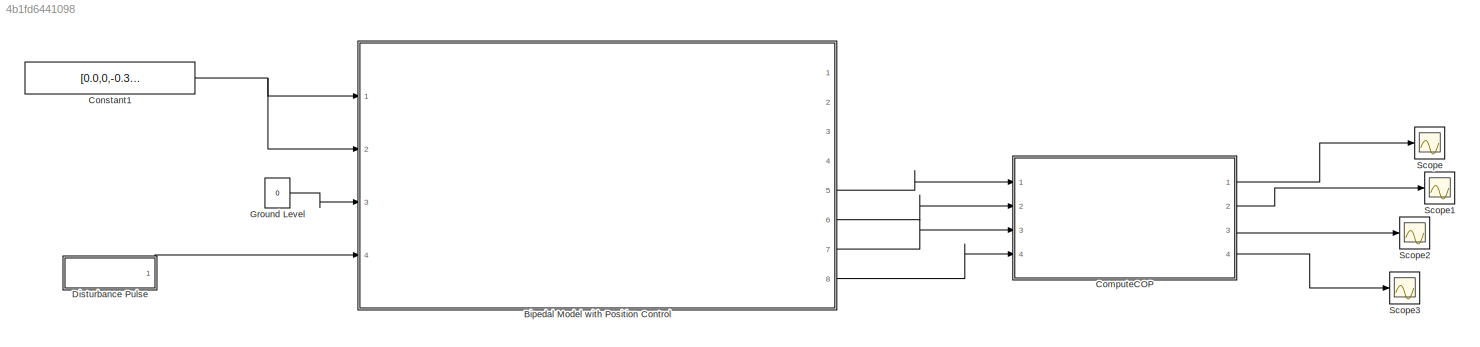
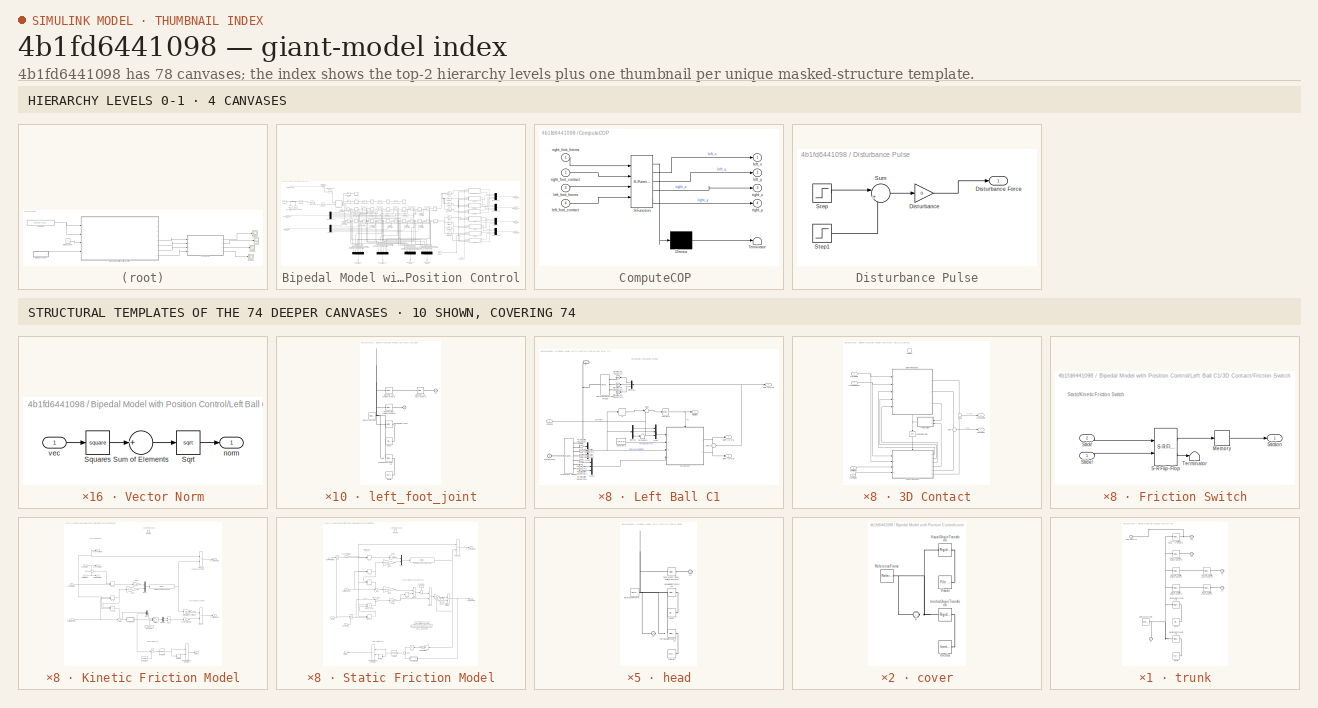
[diagram: thumbnail index - top-2 hierarchy levels (4 canvases) + 10 structural-template representatives of the remaining 74 canvases]
MODEL slx_4b1fd6441098
KIND model
CONFIG AbsTol = auto
CONFIG EnableMultiTasking = off
CONFIG FixedStep = auto
CONFIG MaxStep = auto
CONFIG MinStep = auto
CONFIG RelTol = 1e-3
CONFIG SampleTimeConstraint = Unconstrained
CONFIG SolverName = VariableStepAuto
CONFIG StartTime = 0.0
CONFIG StopTime = 4
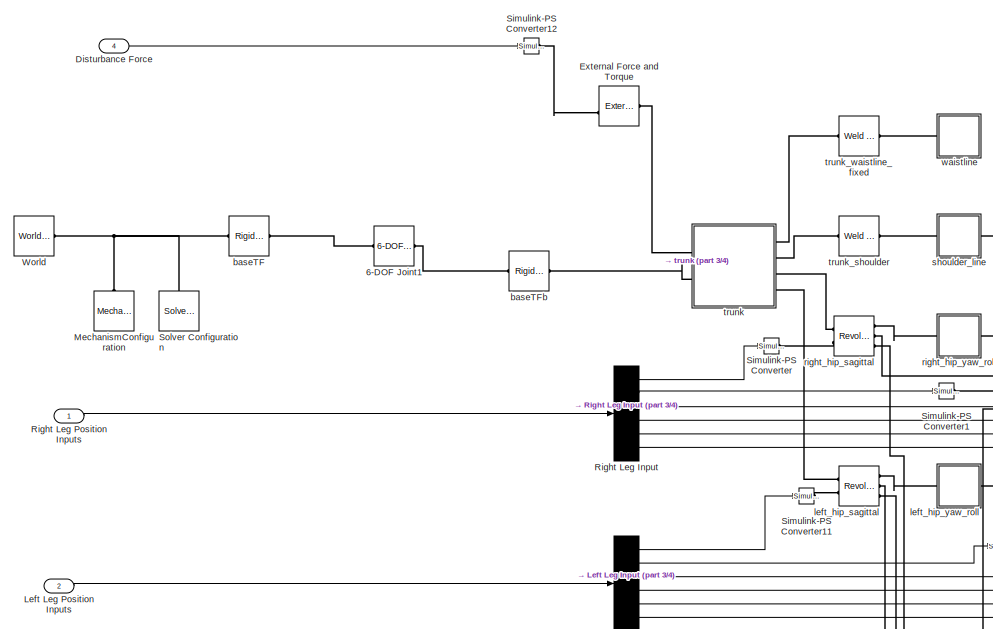
[diagram: Bipedal Model with Position Control - part 1/4, top left region]
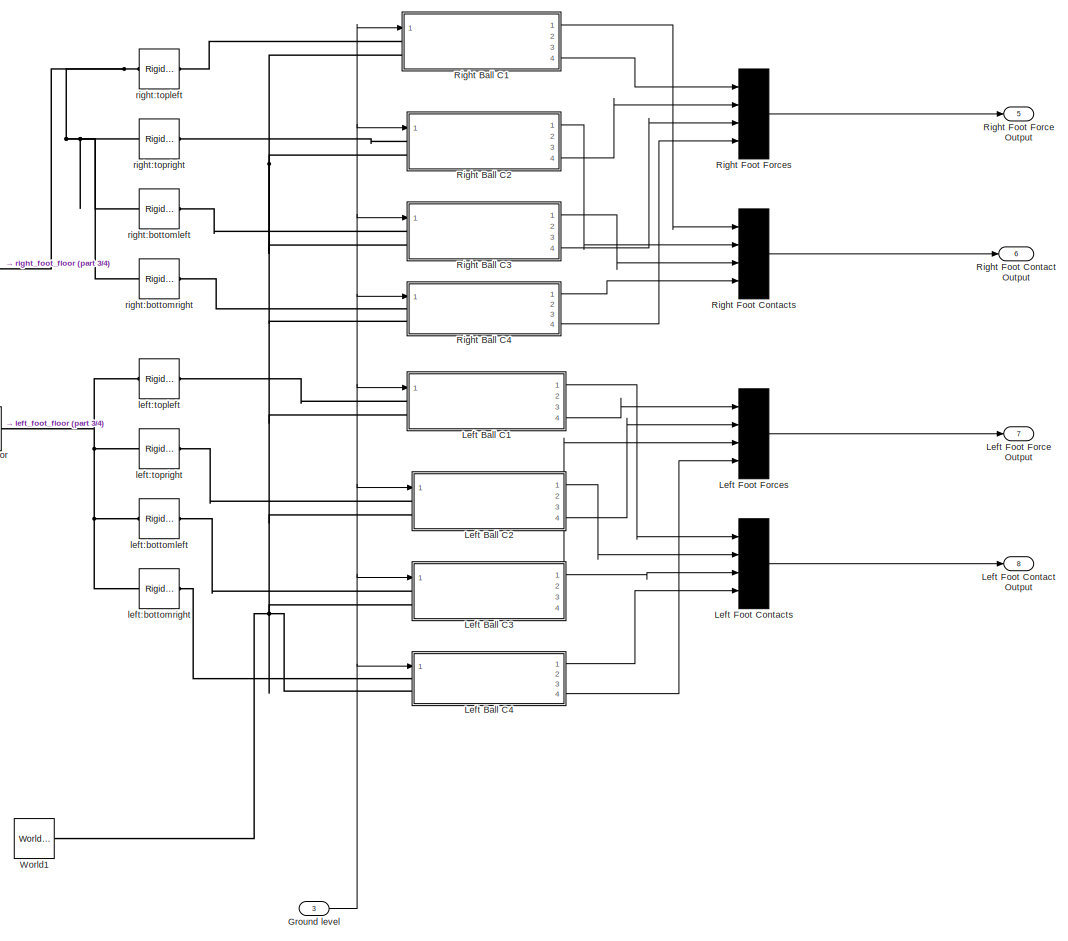
[diagram: Bipedal Model with Position Control - part 2/4, right side, full height]
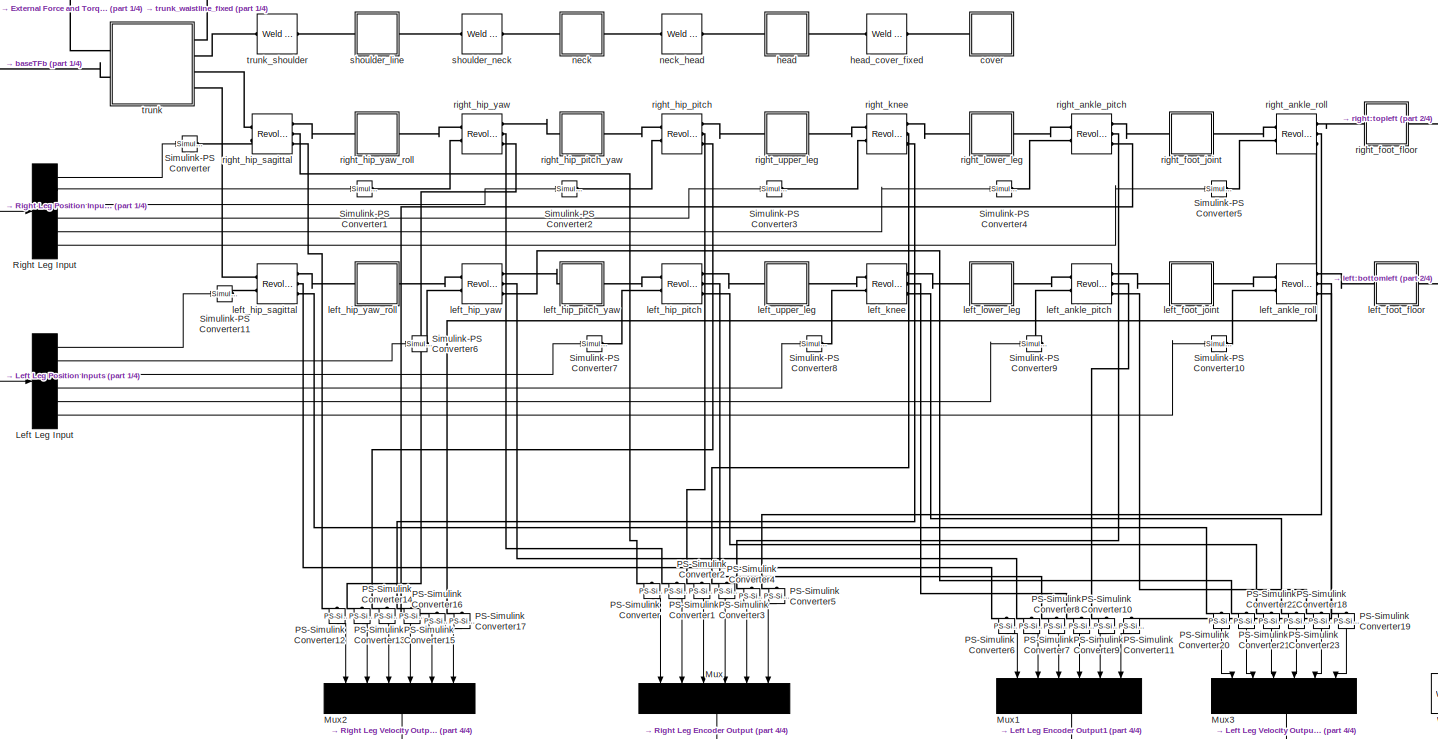
[diagram: Bipedal Model with Position Control - part 3/4, central region]
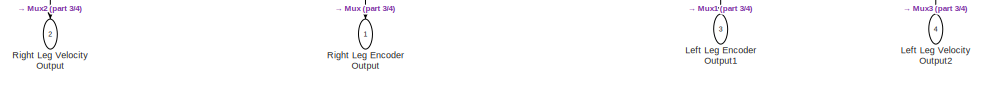
[diagram: Bipedal Model with Position Control - part 4/4, bottom center region]
BLOCK [SubSystem] Bipedal Model with Position Control
  Ports = [4, 8]
  RequestExecContextInheritance = off
BLOCK [Reference] Bipedal Model with Position Control/6-DOF Joint1  REF=sm_lib/Joints/6-DOF Joint
  Ports = [0, 0, 0, 0, 0, 1, 1]
  SourceBlock = sm_lib/Joints/6-DOF Joint
  SourceProductBaseCode = MS
  SourceType = 6-DOF Joint
BLOCK [Inport] Bipedal Model with Position Control/Disturbance Force
  Port = 4
BLOCK [Reference] Bipedal Model with Position Control/External Force and Torque  REF=sm_lib/Forces and
Torques/External Force
and Torque
  Ports = [0, 0, 0, 0, 0, 2, 1]
  SourceBlock = sm_lib/Forces and\nTorques/External Force\nand Torque
  SourceProductBaseCode = MS
  SourceType = External Force\nand Torque
BLOCK [Inport] Bipedal Model with Position Control/Ground level
  Port = 3
BLOCK [SubSystem] Bipedal Model with Position Control/Left Ball C1
  NameLocation = top
  Ports = [1, 4, 0, 0, 0, 2]
  RequestExecContextInheritance = off
BLOCK [SubSystem] Bipedal Model with Position Control/Left Ball C1/3D Contact
  Ports = [4, 2, 1]
  RequestExecContextInheritance = off
BLOCK [EnablePort] Bipedal Model with Position Control/Left Ball C1/3D Contact/Contact!
  Ports = []
  StatesWhenEnabling = reset
BLOCK [Outport] Bipedal Model with Position Control/Left Ball C1/3D Contact/FnVec [N N N]
  AttributesFormatString = when disabled: %<OutputWhenDisabled>
  InitialOutput = [0 0 0]
  OutputWhenDisabled = reset
BLOCK [SubSystem] Bipedal Model with Position Control/Left Ball C1/3D Contact/Friction Switch
  Ports = [2, 1]
  RequestExecContextInheritance = off
BLOCK [Memory] Bipedal Model with Position Control/Left Ball C1/3D Contact/Friction Switch/Memory
BLOCK [Reference] Bipedal Model with Position Control/Left Ball C1/3D Contact/Friction Switch/S-R Flip-Flop  REF=simulink_extras/Flip Flops/S-R
Flip-Flop
  Ports = [2, 2]
  SourceBlock = simulink_extras/Flip Flops/S-R\nFlip-Flop
  SourceProductBaseCode = SL
  SourceType = SRFlipFlop
BLOCK [Inport] Bipedal Model with Position Control/Left Ball C1/3D Contact/Friction Switch/Slide!
BLOCK [Inport] Bipedal Model with Position Control/Left Ball C1/3D Contact/Friction Switch/Stick!
  NameLocation = top
  Port = 2
BLOCK [Outport] Bipedal Model with Position Control/Left Ball C1/3D Contact/Friction Switch/Stiction
BLOCK [Terminator] Bipedal Model with Position Control/Left Ball C1/3D Contact/Friction Switch/Terminator
BLOCK [Outport] Bipedal Model with Position Control/Left Ball C1/3D Contact/FtVec [N N N]
  AttributesFormatString = when disabled: %<OutputWhenDisabled>
  InitialOutput = [0 0 0]
  OutputWhenDisabled = reset
  Port = 2
BLOCK [SubSystem] Bipedal Model with Position Control/Left Ball C1/3D Contact/Kinetic Friction Model
  Ports = [4, 6, 1]
  RequestExecContextInheritance = off
BLOCK [Constant] Bipedal Model with Position Control/Left Ball C1/3D Contact/Kinetic Friction Model/Constant
  Value = vLimit
BLOCK [Constant] Bipedal Model with Position Control/Left Ball C1/3D Contact/Kinetic Friction Model/Constant1
  NameLocation = right
  Value = [0 0 0 1]'
BLOCK [Demux] Bipedal Model with Position Control/Left Ball C1/3D Contact/Kinetic Friction Model/Demux
  Outputs = [3 1]
  Ports = [1, 2]
BLOCK [EnablePort] Bipedal Model with Position Control/Left Ball C1/3D Contact/Kinetic Friction Model/Enable
  Ports = []
  StatesWhenEnabling = reset
  ZeroCross = off
BLOCK [Outport] Bipedal Model with Position Control/Left Ball C1/3D Contact/Kinetic Friction Model/F_n Slide [N N N]
  AttributesFormatString = initial = '%<InitialOutput>'\nwhen disabled = '%<OutputWhenDisabled>'
  InitialOutput = [0 0 0]
  OutputWhenDisabled = reset
  Port = 6
BLOCK [Outport] Bipedal Model with Position Control/Left Ball C1/3D Contact/Kinetic Friction Model/F_t Slide [N N N]
  AttributesFormatString = initial = '%<InitialOutput>'\nwhen disabled = '%<OutputWhenDisabled>'
  InitialOutput = [0 0 0]
  OutputWhenDisabled = reset
  Port = 5
BLOCK [RelationalOperator] Bipedal Model with Position Control/Left Ball C1/3D Contact/Kinetic Friction Model/FixPt Relational Operator
  InputSameDT = off
  Operator = >
  OutDataTypeStr = boolean
  Ports = [2, 1]
  ZeroCross = off
BLOCK [Gain] Bipedal Model with Position Control/Left Ball C1/3D Contact/Kinetic Friction Model/Gain3
  Gain = k_gn
BLOCK [Gain] Bipedal Model with Position Control/Left Ball C1/3D Contact/Kinetic Friction Model/Gain4
  Gain = 1/v_gn_max
BLOCK [Memory] Bipedal Model with Position Control/Left Ball C1/3D Contact/Kinetic Friction Model/Memory
BLOCK [Mux] Bipedal Model with Position Control/Left Ball C1/3D Contact/Kinetic Friction Model/Mux1
  DisplayOption = bar
  Inputs = 2
  Ports = [2, 1]
BLOCK [Mux] Bipedal Model with Position Control/Left Ball C1/3D Contact/Kinetic Friction Model/Mux2
  DisplayOption = bar
  Inputs = 2
  Ports = [2, 1]
BLOCK [Reference] Bipedal Model with Position Control/Left Ball C1/3D Contact/Kinetic Friction Model/Negative  REF=simulink/Logic and Bit
Operations/Compare
To Zero
  Ports = [1, 1]
  SourceBlock = simulink/Logic and Bit\nOperations/Compare\nTo Zero
  SourceProductBaseCode = SL
  SourceType = Compare To Zero
BLOCK [Fcn] Bipedal Model with Position Control/Left Ball C1/3D Contact/Kinetic Friction Model/Normal Axis Ground Force
  Expr = u(1)  *  (1-u(2)) * (u(2)<1)
BLOCK [Product] Bipedal Model with Position Control/Left Ball C1/3D Contact/Kinetic Friction Model/Product
  Ports = [2, 1]
  RndMeth = Zero
BLOCK [Product] Bipedal Model with Position Control/Left Ball C1/3D Contact/Kinetic Friction Model/Product1
  Ports = [2, 1]
  RndMeth = Zero
BLOCK [Inport] Bipedal Model with Position Control/Left Ball C1/3D Contact/Kinetic Friction Model/RefPt [m m m]
  Port = 3
BLOCK [Outport] Bipedal Model with Position Control/Left Ball C1/3D Contact/Kinetic Friction Model/RefPtFP [m m m]
  AttributesFormatString = initial = '%<InitialOutput>'\nwhen disabled = '%<OutputWhenDisabled>'
  InitialOutput = [0 0 0]
BLOCK [Outport] Bipedal Model with Position Control/Left Ball C1/3D Contact/Kinetic Friction Model/Stiction!
  AttributesFormatString = initial = '%<InitialOutput>'\nwhen disabled = '%<OutputWhenDisabled>'
  InitialOutput = 0
  OutputWhenDisabled = reset
  Port = 4
BLOCK [Sum] Bipedal Model with Position Control/Left Ball C1/3D Contact/Kinetic Friction Model/Sum
  Inputs = |+-
  Ports = [2, 1]
BLOCK [Switch] Bipedal Model with Position Control/Left Ball C1/3D Contact/Kinetic Friction Model/Switch
  AttributesFormatString = >%<Threshold>?
  Criteria = u2 > Threshold
  InputSameDT = off
  SaturateOnIntegerOverflow = off
  Threshold = 0.9*vLimit
BLOCK [SubSystem] Bipedal Model with Position Control/Left Ball C1/3D Contact/Kinetic Friction Model/Vector Norm
  Ports = [1, 1]
  RequestExecContextInheritance = off
BLOCK [Sqrt] Bipedal Model with Position Control/Left Ball C1/3D Contact/Kinetic Friction Model/Vector Norm/Sqrt
  AlgorithmType = Newton-Raphson
  OutputSignalType = real
BLOCK [Math] Bipedal Model with Position Control/Left Ball C1/3D Contact/Kinetic Friction Model/Vector Norm/Squares
  Operator = square
  OutputSignalType = real
  Ports = [1, 1]
  SignedPower = on
BLOCK [Sum] Bipedal Model with Position Control/Left Ball C1/3D Contact/Kinetic Friction Model/Vector Norm/Sum of Elements
  Inputs = +
  Ports = [1, 1]
BLOCK [Outport] Bipedal Model with Position Control/Left Ball C1/3D Contact/Kinetic Friction Model/Vector Norm/norm
BLOCK [Inport] Bipedal Model with Position Control/Left Ball C1/3D Contact/Kinetic Friction Model/Vector Norm/vec
BLOCK [DotProduct] Bipedal Model with Position Control/Left Ball C1/3D Contact/Kinetic Friction Model/d_n
  OutDataTypeStr = Inherit: Inherit via internal rule
BLOCK [Outport] Bipedal Model with Position Control/Left Ball C1/3D Contact/Kinetic Friction Model/nVec FP [m m m]
  AttributesFormatString = initial = '%<InitialOutput>'\nwhen disabled = '%<OutputWhenDisabled>'
  InitialOutput = 0
  NameLocation = top
  Port = 3
BLOCK [Inport] Bipedal Model with Position Control/Left Ball C1/3D Contact/Kinetic Friction Model/nVec [m m m]
  Port = 4
BLOCK [Inport] Bipedal Model with Position Control/Left Ball C1/3D Contact/Kinetic Friction Model/pos [m m m]
  NameLocation = top
  Port = 2
BLOCK [Outport] Bipedal Model with Position Control/Left Ball C1/3D Contact/Kinetic Friction Model/posFP [m m m]
  AttributesFormatString = initial = '%<InitialOutput>'\nwhen disabled = '%<OutputWhenDisabled>'
  InitialOutput = [0 0 0]
  NameLocation = top
  Port = 2
BLOCK [Sum] Bipedal Model with Position Control/Left Ball C1/3D Contact/Kinetic Friction Model/qnVec
  Inputs = -+
  Ports = [2, 1]
BLOCK [Gain] Bipedal Model with Position Control/Left Ball C1/3D Contact/Kinetic Friction Model/reverse direction
  Gain = -1
BLOCK [Gain] Bipedal Model with Position Control/Left Ball C1/3D Contact/Kinetic Friction Model/sliding friction coefficient
  Gain = mu_slide
  NameLocation = top
BLOCK [Product] Bipedal Model with Position Control/Left Ball C1/3D Contact/Kinetic Friction Model/tVec
  Inputs = */
  Ports = [2, 1]
  RndMeth = Zero
BLOCK [DotProduct] Bipedal Model with Position Control/Left Ball C1/3D Contact/Kinetic Friction Model/v_n
  OutDataTypeStr = Inherit: Inherit via internal rule
BLOCK [Product] Bipedal Model with Position Control/Left Ball C1/3D Contact/Kinetic Friction Model/v_nVec
  Ports = [2, 1]
  RndMeth = Zero
BLOCK [Sum] Bipedal Model with Position Control/Left Ball C1/3D Contact/Kinetic Friction Model/v_tVec
  Inputs = -+|
  Ports = [2, 1]
BLOCK [Inport] Bipedal Model with Position Control/Left Ball C1/3D Contact/Kinetic Friction Model/vel [m//s m//s m//s]
BLOCK [Logic] Bipedal Model with Position Control/Left Ball C1/3D Contact/Logical Operator
  AllPortsSameDT = off
  NameLocation = left
  Operator = NOT
  OutDataTypeStr = boolean
  Ports = [1, 1]
BLOCK [Inport] Bipedal Model with Position Control/Left Ball C1/3D Contact/RefPt [m m m]
  NameLocation = top
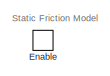
[diagram: Bipedal Model with Position Control/Left Ball C1/3D Contact/Static Friction Model - part 1/2, top center region]
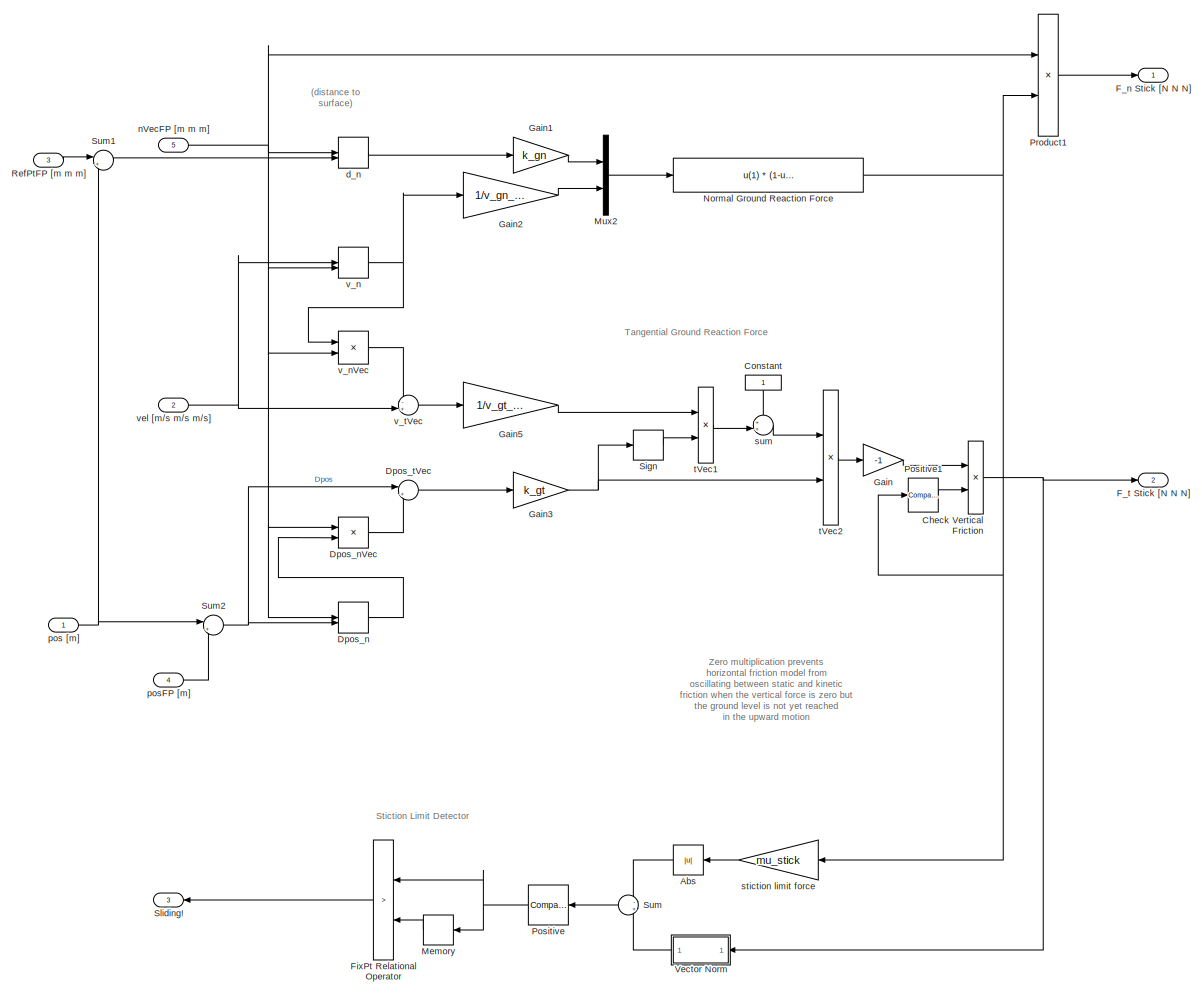
[diagram: Bipedal Model with Position Control/Left Ball C1/3D Contact/Static Friction Model - part 2/2, most of the canvas]
BLOCK [SubSystem] Bipedal Model with Position Control/Left Ball C1/3D Contact/Static Friction Model
  NameLocation = top
  Ports = [5, 3, 1]
  RequestExecContextInheritance = off
BLOCK [Abs] Bipedal Model with Position Control/Left Ball C1/3D Contact/Static Friction Model/Abs
  NameLocation = top
  SaturateOnIntegerOverflow = off
BLOCK [Product] Bipedal Model with Position Control/Left Ball C1/3D Contact/Static Friction Model/Check Vertical Friction
  Ports = [2, 1]
  RndMeth = Zero
BLOCK [Constant] Bipedal Model with Position Control/Left Ball C1/3D Contact/Static Friction Model/Constant
  NameLocation = left
BLOCK [DotProduct] Bipedal Model with Position Control/Left Ball C1/3D Contact/Static Friction Model/Dpos_n
  OutDataTypeStr = Inherit: Inherit via internal rule
BLOCK [Product] Bipedal Model with Position Control/Left Ball C1/3D Contact/Static Friction Model/Dpos_nVec
  Ports = [2, 1]
  RndMeth = Zero
BLOCK [Sum] Bipedal Model with Position Control/Left Ball C1/3D Contact/Static Friction Model/Dpos_tVec
  Inputs = |+-
  NameLocation = top
  Ports = [2, 1]
BLOCK [EnablePort] Bipedal Model with Position Control/Left Ball C1/3D Contact/Static Friction Model/Enable
  Ports = []
  StatesWhenEnabling = reset
  ZeroCross = off
BLOCK [Outport] Bipedal Model with Position Control/Left Ball C1/3D Contact/Static Friction Model/F_n Stick [N N N]
  AttributesFormatString = initial = '%<InitialOutput>'\nwhen disabled = '%<OutputWhenDisabled>'
  InitialOutput = [0 0 0]
  OutputWhenDisabled = reset
BLOCK [Outport] Bipedal Model with Position Control/Left Ball C1/3D Contact/Static Friction Model/F_t Stick [N N N]
  AttributesFormatString = when disabled: %<OutputWhenDisabled>\ninitial: %<InitialOutput>
  InitialOutput = [0 0 0]
  OutputWhenDisabled = reset
  Port = 2
BLOCK [RelationalOperator] Bipedal Model with Position Control/Left Ball C1/3D Contact/Static Friction Model/FixPt Relational Operator
  InputSameDT = off
  Operator = >
  OutDataTypeStr = boolean
  Ports = [2, 1]
  ZeroCross = off
BLOCK [Gain] Bipedal Model with Position Control/Left Ball C1/3D Contact/Static Friction Model/Gain
  Gain = -1
BLOCK [Gain] Bipedal Model with Position Control/Left Ball C1/3D Contact/Static Friction Model/Gain1
  Gain = k_gn
BLOCK [Gain] Bipedal Model with Position Control/Left Ball C1/3D Contact/Static Friction Model/Gain2
  Gain = 1/v_gn_max
BLOCK [Gain] Bipedal Model with Position Control/Left Ball C1/3D Contact/Static Friction Model/Gain3
  Gain = k_gt
BLOCK [Gain] Bipedal Model with Position Control/Left Ball C1/3D Contact/Static Friction Model/Gain5
  Gain = 1/v_gt_max
BLOCK [Memory] Bipedal Model with Position Control/Left Ball C1/3D Contact/Static Friction Model/Memory
  NameLocation = top
BLOCK [Mux] Bipedal Model with Position Control/Left Ball C1/3D Contact/Static Friction Model/Mux2
  DisplayOption = bar
  Inputs = 2
  Ports = [2, 1]
BLOCK [Fcn] Bipedal Model with Position Control/Left Ball C1/3D Contact/Static Friction Model/Normal Ground Reaction Force
  Expr = u(1)  *  (1-u(2)) * (u(2)<1)
BLOCK [Reference] Bipedal Model with Position Control/Left Ball C1/3D Contact/Static Friction Model/Positive  REF=simulink/Logic and Bit
Operations/Compare
To Zero
  Ports = [1, 1]
  SourceBlock = simulink/Logic and Bit\nOperations/Compare\nTo Zero
  SourceProductBaseCode = SL
  SourceType = Compare To Zero
BLOCK [Reference] Bipedal Model with Position Control/Left Ball C1/3D Contact/Static Friction Model/Positive1  REF=simulink/Logic and Bit
Operations/Compare
To Zero
  NameLocation = top
  Ports = [1, 1]
  SourceBlock = simulink/Logic and Bit\nOperations/Compare\nTo Zero
  SourceProductBaseCode = SL
  SourceType = Compare To Zero
BLOCK [Product] Bipedal Model with Position Control/Left Ball C1/3D Contact/Static Friction Model/Product1
  Ports = [2, 1]
  RndMeth = Zero
BLOCK [Inport] Bipedal Model with Position Control/Left Ball C1/3D Contact/Static Friction Model/RefPtFP [m m m]
  Port = 3
BLOCK [Signum] Bipedal Model with Position Control/Left Ball C1/3D Contact/Static Friction Model/Sign
  NameLocation = top
  ZeroCross = off
BLOCK [Outport] Bipedal Model with Position Control/Left Ball C1/3D Contact/Static Friction Model/Sliding!
  AttributesFormatString = when disabled: %<OutputWhenDisabled>\ninitial: %<InitialOutput>
  InitialOutput = 0
  OutputWhenDisabled = reset
  Port = 3
BLOCK [Sum] Bipedal Model with Position Control/Left Ball C1/3D Contact/Static Friction Model/Sum
  Inputs = -+
  NameLocation = top
  Ports = [2, 1]
BLOCK [Sum] Bipedal Model with Position Control/Left Ball C1/3D Contact/Static Friction Model/Sum1
  Inputs = |+-
  Ports = [2, 1]
BLOCK [Sum] Bipedal Model with Position Control/Left Ball C1/3D Contact/Static Friction Model/Sum2
  Inputs = |+-
  Ports = [2, 1]
BLOCK [SubSystem] Bipedal Model with Position Control/Left Ball C1/3D Contact/Static Friction Model/Vector Norm
  Ports = [1, 1]
  RequestExecContextInheritance = off
BLOCK [Sqrt] Bipedal Model with Position Control/Left Ball C1/3D Contact/Static Friction Model/Vector Norm/Sqrt
  AlgorithmType = Newton-Raphson
  OutputSignalType = real
BLOCK [Math] Bipedal Model with Position Control/Left Ball C1/3D Contact/Static Friction Model/Vector Norm/Squares
  Operator = square
  OutputSignalType = real
  Ports = [1, 1]
  SignedPower = on
BLOCK [Sum] Bipedal Model with Position Control/Left Ball C1/3D Contact/Static Friction Model/Vector Norm/Sum of Elements
  Inputs = +
  Ports = [1, 1]
BLOCK [Outport] Bipedal Model with Position Control/Left Ball C1/3D Contact/Static Friction Model/Vector Norm/norm
BLOCK [Inport] Bipedal Model with Position Control/Left Ball C1/3D Contact/Static Friction Model/Vector Norm/vec
BLOCK [DotProduct] Bipedal Model with Position Control/Left Ball C1/3D Contact/Static Friction Model/d_n
  OutDataTypeStr = Inherit: Inherit via internal rule
BLOCK [Inport] Bipedal Model with Position Control/Left Ball C1/3D Contact/Static Friction Model/nVecFP [m m m]
  NameLocation = top
  Port = 5
BLOCK [Inport] Bipedal Model with Position Control/Left Ball C1/3D Contact/Static Friction Model/pos [m]
  NameLocation = top
BLOCK [Inport] Bipedal Model with Position Control/Left Ball C1/3D Contact/Static Friction Model/posFP [m]
  Port = 4
BLOCK [Gain] Bipedal Model with Position Control/Left Ball C1/3D Contact/Static Friction Model/stiction limit force
  Gain = mu_stick
  NameLocation = top
BLOCK [Sum] Bipedal Model with Position Control/Left Ball C1/3D Contact/Static Friction Model/sum
  Inputs = ++|
  Ports = [2, 1]
BLOCK [Product] Bipedal Model with Position Control/Left Ball C1/3D Contact/Static Friction Model/tVec1
  Inputs = **
  Ports = [2, 1]
  RndMeth = Zero
BLOCK [Product] Bipedal Model with Position Control/Left Ball C1/3D Contact/Static Friction Model/tVec2
  Inputs = **
  Ports = [2, 1]
  RndMeth = Zero
BLOCK [DotProduct] Bipedal Model with Position Control/Left Ball C1/3D Contact/Static Friction Model/v_n
  OutDataTypeStr = Inherit: Inherit via internal rule
BLOCK [Product] Bipedal Model with Position Control/Left Ball C1/3D Contact/Static Friction Model/v_nVec
  Ports = [2, 1]
  RndMeth = Zero
BLOCK [Sum] Bipedal Model with Position Control/Left Ball C1/3D Contact/Static Friction Model/v_tVec
  Inputs = -+|
  Ports = [2, 1]
BLOCK [Inport] Bipedal Model with Position Control/Left Ball C1/3D Contact/Static Friction Model/vel [m//s m//s m//s]
  Port = 2
BLOCK [Sum] Bipedal Model with Position Control/Left Ball C1/3D Contact/Sum
  Ports = [2, 1]
BLOCK [Sum] Bipedal Model with Position Control/Left Ball C1/3D Contact/Sum1
  Ports = [2, 1]
BLOCK [Inport] Bipedal Model with Position Control/Left Ball C1/3D Contact/nVec [m m m]
  Port = 2
BLOCK [Inport] Bipedal Model with Position Control/Left Ball C1/3D Contact/pVec [m m m]
  NameLocation = top
  Port = 3
BLOCK [Inport] Bipedal Model with Position Control/Left Ball C1/3D Contact/vVec [m//s m//s m//s]
  Port = 4
BLOCK [Constant] Bipedal Model with Position Control/Left Ball C1/Constant1
  Value = [0 0 1]
BLOCK [Demux] Bipedal Model with Position Control/Left Ball C1/Demux
  Outputs = 3
  Ports = [1, 3]
BLOCK [Demux] Bipedal Model with Position Control/Left Ball C1/Demux1
  NameLocation = top
  Outputs = 3
  Ports = [1, 3]
BLOCK [Reference] Bipedal Model with Position Control/Left Ball C1/External Force and Torque  REF=sm_lib/Forces and
Torques/External Force
and Torque
  Ports = [0, 0, 0, 0, 0, 3, 1]
  SourceBlock = sm_lib/Forces and\nTorques/External Force\nand Torque
  SourceProductBaseCode = MS
  SourceType = External Force\nand Torque
BLOCK [PMIOPort] Bipedal Model with Position Control/Left Ball C1/F
  NameLocation = right
  Side = Left
BLOCK [Outport] Bipedal Model with Position Control/Left Ball C1/GRF [N N N]
  NameLocation = top
  Port = 2
BLOCK [Outport] Bipedal Model with Position Control/Left Ball C1/GRFn [N N N]
  NameLocation = top
  Port = 4
BLOCK [Outport] Bipedal Model with Position Control/Left Ball C1/GRFt [N N N]
  Port = 3
BLOCK [Inport] Bipedal Model with Position Control/Left Ball C1/Ground
BLOCK [Mux] Bipedal Model with Position Control/Left Ball C1/Mux
  DisplayOption = bar
  Inputs = 3
  Ports = [3, 1]
BLOCK [Mux] Bipedal Model with Position Control/Left Ball C1/Mux1
  DisplayOption = bar
  Inputs = 3
  Ports = [3, 1]
BLOCK [Mux] Bipedal Model with Position Control/Left Ball C1/Mux2
  DisplayOption = bar
  Inputs = 3
  Ports = [3, 1]
BLOCK [Reference] Bipedal Model with Position Control/Left Ball C1/PS-Simulink Converter  REF=nesl_utility/PS-Simulink
Converter
  Ports = [0, 1, 0, 0, 0, 1]
  SourceBlock = nesl_utility/PS-Simulink\nConverter
  SourceProductBaseCode = PW,SS
  SourceType = PS-Simulink\nConverter
BLOCK [Reference] Bipedal Model with Position Control/Left Ball C1/PS-Simulink Converter1  REF=nesl_utility/PS-Simulink
Converter
  Ports = [0, 1, 0, 0, 0, 1]
  SourceBlock = nesl_utility/PS-Simulink\nConverter
  SourceProductBaseCode = PW,SS
  SourceType = PS-Simulink\nConverter
BLOCK [Reference] Bipedal Model with Position Control/Left Ball C1/PS-Simulink Converter2  REF=nesl_utility/PS-Simulink
Converter
  Ports = [0, 1, 0, 0, 0, 1]
  SourceBlock = nesl_utility/PS-Simulink\nConverter
  SourceProductBaseCode = PW,SS
  SourceType = PS-Simulink\nConverter
BLOCK [Reference] Bipedal Model with Position Control/Left Ball C1/PS-Simulink Converter3  REF=nesl_utility/PS-Simulink
Converter
  Ports = [0, 1, 0, 0, 0, 1]
  SourceBlock = nesl_utility/PS-Simulink\nConverter
  SourceProductBaseCode = PW,SS
  SourceType = PS-Simulink\nConverter
BLOCK [Reference] Bipedal Model with Position Control/Left Ball C1/PS-Simulink Converter4  REF=nesl_utility/PS-Simulink
Converter
  Ports = [0, 1, 0, 0, 0, 1]
  SourceBlock = nesl_utility/PS-Simulink\nConverter
  SourceProductBaseCode = PW,SS
  SourceType = PS-Simulink\nConverter
BLOCK [Reference] Bipedal Model with Position Control/Left Ball C1/PS-Simulink Converter5  REF=nesl_utility/PS-Simulink
Converter
  Ports = [0, 1, 0, 0, 0, 1]
  SourceBlock = nesl_utility/PS-Simulink\nConverter
  SourceProductBaseCode = PW,SS
  SourceType = PS-Simulink\nConverter
BLOCK [Outport] Bipedal Model with Position Control/Left Ball C1/RBallCnt
  NameLocation = top
BLOCK [Reference] Bipedal Model with Position Control/Left Ball C1/Simulink-PS Converter  REF=nesl_utility/Simulink-PS
Converter
  NameLocation = top
  Ports = [1, 0, 0, 0, 0, 0, 1]
  SourceBlock = nesl_utility/Simulink-PS\nConverter
  SourceProductBaseCode = PW,SS
  SourceType = Simulink-PS\nConverter
BLOCK [Reference] Bipedal Model with Position Control/Left Ball C1/Simulink-PS Converter1  REF=nesl_utility/Simulink-PS
Converter
  NameLocation = top
  Ports = [1, 0, 0, 0, 0, 0, 1]
  SourceBlock = nesl_utility/Simulink-PS\nConverter
  SourceProductBaseCode = PW,SS
  SourceType = Simulink-PS\nConverter
BLOCK [Reference] Bipedal Model with Position Control/Left Ball C1/Simulink-PS Converter2  REF=nesl_utility/Simulink-PS
Converter
  NameLocation = top
  Ports = [1, 0, 0, 0, 0, 0, 1]
  SourceBlock = nesl_utility/Simulink-PS\nConverter
  SourceProductBaseCode = PW,SS
  SourceType = Simulink-PS\nConverter
BLOCK [Sum] Bipedal Model with Position Control/Left Ball C1/Sum
  Inputs = |+-
  Ports = [2, 1]
BLOCK [Sum] Bipedal Model with Position Control/Left Ball C1/Sum1
  Ports = [2, 1]
BLOCK [Terminator] Bipedal Model with Position Control/Left Ball C1/Terminator
BLOCK [Reference] Bipedal Model with Position Control/Left Ball C1/Transform Sensor  REF=sm_lib/Frames and
Transforms/Transform
Sensor
  Ports = [0, 0, 0, 0, 0, 1, 7]
  SourceBlock = sm_lib/Frames and\nTransforms/Transform\nSensor
  SourceProductBaseCode = MS
  SourceType = Transform\nSensor
BLOCK [PMIOPort] Bipedal Model with Position Control/Left Ball C1/WorldFrame
  NameLocation = top
  Port = 2
  Side = Left
BLOCK [Reference] Bipedal Model with Position Control/Left Ball C1/contact?  REF=simulink/Logic and Bit
Operations/Compare
To Zero
  NameLocation = top
  Ports = [1, 1]
  SourceBlock = simulink/Logic and Bit\nOperations/Compare\nTo Zero
  SourceProductBaseCode = SL
  SourceType = Compare To Zero
BLOCK [Selector] Bipedal Model with Position Control/Left Ball C1/z
  IndexOptions = Index vector (dialog)
  Indices = 3
  InputPortWidth = 3
  NameLocation = top
  OutputSizes = 1
  Ports = [1, 1]
BLOCK [SubSystem] Bipedal Model with Position Control/Left Ball C2
  NameLocation = top
  Ports = [1, 4, 0, 0, 0, 2]
  RequestExecContextInheritance = off
BLOCK [SubSystem] Bipedal Model with Position Control/Left Ball C2/3D Contact
  Ports = [4, 2, 1]
  RequestExecContextInheritance = off
BLOCK [EnablePort] Bipedal Model with Position Control/Left Ball C2/3D Contact/Contact!
  Ports = []
  StatesWhenEnabling = reset
BLOCK [Outport] Bipedal Model with Position Control/Left Ball C2/3D Contact/FnVec [N N N]
  AttributesFormatString = when disabled: %<OutputWhenDisabled>
  InitialOutput = [0 0 0]
  OutputWhenDisabled = reset
BLOCK [SubSystem] Bipedal Model with Position Control/Left Ball C2/3D Contact/Friction Switch
  Ports = [2, 1]
  RequestExecContextInheritance = off
BLOCK [Memory] Bipedal Model with Position Control/Left Ball C2/3D Contact/Friction Switch/Memory
BLOCK [Reference] Bipedal Model with Position Control/Left Ball C2/3D Contact/Friction Switch/S-R Flip-Flop  REF=simulink_extras/Flip Flops/S-R
Flip-Flop
  Ports = [2, 2]
  SourceBlock = simulink_extras/Flip Flops/S-R\nFlip-Flop
  SourceProductBaseCode = SL
  SourceType = SRFlipFlop
BLOCK [Inport] Bipedal Model with Position Control/Left Ball C2/3D Contact/Friction Switch/Slide!
BLOCK [Inport] Bipedal Model with Position Control/Left Ball C2/3D Contact/Friction Switch/Stick!
  NameLocation = top
  Port = 2
BLOCK [Outport] Bipedal Model with Position Control/Left Ball C2/3D Contact/Friction Switch/Stiction
BLOCK [Terminator] Bipedal Model with Position Control/Left Ball C2/3D Contact/Friction Switch/Terminator
BLOCK [Outport] Bipedal Model with Position Control/Left Ball C2/3D Contact/FtVec [N N N]
  AttributesFormatString = when disabled: %<OutputWhenDisabled>
  InitialOutput = [0 0 0]
  OutputWhenDisabled = reset
  Port = 2
BLOCK [SubSystem] Bipedal Model with Position Control/Left Ball C2/3D Contact/Kinetic Friction Model
  Ports = [4, 6, 1]
  RequestExecContextInheritance = off
BLOCK [Constant] Bipedal Model with Position Control/Left Ball C2/3D Contact/Kinetic Friction Model/Constant
  Value = vLimit
BLOCK [Constant] Bipedal Model with Position Control/Left Ball C2/3D Contact/Kinetic Friction Model/Constant1
  NameLocation = right
  Value = [0 0 0 1]'
BLOCK [Demux] Bipedal Model with Position Control/Left Ball C2/3D Contact/Kinetic Friction Model/Demux
  Outputs = [3 1]
  Ports = [1, 2]
BLOCK [EnablePort] Bipedal Model with Position Control/Left Ball C2/3D Contact/Kinetic Friction Model/Enable
  Ports = []
  StatesWhenEnabling = reset
  ZeroCross = off
BLOCK [Outport] Bipedal Model with Position Control/Left Ball C2/3D Contact/Kinetic Friction Model/F_n Slide [N N N]
  AttributesFormatString = initial = '%<InitialOutput>'\nwhen disabled = '%<OutputWhenDisabled>'
  InitialOutput = [0 0 0]
  OutputWhenDisabled = reset
  Port = 6
BLOCK [Outport] Bipedal Model with Position Control/Left Ball C2/3D Contact/Kinetic Friction Model/F_t Slide [N N N]
  AttributesFormatString = initial = '%<InitialOutput>'\nwhen disabled = '%<OutputWhenDisabled>'
  InitialOutput = [0 0 0]
  OutputWhenDisabled = reset
  Port = 5
BLOCK [RelationalOperator] Bipedal Model with Position Control/Left Ball C2/3D Contact/Kinetic Friction Model/FixPt Relational Operator
  InputSameDT = off
  Operator = >
  OutDataTypeStr = boolean
  Ports = [2, 1]
  ZeroCross = off
BLOCK [Gain] Bipedal Model with Position Control/Left Ball C2/3D Contact/Kinetic Friction Model/Gain3
  Gain = k_gn
BLOCK [Gain] Bipedal Model with Position Control/Left Ball C2/3D Contact/Kinetic Friction Model/Gain4
  Gain = 1/v_gn_max
BLOCK [Memory] Bipedal Model with Position Control/Left Ball C2/3D Contact/Kinetic Friction Model/Memory
BLOCK [Mux] Bipedal Model with Position Control/Left Ball C2/3D Contact/Kinetic Friction Model/Mux1
  DisplayOption = bar
  Inputs = 2
  Ports = [2, 1]
BLOCK [Mux] Bipedal Model with Position Control/Left Ball C2/3D Contact/Kinetic Friction Model/Mux2
  DisplayOption = bar
  Inputs = 2
  Ports = [2, 1]
BLOCK [Reference] Bipedal Model with Position Control/Left Ball C2/3D Contact/Kinetic Friction Model/Negative  REF=simulink/Logic and Bit
Operations/Compare
To Zero
  Ports = [1, 1]
  SourceBlock = simulink/Logic and Bit\nOperations/Compare\nTo Zero
  SourceProductBaseCode = SL
  SourceType = Compare To Zero
BLOCK [Fcn] Bipedal Model with Position Control/Left Ball C2/3D Contact/Kinetic Friction Model/Normal Axis Ground Force
  Expr = u(1)  *  (1-u(2)) * (u(2)<1)
BLOCK [Product] Bipedal Model with Position Control/Left Ball C2/3D Contact/Kinetic Friction Model/Product
  Ports = [2, 1]
  RndMeth = Zero
BLOCK [Product] Bipedal Model with Position Control/Left Ball C2/3D Contact/Kinetic Friction Model/Product1
  Ports = [2, 1]
  RndMeth = Zero
BLOCK [Inport] Bipedal Model with Position Control/Left Ball C2/3D Contact/Kinetic Friction Model/RefPt [m m m]
  Port = 3
BLOCK [Outport] Bipedal Model with Position Control/Left Ball C2/3D Contact/Kinetic Friction Model/RefPtFP [m m m]
  AttributesFormatString = initial = '%<InitialOutput>'\nwhen disabled = '%<OutputWhenDisabled>'
  InitialOutput = [0 0 0]
BLOCK [Outport] Bipedal Model with Position Control/Left Ball C2/3D Contact/Kinetic Friction Model/Stiction!
  AttributesFormatString = initial = '%<InitialOutput>'\nwhen disabled = '%<OutputWhenDisabled>'
  InitialOutput = 0
  OutputWhenDisabled = reset
  Port = 4
BLOCK [Sum] Bipedal Model with Position Control/Left Ball C2/3D Contact/Kinetic Friction Model/Sum
  Inputs = |+-
  Ports = [2, 1]
BLOCK [Switch] Bipedal Model with Position Control/Left Ball C2/3D Contact/Kinetic Friction Model/Switch
  AttributesFormatString = >%<Threshold>?
  Criteria = u2 > Threshold
  InputSameDT = off
  SaturateOnIntegerOverflow = off
  Threshold = 0.9*vLimit
BLOCK [SubSystem] Bipedal Model with Position Control/Left Ball C2/3D Contact/Kinetic Friction Model/Vector Norm
  Ports = [1, 1]
  RequestExecContextInheritance = off
BLOCK [Sqrt] Bipedal Model with Position Control/Left Ball C2/3D Contact/Kinetic Friction Model/Vector Norm/Sqrt
  AlgorithmType = Newton-Raphson
  OutputSignalType = real
BLOCK [Math] Bipedal Model with Position Control/Left Ball C2/3D Contact/Kinetic Friction Model/Vector Norm/Squares
  Operator = square
  OutputSignalType = real
  Ports = [1, 1]
  SignedPower = on
BLOCK [Sum] Bipedal Model with Position Control/Left Ball C2/3D Contact/Kinetic Friction Model/Vector Norm/Sum of Elements
  Inputs = +
  Ports = [1, 1]
BLOCK [Outport] Bipedal Model with Position Control/Left Ball C2/3D Contact/Kinetic Friction Model/Vector Norm/norm
BLOCK [Inport] Bipedal Model with Position Control/Left Ball C2/3D Contact/Kinetic Friction Model/Vector Norm/vec
BLOCK [DotProduct] Bipedal Model with Position Control/Left Ball C2/3D Contact/Kinetic Friction Model/d_n
  OutDataTypeStr = Inherit: Inherit via internal rule
BLOCK [Outport] Bipedal Model with Position Control/Left Ball C2/3D Contact/Kinetic Friction Model/nVec FP [m m m]
  AttributesFormatString = initial = '%<InitialOutput>'\nwhen disabled = '%<OutputWhenDisabled>'
  InitialOutput = 0
  NameLocation = top
  Port = 3
BLOCK [Inport] Bipedal Model with Position Control/Left Ball C2/3D Contact/Kinetic Friction Model/nVec [m m m]
  Port = 4
BLOCK [Inport] Bipedal Model with Position Control/Left Ball C2/3D Contact/Kinetic Friction Model/pos [m m m]
  NameLocation = top
  Port = 2
BLOCK [Outport] Bipedal Model with Position Control/Left Ball C2/3D Contact/Kinetic Friction Model/posFP [m m m]
  AttributesFormatString = initial = '%<InitialOutput>'\nwhen disabled = '%<OutputWhenDisabled>'
  InitialOutput = [0 0 0]
  NameLocation = top
  Port = 2
BLOCK [Sum] Bipedal Model with Position Control/Left Ball C2/3D Contact/Kinetic Friction Model/qnVec
  Inputs = -+
  Ports = [2, 1]
BLOCK [Gain] Bipedal Model with Position Control/Left Ball C2/3D Contact/Kinetic Friction Model/reverse direction
  Gain = -1
BLOCK [Gain] Bipedal Model with Position Control/Left Ball C2/3D Contact/Kinetic Friction Model/sliding friction coefficient
  Gain = mu_slide
  NameLocation = top
BLOCK [Product] Bipedal Model with Position Control/Left Ball C2/3D Contact/Kinetic Friction Model/tVec
  Inputs = */
  Ports = [2, 1]
  RndMeth = Zero
BLOCK [DotProduct] Bipedal Model with Position Control/Left Ball C2/3D Contact/Kinetic Friction Model/v_n
  OutDataTypeStr = Inherit: Inherit via internal rule
BLOCK [Product] Bipedal Model with Position Control/Left Ball C2/3D Contact/Kinetic Friction Model/v_nVec
  Ports = [2, 1]
  RndMeth = Zero
BLOCK [Sum] Bipedal Model with Position Control/Left Ball C2/3D Contact/Kinetic Friction Model/v_tVec
  Inputs = -+|
  Ports = [2, 1]
BLOCK [Inport] Bipedal Model with Position Control/Left Ball C2/3D Contact/Kinetic Friction Model/vel [m//s m//s m//s]
BLOCK [Logic] Bipedal Model with Position Control/Left Ball C2/3D Contact/Logical Operator
  AllPortsSameDT = off
  NameLocation = left
  Operator = NOT
  OutDataTypeStr = boolean
  Ports = [1, 1]
BLOCK [Inport] Bipedal Model with Position Control/Left Ball C2/3D Contact/RefPt [m m m]
  NameLocation = top
BLOCK [SubSystem] Bipedal Model with Position Control/Left Ball C2/3D Contact/Static Friction Model
  NameLocation = top
  Ports = [5, 3, 1]
  RequestExecContextInheritance = off
BLOCK [Abs] Bipedal Model with Position Control/Left Ball C2/3D Contact/Static Friction Model/Abs
  NameLocation = top
  SaturateOnIntegerOverflow = off
BLOCK [Product] Bipedal Model with Position Control/Left Ball C2/3D Contact/Static Friction Model/Check Vertical Friction
  Ports = [2, 1]
  RndMeth = Zero
BLOCK [Constant] Bipedal Model with Position Control/Left Ball C2/3D Contact/Static Friction Model/Constant
  NameLocation = left
BLOCK [DotProduct] Bipedal Model with Position Control/Left Ball C2/3D Contact/Static Friction Model/Dpos_n
  OutDataTypeStr = Inherit: Inherit via internal rule
BLOCK [Product] Bipedal Model with Position Control/Left Ball C2/3D Contact/Static Friction Model/Dpos_nVec
  Ports = [2, 1]
  RndMeth = Zero
BLOCK [Sum] Bipedal Model with Position Control/Left Ball C2/3D Contact/Static Friction Model/Dpos_tVec
  Inputs = |+-
  NameLocation = top
  Ports = [2, 1]
BLOCK [EnablePort] Bipedal Model with Position Control/Left Ball C2/3D Contact/Static Friction Model/Enable
  Ports = []
  StatesWhenEnabling = reset
  ZeroCross = off
BLOCK [Outport] Bipedal Model with Position Control/Left Ball C2/3D Contact/Static Friction Model/F_n Stick [N N N]
  AttributesFormatString = initial = '%<InitialOutput>'\nwhen disabled = '%<OutputWhenDisabled>'
  InitialOutput = [0 0 0]
  OutputWhenDisabled = reset
BLOCK [Outport] Bipedal Model with Position Control/Left Ball C2/3D Contact/Static Friction Model/F_t Stick [N N N]
  AttributesFormatString = when disabled: %<OutputWhenDisabled>\ninitial: %<InitialOutput>
  InitialOutput = [0 0 0]
  OutputWhenDisabled = reset
  Port = 2
BLOCK [RelationalOperator] Bipedal Model with Position Control/Left Ball C2/3D Contact/Static Friction Model/FixPt Relational Operator
  InputSameDT = off
  Operator = >
  OutDataTypeStr = boolean
  Ports = [2, 1]
  ZeroCross = off
BLOCK [Gain] Bipedal Model with Position Control/Left Ball C2/3D Contact/Static Friction Model/Gain
  Gain = -1
BLOCK [Gain] Bipedal Model with Position Control/Left Ball C2/3D Contact/Static Friction Model/Gain1
  Gain = k_gn
BLOCK [Gain] Bipedal Model with Position Control/Left Ball C2/3D Contact/Static Friction Model/Gain2
  Gain = 1/v_gn_max
BLOCK [Gain] Bipedal Model with Position Control/Left Ball C2/3D Contact/Static Friction Model/Gain3
  Gain = k_gt
BLOCK [Gain] Bipedal Model with Position Control/Left Ball C2/3D Contact/Static Friction Model/Gain5
  Gain = 1/v_gt_max
BLOCK [Memory] Bipedal Model with Position Control/Left Ball C2/3D Contact/Static Friction Model/Memory
  NameLocation = top
BLOCK [Mux] Bipedal Model with Position Control/Left Ball C2/3D Contact/Static Friction Model/Mux2
  DisplayOption = bar
  Inputs = 2
  Ports = [2, 1]
BLOCK [Fcn] Bipedal Model with Position Control/Left Ball C2/3D Contact/Static Friction Model/Normal Ground Reaction Force
  Expr = u(1)  *  (1-u(2)) * (u(2)<1)
BLOCK [Reference] Bipedal Model with Position Control/Left Ball C2/3D Contact/Static Friction Model/Positive  REF=simulink/Logic and Bit
Operations/Compare
To Zero
  Ports = [1, 1]
  SourceBlock = simulink/Logic and Bit\nOperations/Compare\nTo Zero
  SourceProductBaseCode = SL
  SourceType = Compare To Zero
BLOCK [Reference] Bipedal Model with Position Control/Left Ball C2/3D Contact/Static Friction Model/Positive1  REF=simulink/Logic and Bit
Operations/Compare
To Zero
  NameLocation = top
  Ports = [1, 1]
  SourceBlock = simulink/Logic and Bit\nOperations/Compare\nTo Zero
  SourceProductBaseCode = SL
  SourceType = Compare To Zero
BLOCK [Product] Bipedal Model with Position Control/Left Ball C2/3D Contact/Static Friction Model/Product1
  Ports = [2, 1]
  RndMeth = Zero
BLOCK [Inport] Bipedal Model with Position Control/Left Ball C2/3D Contact/Static Friction Model/RefPtFP [m m m]
  Port = 3
BLOCK [Signum] Bipedal Model with Position Control/Left Ball C2/3D Contact/Static Friction Model/Sign
  NameLocation = top
  ZeroCross = off
BLOCK [Outport] Bipedal Model with Position Control/Left Ball C2/3D Contact/Static Friction Model/Sliding!
  AttributesFormatString = when disabled: %<OutputWhenDisabled>\ninitial: %<InitialOutput>
  InitialOutput = 0
  OutputWhenDisabled = reset
  Port = 3
BLOCK [Sum] Bipedal Model with Position Control/Left Ball C2/3D Contact/Static Friction Model/Sum
  Inputs = -+
  NameLocation = top
  Ports = [2, 1]
BLOCK [Sum] Bipedal Model with Position Control/Left Ball C2/3D Contact/Static Friction Model/Sum1
  Inputs = |+-
  Ports = [2, 1]
BLOCK [Sum] Bipedal Model with Position Control/Left Ball C2/3D Contact/Static Friction Model/Sum2
  Inputs = |+-
  Ports = [2, 1]
BLOCK [SubSystem] Bipedal Model with Position Control/Left Ball C2/3D Contact/Static Friction Model/Vector Norm
  Ports = [1, 1]
  RequestExecContextInheritance = off
BLOCK [Sqrt] Bipedal Model with Position Control/Left Ball C2/3D Contact/Static Friction Model/Vector Norm/Sqrt
  AlgorithmType = Newton-Raphson
  OutputSignalType = real
BLOCK [Math] Bipedal Model with Position Control/Left Ball C2/3D Contact/Static Friction Model/Vector Norm/Squares
  Operator = square
  OutputSignalType = real
  Ports = [1, 1]
  SignedPower = on
BLOCK [Sum] Bipedal Model with Position Control/Left Ball C2/3D Contact/Static Friction Model/Vector Norm/Sum of Elements
  Inputs = +
  Ports = [1, 1]
BLOCK [Outport] Bipedal Model with Position Control/Left Ball C2/3D Contact/Static Friction Model/Vector Norm/norm
BLOCK [Inport] Bipedal Model with Position Control/Left Ball C2/3D Contact/Static Friction Model/Vector Norm/vec
BLOCK [DotProduct] Bipedal Model with Position Control/Left Ball C2/3D Contact/Static Friction Model/d_n
  OutDataTypeStr = Inherit: Inherit via internal rule
BLOCK [Inport] Bipedal Model with Position Control/Left Ball C2/3D Contact/Static Friction Model/nVecFP [m m m]
  NameLocation = top
  Port = 5
BLOCK [Inport] Bipedal Model with Position Control/Left Ball C2/3D Contact/Static Friction Model/pos [m]
  NameLocation = top
BLOCK [Inport] Bipedal Model with Position Control/Left Ball C2/3D Contact/Static Friction Model/posFP [m]
  Port = 4
BLOCK [Gain] Bipedal Model with Position Control/Left Ball C2/3D Contact/Static Friction Model/stiction limit force
  Gain = mu_stick
  NameLocation = top
BLOCK [Sum] Bipedal Model with Position Control/Left Ball C2/3D Contact/Static Friction Model/sum
  Inputs = ++|
  Ports = [2, 1]
BLOCK [Product] Bipedal Model with Position Control/Left Ball C2/3D Contact/Static Friction Model/tVec1
  Inputs = **
  Ports = [2, 1]
  RndMeth = Zero
BLOCK [Product] Bipedal Model with Position Control/Left Ball C2/3D Contact/Static Friction Model/tVec2
  Inputs = **
  Ports = [2, 1]
  RndMeth = Zero
BLOCK [DotProduct] Bipedal Model with Position Control/Left Ball C2/3D Contact/Static Friction Model/v_n
  OutDataTypeStr = Inherit: Inherit via internal rule
BLOCK [Product] Bipedal Model with Position Control/Left Ball C2/3D Contact/Static Friction Model/v_nVec
  Ports = [2, 1]
  RndMeth = Zero
BLOCK [Sum] Bipedal Model with Position Control/Left Ball C2/3D Contact/Static Friction Model/v_tVec
  Inputs = -+|
  Ports = [2, 1]
BLOCK [Inport] Bipedal Model with Position Control/Left Ball C2/3D Contact/Static Friction Model/vel [m//s m//s m//s]
  Port = 2
BLOCK [Sum] Bipedal Model with Position Control/Left Ball C2/3D Contact/Sum
  Ports = [2, 1]
BLOCK [Sum] Bipedal Model with Position Control/Left Ball C2/3D Contact/Sum1
  Ports = [2, 1]
BLOCK [Inport] Bipedal Model with Position Control/Left Ball C2/3D Contact/nVec [m m m]
  Port = 2
BLOCK [Inport] Bipedal Model with Position Control/Left Ball C2/3D Contact/pVec [m m m]
  NameLocation = top
  Port = 3
BLOCK [Inport] Bipedal Model with Position Control/Left Ball C2/3D Contact/vVec [m//s m//s m//s]
  Port = 4
BLOCK [Constant] Bipedal Model with Position Control/Left Ball C2/Constant1
  Value = [0 0 1]
BLOCK [Demux] Bipedal Model with Position Control/Left Ball C2/Demux
  Outputs = 3
  Ports = [1, 3]
BLOCK [Demux] Bipedal Model with Position Control/Left Ball C2/Demux1
  NameLocation = top
  Outputs = 3
  Ports = [1, 3]
BLOCK [Reference] Bipedal Model with Position Control/Left Ball C2/External Force and Torque  REF=sm_lib/Forces and
Torques/External Force
and Torque
  Ports = [0, 0, 0, 0, 0, 3, 1]
  SourceBlock = sm_lib/Forces and\nTorques/External Force\nand Torque
  SourceProductBaseCode = MS
  SourceType = External Force\nand Torque
BLOCK [PMIOPort] Bipedal Model with Position Control/Left Ball C2/F
  NameLocation = right
  Side = Left
BLOCK [Outport] Bipedal Model with Position Control/Left Ball C2/GRF [N N N]
  NameLocation = top
  Port = 2
BLOCK [Outport] Bipedal Model with Position Control/Left Ball C2/GRFn [N N N]
  NameLocation = top
  Port = 4
BLOCK [Outport] Bipedal Model with Position Control/Left Ball C2/GRFt [N N N]
  Port = 3
BLOCK [Inport] Bipedal Model with Position Control/Left Ball C2/Ground
BLOCK [Mux] Bipedal Model with Position Control/Left Ball C2/Mux
  DisplayOption = bar
  Inputs = 3
  Ports = [3, 1]
BLOCK [Mux] Bipedal Model with Position Control/Left Ball C2/Mux1
  DisplayOption = bar
  Inputs = 3
  Ports = [3, 1]
BLOCK [Mux] Bipedal Model with Position Control/Left Ball C2/Mux2
  DisplayOption = bar
  Inputs = 3
  Ports = [3, 1]
BLOCK [Reference] Bipedal Model with Position Control/Left Ball C2/PS-Simulink Converter  REF=nesl_utility/PS-Simulink
Converter
  Ports = [0, 1, 0, 0, 0, 1]
  SourceBlock = nesl_utility/PS-Simulink\nConverter
  SourceProductBaseCode = PW,SS
  SourceType = PS-Simulink\nConverter
BLOCK [Reference] Bipedal Model with Position Control/Left Ball C2/PS-Simulink Converter1  REF=nesl_utility/PS-Simulink
Converter
  Ports = [0, 1, 0, 0, 0, 1]
  SourceBlock = nesl_utility/PS-Simulink\nConverter
  SourceProductBaseCode = PW,SS
  SourceType = PS-Simulink\nConverter
BLOCK [Reference] Bipedal Model with Position Control/Left Ball C2/PS-Simulink Converter2  REF=nesl_utility/PS-Simulink
Converter
  Ports = [0, 1, 0, 0, 0, 1]
  SourceBlock = nesl_utility/PS-Simulink\nConverter
  SourceProductBaseCode = PW,SS
  SourceType = PS-Simulink\nConverter
BLOCK [Reference] Bipedal Model with Position Control/Left Ball C2/PS-Simulink Converter3  REF=nesl_utility/PS-Simulink
Converter
  Ports = [0, 1, 0, 0, 0, 1]
  SourceBlock = nesl_utility/PS-Simulink\nConverter
  SourceProductBaseCode = PW,SS
  SourceType = PS-Simulink\nConverter
BLOCK [Reference] Bipedal Model with Position Control/Left Ball C2/PS-Simulink Converter4  REF=nesl_utility/PS-Simulink
Converter
  Ports = [0, 1, 0, 0, 0, 1]
  SourceBlock = nesl_utility/PS-Simulink\nConverter
  SourceProductBaseCode = PW,SS
  SourceType = PS-Simulink\nConverter
BLOCK [Reference] Bipedal Model with Position Control/Left Ball C2/PS-Simulink Converter5  REF=nesl_utility/PS-Simulink
Converter
  Ports = [0, 1, 0, 0, 0, 1]
  SourceBlock = nesl_utility/PS-Simulink\nConverter
  SourceProductBaseCode = PW,SS
  SourceType = PS-Simulink\nConverter
BLOCK [Outport] Bipedal Model with Position Control/Left Ball C2/RBallCnt
  NameLocation = top
BLOCK [Reference] Bipedal Model with Position Control/Left Ball C2/Simulink-PS Converter  REF=nesl_utility/Simulink-PS
Converter
  NameLocation = top
  Ports = [1, 0, 0, 0, 0, 0, 1]
  SourceBlock = nesl_utility/Simulink-PS\nConverter
  SourceProductBaseCode = PW,SS
  SourceType = Simulink-PS\nConverter
BLOCK [Reference] Bipedal Model with Position Control/Left Ball C2/Simulink-PS Converter1  REF=nesl_utility/Simulink-PS
Converter
  NameLocation = top
  Ports = [1, 0, 0, 0, 0, 0, 1]
  SourceBlock = nesl_utility/Simulink-PS\nConverter
  SourceProductBaseCode = PW,SS
  SourceType = Simulink-PS\nConverter
BLOCK [Reference] Bipedal Model with Position Control/Left Ball C2/Simulink-PS Converter2  REF=nesl_utility/Simulink-PS
Converter
  NameLocation = top
  Ports = [1, 0, 0, 0, 0, 0, 1]
  SourceBlock = nesl_utility/Simulink-PS\nConverter
  SourceProductBaseCode = PW,SS
  SourceType = Simulink-PS\nConverter
BLOCK [Sum] Bipedal Model with Position Control/Left Ball C2/Sum
  Inputs = |+-
  Ports = [2, 1]
BLOCK [Sum] Bipedal Model with Position Control/Left Ball C2/Sum1
  Ports = [2, 1]
BLOCK [Terminator] Bipedal Model with Position Control/Left Ball C2/Terminator
BLOCK [Reference] Bipedal Model with Position Control/Left Ball C2/Transform Sensor  REF=sm_lib/Frames and
Transforms/Transform
Sensor
  Ports = [0, 0, 0, 0, 0, 1, 7]
  SourceBlock = sm_lib/Frames and\nTransforms/Transform\nSensor
  SourceProductBaseCode = MS
  SourceType = Transform\nSensor
BLOCK [PMIOPort] Bipedal Model with Position Control/Left Ball C2/WorldFrame
  NameLocation = top
  Port = 2
  Side = Left
BLOCK [Reference] Bipedal Model with Position Control/Left Ball C2/contact?  REF=simulink/Logic and Bit
Operations/Compare
To Zero
  NameLocation = top
  Ports = [1, 1]
  SourceBlock = simulink/Logic and Bit\nOperations/Compare\nTo Zero
  SourceProductBaseCode = SL
  SourceType = Compare To Zero
BLOCK [Selector] Bipedal Model with Position Control/Left Ball C2/z
  IndexOptions = Index vector (dialog)
  Indices = 3
  InputPortWidth = 3
  NameLocation = top
  OutputSizes = 1
  Ports = [1, 1]
BLOCK [SubSystem] Bipedal Model with Position Control/Left Ball C3
  NameLocation = top
  Ports = [1, 4, 0, 0, 0, 2]
  RequestExecContextInheritance = off
BLOCK [SubSystem] Bipedal Model with Position Control/Left Ball C3/3D Contact
  Ports = [4, 2, 1]
  RequestExecContextInheritance = off
BLOCK [EnablePort] Bipedal Model with Position Control/Left Ball C3/3D Contact/Contact!
  Ports = []
  StatesWhenEnabling = reset
BLOCK [Outport] Bipedal Model with Position Control/Left Ball C3/3D Contact/FnVec [N N N]
  AttributesFormatString = when disabled: %<OutputWhenDisabled>
  InitialOutput = [0 0 0]
  OutputWhenDisabled = reset
BLOCK [SubSystem] Bipedal Model with Position Control/Left Ball C3/3D Contact/Friction Switch
  Ports = [2, 1]
  RequestExecContextInheritance = off
BLOCK [Memory] Bipedal Model with Position Control/Left Ball C3/3D Contact/Friction Switch/Memory
BLOCK [Reference] Bipedal Model with Position Control/Left Ball C3/3D Contact/Friction Switch/S-R Flip-Flop  REF=simulink_extras/Flip Flops/S-R
Flip-Flop
  Ports = [2, 2]
  SourceBlock = simulink_extras/Flip Flops/S-R\nFlip-Flop
  SourceProductBaseCode = SL
  SourceType = SRFlipFlop
BLOCK [Inport] Bipedal Model with Position Control/Left Ball C3/3D Contact/Friction Switch/Slide!
BLOCK [Inport] Bipedal Model with Position Control/Left Ball C3/3D Contact/Friction Switch/Stick!
  NameLocation = top
  Port = 2
BLOCK [Outport] Bipedal Model with Position Control/Left Ball C3/3D Contact/Friction Switch/Stiction
BLOCK [Terminator] Bipedal Model with Position Control/Left Ball C3/3D Contact/Friction Switch/Terminator
BLOCK [Outport] Bipedal Model with Position Control/Left Ball C3/3D Contact/FtVec [N N N]
  AttributesFormatString = when disabled: %<OutputWhenDisabled>
  InitialOutput = [0 0 0]
  OutputWhenDisabled = reset
  Port = 2
BLOCK [SubSystem] Bipedal Model with Position Control/Left Ball C3/3D Contact/Kinetic Friction Model
  Ports = [4, 6, 1]
  RequestExecContextInheritance = off
BLOCK [Constant] Bipedal Model with Position Control/Left Ball C3/3D Contact/Kinetic Friction Model/Constant
  Value = vLimit
BLOCK [Constant] Bipedal Model with Position Control/Left Ball C3/3D Contact/Kinetic Friction Model/Constant1
  NameLocation = right
  Value = [0 0 0 1]'
BLOCK [Demux] Bipedal Model with Position Control/Left Ball C3/3D Contact/Kinetic Friction Model/Demux
  Outputs = [3 1]
  Ports = [1, 2]
BLOCK [EnablePort] Bipedal Model with Position Control/Left Ball C3/3D Contact/Kinetic Friction Model/Enable
  Ports = []
  StatesWhenEnabling = reset
  ZeroCross = off
BLOCK [Outport] Bipedal Model with Position Control/Left Ball C3/3D Contact/Kinetic Friction Model/F_n Slide [N N N]
  AttributesFormatString = initial = '%<InitialOutput>'\nwhen disabled = '%<OutputWhenDisabled>'
  InitialOutput = [0 0 0]
  OutputWhenDisabled = reset
  Port = 6
BLOCK [Outport] Bipedal Model with Position Control/Left Ball C3/3D Contact/Kinetic Friction Model/F_t Slide [N N N]
  AttributesFormatString = initial = '%<InitialOutput>'\nwhen disabled = '%<OutputWhenDisabled>'
  InitialOutput = [0 0 0]
  OutputWhenDisabled = reset
  Port = 5
BLOCK [RelationalOperator] Bipedal Model with Position Control/Left Ball C3/3D Contact/Kinetic Friction Model/FixPt Relational Operator
  InputSameDT = off
  Operator = >
  OutDataTypeStr = boolean
  Ports = [2, 1]
  ZeroCross = off
BLOCK [Gain] Bipedal Model with Position Control/Left Ball C3/3D Contact/Kinetic Friction Model/Gain3
  Gain = k_gn
BLOCK [Gain] Bipedal Model with Position Control/Left Ball C3/3D Contact/Kinetic Friction Model/Gain4
  Gain = 1/v_gn_max
BLOCK [Memory] Bipedal Model with Position Control/Left Ball C3/3D Contact/Kinetic Friction Model/Memory
BLOCK [Mux] Bipedal Model with Position Control/Left Ball C3/3D Contact/Kinetic Friction Model/Mux1
  DisplayOption = bar
  Inputs = 2
  Ports = [2, 1]
BLOCK [Mux] Bipedal Model with Position Control/Left Ball C3/3D Contact/Kinetic Friction Model/Mux2
  DisplayOption = bar
  Inputs = 2
  Ports = [2, 1]
BLOCK [Reference] Bipedal Model with Position Control/Left Ball C3/3D Contact/Kinetic Friction Model/Negative  REF=simulink/Logic and Bit
Operations/Compare
To Zero
  Ports = [1, 1]
  SourceBlock = simulink/Logic and Bit\nOperations/Compare\nTo Zero
  SourceProductBaseCode = SL
  SourceType = Compare To Zero
BLOCK [Fcn] Bipedal Model with Position Control/Left Ball C3/3D Contact/Kinetic Friction Model/Normal Axis Ground Force
  Expr = u(1)  *  (1-u(2)) * (u(2)<1)
BLOCK [Product] Bipedal Model with Position Control/Left Ball C3/3D Contact/Kinetic Friction Model/Product
  Ports = [2, 1]
  RndMeth = Zero
BLOCK [Product] Bipedal Model with Position Control/Left Ball C3/3D Contact/Kinetic Friction Model/Product1
  Ports = [2, 1]
  RndMeth = Zero
BLOCK [Inport] Bipedal Model with Position Control/Left Ball C3/3D Contact/Kinetic Friction Model/RefPt [m m m]
  Port = 3
BLOCK [Outport] Bipedal Model with Position Control/Left Ball C3/3D Contact/Kinetic Friction Model/RefPtFP [m m m]
  AttributesFormatString = initial = '%<InitialOutput>'\nwhen disabled = '%<OutputWhenDisabled>'
  InitialOutput = [0 0 0]
BLOCK [Outport] Bipedal Model with Position Control/Left Ball C3/3D Contact/Kinetic Friction Model/Stiction!
  AttributesFormatString = initial = '%<InitialOutput>'\nwhen disabled = '%<OutputWhenDisabled>'
  InitialOutput = 0
  OutputWhenDisabled = reset
  Port = 4
BLOCK [Sum] Bipedal Model with Position Control/Left Ball C3/3D Contact/Kinetic Friction Model/Sum
  Inputs = |+-
  Ports = [2, 1]
BLOCK [Switch] Bipedal Model with Position Control/Left Ball C3/3D Contact/Kinetic Friction Model/Switch
  AttributesFormatString = >%<Threshold>?
  Criteria = u2 > Threshold
  InputSameDT = off
  SaturateOnIntegerOverflow = off
  Threshold = 0.9*vLimit
BLOCK [SubSystem] Bipedal Model with Position Control/Left Ball C3/3D Contact/Kinetic Friction Model/Vector Norm
  Ports = [1, 1]
  RequestExecContextInheritance = off
BLOCK [Sqrt] Bipedal Model with Position Control/Left Ball C3/3D Contact/Kinetic Friction Model/Vector Norm/Sqrt
  AlgorithmType = Newton-Raphson
  OutputSignalType = real
BLOCK [Math] Bipedal Model with Position Control/Left Ball C3/3D Contact/Kinetic Friction Model/Vector Norm/Squares
  Operator = square
  OutputSignalType = real
  Ports = [1, 1]
  SignedPower = on
BLOCK [Sum] Bipedal Model with Position Control/Left Ball C3/3D Contact/Kinetic Friction Model/Vector Norm/Sum of Elements
  Inputs = +
  Ports = [1, 1]
BLOCK [Outport] Bipedal Model with Position Control/Left Ball C3/3D Contact/Kinetic Friction Model/Vector Norm/norm
BLOCK [Inport] Bipedal Model with Position Control/Left Ball C3/3D Contact/Kinetic Friction Model/Vector Norm/vec
BLOCK [DotProduct] Bipedal Model with Position Control/Left Ball C3/3D Contact/Kinetic Friction Model/d_n
  OutDataTypeStr = Inherit: Inherit via internal rule
BLOCK [Outport] Bipedal Model with Position Control/Left Ball C3/3D Contact/Kinetic Friction Model/nVec FP [m m m]
  AttributesFormatString = initial = '%<InitialOutput>'\nwhen disabled = '%<OutputWhenDisabled>'
  InitialOutput = 0
  NameLocation = top
  Port = 3
BLOCK [Inport] Bipedal Model with Position Control/Left Ball C3/3D Contact/Kinetic Friction Model/nVec [m m m]
  Port = 4
BLOCK [Inport] Bipedal Model with Position Control/Left Ball C3/3D Contact/Kinetic Friction Model/pos [m m m]
  NameLocation = top
  Port = 2
BLOCK [Outport] Bipedal Model with Position Control/Left Ball C3/3D Contact/Kinetic Friction Model/posFP [m m m]
  AttributesFormatString = initial = '%<InitialOutput>'\nwhen disabled = '%<OutputWhenDisabled>'
  InitialOutput = [0 0 0]
  NameLocation = top
  Port = 2
BLOCK [Sum] Bipedal Model with Position Control/Left Ball C3/3D Contact/Kinetic Friction Model/qnVec
  Inputs = -+
  Ports = [2, 1]
BLOCK [Gain] Bipedal Model with Position Control/Left Ball C3/3D Contact/Kinetic Friction Model/reverse direction
  Gain = -1
BLOCK [Gain] Bipedal Model with Position Control/Left Ball C3/3D Contact/Kinetic Friction Model/sliding friction coefficient
  Gain = mu_slide
  NameLocation = top
BLOCK [Product] Bipedal Model with Position Control/Left Ball C3/3D Contact/Kinetic Friction Model/tVec
  Inputs = */
  Ports = [2, 1]
  RndMeth = Zero
BLOCK [DotProduct] Bipedal Model with Position Control/Left Ball C3/3D Contact/Kinetic Friction Model/v_n
  OutDataTypeStr = Inherit: Inherit via internal rule
BLOCK [Product] Bipedal Model with Position Control/Left Ball C3/3D Contact/Kinetic Friction Model/v_nVec
  Ports = [2, 1]
  RndMeth = Zero
BLOCK [Sum] Bipedal Model with Position Control/Left Ball C3/3D Contact/Kinetic Friction Model/v_tVec
  Inputs = -+|
  Ports = [2, 1]
BLOCK [Inport] Bipedal Model with Position Control/Left Ball C3/3D Contact/Kinetic Friction Model/vel [m//s m//s m//s]
BLOCK [Logic] Bipedal Model with Position Control/Left Ball C3/3D Contact/Logical Operator
  AllPortsSameDT = off
  NameLocation = left
  Operator = NOT
  OutDataTypeStr = boolean
  Ports = [1, 1]
BLOCK [Inport] Bipedal Model with Position Control/Left Ball C3/3D Contact/RefPt [m m m]
  NameLocation = top
BLOCK [SubSystem] Bipedal Model with Position Control/Left Ball C3/3D Contact/Static Friction Model
  NameLocation = top
  Ports = [5, 3, 1]
  RequestExecContextInheritance = off
BLOCK [Abs] Bipedal Model with Position Control/Left Ball C3/3D Contact/Static Friction Model/Abs
  NameLocation = top
  SaturateOnIntegerOverflow = off
BLOCK [Product] Bipedal Model with Position Control/Left Ball C3/3D Contact/Static Friction Model/Check Vertical Friction
  Ports = [2, 1]
  RndMeth = Zero
BLOCK [Constant] Bipedal Model with Position Control/Left Ball C3/3D Contact/Static Friction Model/Constant
  NameLocation = left
BLOCK [DotProduct] Bipedal Model with Position Control/Left Ball C3/3D Contact/Static Friction Model/Dpos_n
  OutDataTypeStr = Inherit: Inherit via internal rule
BLOCK [Product] Bipedal Model with Position Control/Left Ball C3/3D Contact/Static Friction Model/Dpos_nVec
  Ports = [2, 1]
  RndMeth = Zero
BLOCK [Sum] Bipedal Model with Position Control/Left Ball C3/3D Contact/Static Friction Model/Dpos_tVec
  Inputs = |+-
  NameLocation = top
  Ports = [2, 1]
BLOCK [EnablePort] Bipedal Model with Position Control/Left Ball C3/3D Contact/Static Friction Model/Enable
  Ports = []
  StatesWhenEnabling = reset
  ZeroCross = off
BLOCK [Outport] Bipedal Model with Position Control/Left Ball C3/3D Contact/Static Friction Model/F_n Stick [N N N]
  AttributesFormatString = initial = '%<InitialOutput>'\nwhen disabled = '%<OutputWhenDisabled>'
  InitialOutput = [0 0 0]
  OutputWhenDisabled = reset
BLOCK [Outport] Bipedal Model with Position Control/Left Ball C3/3D Contact/Static Friction Model/F_t Stick [N N N]
  AttributesFormatString = when disabled: %<OutputWhenDisabled>\ninitial: %<InitialOutput>
  InitialOutput = [0 0 0]
  OutputWhenDisabled = reset
  Port = 2
BLOCK [RelationalOperator] Bipedal Model with Position Control/Left Ball C3/3D Contact/Static Friction Model/FixPt Relational Operator
  InputSameDT = off
  Operator = >
  OutDataTypeStr = boolean
  Ports = [2, 1]
  ZeroCross = off
BLOCK [Gain] Bipedal Model with Position Control/Left Ball C3/3D Contact/Static Friction Model/Gain
  Gain = -1
BLOCK [Gain] Bipedal Model with Position Control/Left Ball C3/3D Contact/Static Friction Model/Gain1
  Gain = k_gn
BLOCK [Gain] Bipedal Model with Position Control/Left Ball C3/3D Contact/Static Friction Model/Gain2
  Gain = 1/v_gn_max
BLOCK [Gain] Bipedal Model with Position Control/Left Ball C3/3D Contact/Static Friction Model/Gain3
  Gain = k_gt
BLOCK [Gain] Bipedal Model with Position Control/Left Ball C3/3D Contact/Static Friction Model/Gain5
  Gain = 1/v_gt_max
BLOCK [Memory] Bipedal Model with Position Control/Left Ball C3/3D Contact/Static Friction Model/Memory
  NameLocation = top
BLOCK [Mux] Bipedal Model with Position Control/Left Ball C3/3D Contact/Static Friction Model/Mux2
  DisplayOption = bar
  Inputs = 2
  Ports = [2, 1]
BLOCK [Fcn] Bipedal Model with Position Control/Left Ball C3/3D Contact/Static Friction Model/Normal Ground Reaction Force
  Expr = u(1)  *  (1-u(2)) * (u(2)<1)
BLOCK [Reference] Bipedal Model with Position Control/Left Ball C3/3D Contact/Static Friction Model/Positive  REF=simulink/Logic and Bit
Operations/Compare
To Zero
  Ports = [1, 1]
  SourceBlock = simulink/Logic and Bit\nOperations/Compare\nTo Zero
  SourceProductBaseCode = SL
  SourceType = Compare To Zero
BLOCK [Reference] Bipedal Model with Position Control/Left Ball C3/3D Contact/Static Friction Model/Positive1  REF=simulink/Logic and Bit
Operations/Compare
To Zero
  NameLocation = top
  Ports = [1, 1]
  SourceBlock = simulink/Logic and Bit\nOperations/Compare\nTo Zero
  SourceProductBaseCode = SL
  SourceType = Compare To Zero
BLOCK [Product] Bipedal Model with Position Control/Left Ball C3/3D Contact/Static Friction Model/Product1
  Ports = [2, 1]
  RndMeth = Zero
BLOCK [Inport] Bipedal Model with Position Control/Left Ball C3/3D Contact/Static Friction Model/RefPtFP [m m m]
  Port = 3
BLOCK [Signum] Bipedal Model with Position Control/Left Ball C3/3D Contact/Static Friction Model/Sign
  NameLocation = top
  ZeroCross = off
BLOCK [Outport] Bipedal Model with Position Control/Left Ball C3/3D Contact/Static Friction Model/Sliding!
  AttributesFormatString = when disabled: %<OutputWhenDisabled>\ninitial: %<InitialOutput>
  InitialOutput = 0
  OutputWhenDisabled = reset
  Port = 3
BLOCK [Sum] Bipedal Model with Position Control/Left Ball C3/3D Contact/Static Friction Model/Sum
  Inputs = -+
  NameLocation = top
  Ports = [2, 1]
BLOCK [Sum] Bipedal Model with Position Control/Left Ball C3/3D Contact/Static Friction Model/Sum1
  Inputs = |+-
  Ports = [2, 1]
BLOCK [Sum] Bipedal Model with Position Control/Left Ball C3/3D Contact/Static Friction Model/Sum2
  Inputs = |+-
  Ports = [2, 1]
BLOCK [SubSystem] Bipedal Model with Position Control/Left Ball C3/3D Contact/Static Friction Model/Vector Norm
  Ports = [1, 1]
  RequestExecContextInheritance = off
BLOCK [Sqrt] Bipedal Model with Position Control/Left Ball C3/3D Contact/Static Friction Model/Vector Norm/Sqrt
  AlgorithmType = Newton-Raphson
  OutputSignalType = real
BLOCK [Math] Bipedal Model with Position Control/Left Ball C3/3D Contact/Static Friction Model/Vector Norm/Squares
  Operator = square
  OutputSignalType = real
  Ports = [1, 1]
  SignedPower = on
BLOCK [Sum] Bipedal Model with Position Control/Left Ball C3/3D Contact/Static Friction Model/Vector Norm/Sum of Elements
  Inputs = +
  Ports = [1, 1]
BLOCK [Outport] Bipedal Model with Position Control/Left Ball C3/3D Contact/Static Friction Model/Vector Norm/norm
BLOCK [Inport] Bipedal Model with Position Control/Left Ball C3/3D Contact/Static Friction Model/Vector Norm/vec
BLOCK [DotProduct] Bipedal Model with Position Control/Left Ball C3/3D Contact/Static Friction Model/d_n
  OutDataTypeStr = Inherit: Inherit via internal rule
BLOCK [Inport] Bipedal Model with Position Control/Left Ball C3/3D Contact/Static Friction Model/nVecFP [m m m]
  NameLocation = top
  Port = 5
BLOCK [Inport] Bipedal Model with Position Control/Left Ball C3/3D Contact/Static Friction Model/pos [m]
  NameLocation = top
BLOCK [Inport] Bipedal Model with Position Control/Left Ball C3/3D Contact/Static Friction Model/posFP [m]
  Port = 4
BLOCK [Gain] Bipedal Model with Position Control/Left Ball C3/3D Contact/Static Friction Model/stiction limit force
  Gain = mu_stick
  NameLocation = top
BLOCK [Sum] Bipedal Model with Position Control/Left Ball C3/3D Contact/Static Friction Model/sum
  Inputs = ++|
  Ports = [2, 1]
BLOCK [Product] Bipedal Model with Position Control/Left Ball C3/3D Contact/Static Friction Model/tVec1
  Inputs = **
  Ports = [2, 1]
  RndMeth = Zero
BLOCK [Product] Bipedal Model with Position Control/Left Ball C3/3D Contact/Static Friction Model/tVec2
  Inputs = **
  Ports = [2, 1]
  RndMeth = Zero
BLOCK [DotProduct] Bipedal Model with Position Control/Left Ball C3/3D Contact/Static Friction Model/v_n
  OutDataTypeStr = Inherit: Inherit via internal rule
BLOCK [Product] Bipedal Model with Position Control/Left Ball C3/3D Contact/Static Friction Model/v_nVec
  Ports = [2, 1]
  RndMeth = Zero
BLOCK [Sum] Bipedal Model with Position Control/Left Ball C3/3D Contact/Static Friction Model/v_tVec
  Inputs = -+|
  Ports = [2, 1]
BLOCK [Inport] Bipedal Model with Position Control/Left Ball C3/3D Contact/Static Friction Model/vel [m//s m//s m//s]
  Port = 2
BLOCK [Sum] Bipedal Model with Position Control/Left Ball C3/3D Contact/Sum
  Ports = [2, 1]
BLOCK [Sum] Bipedal Model with Position Control/Left Ball C3/3D Contact/Sum1
  Ports = [2, 1]
BLOCK [Inport] Bipedal Model with Position Control/Left Ball C3/3D Contact/nVec [m m m]
  Port = 2
BLOCK [Inport] Bipedal Model with Position Control/Left Ball C3/3D Contact/pVec [m m m]
  NameLocation = top
  Port = 3
BLOCK [Inport] Bipedal Model with Position Control/Left Ball C3/3D Contact/vVec [m//s m//s m//s]
  Port = 4
BLOCK [Constant] Bipedal Model with Position Control/Left Ball C3/Constant1
  Value = [0 0 1]
BLOCK [Demux] Bipedal Model with Position Control/Left Ball C3/Demux
  Outputs = 3
  Ports = [1, 3]
BLOCK [Demux] Bipedal Model with Position Control/Left Ball C3/Demux1
  NameLocation = top
  Outputs = 3
  Ports = [1, 3]
BLOCK [Reference] Bipedal Model with Position Control/Left Ball C3/External Force and Torque  REF=sm_lib/Forces and
Torques/External Force
and Torque
  Ports = [0, 0, 0, 0, 0, 3, 1]
  SourceBlock = sm_lib/Forces and\nTorques/External Force\nand Torque
  SourceProductBaseCode = MS
  SourceType = External Force\nand Torque
BLOCK [PMIOPort] Bipedal Model with Position Control/Left Ball C3/F
  NameLocation = right
  Side = Left
BLOCK [Outport] Bipedal Model with Position Control/Left Ball C3/GRF [N N N]
  NameLocation = top
  Port = 2
BLOCK [Outport] Bipedal Model with Position Control/Left Ball C3/GRFn [N N N]
  NameLocation = top
  Port = 4
BLOCK [Outport] Bipedal Model with Position Control/Left Ball C3/GRFt [N N N]
  Port = 3
BLOCK [Inport] Bipedal Model with Position Control/Left Ball C3/Ground
BLOCK [Mux] Bipedal Model with Position Control/Left Ball C3/Mux
  DisplayOption = bar
  Inputs = 3
  Ports = [3, 1]
BLOCK [Mux] Bipedal Model with Position Control/Left Ball C3/Mux1
  DisplayOption = bar
  Inputs = 3
  Ports = [3, 1]
BLOCK [Mux] Bipedal Model with Position Control/Left Ball C3/Mux2
  DisplayOption = bar
  Inputs = 3
  Ports = [3, 1]
BLOCK [Reference] Bipedal Model with Position Control/Left Ball C3/PS-Simulink Converter  REF=nesl_utility/PS-Simulink
Converter
  Ports = [0, 1, 0, 0, 0, 1]
  SourceBlock = nesl_utility/PS-Simulink\nConverter
  SourceProductBaseCode = PW,SS
  SourceType = PS-Simulink\nConverter
BLOCK [Reference] Bipedal Model with Position Control/Left Ball C3/PS-Simulink Converter1  REF=nesl_utility/PS-Simulink
Converter
  Ports = [0, 1, 0, 0, 0, 1]
  SourceBlock = nesl_utility/PS-Simulink\nConverter
  SourceProductBaseCode = PW,SS
  SourceType = PS-Simulink\nConverter
BLOCK [Reference] Bipedal Model with Position Control/Left Ball C3/PS-Simulink Converter2  REF=nesl_utility/PS-Simulink
Converter
  Ports = [0, 1, 0, 0, 0, 1]
  SourceBlock = nesl_utility/PS-Simulink\nConverter
  SourceProductBaseCode = PW,SS
  SourceType = PS-Simulink\nConverter
BLOCK [Reference] Bipedal Model with Position Control/Left Ball C3/PS-Simulink Converter3  REF=nesl_utility/PS-Simulink
Converter
  Ports = [0, 1, 0, 0, 0, 1]
  SourceBlock = nesl_utility/PS-Simulink\nConverter
  SourceProductBaseCode = PW,SS
  SourceType = PS-Simulink\nConverter
BLOCK [Reference] Bipedal Model with Position Control/Left Ball C3/PS-Simulink Converter4  REF=nesl_utility/PS-Simulink
Converter
  Ports = [0, 1, 0, 0, 0, 1]
  SourceBlock = nesl_utility/PS-Simulink\nConverter
  SourceProductBaseCode = PW,SS
  SourceType = PS-Simulink\nConverter
BLOCK [Reference] Bipedal Model with Position Control/Left Ball C3/PS-Simulink Converter5  REF=nesl_utility/PS-Simulink
Converter
  Ports = [0, 1, 0, 0, 0, 1]
  SourceBlock = nesl_utility/PS-Simulink\nConverter
  SourceProductBaseCode = PW,SS
  SourceType = PS-Simulink\nConverter
BLOCK [Outport] Bipedal Model with Position Control/Left Ball C3/RBallCnt
  NameLocation = top
BLOCK [Reference] Bipedal Model with Position Control/Left Ball C3/Simulink-PS Converter  REF=nesl_utility/Simulink-PS
Converter
  NameLocation = top
  Ports = [1, 0, 0, 0, 0, 0, 1]
  SourceBlock = nesl_utility/Simulink-PS\nConverter
  SourceProductBaseCode = PW,SS
  SourceType = Simulink-PS\nConverter
BLOCK [Reference] Bipedal Model with Position Control/Left Ball C3/Simulink-PS Converter1  REF=nesl_utility/Simulink-PS
Converter
  NameLocation = top
  Ports = [1, 0, 0, 0, 0, 0, 1]
  SourceBlock = nesl_utility/Simulink-PS\nConverter
  SourceProductBaseCode = PW,SS
  SourceType = Simulink-PS\nConverter
BLOCK [Reference] Bipedal Model with Position Control/Left Ball C3/Simulink-PS Converter2  REF=nesl_utility/Simulink-PS
Converter
  NameLocation = top
  Ports = [1, 0, 0, 0, 0, 0, 1]
  SourceBlock = nesl_utility/Simulink-PS\nConverter
  SourceProductBaseCode = PW,SS
  SourceType = Simulink-PS\nConverter
BLOCK [Sum] Bipedal Model with Position Control/Left Ball C3/Sum
  Inputs = |+-
  Ports = [2, 1]
BLOCK [Sum] Bipedal Model with Position Control/Left Ball C3/Sum1
  Ports = [2, 1]
BLOCK [Terminator] Bipedal Model with Position Control/Left Ball C3/Terminator
BLOCK [Reference] Bipedal Model with Position Control/Left Ball C3/Transform Sensor  REF=sm_lib/Frames and
Transforms/Transform
Sensor
  Ports = [0, 0, 0, 0, 0, 1, 7]
  SourceBlock = sm_lib/Frames and\nTransforms/Transform\nSensor
  SourceProductBaseCode = MS
  SourceType = Transform\nSensor
BLOCK [PMIOPort] Bipedal Model with Position Control/Left Ball C3/WorldFrame
  NameLocation = top
  Port = 2
  Side = Left
BLOCK [Reference] Bipedal Model with Position Control/Left Ball C3/contact?  REF=simulink/Logic and Bit
Operations/Compare
To Zero
  NameLocation = top
  Ports = [1, 1]
  SourceBlock = simulink/Logic and Bit\nOperations/Compare\nTo Zero
  SourceProductBaseCode = SL
  SourceType = Compare To Zero
BLOCK [Selector] Bipedal Model with Position Control/Left Ball C3/z
  IndexOptions = Index vector (dialog)
  Indices = 3
  InputPortWidth = 3
  NameLocation = top
  OutputSizes = 1
  Ports = [1, 1]
BLOCK [SubSystem] Bipedal Model with Position Control/Left Ball C4
  NameLocation = top
  Ports = [1, 4, 0, 0, 0, 2]
  RequestExecContextInheritance = off
BLOCK [SubSystem] Bipedal Model with Position Control/Left Ball C4/3D Contact
  Ports = [4, 2, 1]
  RequestExecContextInheritance = off
BLOCK [EnablePort] Bipedal Model with Position Control/Left Ball C4/3D Contact/Contact!
  Ports = []
  StatesWhenEnabling = reset
BLOCK [Outport] Bipedal Model with Position Control/Left Ball C4/3D Contact/FnVec [N N N]
  AttributesFormatString = when disabled: %<OutputWhenDisabled>
  InitialOutput = [0 0 0]
  OutputWhenDisabled = reset
BLOCK [SubSystem] Bipedal Model with Position Control/Left Ball C4/3D Contact/Friction Switch
  Ports = [2, 1]
  RequestExecContextInheritance = off
BLOCK [Memory] Bipedal Model with Position Control/Left Ball C4/3D Contact/Friction Switch/Memory
BLOCK [Reference] Bipedal Model with Position Control/Left Ball C4/3D Contact/Friction Switch/S-R Flip-Flop  REF=simulink_extras/Flip Flops/S-R
Flip-Flop
  Ports = [2, 2]
  SourceBlock = simulink_extras/Flip Flops/S-R\nFlip-Flop
  SourceProductBaseCode = SL
  SourceType = SRFlipFlop
BLOCK [Inport] Bipedal Model with Position Control/Left Ball C4/3D Contact/Friction Switch/Slide!
BLOCK [Inport] Bipedal Model with Position Control/Left Ball C4/3D Contact/Friction Switch/Stick!
  NameLocation = top
  Port = 2
BLOCK [Outport] Bipedal Model with Position Control/Left Ball C4/3D Contact/Friction Switch/Stiction
BLOCK [Terminator] Bipedal Model with Position Control/Left Ball C4/3D Contact/Friction Switch/Terminator
BLOCK [Outport] Bipedal Model with Position Control/Left Ball C4/3D Contact/FtVec [N N N]
  AttributesFormatString = when disabled: %<OutputWhenDisabled>
  InitialOutput = [0 0 0]
  OutputWhenDisabled = reset
  Port = 2
BLOCK [SubSystem] Bipedal Model with Position Control/Left Ball C4/3D Contact/Kinetic Friction Model
  Ports = [4, 6, 1]
  RequestExecContextInheritance = off
BLOCK [Constant] Bipedal Model with Position Control/Left Ball C4/3D Contact/Kinetic Friction Model/Constant
  Value = vLimit
BLOCK [Constant] Bipedal Model with Position Control/Left Ball C4/3D Contact/Kinetic Friction Model/Constant1
  NameLocation = right
  Value = [0 0 0 1]'
BLOCK [Demux] Bipedal Model with Position Control/Left Ball C4/3D Contact/Kinetic Friction Model/Demux
  Outputs = [3 1]
  Ports = [1, 2]
BLOCK [EnablePort] Bipedal Model with Position Control/Left Ball C4/3D Contact/Kinetic Friction Model/Enable
  Ports = []
  StatesWhenEnabling = reset
  ZeroCross = off
BLOCK [Outport] Bipedal Model with Position Control/Left Ball C4/3D Contact/Kinetic Friction Model/F_n Slide [N N N]
  AttributesFormatString = initial = '%<InitialOutput>'\nwhen disabled = '%<OutputWhenDisabled>'
  InitialOutput = [0 0 0]
  OutputWhenDisabled = reset
  Port = 6
BLOCK [Outport] Bipedal Model with Position Control/Left Ball C4/3D Contact/Kinetic Friction Model/F_t Slide [N N N]
  AttributesFormatString = initial = '%<InitialOutput>'\nwhen disabled = '%<OutputWhenDisabled>'
  InitialOutput = [0 0 0]
  OutputWhenDisabled = reset
  Port = 5
BLOCK [RelationalOperator] Bipedal Model with Position Control/Left Ball C4/3D Contact/Kinetic Friction Model/FixPt Relational Operator
  InputSameDT = off
  Operator = >
  OutDataTypeStr = boolean
  Ports = [2, 1]
  ZeroCross = off
BLOCK [Gain] Bipedal Model with Position Control/Left Ball C4/3D Contact/Kinetic Friction Model/Gain3
  Gain = k_gn
BLOCK [Gain] Bipedal Model with Position Control/Left Ball C4/3D Contact/Kinetic Friction Model/Gain4
  Gain = 1/v_gn_max
BLOCK [Memory] Bipedal Model with Position Control/Left Ball C4/3D Contact/Kinetic Friction Model/Memory
BLOCK [Mux] Bipedal Model with Position Control/Left Ball C4/3D Contact/Kinetic Friction Model/Mux1
  DisplayOption = bar
  Inputs = 2
  Ports = [2, 1]
BLOCK [Mux] Bipedal Model with Position Control/Left Ball C4/3D Contact/Kinetic Friction Model/Mux2
  DisplayOption = bar
  Inputs = 2
  Ports = [2, 1]
BLOCK [Reference] Bipedal Model with Position Control/Left Ball C4/3D Contact/Kinetic Friction Model/Negative  REF=simulink/Logic and Bit
Operations/Compare
To Zero
  Ports = [1, 1]
  SourceBlock = simulink/Logic and Bit\nOperations/Compare\nTo Zero
  SourceProductBaseCode = SL
  SourceType = Compare To Zero
BLOCK [Fcn] Bipedal Model with Position Control/Left Ball C4/3D Contact/Kinetic Friction Model/Normal Axis Ground Force
  Expr = u(1)  *  (1-u(2)) * (u(2)<1)
BLOCK [Product] Bipedal Model with Position Control/Left Ball C4/3D Contact/Kinetic Friction Model/Product
  Ports = [2, 1]
  RndMeth = Zero
BLOCK [Product] Bipedal Model with Position Control/Left Ball C4/3D Contact/Kinetic Friction Model/Product1
  Ports = [2, 1]
  RndMeth = Zero
BLOCK [Inport] Bipedal Model with Position Control/Left Ball C4/3D Contact/Kinetic Friction Model/RefPt [m m m]
  Port = 3
BLOCK [Outport] Bipedal Model with Position Control/Left Ball C4/3D Contact/Kinetic Friction Model/RefPtFP [m m m]
  AttributesFormatString = initial = '%<InitialOutput>'\nwhen disabled = '%<OutputWhenDisabled>'
  InitialOutput = [0 0 0]
BLOCK [Outport] Bipedal Model with Position Control/Left Ball C4/3D Contact/Kinetic Friction Model/Stiction!
  AttributesFormatString = initial = '%<InitialOutput>'\nwhen disabled = '%<OutputWhenDisabled>'
  InitialOutput = 0
  OutputWhenDisabled = reset
  Port = 4
BLOCK [Sum] Bipedal Model with Position Control/Left Ball C4/3D Contact/Kinetic Friction Model/Sum
  Inputs = |+-
  Ports = [2, 1]
BLOCK [Switch] Bipedal Model with Position Control/Left Ball C4/3D Contact/Kinetic Friction Model/Switch
  AttributesFormatString = >%<Threshold>?
  Criteria = u2 > Threshold
  InputSameDT = off
  SaturateOnIntegerOverflow = off
  Threshold = 0.9*vLimit
BLOCK [SubSystem] Bipedal Model with Position Control/Left Ball C4/3D Contact/Kinetic Friction Model/Vector Norm
  Ports = [1, 1]
  RequestExecContextInheritance = off
BLOCK [Sqrt] Bipedal Model with Position Control/Left Ball C4/3D Contact/Kinetic Friction Model/Vector Norm/Sqrt
  AlgorithmType = Newton-Raphson
  OutputSignalType = real
BLOCK [Math] Bipedal Model with Position Control/Left Ball C4/3D Contact/Kinetic Friction Model/Vector Norm/Squares
  Operator = square
  OutputSignalType = real
  Ports = [1, 1]
  SignedPower = on
BLOCK [Sum] Bipedal Model with Position Control/Left Ball C4/3D Contact/Kinetic Friction Model/Vector Norm/Sum of Elements
  Inputs = +
  Ports = [1, 1]
BLOCK [Outport] Bipedal Model with Position Control/Left Ball C4/3D Contact/Kinetic Friction Model/Vector Norm/norm
BLOCK [Inport] Bipedal Model with Position Control/Left Ball C4/3D Contact/Kinetic Friction Model/Vector Norm/vec
BLOCK [DotProduct] Bipedal Model with Position Control/Left Ball C4/3D Contact/Kinetic Friction Model/d_n
  OutDataTypeStr = Inherit: Inherit via internal rule
BLOCK [Outport] Bipedal Model with Position Control/Left Ball C4/3D Contact/Kinetic Friction Model/nVec FP [m m m]
  AttributesFormatString = initial = '%<InitialOutput>'\nwhen disabled = '%<OutputWhenDisabled>'
  InitialOutput = 0
  NameLocation = top
  Port = 3
BLOCK [Inport] Bipedal Model with Position Control/Left Ball C4/3D Contact/Kinetic Friction Model/nVec [m m m]
  Port = 4
BLOCK [Inport] Bipedal Model with Position Control/Left Ball C4/3D Contact/Kinetic Friction Model/pos [m m m]
  NameLocation = top
  Port = 2
BLOCK [Outport] Bipedal Model with Position Control/Left Ball C4/3D Contact/Kinetic Friction Model/posFP [m m m]
  AttributesFormatString = initial = '%<InitialOutput>'\nwhen disabled = '%<OutputWhenDisabled>'
  InitialOutput = [0 0 0]
  NameLocation = top
  Port = 2
BLOCK [Sum] Bipedal Model with Position Control/Left Ball C4/3D Contact/Kinetic Friction Model/qnVec
  Inputs = -+
  Ports = [2, 1]
BLOCK [Gain] Bipedal Model with Position Control/Left Ball C4/3D Contact/Kinetic Friction Model/reverse direction
  Gain = -1
BLOCK [Gain] Bipedal Model with Position Control/Left Ball C4/3D Contact/Kinetic Friction Model/sliding friction coefficient
  Gain = mu_slide
  NameLocation = top
BLOCK [Product] Bipedal Model with Position Control/Left Ball C4/3D Contact/Kinetic Friction Model/tVec
  Inputs = */
  Ports = [2, 1]
  RndMeth = Zero
BLOCK [DotProduct] Bipedal Model with Position Control/Left Ball C4/3D Contact/Kinetic Friction Model/v_n
  OutDataTypeStr = Inherit: Inherit via internal rule
BLOCK [Product] Bipedal Model with Position Control/Left Ball C4/3D Contact/Kinetic Friction Model/v_nVec
  Ports = [2, 1]
  RndMeth = Zero
BLOCK [Sum] Bipedal Model with Position Control/Left Ball C4/3D Contact/Kinetic Friction Model/v_tVec
  Inputs = -+|
  Ports = [2, 1]
BLOCK [Inport] Bipedal Model with Position Control/Left Ball C4/3D Contact/Kinetic Friction Model/vel [m//s m//s m//s]
BLOCK [Logic] Bipedal Model with Position Control/Left Ball C4/3D Contact/Logical Operator
  AllPortsSameDT = off
  NameLocation = left
  Operator = NOT
  OutDataTypeStr = boolean
  Ports = [1, 1]
BLOCK [Inport] Bipedal Model with Position Control/Left Ball C4/3D Contact/RefPt [m m m]
  NameLocation = top
BLOCK [SubSystem] Bipedal Model with Position Control/Left Ball C4/3D Contact/Static Friction Model
  NameLocation = top
  Ports = [5, 3, 1]
  RequestExecContextInheritance = off
BLOCK [Abs] Bipedal Model with Position Control/Left Ball C4/3D Contact/Static Friction Model/Abs
  NameLocation = top
  SaturateOnIntegerOverflow = off
BLOCK [Product] Bipedal Model with Position Control/Left Ball C4/3D Contact/Static Friction Model/Check Vertical Friction
  Ports = [2, 1]
  RndMeth = Zero
BLOCK [Constant] Bipedal Model with Position Control/Left Ball C4/3D Contact/Static Friction Model/Constant
  NameLocation = left
BLOCK [DotProduct] Bipedal Model with Position Control/Left Ball C4/3D Contact/Static Friction Model/Dpos_n
  OutDataTypeStr = Inherit: Inherit via internal rule
BLOCK [Product] Bipedal Model with Position Control/Left Ball C4/3D Contact/Static Friction Model/Dpos_nVec
  Ports = [2, 1]
  RndMeth = Zero
BLOCK [Sum] Bipedal Model with Position Control/Left Ball C4/3D Contact/Static Friction Model/Dpos_tVec
  Inputs = |+-
  NameLocation = top
  Ports = [2, 1]
BLOCK [EnablePort] Bipedal Model with Position Control/Left Ball C4/3D Contact/Static Friction Model/Enable
  Ports = []
  StatesWhenEnabling = reset
  ZeroCross = off
BLOCK [Outport] Bipedal Model with Position Control/Left Ball C4/3D Contact/Static Friction Model/F_n Stick [N N N]
  AttributesFormatString = initial = '%<InitialOutput>'\nwhen disabled = '%<OutputWhenDisabled>'
  InitialOutput = [0 0 0]
  OutputWhenDisabled = reset
BLOCK [Outport] Bipedal Model with Position Control/Left Ball C4/3D Contact/Static Friction Model/F_t Stick [N N N]
  AttributesFormatString = when disabled: %<OutputWhenDisabled>\ninitial: %<InitialOutput>
  InitialOutput = [0 0 0]
  OutputWhenDisabled = reset
  Port = 2
BLOCK [RelationalOperator] Bipedal Model with Position Control/Left Ball C4/3D Contact/Static Friction Model/FixPt Relational Operator
  InputSameDT = off
  Operator = >
  OutDataTypeStr = boolean
  Ports = [2, 1]
  ZeroCross = off
BLOCK [Gain] Bipedal Model with Position Control/Left Ball C4/3D Contact/Static Friction Model/Gain
  Gain = -1
BLOCK [Gain] Bipedal Model with Position Control/Left Ball C4/3D Contact/Static Friction Model/Gain1
  Gain = k_gn
BLOCK [Gain] Bipedal Model with Position Control/Left Ball C4/3D Contact/Static Friction Model/Gain2
  Gain = 1/v_gn_max
BLOCK [Gain] Bipedal Model with Position Control/Left Ball C4/3D Contact/Static Friction Model/Gain3
  Gain = k_gt
BLOCK [Gain] Bipedal Model with Position Control/Left Ball C4/3D Contact/Static Friction Model/Gain5
  Gain = 1/v_gt_max
BLOCK [Memory] Bipedal Model with Position Control/Left Ball C4/3D Contact/Static Friction Model/Memory
  NameLocation = top
BLOCK [Mux] Bipedal Model with Position Control/Left Ball C4/3D Contact/Static Friction Model/Mux2
  DisplayOption = bar
  Inputs = 2
  Ports = [2, 1]
BLOCK [Fcn] Bipedal Model with Position Control/Left Ball C4/3D Contact/Static Friction Model/Normal Ground Reaction Force
  Expr = u(1)  *  (1-u(2)) * (u(2)<1)
BLOCK [Reference] Bipedal Model with Position Control/Left Ball C4/3D Contact/Static Friction Model/Positive  REF=simulink/Logic and Bit
Operations/Compare
To Zero
  Ports = [1, 1]
  SourceBlock = simulink/Logic and Bit\nOperations/Compare\nTo Zero
  SourceProductBaseCode = SL
  SourceType = Compare To Zero
BLOCK [Reference] Bipedal Model with Position Control/Left Ball C4/3D Contact/Static Friction Model/Positive1  REF=simulink/Logic and Bit
Operations/Compare
To Zero
  NameLocation = top
  Ports = [1, 1]
  SourceBlock = simulink/Logic and Bit\nOperations/Compare\nTo Zero
  SourceProductBaseCode = SL
  SourceType = Compare To Zero
BLOCK [Product] Bipedal Model with Position Control/Left Ball C4/3D Contact/Static Friction Model/Product1
  Ports = [2, 1]
  RndMeth = Zero
BLOCK [Inport] Bipedal Model with Position Control/Left Ball C4/3D Contact/Static Friction Model/RefPtFP [m m m]
  Port = 3
BLOCK [Signum] Bipedal Model with Position Control/Left Ball C4/3D Contact/Static Friction Model/Sign
  NameLocation = top
  ZeroCross = off
BLOCK [Outport] Bipedal Model with Position Control/Left Ball C4/3D Contact/Static Friction Model/Sliding!
  AttributesFormatString = when disabled: %<OutputWhenDisabled>\ninitial: %<InitialOutput>
  InitialOutput = 0
  OutputWhenDisabled = reset
  Port = 3
BLOCK [Sum] Bipedal Model with Position Control/Left Ball C4/3D Contact/Static Friction Model/Sum
  Inputs = -+
  NameLocation = top
  Ports = [2, 1]
BLOCK [Sum] Bipedal Model with Position Control/Left Ball C4/3D Contact/Static Friction Model/Sum1
  Inputs = |+-
  Ports = [2, 1]
BLOCK [Sum] Bipedal Model with Position Control/Left Ball C4/3D Contact/Static Friction Model/Sum2
  Inputs = |+-
  Ports = [2, 1]
BLOCK [SubSystem] Bipedal Model with Position Control/Left Ball C4/3D Contact/Static Friction Model/Vector Norm
  Ports = [1, 1]
  RequestExecContextInheritance = off
BLOCK [Sqrt] Bipedal Model with Position Control/Left Ball C4/3D Contact/Static Friction Model/Vector Norm/Sqrt
  AlgorithmType = Newton-Raphson
  OutputSignalType = real
BLOCK [Math] Bipedal Model with Position Control/Left Ball C4/3D Contact/Static Friction Model/Vector Norm/Squares
  Operator = square
  OutputSignalType = real
  Ports = [1, 1]
  SignedPower = on
BLOCK [Sum] Bipedal Model with Position Control/Left Ball C4/3D Contact/Static Friction Model/Vector Norm/Sum of Elements
  Inputs = +
  Ports = [1, 1]
BLOCK [Outport] Bipedal Model with Position Control/Left Ball C4/3D Contact/Static Friction Model/Vector Norm/norm
BLOCK [Inport] Bipedal Model with Position Control/Left Ball C4/3D Contact/Static Friction Model/Vector Norm/vec
BLOCK [DotProduct] Bipedal Model with Position Control/Left Ball C4/3D Contact/Static Friction Model/d_n
  OutDataTypeStr = Inherit: Inherit via internal rule
BLOCK [Inport] Bipedal Model with Position Control/Left Ball C4/3D Contact/Static Friction Model/nVecFP [m m m]
  NameLocation = top
  Port = 5
BLOCK [Inport] Bipedal Model with Position Control/Left Ball C4/3D Contact/Static Friction Model/pos [m]
  NameLocation = top
BLOCK [Inport] Bipedal Model with Position Control/Left Ball C4/3D Contact/Static Friction Model/posFP [m]
  Port = 4
BLOCK [Gain] Bipedal Model with Position Control/Left Ball C4/3D Contact/Static Friction Model/stiction limit force
  Gain = mu_stick
  NameLocation = top
BLOCK [Sum] Bipedal Model with Position Control/Left Ball C4/3D Contact/Static Friction Model/sum
  Inputs = ++|
  Ports = [2, 1]
BLOCK [Product] Bipedal Model with Position Control/Left Ball C4/3D Contact/Static Friction Model/tVec1
  Inputs = **
  Ports = [2, 1]
  RndMeth = Zero
BLOCK [Product] Bipedal Model with Position Control/Left Ball C4/3D Contact/Static Friction Model/tVec2
  Inputs = **
  Ports = [2, 1]
  RndMeth = Zero
BLOCK [DotProduct] Bipedal Model with Position Control/Left Ball C4/3D Contact/Static Friction Model/v_n
  OutDataTypeStr = Inherit: Inherit via internal rule
BLOCK [Product] Bipedal Model with Position Control/Left Ball C4/3D Contact/Static Friction Model/v_nVec
  Ports = [2, 1]
  RndMeth = Zero
BLOCK [Sum] Bipedal Model with Position Control/Left Ball C4/3D Contact/Static Friction Model/v_tVec
  Inputs = -+|
  Ports = [2, 1]
BLOCK [Inport] Bipedal Model with Position Control/Left Ball C4/3D Contact/Static Friction Model/vel [m//s m//s m//s]
  Port = 2
BLOCK [Sum] Bipedal Model with Position Control/Left Ball C4/3D Contact/Sum
  Ports = [2, 1]
BLOCK [Sum] Bipedal Model with Position Control/Left Ball C4/3D Contact/Sum1
  Ports = [2, 1]
BLOCK [Inport] Bipedal Model with Position Control/Left Ball C4/3D Contact/nVec [m m m]
  Port = 2
BLOCK [Inport] Bipedal Model with Position Control/Left Ball C4/3D Contact/pVec [m m m]
  NameLocation = top
  Port = 3
BLOCK [Inport] Bipedal Model with Position Control/Left Ball C4/3D Contact/vVec [m//s m//s m//s]
  Port = 4
BLOCK [Constant] Bipedal Model with Position Control/Left Ball C4/Constant1
  Value = [0 0 1]
BLOCK [Demux] Bipedal Model with Position Control/Left Ball C4/Demux
  Outputs = 3
  Ports = [1, 3]
BLOCK [Demux] Bipedal Model with Position Control/Left Ball C4/Demux1
  NameLocation = top
  Outputs = 3
  Ports = [1, 3]
BLOCK [Reference] Bipedal Model with Position Control/Left Ball C4/External Force and Torque  REF=sm_lib/Forces and
Torques/External Force
and Torque
  Ports = [0, 0, 0, 0, 0, 3, 1]
  SourceBlock = sm_lib/Forces and\nTorques/External Force\nand Torque
  SourceProductBaseCode = MS
  SourceType = External Force\nand Torque
BLOCK [PMIOPort] Bipedal Model with Position Control/Left Ball C4/F
  NameLocation = right
  Side = Left
BLOCK [Outport] Bipedal Model with Position Control/Left Ball C4/GRF [N N N]
  NameLocation = top
  Port = 2
BLOCK [Outport] Bipedal Model with Position Control/Left Ball C4/GRFn [N N N]
  NameLocation = top
  Port = 4
BLOCK [Outport] Bipedal Model with Position Control/Left Ball C4/GRFt [N N N]
  Port = 3
BLOCK [Inport] Bipedal Model with Position Control/Left Ball C4/Ground
BLOCK [Mux] Bipedal Model with Position Control/Left Ball C4/Mux
  DisplayOption = bar
  Inputs = 3
  Ports = [3, 1]
BLOCK [Mux] Bipedal Model with Position Control/Left Ball C4/Mux1
  DisplayOption = bar
  Inputs = 3
  Ports = [3, 1]
BLOCK [Mux] Bipedal Model with Position Control/Left Ball C4/Mux2
  DisplayOption = bar
  Inputs = 3
  Ports = [3, 1]
BLOCK [Reference] Bipedal Model with Position Control/Left Ball C4/PS-Simulink Converter  REF=nesl_utility/PS-Simulink
Converter
  Ports = [0, 1, 0, 0, 0, 1]
  SourceBlock = nesl_utility/PS-Simulink\nConverter
  SourceProductBaseCode = PW,SS
  SourceType = PS-Simulink\nConverter
BLOCK [Reference] Bipedal Model with Position Control/Left Ball C4/PS-Simulink Converter1  REF=nesl_utility/PS-Simulink
Converter
  Ports = [0, 1, 0, 0, 0, 1]
  SourceBlock = nesl_utility/PS-Simulink\nConverter
  SourceProductBaseCode = PW,SS
  SourceType = PS-Simulink\nConverter
BLOCK [Reference] Bipedal Model with Position Control/Left Ball C4/PS-Simulink Converter2  REF=nesl_utility/PS-Simulink
Converter
  Ports = [0, 1, 0, 0, 0, 1]
  SourceBlock = nesl_utility/PS-Simulink\nConverter
  SourceProductBaseCode = PW,SS
  SourceType = PS-Simulink\nConverter
BLOCK [Reference] Bipedal Model with Position Control/Left Ball C4/PS-Simulink Converter3  REF=nesl_utility/PS-Simulink
Converter
  Ports = [0, 1, 0, 0, 0, 1]
  SourceBlock = nesl_utility/PS-Simulink\nConverter
  SourceProductBaseCode = PW,SS
  SourceType = PS-Simulink\nConverter
BLOCK [Reference] Bipedal Model with Position Control/Left Ball C4/PS-Simulink Converter4  REF=nesl_utility/PS-Simulink
Converter
  Ports = [0, 1, 0, 0, 0, 1]
  SourceBlock = nesl_utility/PS-Simulink\nConverter
  SourceProductBaseCode = PW,SS
  SourceType = PS-Simulink\nConverter
BLOCK [Reference] Bipedal Model with Position Control/Left Ball C4/PS-Simulink Converter5  REF=nesl_utility/PS-Simulink
Converter
  Ports = [0, 1, 0, 0, 0, 1]
  SourceBlock = nesl_utility/PS-Simulink\nConverter
  SourceProductBaseCode = PW,SS
  SourceType = PS-Simulink\nConverter
BLOCK [Outport] Bipedal Model with Position Control/Left Ball C4/RBallCnt
  NameLocation = top
BLOCK [Reference] Bipedal Model with Position Control/Left Ball C4/Simulink-PS Converter  REF=nesl_utility/Simulink-PS
Converter
  NameLocation = top
  Ports = [1, 0, 0, 0, 0, 0, 1]
  SourceBlock = nesl_utility/Simulink-PS\nConverter
  SourceProductBaseCode = PW,SS
  SourceType = Simulink-PS\nConverter
BLOCK [Reference] Bipedal Model with Position Control/Left Ball C4/Simulink-PS Converter1  REF=nesl_utility/Simulink-PS
Converter
  NameLocation = top
  Ports = [1, 0, 0, 0, 0, 0, 1]
  SourceBlock = nesl_utility/Simulink-PS\nConverter
  SourceProductBaseCode = PW,SS
  SourceType = Simulink-PS\nConverter
BLOCK [Reference] Bipedal Model with Position Control/Left Ball C4/Simulink-PS Converter2  REF=nesl_utility/Simulink-PS
Converter
  NameLocation = top
  Ports = [1, 0, 0, 0, 0, 0, 1]
  SourceBlock = nesl_utility/Simulink-PS\nConverter
  SourceProductBaseCode = PW,SS
  SourceType = Simulink-PS\nConverter
BLOCK [Sum] Bipedal Model with Position Control/Left Ball C4/Sum
  Inputs = |+-
  Ports = [2, 1]
BLOCK [Sum] Bipedal Model with Position Control/Left Ball C4/Sum1
  Ports = [2, 1]
BLOCK [Terminator] Bipedal Model with Position Control/Left Ball C4/Terminator
BLOCK [Reference] Bipedal Model with Position Control/Left Ball C4/Transform Sensor  REF=sm_lib/Frames and
Transforms/Transform
Sensor
  Ports = [0, 0, 0, 0, 0, 1, 7]
  SourceBlock = sm_lib/Frames and\nTransforms/Transform\nSensor
  SourceProductBaseCode = MS
  SourceType = Transform\nSensor
BLOCK [PMIOPort] Bipedal Model with Position Control/Left Ball C4/WorldFrame
  NameLocation = top
  Port = 2
  Side = Left
BLOCK [Reference] Bipedal Model with Position Control/Left Ball C4/contact?  REF=simulink/Logic and Bit
Operations/Compare
To Zero
  NameLocation = top
  Ports = [1, 1]
  SourceBlock = simulink/Logic and Bit\nOperations/Compare\nTo Zero
  SourceProductBaseCode = SL
  SourceType = Compare To Zero
BLOCK [Selector] Bipedal Model with Position Control/Left Ball C4/z
  IndexOptions = Index vector (dialog)
  Indices = 3
  InputPortWidth = 3
  NameLocation = top
  OutputSizes = 1
  Ports = [1, 1]
BLOCK [Outport] Bipedal Model with Position Control/Left Foot Contact Output
  Port = 8
BLOCK [Mux] Bipedal Model with Position Control/Left Foot Contacts
  DisplayOption = bar
  Ports = [4, 1]
BLOCK [Outport] Bipedal Model with Position Control/Left Foot Force Output
  Port = 7
BLOCK [Mux] Bipedal Model with Position Control/Left Foot Forces
  DisplayOption = bar
  Ports = [4, 1]
BLOCK [Outport] Bipedal Model with Position Control/Left Leg Encoder Output1
  NameLocation = left
  Port = 3
BLOCK [Demux] Bipedal Model with Position Control/Left Leg Input
  Outputs = 6
  Ports = [1, 6]
BLOCK [Inport] Bipedal Model with Position Control/Left Leg Position Inputs
  Port = 2
BLOCK [Outport] Bipedal Model with Position Control/Left Leg Velocity Output2
  NameLocation = left
  Port = 4
BLOCK [Reference] Bipedal Model with Position Control/MechanismConfiguration  REF=sm_lib/Utilities/Mechanism
Configuration
  NameLocation = right
  Ports = [0, 0, 0, 0, 0, 0, 1]
  SourceBlock = sm_lib/Utilities/Mechanism\nConfiguration
  SourceProductBaseCode = MS
  SourceType = Mechanism\nConfiguration
BLOCK [Mux] Bipedal Model with Position Control/Mux
  DisplayOption = signals
  Inputs = 6
  NameLocation = left
  Ports = [6, 1]
BLOCK [Mux] Bipedal Model with Position Control/Mux1
  DisplayOption = signals
  Inputs = 6
  NameLocation = left
  Ports = [6, 1]
BLOCK [Mux] Bipedal Model with Position Control/Mux2
  DisplayOption = signals
  Inputs = 6
  NameLocation = left
  Ports = [6, 1]
BLOCK [Mux] Bipedal Model with Position Control/Mux3
  DisplayOption = signals
  Inputs = 6
  NameLocation = left
  Ports = [6, 1]
BLOCK [Reference] Bipedal Model with Position Control/PS-Simulink Converter  REF=nesl_utility/PS-Simulink
Converter
  NameLocation = left
  Ports = [0, 1, 0, 0, 0, 1]
  SourceBlock = nesl_utility/PS-Simulink\nConverter
  SourceProductBaseCode = SS,PW,VE
  SourceType = PS-Simulink\nConverter
BLOCK [Reference] Bipedal Model with Position Control/PS-Simulink Converter1  REF=nesl_utility/PS-Simulink
Converter
  NameLocation = left
  Ports = [0, 1, 0, 0, 0, 1]
  SourceBlock = nesl_utility/PS-Simulink\nConverter
  SourceProductBaseCode = SS,PW,VE
  SourceType = PS-Simulink\nConverter
BLOCK [Reference] Bipedal Model with Position Control/PS-Simulink Converter10  REF=nesl_utility/PS-Simulink
Converter
  NameLocation = left
  Ports = [0, 1, 0, 0, 0, 1]
  SourceBlock = nesl_utility/PS-Simulink\nConverter
  SourceProductBaseCode = SS,PW,VE
  SourceType = PS-Simulink\nConverter
BLOCK [Reference] Bipedal Model with Position Control/PS-Simulink Converter11  REF=nesl_utility/PS-Simulink
Converter
  NameLocation = left
  Ports = [0, 1, 0, 0, 0, 1]
  SourceBlock = nesl_utility/PS-Simulink\nConverter
  SourceProductBaseCode = SS,PW,VE
  SourceType = PS-Simulink\nConverter
BLOCK [Reference] Bipedal Model with Position Control/PS-Simulink Converter12  REF=nesl_utility/PS-Simulink
Converter
  NameLocation = left
  Ports = [0, 1, 0, 0, 0, 1]
  SourceBlock = nesl_utility/PS-Simulink\nConverter
  SourceProductBaseCode = SS,PW,VE
  SourceType = PS-Simulink\nConverter
BLOCK [Reference] Bipedal Model with Position Control/PS-Simulink Converter13  REF=nesl_utility/PS-Simulink
Converter
  NameLocation = left
  Ports = [0, 1, 0, 0, 0, 1]
  SourceBlock = nesl_utility/PS-Simulink\nConverter
  SourceProductBaseCode = SS,PW,VE
  SourceType = PS-Simulink\nConverter
BLOCK [Reference] Bipedal Model with Position Control/PS-Simulink Converter14  REF=nesl_utility/PS-Simulink
Converter
  NameLocation = left
  Ports = [0, 1, 0, 0, 0, 1]
  SourceBlock = nesl_utility/PS-Simulink\nConverter
  SourceProductBaseCode = SS,PW,VE
  SourceType = PS-Simulink\nConverter
BLOCK [Reference] Bipedal Model with Position Control/PS-Simulink Converter15  REF=nesl_utility/PS-Simulink
Converter
  NameLocation = left
  Ports = [0, 1, 0, 0, 0, 1]
  SourceBlock = nesl_utility/PS-Simulink\nConverter
  SourceProductBaseCode = SS,PW,VE
  SourceType = PS-Simulink\nConverter
BLOCK [Reference] Bipedal Model with Position Control/PS-Simulink Converter16  REF=nesl_utility/PS-Simulink
Converter
  NameLocation = left
  Ports = [0, 1, 0, 0, 0, 1]
  SourceBlock = nesl_utility/PS-Simulink\nConverter
  SourceProductBaseCode = SS,PW,VE
  SourceType = PS-Simulink\nConverter
BLOCK [Reference] Bipedal Model with Position Control/PS-Simulink Converter17  REF=nesl_utility/PS-Simulink
Converter
  NameLocation = left
  Ports = [0, 1, 0, 0, 0, 1]
  SourceBlock = nesl_utility/PS-Simulink\nConverter
  SourceProductBaseCode = SS,PW,VE
  SourceType = PS-Simulink\nConverter
BLOCK [Reference] Bipedal Model with Position Control/PS-Simulink Converter18  REF=nesl_utility/PS-Simulink
Converter
  NameLocation = left
  Ports = [0, 1, 0, 0, 0, 1]
  SourceBlock = nesl_utility/PS-Simulink\nConverter
  SourceProductBaseCode = SS,PW,VE
  SourceType = PS-Simulink\nConverter
BLOCK [Reference] Bipedal Model with Position Control/PS-Simulink Converter19  REF=nesl_utility/PS-Simulink
Converter
  NameLocation = left
  Ports = [0, 1, 0, 0, 0, 1]
  SourceBlock = nesl_utility/PS-Simulink\nConverter
  SourceProductBaseCode = SS,PW,VE
  SourceType = PS-Simulink\nConverter
BLOCK [Reference] Bipedal Model with Position Control/PS-Simulink Converter2  REF=nesl_utility/PS-Simulink
Converter
  NameLocation = left
  Ports = [0, 1, 0, 0, 0, 1]
  SourceBlock = nesl_utility/PS-Simulink\nConverter
  SourceProductBaseCode = SS,PW,VE
  SourceType = PS-Simulink\nConverter
BLOCK [Reference] Bipedal Model with Position Control/PS-Simulink Converter20  REF=nesl_utility/PS-Simulink
Converter
  NameLocation = left
  Ports = [0, 1, 0, 0, 0, 1]
  SourceBlock = nesl_utility/PS-Simulink\nConverter
  SourceProductBaseCode = SS,PW,VE
  SourceType = PS-Simulink\nConverter
BLOCK [Reference] Bipedal Model with Position Control/PS-Simulink Converter21  REF=nesl_utility/PS-Simulink
Converter
  NameLocation = left
  Ports = [0, 1, 0, 0, 0, 1]
  SourceBlock = nesl_utility/PS-Simulink\nConverter
  SourceProductBaseCode = SS,PW,VE
  SourceType = PS-Simulink\nConverter
BLOCK [Reference] Bipedal Model with Position Control/PS-Simulink Converter22  REF=nesl_utility/PS-Simulink
Converter
  NameLocation = left
  Ports = [0, 1, 0, 0, 0, 1]
  SourceBlock = nesl_utility/PS-Simulink\nConverter
  SourceProductBaseCode = SS,PW,VE
  SourceType = PS-Simulink\nConverter
BLOCK [Reference] Bipedal Model with Position Control/PS-Simulink Converter23  REF=nesl_utility/PS-Simulink
Converter
  NameLocation = left
  Ports = [0, 1, 0, 0, 0, 1]
  SourceBlock = nesl_utility/PS-Simulink\nConverter
  SourceProductBaseCode = SS,PW,VE
  SourceType = PS-Simulink\nConverter
BLOCK [Reference] Bipedal Model with Position Control/PS-Simulink Converter3  REF=nesl_utility/PS-Simulink
Converter
  NameLocation = left
  Ports = [0, 1, 0, 0, 0, 1]
  SourceBlock = nesl_utility/PS-Simulink\nConverter
  SourceProductBaseCode = SS,PW,VE
  SourceType = PS-Simulink\nConverter
BLOCK [Reference] Bipedal Model with Position Control/PS-Simulink Converter4  REF=nesl_utility/PS-Simulink
Converter
  NameLocation = left
  Ports = [0, 1, 0, 0, 0, 1]
  SourceBlock = nesl_utility/PS-Simulink\nConverter
  SourceProductBaseCode = SS,PW,VE
  SourceType = PS-Simulink\nConverter
BLOCK [Reference] Bipedal Model with Position Control/PS-Simulink Converter5  REF=nesl_utility/PS-Simulink
Converter
  NameLocation = left
  Ports = [0, 1, 0, 0, 0, 1]
  SourceBlock = nesl_utility/PS-Simulink\nConverter
  SourceProductBaseCode = SS,PW,VE
  SourceType = PS-Simulink\nConverter
BLOCK [Reference] Bipedal Model with Position Control/PS-Simulink Converter6  REF=nesl_utility/PS-Simulink
Converter
  NameLocation = left
  Ports = [0, 1, 0, 0, 0, 1]
  SourceBlock = nesl_utility/PS-Simulink\nConverter
  SourceProductBaseCode = SS,PW,VE
  SourceType = PS-Simulink\nConverter
BLOCK [Reference] Bipedal Model with Position Control/PS-Simulink Converter7  REF=nesl_utility/PS-Simulink
Converter
  NameLocation = left
  Ports = [0, 1, 0, 0, 0, 1]
  SourceBlock = nesl_utility/PS-Simulink\nConverter
  SourceProductBaseCode = SS,PW,VE
  SourceType = PS-Simulink\nConverter
BLOCK [Reference] Bipedal Model with Position Control/PS-Simulink Converter8  REF=nesl_utility/PS-Simulink
Converter
  NameLocation = left
  Ports = [0, 1, 0, 0, 0, 1]
  SourceBlock = nesl_utility/PS-Simulink\nConverter
  SourceProductBaseCode = SS,PW,VE
  SourceType = PS-Simulink\nConverter
BLOCK [Reference] Bipedal Model with Position Control/PS-Simulink Converter9  REF=nesl_utility/PS-Simulink
Converter
  NameLocation = left
  Ports = [0, 1, 0, 0, 0, 1]
  SourceBlock = nesl_utility/PS-Simulink\nConverter
  SourceProductBaseCode = SS,PW,VE
  SourceType = PS-Simulink\nConverter
BLOCK [SubSystem] Bipedal Model with Position Control/Right Ball C1
  NameLocation = top
  Ports = [1, 4, 0, 0, 0, 2]
  RequestExecContextInheritance = off
BLOCK [SubSystem] Bipedal Model with Position Control/Right Ball C1/3D Contact
  Ports = [4, 2, 1]
  RequestExecContextInheritance = off
BLOCK [EnablePort] Bipedal Model with Position Control/Right Ball C1/3D Contact/Contact!
  Ports = []
  StatesWhenEnabling = reset
BLOCK [Outport] Bipedal Model with Position Control/Right Ball C1/3D Contact/FnVec [N N N]
  AttributesFormatString = when disabled: %<OutputWhenDisabled>
  InitialOutput = [0 0 0]
  OutputWhenDisabled = reset
BLOCK [SubSystem] Bipedal Model with Position Control/Right Ball C1/3D Contact/Friction Switch
  Ports = [2, 1]
  RequestExecContextInheritance = off
BLOCK [Memory] Bipedal Model with Position Control/Right Ball C1/3D Contact/Friction Switch/Memory
BLOCK [Reference] Bipedal Model with Position Control/Right Ball C1/3D Contact/Friction Switch/S-R Flip-Flop  REF=simulink_extras/Flip Flops/S-R
Flip-Flop
  Ports = [2, 2]
  SourceBlock = simulink_extras/Flip Flops/S-R\nFlip-Flop
  SourceProductBaseCode = SL
  SourceType = SRFlipFlop
BLOCK [Inport] Bipedal Model with Position Control/Right Ball C1/3D Contact/Friction Switch/Slide!
BLOCK [Inport] Bipedal Model with Position Control/Right Ball C1/3D Contact/Friction Switch/Stick!
  NameLocation = top
  Port = 2
BLOCK [Outport] Bipedal Model with Position Control/Right Ball C1/3D Contact/Friction Switch/Stiction
BLOCK [Terminator] Bipedal Model with Position Control/Right Ball C1/3D Contact/Friction Switch/Terminator
BLOCK [Outport] Bipedal Model with Position Control/Right Ball C1/3D Contact/FtVec [N N N]
  AttributesFormatString = when disabled: %<OutputWhenDisabled>
  InitialOutput = [0 0 0]
  OutputWhenDisabled = reset
  Port = 2
BLOCK [SubSystem] Bipedal Model with Position Control/Right Ball C1/3D Contact/Kinetic Friction Model
  Ports = [4, 6, 1]
  RequestExecContextInheritance = off
BLOCK [Constant] Bipedal Model with Position Control/Right Ball C1/3D Contact/Kinetic Friction Model/Constant
  Value = vLimit
BLOCK [Constant] Bipedal Model with Position Control/Right Ball C1/3D Contact/Kinetic Friction Model/Constant1
  NameLocation = right
  Value = [0 0 0 1]'
BLOCK [Demux] Bipedal Model with Position Control/Right Ball C1/3D Contact/Kinetic Friction Model/Demux
  Outputs = [3 1]
  Ports = [1, 2]
BLOCK [EnablePort] Bipedal Model with Position Control/Right Ball C1/3D Contact/Kinetic Friction Model/Enable
  Ports = []
  StatesWhenEnabling = reset
  ZeroCross = off
BLOCK [Outport] Bipedal Model with Position Control/Right Ball C1/3D Contact/Kinetic Friction Model/F_n Slide [N N N]
  AttributesFormatString = initial = '%<InitialOutput>'\nwhen disabled = '%<OutputWhenDisabled>'
  InitialOutput = [0 0 0]
  OutputWhenDisabled = reset
  Port = 6
BLOCK [Outport] Bipedal Model with Position Control/Right Ball C1/3D Contact/Kinetic Friction Model/F_t Slide [N N N]
  AttributesFormatString = initial = '%<InitialOutput>'\nwhen disabled = '%<OutputWhenDisabled>'
  InitialOutput = [0 0 0]
  OutputWhenDisabled = reset
  Port = 5
BLOCK [RelationalOperator] Bipedal Model with Position Control/Right Ball C1/3D Contact/Kinetic Friction Model/FixPt Relational Operator
  InputSameDT = off
  Operator = >
  OutDataTypeStr = boolean
  Ports = [2, 1]
  ZeroCross = off
BLOCK [Gain] Bipedal Model with Position Control/Right Ball C1/3D Contact/Kinetic Friction Model/Gain3
  Gain = k_gn
BLOCK [Gain] Bipedal Model with Position Control/Right Ball C1/3D Contact/Kinetic Friction Model/Gain4
  Gain = 1/v_gn_max
BLOCK [Memory] Bipedal Model with Position Control/Right Ball C1/3D Contact/Kinetic Friction Model/Memory
BLOCK [Mux] Bipedal Model with Position Control/Right Ball C1/3D Contact/Kinetic Friction Model/Mux1
  DisplayOption = bar
  Inputs = 2
  Ports = [2, 1]
BLOCK [Mux] Bipedal Model with Position Control/Right Ball C1/3D Contact/Kinetic Friction Model/Mux2
  DisplayOption = bar
  Inputs = 2
  Ports = [2, 1]
BLOCK [Reference] Bipedal Model with Position Control/Right Ball C1/3D Contact/Kinetic Friction Model/Negative  REF=simulink/Logic and Bit
Operations/Compare
To Zero
  Ports = [1, 1]
  SourceBlock = simulink/Logic and Bit\nOperations/Compare\nTo Zero
  SourceProductBaseCode = SL
  SourceType = Compare To Zero
BLOCK [Fcn] Bipedal Model with Position Control/Right Ball C1/3D Contact/Kinetic Friction Model/Normal Axis Ground Force
  Expr = u(1)  *  (1-u(2)) * (u(2)<1)
BLOCK [Product] Bipedal Model with Position Control/Right Ball C1/3D Contact/Kinetic Friction Model/Product
  Ports = [2, 1]
  RndMeth = Zero
BLOCK [Product] Bipedal Model with Position Control/Right Ball C1/3D Contact/Kinetic Friction Model/Product1
  Ports = [2, 1]
  RndMeth = Zero
BLOCK [Inport] Bipedal Model with Position Control/Right Ball C1/3D Contact/Kinetic Friction Model/RefPt [m m m]
  Port = 3
BLOCK [Outport] Bipedal Model with Position Control/Right Ball C1/3D Contact/Kinetic Friction Model/RefPtFP [m m m]
  AttributesFormatString = initial = '%<InitialOutput>'\nwhen disabled = '%<OutputWhenDisabled>'
  InitialOutput = [0 0 0]
BLOCK [Outport] Bipedal Model with Position Control/Right Ball C1/3D Contact/Kinetic Friction Model/Stiction!
  AttributesFormatString = initial = '%<InitialOutput>'\nwhen disabled = '%<OutputWhenDisabled>'
  InitialOutput = 0
  OutputWhenDisabled = reset
  Port = 4
BLOCK [Sum] Bipedal Model with Position Control/Right Ball C1/3D Contact/Kinetic Friction Model/Sum
  Inputs = |+-
  Ports = [2, 1]
BLOCK [Switch] Bipedal Model with Position Control/Right Ball C1/3D Contact/Kinetic Friction Model/Switch
  AttributesFormatString = >%<Threshold>?
  Criteria = u2 > Threshold
  InputSameDT = off
  SaturateOnIntegerOverflow = off
  Threshold = 0.9*vLimit
BLOCK [SubSystem] Bipedal Model with Position Control/Right Ball C1/3D Contact/Kinetic Friction Model/Vector Norm
  Ports = [1, 1]
  RequestExecContextInheritance = off
BLOCK [Sqrt] Bipedal Model with Position Control/Right Ball C1/3D Contact/Kinetic Friction Model/Vector Norm/Sqrt
  AlgorithmType = Newton-Raphson
  OutputSignalType = real
BLOCK [Math] Bipedal Model with Position Control/Right Ball C1/3D Contact/Kinetic Friction Model/Vector Norm/Squares
  Operator = square
  OutputSignalType = real
  Ports = [1, 1]
  SignedPower = on
BLOCK [Sum] Bipedal Model with Position Control/Right Ball C1/3D Contact/Kinetic Friction Model/Vector Norm/Sum of Elements
  Inputs = +
  Ports = [1, 1]
BLOCK [Outport] Bipedal Model with Position Control/Right Ball C1/3D Contact/Kinetic Friction Model/Vector Norm/norm
BLOCK [Inport] Bipedal Model with Position Control/Right Ball C1/3D Contact/Kinetic Friction Model/Vector Norm/vec
BLOCK [DotProduct] Bipedal Model with Position Control/Right Ball C1/3D Contact/Kinetic Friction Model/d_n
  OutDataTypeStr = Inherit: Inherit via internal rule
BLOCK [Outport] Bipedal Model with Position Control/Right Ball C1/3D Contact/Kinetic Friction Model/nVec FP [m m m]
  AttributesFormatString = initial = '%<InitialOutput>'\nwhen disabled = '%<OutputWhenDisabled>'
  InitialOutput = 0
  NameLocation = top
  Port = 3
BLOCK [Inport] Bipedal Model with Position Control/Right Ball C1/3D Contact/Kinetic Friction Model/nVec [m m m]
  Port = 4
BLOCK [Inport] Bipedal Model with Position Control/Right Ball C1/3D Contact/Kinetic Friction Model/pos [m m m]
  NameLocation = top
  Port = 2
BLOCK [Outport] Bipedal Model with Position Control/Right Ball C1/3D Contact/Kinetic Friction Model/posFP [m m m]
  AttributesFormatString = initial = '%<InitialOutput>'\nwhen disabled = '%<OutputWhenDisabled>'
  InitialOutput = [0 0 0]
  NameLocation = top
  Port = 2
BLOCK [Sum] Bipedal Model with Position Control/Right Ball C1/3D Contact/Kinetic Friction Model/qnVec
  Inputs = -+
  Ports = [2, 1]
BLOCK [Gain] Bipedal Model with Position Control/Right Ball C1/3D Contact/Kinetic Friction Model/reverse direction
  Gain = -1
BLOCK [Gain] Bipedal Model with Position Control/Right Ball C1/3D Contact/Kinetic Friction Model/sliding friction coefficient
  Gain = mu_slide
  NameLocation = top
BLOCK [Product] Bipedal Model with Position Control/Right Ball C1/3D Contact/Kinetic Friction Model/tVec
  Inputs = */
  Ports = [2, 1]
  RndMeth = Zero
BLOCK [DotProduct] Bipedal Model with Position Control/Right Ball C1/3D Contact/Kinetic Friction Model/v_n
  OutDataTypeStr = Inherit: Inherit via internal rule
BLOCK [Product] Bipedal Model with Position Control/Right Ball C1/3D Contact/Kinetic Friction Model/v_nVec
  Ports = [2, 1]
  RndMeth = Zero
BLOCK [Sum] Bipedal Model with Position Control/Right Ball C1/3D Contact/Kinetic Friction Model/v_tVec
  Inputs = -+|
  Ports = [2, 1]
BLOCK [Inport] Bipedal Model with Position Control/Right Ball C1/3D Contact/Kinetic Friction Model/vel [m//s m//s m//s]
BLOCK [Logic] Bipedal Model with Position Control/Right Ball C1/3D Contact/Logical Operator
  AllPortsSameDT = off
  NameLocation = left
  Operator = NOT
  OutDataTypeStr = boolean
  Ports = [1, 1]
BLOCK [Inport] Bipedal Model with Position Control/Right Ball C1/3D Contact/RefPt [m m m]
  NameLocation = top
BLOCK [SubSystem] Bipedal Model with Position Control/Right Ball C1/3D Contact/Static Friction Model
  NameLocation = top
  Ports = [5, 3, 1]
  RequestExecContextInheritance = off
BLOCK [Abs] Bipedal Model with Position Control/Right Ball C1/3D Contact/Static Friction Model/Abs
  NameLocation = top
  SaturateOnIntegerOverflow = off
BLOCK [Product] Bipedal Model with Position Control/Right Ball C1/3D Contact/Static Friction Model/Check Vertical Friction
  Ports = [2, 1]
  RndMeth = Zero
BLOCK [Constant] Bipedal Model with Position Control/Right Ball C1/3D Contact/Static Friction Model/Constant
  NameLocation = left
BLOCK [DotProduct] Bipedal Model with Position Control/Right Ball C1/3D Contact/Static Friction Model/Dpos_n
  OutDataTypeStr = Inherit: Inherit via internal rule
BLOCK [Product] Bipedal Model with Position Control/Right Ball C1/3D Contact/Static Friction Model/Dpos_nVec
  Ports = [2, 1]
  RndMeth = Zero
BLOCK [Sum] Bipedal Model with Position Control/Right Ball C1/3D Contact/Static Friction Model/Dpos_tVec
  Inputs = |+-
  NameLocation = top
  Ports = [2, 1]
BLOCK [EnablePort] Bipedal Model with Position Control/Right Ball C1/3D Contact/Static Friction Model/Enable
  Ports = []
  StatesWhenEnabling = reset
  ZeroCross = off
BLOCK [Outport] Bipedal Model with Position Control/Right Ball C1/3D Contact/Static Friction Model/F_n Stick [N N N]
  AttributesFormatString = initial = '%<InitialOutput>'\nwhen disabled = '%<OutputWhenDisabled>'
  InitialOutput = [0 0 0]
  OutputWhenDisabled = reset
BLOCK [Outport] Bipedal Model with Position Control/Right Ball C1/3D Contact/Static Friction Model/F_t Stick [N N N]
  AttributesFormatString = when disabled: %<OutputWhenDisabled>\ninitial: %<InitialOutput>
  InitialOutput = [0 0 0]
  OutputWhenDisabled = reset
  Port = 2
BLOCK [RelationalOperator] Bipedal Model with Position Control/Right Ball C1/3D Contact/Static Friction Model/FixPt Relational Operator
  InputSameDT = off
  Operator = >
  OutDataTypeStr = boolean
  Ports = [2, 1]
  ZeroCross = off
BLOCK [Gain] Bipedal Model with Position Control/Right Ball C1/3D Contact/Static Friction Model/Gain
  Gain = -1
BLOCK [Gain] Bipedal Model with Position Control/Right Ball C1/3D Contact/Static Friction Model/Gain1
  Gain = k_gn
BLOCK [Gain] Bipedal Model with Position Control/Right Ball C1/3D Contact/Static Friction Model/Gain2
  Gain = 1/v_gn_max
BLOCK [Gain] Bipedal Model with Position Control/Right Ball C1/3D Contact/Static Friction Model/Gain3
  Gain = k_gt
BLOCK [Gain] Bipedal Model with Position Control/Right Ball C1/3D Contact/Static Friction Model/Gain5
  Gain = 1/v_gt_max
BLOCK [Memory] Bipedal Model with Position Control/Right Ball C1/3D Contact/Static Friction Model/Memory
  NameLocation = top
BLOCK [Mux] Bipedal Model with Position Control/Right Ball C1/3D Contact/Static Friction Model/Mux2
  DisplayOption = bar
  Inputs = 2
  Ports = [2, 1]
BLOCK [Fcn] Bipedal Model with Position Control/Right Ball C1/3D Contact/Static Friction Model/Normal Ground Reaction Force
  Expr = u(1)  *  (1-u(2)) * (u(2)<1)
BLOCK [Reference] Bipedal Model with Position Control/Right Ball C1/3D Contact/Static Friction Model/Positive  REF=simulink/Logic and Bit
Operations/Compare
To Zero
  Ports = [1, 1]
  SourceBlock = simulink/Logic and Bit\nOperations/Compare\nTo Zero
  SourceProductBaseCode = SL
  SourceType = Compare To Zero
BLOCK [Reference] Bipedal Model with Position Control/Right Ball C1/3D Contact/Static Friction Model/Positive1  REF=simulink/Logic and Bit
Operations/Compare
To Zero
  NameLocation = top
  Ports = [1, 1]
  SourceBlock = simulink/Logic and Bit\nOperations/Compare\nTo Zero
  SourceProductBaseCode = SL
  SourceType = Compare To Zero
BLOCK [Product] Bipedal Model with Position Control/Right Ball C1/3D Contact/Static Friction Model/Product1
  Ports = [2, 1]
  RndMeth = Zero
BLOCK [Inport] Bipedal Model with Position Control/Right Ball C1/3D Contact/Static Friction Model/RefPtFP [m m m]
  Port = 3
BLOCK [Signum] Bipedal Model with Position Control/Right Ball C1/3D Contact/Static Friction Model/Sign
  NameLocation = top
  ZeroCross = off
BLOCK [Outport] Bipedal Model with Position Control/Right Ball C1/3D Contact/Static Friction Model/Sliding!
  AttributesFormatString = when disabled: %<OutputWhenDisabled>\ninitial: %<InitialOutput>
  InitialOutput = 0
  OutputWhenDisabled = reset
  Port = 3
BLOCK [Sum] Bipedal Model with Position Control/Right Ball C1/3D Contact/Static Friction Model/Sum
  Inputs = -+
  NameLocation = top
  Ports = [2, 1]
BLOCK [Sum] Bipedal Model with Position Control/Right Ball C1/3D Contact/Static Friction Model/Sum1
  Inputs = |+-
  Ports = [2, 1]
BLOCK [Sum] Bipedal Model with Position Control/Right Ball C1/3D Contact/Static Friction Model/Sum2
  Inputs = |+-
  Ports = [2, 1]
BLOCK [SubSystem] Bipedal Model with Position Control/Right Ball C1/3D Contact/Static Friction Model/Vector Norm
  Ports = [1, 1]
  RequestExecContextInheritance = off
BLOCK [Sqrt] Bipedal Model with Position Control/Right Ball C1/3D Contact/Static Friction Model/Vector Norm/Sqrt
  AlgorithmType = Newton-Raphson
  OutputSignalType = real
BLOCK [Math] Bipedal Model with Position Control/Right Ball C1/3D Contact/Static Friction Model/Vector Norm/Squares
  Operator = square
  OutputSignalType = real
  Ports = [1, 1]
  SignedPower = on
BLOCK [Sum] Bipedal Model with Position Control/Right Ball C1/3D Contact/Static Friction Model/Vector Norm/Sum of Elements
  Inputs = +
  Ports = [1, 1]
BLOCK [Outport] Bipedal Model with Position Control/Right Ball C1/3D Contact/Static Friction Model/Vector Norm/norm
BLOCK [Inport] Bipedal Model with Position Control/Right Ball C1/3D Contact/Static Friction Model/Vector Norm/vec
BLOCK [DotProduct] Bipedal Model with Position Control/Right Ball C1/3D Contact/Static Friction Model/d_n
  OutDataTypeStr = Inherit: Inherit via internal rule
BLOCK [Inport] Bipedal Model with Position Control/Right Ball C1/3D Contact/Static Friction Model/nVecFP [m m m]
  NameLocation = top
  Port = 5
BLOCK [Inport] Bipedal Model with Position Control/Right Ball C1/3D Contact/Static Friction Model/pos [m]
  NameLocation = top
BLOCK [Inport] Bipedal Model with Position Control/Right Ball C1/3D Contact/Static Friction Model/posFP [m]
  Port = 4
BLOCK [Gain] Bipedal Model with Position Control/Right Ball C1/3D Contact/Static Friction Model/stiction limit force
  Gain = mu_stick
  NameLocation = top
BLOCK [Sum] Bipedal Model with Position Control/Right Ball C1/3D Contact/Static Friction Model/sum
  Inputs = ++|
  Ports = [2, 1]
BLOCK [Product] Bipedal Model with Position Control/Right Ball C1/3D Contact/Static Friction Model/tVec1
  Inputs = **
  Ports = [2, 1]
  RndMeth = Zero
BLOCK [Product] Bipedal Model with Position Control/Right Ball C1/3D Contact/Static Friction Model/tVec2
  Inputs = **
  Ports = [2, 1]
  RndMeth = Zero
BLOCK [DotProduct] Bipedal Model with Position Control/Right Ball C1/3D Contact/Static Friction Model/v_n
  OutDataTypeStr = Inherit: Inherit via internal rule
BLOCK [Product] Bipedal Model with Position Control/Right Ball C1/3D Contact/Static Friction Model/v_nVec
  Ports = [2, 1]
  RndMeth = Zero
BLOCK [Sum] Bipedal Model with Position Control/Right Ball C1/3D Contact/Static Friction Model/v_tVec
  Inputs = -+|
  Ports = [2, 1]
BLOCK [Inport] Bipedal Model with Position Control/Right Ball C1/3D Contact/Static Friction Model/vel [m//s m//s m//s]
  Port = 2
BLOCK [Sum] Bipedal Model with Position Control/Right Ball C1/3D Contact/Sum
  Ports = [2, 1]
BLOCK [Sum] Bipedal Model with Position Control/Right Ball C1/3D Contact/Sum1
  Ports = [2, 1]
BLOCK [Inport] Bipedal Model with Position Control/Right Ball C1/3D Contact/nVec [m m m]
  Port = 2
BLOCK [Inport] Bipedal Model with Position Control/Right Ball C1/3D Contact/pVec [m m m]
  NameLocation = top
  Port = 3
BLOCK [Inport] Bipedal Model with Position Control/Right Ball C1/3D Contact/vVec [m//s m//s m//s]
  Port = 4
BLOCK [Constant] Bipedal Model with Position Control/Right Ball C1/Constant1
  Value = [0 0 1]
BLOCK [Demux] Bipedal Model with Position Control/Right Ball C1/Demux
  Outputs = 3
  Ports = [1, 3]
BLOCK [Demux] Bipedal Model with Position Control/Right Ball C1/Demux1
  NameLocation = top
  Outputs = 3
  Ports = [1, 3]
BLOCK [Reference] Bipedal Model with Position Control/Right Ball C1/External Force and Torque  REF=sm_lib/Forces and
Torques/External Force
and Torque
  Ports = [0, 0, 0, 0, 0, 3, 1]
  SourceBlock = sm_lib/Forces and\nTorques/External Force\nand Torque
  SourceProductBaseCode = MS
  SourceType = External Force\nand Torque
BLOCK [PMIOPort] Bipedal Model with Position Control/Right Ball C1/F
  NameLocation = right
  Side = Left
BLOCK [Outport] Bipedal Model with Position Control/Right Ball C1/GRF [N N N]
  NameLocation = top
  Port = 2
BLOCK [Outport] Bipedal Model with Position Control/Right Ball C1/GRFn [N N N]
  NameLocation = top
  Port = 4
BLOCK [Outport] Bipedal Model with Position Control/Right Ball C1/GRFt [N N N]
  Port = 3
BLOCK [Inport] Bipedal Model with Position Control/Right Ball C1/Ground
BLOCK [Mux] Bipedal Model with Position Control/Right Ball C1/Mux
  DisplayOption = bar
  Inputs = 3
  Ports = [3, 1]
BLOCK [Mux] Bipedal Model with Position Control/Right Ball C1/Mux1
  DisplayOption = bar
  Inputs = 3
  Ports = [3, 1]
BLOCK [Mux] Bipedal Model with Position Control/Right Ball C1/Mux2
  DisplayOption = bar
  Inputs = 3
  Ports = [3, 1]
BLOCK [Reference] Bipedal Model with Position Control/Right Ball C1/PS-Simulink Converter  REF=nesl_utility/PS-Simulink
Converter
  Ports = [0, 1, 0, 0, 0, 1]
  SourceBlock = nesl_utility/PS-Simulink\nConverter
  SourceProductBaseCode = PW,SS
  SourceType = PS-Simulink\nConverter
BLOCK [Reference] Bipedal Model with Position Control/Right Ball C1/PS-Simulink Converter1  REF=nesl_utility/PS-Simulink
Converter
  Ports = [0, 1, 0, 0, 0, 1]
  SourceBlock = nesl_utility/PS-Simulink\nConverter
  SourceProductBaseCode = PW,SS
  SourceType = PS-Simulink\nConverter
BLOCK [Reference] Bipedal Model with Position Control/Right Ball C1/PS-Simulink Converter2  REF=nesl_utility/PS-Simulink
Converter
  Ports = [0, 1, 0, 0, 0, 1]
  SourceBlock = nesl_utility/PS-Simulink\nConverter
  SourceProductBaseCode = PW,SS
  SourceType = PS-Simulink\nConverter
BLOCK [Reference] Bipedal Model with Position Control/Right Ball C1/PS-Simulink Converter3  REF=nesl_utility/PS-Simulink
Converter
  Ports = [0, 1, 0, 0, 0, 1]
  SourceBlock = nesl_utility/PS-Simulink\nConverter
  SourceProductBaseCode = PW,SS
  SourceType = PS-Simulink\nConverter
BLOCK [Reference] Bipedal Model with Position Control/Right Ball C1/PS-Simulink Converter4  REF=nesl_utility/PS-Simulink
Converter
  Ports = [0, 1, 0, 0, 0, 1]
  SourceBlock = nesl_utility/PS-Simulink\nConverter
  SourceProductBaseCode = PW,SS
  SourceType = PS-Simulink\nConverter
BLOCK [Reference] Bipedal Model with Position Control/Right Ball C1/PS-Simulink Converter5  REF=nesl_utility/PS-Simulink
Converter
  Ports = [0, 1, 0, 0, 0, 1]
  SourceBlock = nesl_utility/PS-Simulink\nConverter
  SourceProductBaseCode = PW,SS
  SourceType = PS-Simulink\nConverter
BLOCK [Outport] Bipedal Model with Position Control/Right Ball C1/RBallCnt
  NameLocation = top
BLOCK [Reference] Bipedal Model with Position Control/Right Ball C1/Simulink-PS Converter  REF=nesl_utility/Simulink-PS
Converter
  NameLocation = top
  Ports = [1, 0, 0, 0, 0, 0, 1]
  SourceBlock = nesl_utility/Simulink-PS\nConverter
  SourceProductBaseCode = PW,SS
  SourceType = Simulink-PS\nConverter
BLOCK [Reference] Bipedal Model with Position Control/Right Ball C1/Simulink-PS Converter1  REF=nesl_utility/Simulink-PS
Converter
  NameLocation = top
  Ports = [1, 0, 0, 0, 0, 0, 1]
  SourceBlock = nesl_utility/Simulink-PS\nConverter
  SourceProductBaseCode = PW,SS
  SourceType = Simulink-PS\nConverter
BLOCK [Reference] Bipedal Model with Position Control/Right Ball C1/Simulink-PS Converter2  REF=nesl_utility/Simulink-PS
Converter
  NameLocation = top
  Ports = [1, 0, 0, 0, 0, 0, 1]
  SourceBlock = nesl_utility/Simulink-PS\nConverter
  SourceProductBaseCode = PW,SS
  SourceType = Simulink-PS\nConverter
BLOCK [Sum] Bipedal Model with Position Control/Right Ball C1/Sum
  Inputs = |+-
  Ports = [2, 1]
BLOCK [Sum] Bipedal Model with Position Control/Right Ball C1/Sum1
  Ports = [2, 1]
BLOCK [Terminator] Bipedal Model with Position Control/Right Ball C1/Terminator
BLOCK [Reference] Bipedal Model with Position Control/Right Ball C1/Transform Sensor  REF=sm_lib/Frames and
Transforms/Transform
Sensor
  Ports = [0, 0, 0, 0, 0, 1, 7]
  SourceBlock = sm_lib/Frames and\nTransforms/Transform\nSensor
  SourceProductBaseCode = MS
  SourceType = Transform\nSensor
BLOCK [PMIOPort] Bipedal Model with Position Control/Right Ball C1/WorldFrame
  NameLocation = top
  Port = 2
  Side = Left
BLOCK [Reference] Bipedal Model with Position Control/Right Ball C1/contact?  REF=simulink/Logic and Bit
Operations/Compare
To Zero
  NameLocation = top
  Ports = [1, 1]
  SourceBlock = simulink/Logic and Bit\nOperations/Compare\nTo Zero
  SourceProductBaseCode = SL
  SourceType = Compare To Zero
BLOCK [Selector] Bipedal Model with Position Control/Right Ball C1/z
  IndexOptions = Index vector (dialog)
  Indices = 3
  InputPortWidth = 3
  NameLocation = top
  OutputSizes = 1
  Ports = [1, 1]
BLOCK [SubSystem] Bipedal Model with Position Control/Right Ball C2
  NameLocation = top
  Ports = [1, 4, 0, 0, 0, 2]
  RequestExecContextInheritance = off
BLOCK [SubSystem] Bipedal Model with Position Control/Right Ball C2/3D Contact
  Ports = [4, 2, 1]
  RequestExecContextInheritance = off
BLOCK [EnablePort] Bipedal Model with Position Control/Right Ball C2/3D Contact/Contact!
  Ports = []
  StatesWhenEnabling = reset
BLOCK [Outport] Bipedal Model with Position Control/Right Ball C2/3D Contact/FnVec [N N N]
  AttributesFormatString = when disabled: %<OutputWhenDisabled>
  InitialOutput = [0 0 0]
  OutputWhenDisabled = reset
BLOCK [SubSystem] Bipedal Model with Position Control/Right Ball C2/3D Contact/Friction Switch
  Ports = [2, 1]
  RequestExecContextInheritance = off
BLOCK [Memory] Bipedal Model with Position Control/Right Ball C2/3D Contact/Friction Switch/Memory
BLOCK [Reference] Bipedal Model with Position Control/Right Ball C2/3D Contact/Friction Switch/S-R Flip-Flop  REF=simulink_extras/Flip Flops/S-R
Flip-Flop
  Ports = [2, 2]
  SourceBlock = simulink_extras/Flip Flops/S-R\nFlip-Flop
  SourceProductBaseCode = SL
  SourceType = SRFlipFlop
BLOCK [Inport] Bipedal Model with Position Control/Right Ball C2/3D Contact/Friction Switch/Slide!
BLOCK [Inport] Bipedal Model with Position Control/Right Ball C2/3D Contact/Friction Switch/Stick!
  NameLocation = top
  Port = 2
BLOCK [Outport] Bipedal Model with Position Control/Right Ball C2/3D Contact/Friction Switch/Stiction
BLOCK [Terminator] Bipedal Model with Position Control/Right Ball C2/3D Contact/Friction Switch/Terminator
BLOCK [Outport] Bipedal Model with Position Control/Right Ball C2/3D Contact/FtVec [N N N]
  AttributesFormatString = when disabled: %<OutputWhenDisabled>
  InitialOutput = [0 0 0]
  OutputWhenDisabled = reset
  Port = 2
BLOCK [SubSystem] Bipedal Model with Position Control/Right Ball C2/3D Contact/Kinetic Friction Model
  Ports = [4, 6, 1]
  RequestExecContextInheritance = off
BLOCK [Constant] Bipedal Model with Position Control/Right Ball C2/3D Contact/Kinetic Friction Model/Constant
  Value = vLimit
BLOCK [Constant] Bipedal Model with Position Control/Right Ball C2/3D Contact/Kinetic Friction Model/Constant1
  NameLocation = right
  Value = [0 0 0 1]'
BLOCK [Demux] Bipedal Model with Position Control/Right Ball C2/3D Contact/Kinetic Friction Model/Demux
  Outputs = [3 1]
  Ports = [1, 2]
BLOCK [EnablePort] Bipedal Model with Position Control/Right Ball C2/3D Contact/Kinetic Friction Model/Enable
  Ports = []
  StatesWhenEnabling = reset
  ZeroCross = off
BLOCK [Outport] Bipedal Model with Position Control/Right Ball C2/3D Contact/Kinetic Friction Model/F_n Slide [N N N]
  AttributesFormatString = initial = '%<InitialOutput>'\nwhen disabled = '%<OutputWhenDisabled>'
  InitialOutput = [0 0 0]
  OutputWhenDisabled = reset
  Port = 6
BLOCK [Outport] Bipedal Model with Position Control/Right Ball C2/3D Contact/Kinetic Friction Model/F_t Slide [N N N]
  AttributesFormatString = initial = '%<InitialOutput>'\nwhen disabled = '%<OutputWhenDisabled>'
  InitialOutput = [0 0 0]
  OutputWhenDisabled = reset
  Port = 5
BLOCK [RelationalOperator] Bipedal Model with Position Control/Right Ball C2/3D Contact/Kinetic Friction Model/FixPt Relational Operator
  InputSameDT = off
  Operator = >
  OutDataTypeStr = boolean
  Ports = [2, 1]
  ZeroCross = off
BLOCK [Gain] Bipedal Model with Position Control/Right Ball C2/3D Contact/Kinetic Friction Model/Gain3
  Gain = k_gn
BLOCK [Gain] Bipedal Model with Position Control/Right Ball C2/3D Contact/Kinetic Friction Model/Gain4
  Gain = 1/v_gn_max
BLOCK [Memory] Bipedal Model with Position Control/Right Ball C2/3D Contact/Kinetic Friction Model/Memory
BLOCK [Mux] Bipedal Model with Position Control/Right Ball C2/3D Contact/Kinetic Friction Model/Mux1
  DisplayOption = bar
  Inputs = 2
  Ports = [2, 1]
BLOCK [Mux] Bipedal Model with Position Control/Right Ball C2/3D Contact/Kinetic Friction Model/Mux2
  DisplayOption = bar
  Inputs = 2
  Ports = [2, 1]
BLOCK [Reference] Bipedal Model with Position Control/Right Ball C2/3D Contact/Kinetic Friction Model/Negative  REF=simulink/Logic and Bit
Operations/Compare
To Zero
  Ports = [1, 1]
  SourceBlock = simulink/Logic and Bit\nOperations/Compare\nTo Zero
  SourceProductBaseCode = SL
  SourceType = Compare To Zero
BLOCK [Fcn] Bipedal Model with Position Control/Right Ball C2/3D Contact/Kinetic Friction Model/Normal Axis Ground Force
  Expr = u(1)  *  (1-u(2)) * (u(2)<1)
BLOCK [Product] Bipedal Model with Position Control/Right Ball C2/3D Contact/Kinetic Friction Model/Product
  Ports = [2, 1]
  RndMeth = Zero
BLOCK [Product] Bipedal Model with Position Control/Right Ball C2/3D Contact/Kinetic Friction Model/Product1
  Ports = [2, 1]
  RndMeth = Zero
BLOCK [Inport] Bipedal Model with Position Control/Right Ball C2/3D Contact/Kinetic Friction Model/RefPt [m m m]
  Port = 3
BLOCK [Outport] Bipedal Model with Position Control/Right Ball C2/3D Contact/Kinetic Friction Model/RefPtFP [m m m]
  AttributesFormatString = initial = '%<InitialOutput>'\nwhen disabled = '%<OutputWhenDisabled>'
  InitialOutput = [0 0 0]
BLOCK [Outport] Bipedal Model with Position Control/Right Ball C2/3D Contact/Kinetic Friction Model/Stiction!
  AttributesFormatString = initial = '%<InitialOutput>'\nwhen disabled = '%<OutputWhenDisabled>'
  InitialOutput = 0
  OutputWhenDisabled = reset
  Port = 4
BLOCK [Sum] Bipedal Model with Position Control/Right Ball C2/3D Contact/Kinetic Friction Model/Sum
  Inputs = |+-
  Ports = [2, 1]
BLOCK [Switch] Bipedal Model with Position Control/Right Ball C2/3D Contact/Kinetic Friction Model/Switch
  AttributesFormatString = >%<Threshold>?
  Criteria = u2 > Threshold
  InputSameDT = off
  SaturateOnIntegerOverflow = off
  Threshold = 0.9*vLimit
BLOCK [SubSystem] Bipedal Model with Position Control/Right Ball C2/3D Contact/Kinetic Friction Model/Vector Norm
  Ports = [1, 1]
  RequestExecContextInheritance = off
BLOCK [Sqrt] Bipedal Model with Position Control/Right Ball C2/3D Contact/Kinetic Friction Model/Vector Norm/Sqrt
  AlgorithmType = Newton-Raphson
  OutputSignalType = real
BLOCK [Math] Bipedal Model with Position Control/Right Ball C2/3D Contact/Kinetic Friction Model/Vector Norm/Squares
  Operator = square
  OutputSignalType = real
  Ports = [1, 1]
  SignedPower = on
BLOCK [Sum] Bipedal Model with Position Control/Right Ball C2/3D Contact/Kinetic Friction Model/Vector Norm/Sum of Elements
  Inputs = +
  Ports = [1, 1]
BLOCK [Outport] Bipedal Model with Position Control/Right Ball C2/3D Contact/Kinetic Friction Model/Vector Norm/norm
BLOCK [Inport] Bipedal Model with Position Control/Right Ball C2/3D Contact/Kinetic Friction Model/Vector Norm/vec
BLOCK [DotProduct] Bipedal Model with Position Control/Right Ball C2/3D Contact/Kinetic Friction Model/d_n
  OutDataTypeStr = Inherit: Inherit via internal rule
BLOCK [Outport] Bipedal Model with Position Control/Right Ball C2/3D Contact/Kinetic Friction Model/nVec FP [m m m]
  AttributesFormatString = initial = '%<InitialOutput>'\nwhen disabled = '%<OutputWhenDisabled>'
  InitialOutput = 0
  NameLocation = top
  Port = 3
BLOCK [Inport] Bipedal Model with Position Control/Right Ball C2/3D Contact/Kinetic Friction Model/nVec [m m m]
  Port = 4
BLOCK [Inport] Bipedal Model with Position Control/Right Ball C2/3D Contact/Kinetic Friction Model/pos [m m m]
  NameLocation = top
  Port = 2
BLOCK [Outport] Bipedal Model with Position Control/Right Ball C2/3D Contact/Kinetic Friction Model/posFP [m m m]
  AttributesFormatString = initial = '%<InitialOutput>'\nwhen disabled = '%<OutputWhenDisabled>'
  InitialOutput = [0 0 0]
  NameLocation = top
  Port = 2
BLOCK [Sum] Bipedal Model with Position Control/Right Ball C2/3D Contact/Kinetic Friction Model/qnVec
  Inputs = -+
  Ports = [2, 1]
BLOCK [Gain] Bipedal Model with Position Control/Right Ball C2/3D Contact/Kinetic Friction Model/reverse direction
  Gain = -1
BLOCK [Gain] Bipedal Model with Position Control/Right Ball C2/3D Contact/Kinetic Friction Model/sliding friction coefficient
  Gain = mu_slide
  NameLocation = top
BLOCK [Product] Bipedal Model with Position Control/Right Ball C2/3D Contact/Kinetic Friction Model/tVec
  Inputs = */
  Ports = [2, 1]
  RndMeth = Zero
BLOCK [DotProduct] Bipedal Model with Position Control/Right Ball C2/3D Contact/Kinetic Friction Model/v_n
  OutDataTypeStr = Inherit: Inherit via internal rule
BLOCK [Product] Bipedal Model with Position Control/Right Ball C2/3D Contact/Kinetic Friction Model/v_nVec
  Ports = [2, 1]
  RndMeth = Zero
BLOCK [Sum] Bipedal Model with Position Control/Right Ball C2/3D Contact/Kinetic Friction Model/v_tVec
  Inputs = -+|
  Ports = [2, 1]
BLOCK [Inport] Bipedal Model with Position Control/Right Ball C2/3D Contact/Kinetic Friction Model/vel [m//s m//s m//s]
BLOCK [Logic] Bipedal Model with Position Control/Right Ball C2/3D Contact/Logical Operator
  AllPortsSameDT = off
  NameLocation = left
  Operator = NOT
  OutDataTypeStr = boolean
  Ports = [1, 1]
BLOCK [Inport] Bipedal Model with Position Control/Right Ball C2/3D Contact/RefPt [m m m]
  NameLocation = top
BLOCK [SubSystem] Bipedal Model with Position Control/Right Ball C2/3D Contact/Static Friction Model
  NameLocation = top
  Ports = [5, 3, 1]
  RequestExecContextInheritance = off
BLOCK [Abs] Bipedal Model with Position Control/Right Ball C2/3D Contact/Static Friction Model/Abs
  NameLocation = top
  SaturateOnIntegerOverflow = off
BLOCK [Product] Bipedal Model with Position Control/Right Ball C2/3D Contact/Static Friction Model/Check Vertical Friction
  Ports = [2, 1]
  RndMeth = Zero
BLOCK [Constant] Bipedal Model with Position Control/Right Ball C2/3D Contact/Static Friction Model/Constant
  NameLocation = left
BLOCK [DotProduct] Bipedal Model with Position Control/Right Ball C2/3D Contact/Static Friction Model/Dpos_n
  OutDataTypeStr = Inherit: Inherit via internal rule
BLOCK [Product] Bipedal Model with Position Control/Right Ball C2/3D Contact/Static Friction Model/Dpos_nVec
  Ports = [2, 1]
  RndMeth = Zero
BLOCK [Sum] Bipedal Model with Position Control/Right Ball C2/3D Contact/Static Friction Model/Dpos_tVec
  Inputs = |+-
  NameLocation = top
  Ports = [2, 1]
BLOCK [EnablePort] Bipedal Model with Position Control/Right Ball C2/3D Contact/Static Friction Model/Enable
  Ports = []
  StatesWhenEnabling = reset
  ZeroCross = off
BLOCK [Outport] Bipedal Model with Position Control/Right Ball C2/3D Contact/Static Friction Model/F_n Stick [N N N]
  AttributesFormatString = initial = '%<InitialOutput>'\nwhen disabled = '%<OutputWhenDisabled>'
  InitialOutput = [0 0 0]
  OutputWhenDisabled = reset
BLOCK [Outport] Bipedal Model with Position Control/Right Ball C2/3D Contact/Static Friction Model/F_t Stick [N N N]
  AttributesFormatString = when disabled: %<OutputWhenDisabled>\ninitial: %<InitialOutput>
  InitialOutput = [0 0 0]
  OutputWhenDisabled = reset
  Port = 2
BLOCK [RelationalOperator] Bipedal Model with Position Control/Right Ball C2/3D Contact/Static Friction Model/FixPt Relational Operator
  InputSameDT = off
  Operator = >
  OutDataTypeStr = boolean
  Ports = [2, 1]
  ZeroCross = off
BLOCK [Gain] Bipedal Model with Position Control/Right Ball C2/3D Contact/Static Friction Model/Gain
  Gain = -1
BLOCK [Gain] Bipedal Model with Position Control/Right Ball C2/3D Contact/Static Friction Model/Gain1
  Gain = k_gn
BLOCK [Gain] Bipedal Model with Position Control/Right Ball C2/3D Contact/Static Friction Model/Gain2
  Gain = 1/v_gn_max
BLOCK [Gain] Bipedal Model with Position Control/Right Ball C2/3D Contact/Static Friction Model/Gain3
  Gain = k_gt
BLOCK [Gain] Bipedal Model with Position Control/Right Ball C2/3D Contact/Static Friction Model/Gain5
  Gain = 1/v_gt_max
BLOCK [Memory] Bipedal Model with Position Control/Right Ball C2/3D Contact/Static Friction Model/Memory
  NameLocation = top
BLOCK [Mux] Bipedal Model with Position Control/Right Ball C2/3D Contact/Static Friction Model/Mux2
  DisplayOption = bar
  Inputs = 2
  Ports = [2, 1]
BLOCK [Fcn] Bipedal Model with Position Control/Right Ball C2/3D Contact/Static Friction Model/Normal Ground Reaction Force
  Expr = u(1)  *  (1-u(2)) * (u(2)<1)
BLOCK [Reference] Bipedal Model with Position Control/Right Ball C2/3D Contact/Static Friction Model/Positive  REF=simulink/Logic and Bit
Operations/Compare
To Zero
  Ports = [1, 1]
  SourceBlock = simulink/Logic and Bit\nOperations/Compare\nTo Zero
  SourceProductBaseCode = SL
  SourceType = Compare To Zero
BLOCK [Reference] Bipedal Model with Position Control/Right Ball C2/3D Contact/Static Friction Model/Positive1  REF=simulink/Logic and Bit
Operations/Compare
To Zero
  NameLocation = top
  Ports = [1, 1]
  SourceBlock = simulink/Logic and Bit\nOperations/Compare\nTo Zero
  SourceProductBaseCode = SL
  SourceType = Compare To Zero
BLOCK [Product] Bipedal Model with Position Control/Right Ball C2/3D Contact/Static Friction Model/Product1
  Ports = [2, 1]
  RndMeth = Zero
BLOCK [Inport] Bipedal Model with Position Control/Right Ball C2/3D Contact/Static Friction Model/RefPtFP [m m m]
  Port = 3
BLOCK [Signum] Bipedal Model with Position Control/Right Ball C2/3D Contact/Static Friction Model/Sign
  NameLocation = top
  ZeroCross = off
BLOCK [Outport] Bipedal Model with Position Control/Right Ball C2/3D Contact/Static Friction Model/Sliding!
  AttributesFormatString = when disabled: %<OutputWhenDisabled>\ninitial: %<InitialOutput>
  InitialOutput = 0
  OutputWhenDisabled = reset
  Port = 3
BLOCK [Sum] Bipedal Model with Position Control/Right Ball C2/3D Contact/Static Friction Model/Sum
  Inputs = -+
  NameLocation = top
  Ports = [2, 1]
BLOCK [Sum] Bipedal Model with Position Control/Right Ball C2/3D Contact/Static Friction Model/Sum1
  Inputs = |+-
  Ports = [2, 1]
BLOCK [Sum] Bipedal Model with Position Control/Right Ball C2/3D Contact/Static Friction Model/Sum2
  Inputs = |+-
  Ports = [2, 1]
BLOCK [SubSystem] Bipedal Model with Position Control/Right Ball C2/3D Contact/Static Friction Model/Vector Norm
  Ports = [1, 1]
  RequestExecContextInheritance = off
BLOCK [Sqrt] Bipedal Model with Position Control/Right Ball C2/3D Contact/Static Friction Model/Vector Norm/Sqrt
  AlgorithmType = Newton-Raphson
  OutputSignalType = real
BLOCK [Math] Bipedal Model with Position Control/Right Ball C2/3D Contact/Static Friction Model/Vector Norm/Squares
  Operator = square
  OutputSignalType = real
  Ports = [1, 1]
  SignedPower = on
BLOCK [Sum] Bipedal Model with Position Control/Right Ball C2/3D Contact/Static Friction Model/Vector Norm/Sum of Elements
  Inputs = +
  Ports = [1, 1]
BLOCK [Outport] Bipedal Model with Position Control/Right Ball C2/3D Contact/Static Friction Model/Vector Norm/norm
BLOCK [Inport] Bipedal Model with Position Control/Right Ball C2/3D Contact/Static Friction Model/Vector Norm/vec
BLOCK [DotProduct] Bipedal Model with Position Control/Right Ball C2/3D Contact/Static Friction Model/d_n
  OutDataTypeStr = Inherit: Inherit via internal rule
BLOCK [Inport] Bipedal Model with Position Control/Right Ball C2/3D Contact/Static Friction Model/nVecFP [m m m]
  NameLocation = top
  Port = 5
BLOCK [Inport] Bipedal Model with Position Control/Right Ball C2/3D Contact/Static Friction Model/pos [m]
  NameLocation = top
BLOCK [Inport] Bipedal Model with Position Control/Right Ball C2/3D Contact/Static Friction Model/posFP [m]
  Port = 4
BLOCK [Gain] Bipedal Model with Position Control/Right Ball C2/3D Contact/Static Friction Model/stiction limit force
  Gain = mu_stick
  NameLocation = top
BLOCK [Sum] Bipedal Model with Position Control/Right Ball C2/3D Contact/Static Friction Model/sum
  Inputs = ++|
  Ports = [2, 1]
BLOCK [Product] Bipedal Model with Position Control/Right Ball C2/3D Contact/Static Friction Model/tVec1
  Inputs = **
  Ports = [2, 1]
  RndMeth = Zero
BLOCK [Product] Bipedal Model with Position Control/Right Ball C2/3D Contact/Static Friction Model/tVec2
  Inputs = **
  Ports = [2, 1]
  RndMeth = Zero
BLOCK [DotProduct] Bipedal Model with Position Control/Right Ball C2/3D Contact/Static Friction Model/v_n
  OutDataTypeStr = Inherit: Inherit via internal rule
BLOCK [Product] Bipedal Model with Position Control/Right Ball C2/3D Contact/Static Friction Model/v_nVec
  Ports = [2, 1]
  RndMeth = Zero
BLOCK [Sum] Bipedal Model with Position Control/Right Ball C2/3D Contact/Static Friction Model/v_tVec
  Inputs = -+|
  Ports = [2, 1]
BLOCK [Inport] Bipedal Model with Position Control/Right Ball C2/3D Contact/Static Friction Model/vel [m//s m//s m//s]
  Port = 2
BLOCK [Sum] Bipedal Model with Position Control/Right Ball C2/3D Contact/Sum
  Ports = [2, 1]
BLOCK [Sum] Bipedal Model with Position Control/Right Ball C2/3D Contact/Sum1
  Ports = [2, 1]
BLOCK [Inport] Bipedal Model with Position Control/Right Ball C2/3D Contact/nVec [m m m]
  Port = 2
BLOCK [Inport] Bipedal Model with Position Control/Right Ball C2/3D Contact/pVec [m m m]
  NameLocation = top
  Port = 3
BLOCK [Inport] Bipedal Model with Position Control/Right Ball C2/3D Contact/vVec [m//s m//s m//s]
  Port = 4
BLOCK [Constant] Bipedal Model with Position Control/Right Ball C2/Constant1
  Value = [0 0 1]
BLOCK [Demux] Bipedal Model with Position Control/Right Ball C2/Demux
  Outputs = 3
  Ports = [1, 3]
BLOCK [Demux] Bipedal Model with Position Control/Right Ball C2/Demux1
  NameLocation = top
  Outputs = 3
  Ports = [1, 3]
BLOCK [Reference] Bipedal Model with Position Control/Right Ball C2/External Force and Torque  REF=sm_lib/Forces and
Torques/External Force
and Torque
  Ports = [0, 0, 0, 0, 0, 3, 1]
  SourceBlock = sm_lib/Forces and\nTorques/External Force\nand Torque
  SourceProductBaseCode = MS
  SourceType = External Force\nand Torque
BLOCK [PMIOPort] Bipedal Model with Position Control/Right Ball C2/F
  NameLocation = right
  Side = Left
BLOCK [Outport] Bipedal Model with Position Control/Right Ball C2/GRF [N N N]
  NameLocation = top
  Port = 2
BLOCK [Outport] Bipedal Model with Position Control/Right Ball C2/GRFn [N N N]
  NameLocation = top
  Port = 4
BLOCK [Outport] Bipedal Model with Position Control/Right Ball C2/GRFt [N N N]
  Port = 3
BLOCK [Inport] Bipedal Model with Position Control/Right Ball C2/Ground
BLOCK [Mux] Bipedal Model with Position Control/Right Ball C2/Mux
  DisplayOption = bar
  Inputs = 3
  Ports = [3, 1]
BLOCK [Mux] Bipedal Model with Position Control/Right Ball C2/Mux1
  DisplayOption = bar
  Inputs = 3
  Ports = [3, 1]
BLOCK [Mux] Bipedal Model with Position Control/Right Ball C2/Mux2
  DisplayOption = bar
  Inputs = 3
  Ports = [3, 1]
BLOCK [Reference] Bipedal Model with Position Control/Right Ball C2/PS-Simulink Converter  REF=nesl_utility/PS-Simulink
Converter
  Ports = [0, 1, 0, 0, 0, 1]
  SourceBlock = nesl_utility/PS-Simulink\nConverter
  SourceProductBaseCode = PW,SS
  SourceType = PS-Simulink\nConverter
BLOCK [Reference] Bipedal Model with Position Control/Right Ball C2/PS-Simulink Converter1  REF=nesl_utility/PS-Simulink
Converter
  Ports = [0, 1, 0, 0, 0, 1]
  SourceBlock = nesl_utility/PS-Simulink\nConverter
  SourceProductBaseCode = PW,SS
  SourceType = PS-Simulink\nConverter
BLOCK [Reference] Bipedal Model with Position Control/Right Ball C2/PS-Simulink Converter2  REF=nesl_utility/PS-Simulink
Converter
  Ports = [0, 1, 0, 0, 0, 1]
  SourceBlock = nesl_utility/PS-Simulink\nConverter
  SourceProductBaseCode = PW,SS
  SourceType = PS-Simulink\nConverter
BLOCK [Reference] Bipedal Model with Position Control/Right Ball C2/PS-Simulink Converter3  REF=nesl_utility/PS-Simulink
Converter
  Ports = [0, 1, 0, 0, 0, 1]
  SourceBlock = nesl_utility/PS-Simulink\nConverter
  SourceProductBaseCode = PW,SS
  SourceType = PS-Simulink\nConverter
BLOCK [Reference] Bipedal Model with Position Control/Right Ball C2/PS-Simulink Converter4  REF=nesl_utility/PS-Simulink
Converter
  Ports = [0, 1, 0, 0, 0, 1]
  SourceBlock = nesl_utility/PS-Simulink\nConverter
  SourceProductBaseCode = PW,SS
  SourceType = PS-Simulink\nConverter
BLOCK [Reference] Bipedal Model with Position Control/Right Ball C2/PS-Simulink Converter5  REF=nesl_utility/PS-Simulink
Converter
  Ports = [0, 1, 0, 0, 0, 1]
  SourceBlock = nesl_utility/PS-Simulink\nConverter
  SourceProductBaseCode = PW,SS
  SourceType = PS-Simulink\nConverter
BLOCK [Outport] Bipedal Model with Position Control/Right Ball C2/RBallCnt
  NameLocation = top
BLOCK [Reference] Bipedal Model with Position Control/Right Ball C2/Simulink-PS Converter  REF=nesl_utility/Simulink-PS
Converter
  NameLocation = top
  Ports = [1, 0, 0, 0, 0, 0, 1]
  SourceBlock = nesl_utility/Simulink-PS\nConverter
  SourceProductBaseCode = PW,SS
  SourceType = Simulink-PS\nConverter
BLOCK [Reference] Bipedal Model with Position Control/Right Ball C2/Simulink-PS Converter1  REF=nesl_utility/Simulink-PS
Converter
  NameLocation = top
  Ports = [1, 0, 0, 0, 0, 0, 1]
  SourceBlock = nesl_utility/Simulink-PS\nConverter
  SourceProductBaseCode = PW,SS
  SourceType = Simulink-PS\nConverter
BLOCK [Reference] Bipedal Model with Position Control/Right Ball C2/Simulink-PS Converter2  REF=nesl_utility/Simulink-PS
Converter
  NameLocation = top
  Ports = [1, 0, 0, 0, 0, 0, 1]
  SourceBlock = nesl_utility/Simulink-PS\nConverter
  SourceProductBaseCode = PW,SS
  SourceType = Simulink-PS\nConverter
BLOCK [Sum] Bipedal Model with Position Control/Right Ball C2/Sum
  Inputs = |+-
  Ports = [2, 1]
BLOCK [Sum] Bipedal Model with Position Control/Right Ball C2/Sum1
  Ports = [2, 1]
BLOCK [Terminator] Bipedal Model with Position Control/Right Ball C2/Terminator
BLOCK [Reference] Bipedal Model with Position Control/Right Ball C2/Transform Sensor  REF=sm_lib/Frames and
Transforms/Transform
Sensor
  Ports = [0, 0, 0, 0, 0, 1, 7]
  SourceBlock = sm_lib/Frames and\nTransforms/Transform\nSensor
  SourceProductBaseCode = MS
  SourceType = Transform\nSensor
BLOCK [PMIOPort] Bipedal Model with Position Control/Right Ball C2/WorldFrame
  NameLocation = top
  Port = 2
  Side = Left
BLOCK [Reference] Bipedal Model with Position Control/Right Ball C2/contact?  REF=simulink/Logic and Bit
Operations/Compare
To Zero
  NameLocation = top
  Ports = [1, 1]
  SourceBlock = simulink/Logic and Bit\nOperations/Compare\nTo Zero
  SourceProductBaseCode = SL
  SourceType = Compare To Zero
BLOCK [Selector] Bipedal Model with Position Control/Right Ball C2/z
  IndexOptions = Index vector (dialog)
  Indices = 3
  InputPortWidth = 3
  NameLocation = top
  OutputSizes = 1
  Ports = [1, 1]
BLOCK [SubSystem] Bipedal Model with Position Control/Right Ball C3
  NameLocation = top
  Ports = [1, 4, 0, 0, 0, 2]
  RequestExecContextInheritance = off
BLOCK [SubSystem] Bipedal Model with Position Control/Right Ball C3/3D Contact
  Ports = [4, 2, 1]
  RequestExecContextInheritance = off
BLOCK [EnablePort] Bipedal Model with Position Control/Right Ball C3/3D Contact/Contact!
  Ports = []
  StatesWhenEnabling = reset
BLOCK [Outport] Bipedal Model with Position Control/Right Ball C3/3D Contact/FnVec [N N N]
  AttributesFormatString = when disabled: %<OutputWhenDisabled>
  InitialOutput = [0 0 0]
  OutputWhenDisabled = reset
BLOCK [SubSystem] Bipedal Model with Position Control/Right Ball C3/3D Contact/Friction Switch
  Ports = [2, 1]
  RequestExecContextInheritance = off
BLOCK [Memory] Bipedal Model with Position Control/Right Ball C3/3D Contact/Friction Switch/Memory
BLOCK [Reference] Bipedal Model with Position Control/Right Ball C3/3D Contact/Friction Switch/S-R Flip-Flop  REF=simulink_extras/Flip Flops/S-R
Flip-Flop
  Ports = [2, 2]
  SourceBlock = simulink_extras/Flip Flops/S-R\nFlip-Flop
  SourceProductBaseCode = SL
  SourceType = SRFlipFlop
BLOCK [Inport] Bipedal Model with Position Control/Right Ball C3/3D Contact/Friction Switch/Slide!
BLOCK [Inport] Bipedal Model with Position Control/Right Ball C3/3D Contact/Friction Switch/Stick!
  NameLocation = top
  Port = 2
BLOCK [Outport] Bipedal Model with Position Control/Right Ball C3/3D Contact/Friction Switch/Stiction
BLOCK [Terminator] Bipedal Model with Position Control/Right Ball C3/3D Contact/Friction Switch/Terminator
BLOCK [Outport] Bipedal Model with Position Control/Right Ball C3/3D Contact/FtVec [N N N]
  AttributesFormatString = when disabled: %<OutputWhenDisabled>
  InitialOutput = [0 0 0]
  OutputWhenDisabled = reset
  Port = 2
BLOCK [SubSystem] Bipedal Model with Position Control/Right Ball C3/3D Contact/Kinetic Friction Model
  Ports = [4, 6, 1]
  RequestExecContextInheritance = off
BLOCK [Constant] Bipedal Model with Position Control/Right Ball C3/3D Contact/Kinetic Friction Model/Constant
  Value = vLimit
BLOCK [Constant] Bipedal Model with Position Control/Right Ball C3/3D Contact/Kinetic Friction Model/Constant1
  NameLocation = right
  Value = [0 0 0 1]'
BLOCK [Demux] Bipedal Model with Position Control/Right Ball C3/3D Contact/Kinetic Friction Model/Demux
  Outputs = [3 1]
  Ports = [1, 2]
BLOCK [EnablePort] Bipedal Model with Position Control/Right Ball C3/3D Contact/Kinetic Friction Model/Enable
  Ports = []
  StatesWhenEnabling = reset
  ZeroCross = off
BLOCK [Outport] Bipedal Model with Position Control/Right Ball C3/3D Contact/Kinetic Friction Model/F_n Slide [N N N]
  AttributesFormatString = initial = '%<InitialOutput>'\nwhen disabled = '%<OutputWhenDisabled>'
  InitialOutput = [0 0 0]
  OutputWhenDisabled = reset
  Port = 6
BLOCK [Outport] Bipedal Model with Position Control/Right Ball C3/3D Contact/Kinetic Friction Model/F_t Slide [N N N]
  AttributesFormatString = initial = '%<InitialOutput>'\nwhen disabled = '%<OutputWhenDisabled>'
  InitialOutput = [0 0 0]
  OutputWhenDisabled = reset
  Port = 5
BLOCK [RelationalOperator] Bipedal Model with Position Control/Right Ball C3/3D Contact/Kinetic Friction Model/FixPt Relational Operator
  InputSameDT = off
  Operator = >
  OutDataTypeStr = boolean
  Ports = [2, 1]
  ZeroCross = off
BLOCK [Gain] Bipedal Model with Position Control/Right Ball C3/3D Contact/Kinetic Friction Model/Gain3
  Gain = k_gn
BLOCK [Gain] Bipedal Model with Position Control/Right Ball C3/3D Contact/Kinetic Friction Model/Gain4
  Gain = 1/v_gn_max
BLOCK [Memory] Bipedal Model with Position Control/Right Ball C3/3D Contact/Kinetic Friction Model/Memory
BLOCK [Mux] Bipedal Model with Position Control/Right Ball C3/3D Contact/Kinetic Friction Model/Mux1
  DisplayOption = bar
  Inputs = 2
  Ports = [2, 1]
BLOCK [Mux] Bipedal Model with Position Control/Right Ball C3/3D Contact/Kinetic Friction Model/Mux2
  DisplayOption = bar
  Inputs = 2
  Ports = [2, 1]
BLOCK [Reference] Bipedal Model with Position Control/Right Ball C3/3D Contact/Kinetic Friction Model/Negative  REF=simulink/Logic and Bit
Operations/Compare
To Zero
  Ports = [1, 1]
  SourceBlock = simulink/Logic and Bit\nOperations/Compare\nTo Zero
  SourceProductBaseCode = SL
  SourceType = Compare To Zero
BLOCK [Fcn] Bipedal Model with Position Control/Right Ball C3/3D Contact/Kinetic Friction Model/Normal Axis Ground Force
  Expr = u(1)  *  (1-u(2)) * (u(2)<1)
BLOCK [Product] Bipedal Model with Position Control/Right Ball C3/3D Contact/Kinetic Friction Model/Product
  Ports = [2, 1]
  RndMeth = Zero
BLOCK [Product] Bipedal Model with Position Control/Right Ball C3/3D Contact/Kinetic Friction Model/Product1
  Ports = [2, 1]
  RndMeth = Zero
BLOCK [Inport] Bipedal Model with Position Control/Right Ball C3/3D Contact/Kinetic Friction Model/RefPt [m m m]
  Port = 3
BLOCK [Outport] Bipedal Model with Position Control/Right Ball C3/3D Contact/Kinetic Friction Model/RefPtFP [m m m]
  AttributesFormatString = initial = '%<InitialOutput>'\nwhen disabled = '%<OutputWhenDisabled>'
  InitialOutput = [0 0 0]
BLOCK [Outport] Bipedal Model with Position Control/Right Ball C3/3D Contact/Kinetic Friction Model/Stiction!
  AttributesFormatString = initial = '%<InitialOutput>'\nwhen disabled = '%<OutputWhenDisabled>'
  InitialOutput = 0
  OutputWhenDisabled = reset
  Port = 4
BLOCK [Sum] Bipedal Model with Position Control/Right Ball C3/3D Contact/Kinetic Friction Model/Sum
  Inputs = |+-
  Ports = [2, 1]
BLOCK [Switch] Bipedal Model with Position Control/Right Ball C3/3D Contact/Kinetic Friction Model/Switch
  AttributesFormatString = >%<Threshold>?
  Criteria = u2 > Threshold
  InputSameDT = off
  SaturateOnIntegerOverflow = off
  Threshold = 0.9*vLimit
BLOCK [SubSystem] Bipedal Model with Position Control/Right Ball C3/3D Contact/Kinetic Friction Model/Vector Norm
  Ports = [1, 1]
  RequestExecContextInheritance = off
BLOCK [Sqrt] Bipedal Model with Position Control/Right Ball C3/3D Contact/Kinetic Friction Model/Vector Norm/Sqrt
  AlgorithmType = Newton-Raphson
  OutputSignalType = real
BLOCK [Math] Bipedal Model with Position Control/Right Ball C3/3D Contact/Kinetic Friction Model/Vector Norm/Squares
  Operator = square
  OutputSignalType = real
  Ports = [1, 1]
  SignedPower = on
BLOCK [Sum] Bipedal Model with Position Control/Right Ball C3/3D Contact/Kinetic Friction Model/Vector Norm/Sum of Elements
  Inputs = +
  Ports = [1, 1]
BLOCK [Outport] Bipedal Model with Position Control/Right Ball C3/3D Contact/Kinetic Friction Model/Vector Norm/norm
BLOCK [Inport] Bipedal Model with Position Control/Right Ball C3/3D Contact/Kinetic Friction Model/Vector Norm/vec
BLOCK [DotProduct] Bipedal Model with Position Control/Right Ball C3/3D Contact/Kinetic Friction Model/d_n
  OutDataTypeStr = Inherit: Inherit via internal rule
BLOCK [Outport] Bipedal Model with Position Control/Right Ball C3/3D Contact/Kinetic Friction Model/nVec FP [m m m]
  AttributesFormatString = initial = '%<InitialOutput>'\nwhen disabled = '%<OutputWhenDisabled>'
  InitialOutput = 0
  NameLocation = top
  Port = 3
BLOCK [Inport] Bipedal Model with Position Control/Right Ball C3/3D Contact/Kinetic Friction Model/nVec [m m m]
  Port = 4
BLOCK [Inport] Bipedal Model with Position Control/Right Ball C3/3D Contact/Kinetic Friction Model/pos [m m m]
  NameLocation = top
  Port = 2
BLOCK [Outport] Bipedal Model with Position Control/Right Ball C3/3D Contact/Kinetic Friction Model/posFP [m m m]
  AttributesFormatString = initial = '%<InitialOutput>'\nwhen disabled = '%<OutputWhenDisabled>'
  InitialOutput = [0 0 0]
  NameLocation = top
  Port = 2
BLOCK [Sum] Bipedal Model with Position Control/Right Ball C3/3D Contact/Kinetic Friction Model/qnVec
  Inputs = -+
  Ports = [2, 1]
BLOCK [Gain] Bipedal Model with Position Control/Right Ball C3/3D Contact/Kinetic Friction Model/reverse direction
  Gain = -1
BLOCK [Gain] Bipedal Model with Position Control/Right Ball C3/3D Contact/Kinetic Friction Model/sliding friction coefficient
  Gain = mu_slide
  NameLocation = top
BLOCK [Product] Bipedal Model with Position Control/Right Ball C3/3D Contact/Kinetic Friction Model/tVec
  Inputs = */
  Ports = [2, 1]
  RndMeth = Zero
BLOCK [DotProduct] Bipedal Model with Position Control/Right Ball C3/3D Contact/Kinetic Friction Model/v_n
  OutDataTypeStr = Inherit: Inherit via internal rule
BLOCK [Product] Bipedal Model with Position Control/Right Ball C3/3D Contact/Kinetic Friction Model/v_nVec
  Ports = [2, 1]
  RndMeth = Zero
BLOCK [Sum] Bipedal Model with Position Control/Right Ball C3/3D Contact/Kinetic Friction Model/v_tVec
  Inputs = -+|
  Ports = [2, 1]
BLOCK [Inport] Bipedal Model with Position Control/Right Ball C3/3D Contact/Kinetic Friction Model/vel [m//s m//s m//s]
BLOCK [Logic] Bipedal Model with Position Control/Right Ball C3/3D Contact/Logical Operator
  AllPortsSameDT = off
  NameLocation = left
  Operator = NOT
  OutDataTypeStr = boolean
  Ports = [1, 1]
BLOCK [Inport] Bipedal Model with Position Control/Right Ball C3/3D Contact/RefPt [m m m]
  NameLocation = top
BLOCK [SubSystem] Bipedal Model with Position Control/Right Ball C3/3D Contact/Static Friction Model
  NameLocation = top
  Ports = [5, 3, 1]
  RequestExecContextInheritance = off
BLOCK [Abs] Bipedal Model with Position Control/Right Ball C3/3D Contact/Static Friction Model/Abs
  NameLocation = top
  SaturateOnIntegerOverflow = off
BLOCK [Product] Bipedal Model with Position Control/Right Ball C3/3D Contact/Static Friction Model/Check Vertical Friction
  Ports = [2, 1]
  RndMeth = Zero
BLOCK [Constant] Bipedal Model with Position Control/Right Ball C3/3D Contact/Static Friction Model/Constant
  NameLocation = left
BLOCK [DotProduct] Bipedal Model with Position Control/Right Ball C3/3D Contact/Static Friction Model/Dpos_n
  OutDataTypeStr = Inherit: Inherit via internal rule
BLOCK [Product] Bipedal Model with Position Control/Right Ball C3/3D Contact/Static Friction Model/Dpos_nVec
  Ports = [2, 1]
  RndMeth = Zero
BLOCK [Sum] Bipedal Model with Position Control/Right Ball C3/3D Contact/Static Friction Model/Dpos_tVec
  Inputs = |+-
  NameLocation = top
  Ports = [2, 1]
BLOCK [EnablePort] Bipedal Model with Position Control/Right Ball C3/3D Contact/Static Friction Model/Enable
  Ports = []
  StatesWhenEnabling = reset
  ZeroCross = off
BLOCK [Outport] Bipedal Model with Position Control/Right Ball C3/3D Contact/Static Friction Model/F_n Stick [N N N]
  AttributesFormatString = initial = '%<InitialOutput>'\nwhen disabled = '%<OutputWhenDisabled>'
  InitialOutput = [0 0 0]
  OutputWhenDisabled = reset
BLOCK [Outport] Bipedal Model with Position Control/Right Ball C3/3D Contact/Static Friction Model/F_t Stick [N N N]
  AttributesFormatString = when disabled: %<OutputWhenDisabled>\ninitial: %<InitialOutput>
  InitialOutput = [0 0 0]
  OutputWhenDisabled = reset
  Port = 2
BLOCK [RelationalOperator] Bipedal Model with Position Control/Right Ball C3/3D Contact/Static Friction Model/FixPt Relational Operator
  InputSameDT = off
  Operator = >
  OutDataTypeStr = boolean
  Ports = [2, 1]
  ZeroCross = off
BLOCK [Gain] Bipedal Model with Position Control/Right Ball C3/3D Contact/Static Friction Model/Gain
  Gain = -1
BLOCK [Gain] Bipedal Model with Position Control/Right Ball C3/3D Contact/Static Friction Model/Gain1
  Gain = k_gn
BLOCK [Gain] Bipedal Model with Position Control/Right Ball C3/3D Contact/Static Friction Model/Gain2
  Gain = 1/v_gn_max
BLOCK [Gain] Bipedal Model with Position Control/Right Ball C3/3D Contact/Static Friction Model/Gain3
  Gain = k_gt
BLOCK [Gain] Bipedal Model with Position Control/Right Ball C3/3D Contact/Static Friction Model/Gain5
  Gain = 1/v_gt_max
BLOCK [Memory] Bipedal Model with Position Control/Right Ball C3/3D Contact/Static Friction Model/Memory
  NameLocation = top
BLOCK [Mux] Bipedal Model with Position Control/Right Ball C3/3D Contact/Static Friction Model/Mux2
  DisplayOption = bar
  Inputs = 2
  Ports = [2, 1]
BLOCK [Fcn] Bipedal Model with Position Control/Right Ball C3/3D Contact/Static Friction Model/Normal Ground Reaction Force
  Expr = u(1)  *  (1-u(2)) * (u(2)<1)
BLOCK [Reference] Bipedal Model with Position Control/Right Ball C3/3D Contact/Static Friction Model/Positive  REF=simulink/Logic and Bit
Operations/Compare
To Zero
  Ports = [1, 1]
  SourceBlock = simulink/Logic and Bit\nOperations/Compare\nTo Zero
  SourceProductBaseCode = SL
  SourceType = Compare To Zero
BLOCK [Reference] Bipedal Model with Position Control/Right Ball C3/3D Contact/Static Friction Model/Positive1  REF=simulink/Logic and Bit
Operations/Compare
To Zero
  NameLocation = top
  Ports = [1, 1]
  SourceBlock = simulink/Logic and Bit\nOperations/Compare\nTo Zero
  SourceProductBaseCode = SL
  SourceType = Compare To Zero
BLOCK [Product] Bipedal Model with Position Control/Right Ball C3/3D Contact/Static Friction Model/Product1
  Ports = [2, 1]
  RndMeth = Zero
BLOCK [Inport] Bipedal Model with Position Control/Right Ball C3/3D Contact/Static Friction Model/RefPtFP [m m m]
  Port = 3
BLOCK [Signum] Bipedal Model with Position Control/Right Ball C3/3D Contact/Static Friction Model/Sign
  NameLocation = top
  ZeroCross = off
BLOCK [Outport] Bipedal Model with Position Control/Right Ball C3/3D Contact/Static Friction Model/Sliding!
  AttributesFormatString = when disabled: %<OutputWhenDisabled>\ninitial: %<InitialOutput>
  InitialOutput = 0
  OutputWhenDisabled = reset
  Port = 3
BLOCK [Sum] Bipedal Model with Position Control/Right Ball C3/3D Contact/Static Friction Model/Sum
  Inputs = -+
  NameLocation = top
  Ports = [2, 1]
BLOCK [Sum] Bipedal Model with Position Control/Right Ball C3/3D Contact/Static Friction Model/Sum1
  Inputs = |+-
  Ports = [2, 1]
BLOCK [Sum] Bipedal Model with Position Control/Right Ball C3/3D Contact/Static Friction Model/Sum2
  Inputs = |+-
  Ports = [2, 1]
BLOCK [SubSystem] Bipedal Model with Position Control/Right Ball C3/3D Contact/Static Friction Model/Vector Norm
  Ports = [1, 1]
  RequestExecContextInheritance = off
BLOCK [Sqrt] Bipedal Model with Position Control/Right Ball C3/3D Contact/Static Friction Model/Vector Norm/Sqrt
  AlgorithmType = Newton-Raphson
  OutputSignalType = real
BLOCK [Math] Bipedal Model with Position Control/Right Ball C3/3D Contact/Static Friction Model/Vector Norm/Squares
  Operator = square
  OutputSignalType = real
  Ports = [1, 1]
  SignedPower = on
BLOCK [Sum] Bipedal Model with Position Control/Right Ball C3/3D Contact/Static Friction Model/Vector Norm/Sum of Elements
  Inputs = +
  Ports = [1, 1]
BLOCK [Outport] Bipedal Model with Position Control/Right Ball C3/3D Contact/Static Friction Model/Vector Norm/norm
BLOCK [Inport] Bipedal Model with Position Control/Right Ball C3/3D Contact/Static Friction Model/Vector Norm/vec
BLOCK [DotProduct] Bipedal Model with Position Control/Right Ball C3/3D Contact/Static Friction Model/d_n
  OutDataTypeStr = Inherit: Inherit via internal rule
BLOCK [Inport] Bipedal Model with Position Control/Right Ball C3/3D Contact/Static Friction Model/nVecFP [m m m]
  NameLocation = top
  Port = 5
BLOCK [Inport] Bipedal Model with Position Control/Right Ball C3/3D Contact/Static Friction Model/pos [m]
  NameLocation = top
BLOCK [Inport] Bipedal Model with Position Control/Right Ball C3/3D Contact/Static Friction Model/posFP [m]
  Port = 4
BLOCK [Gain] Bipedal Model with Position Control/Right Ball C3/3D Contact/Static Friction Model/stiction limit force
  Gain = mu_stick
  NameLocation = top
BLOCK [Sum] Bipedal Model with Position Control/Right Ball C3/3D Contact/Static Friction Model/sum
  Inputs = ++|
  Ports = [2, 1]
BLOCK [Product] Bipedal Model with Position Control/Right Ball C3/3D Contact/Static Friction Model/tVec1
  Inputs = **
  Ports = [2, 1]
  RndMeth = Zero
BLOCK [Product] Bipedal Model with Position Control/Right Ball C3/3D Contact/Static Friction Model/tVec2
  Inputs = **
  Ports = [2, 1]
  RndMeth = Zero
BLOCK [DotProduct] Bipedal Model with Position Control/Right Ball C3/3D Contact/Static Friction Model/v_n
  OutDataTypeStr = Inherit: Inherit via internal rule
BLOCK [Product] Bipedal Model with Position Control/Right Ball C3/3D Contact/Static Friction Model/v_nVec
  Ports = [2, 1]
  RndMeth = Zero
BLOCK [Sum] Bipedal Model with Position Control/Right Ball C3/3D Contact/Static Friction Model/v_tVec
  Inputs = -+|
  Ports = [2, 1]
BLOCK [Inport] Bipedal Model with Position Control/Right Ball C3/3D Contact/Static Friction Model/vel [m//s m//s m//s]
  Port = 2
BLOCK [Sum] Bipedal Model with Position Control/Right Ball C3/3D Contact/Sum
  Ports = [2, 1]
BLOCK [Sum] Bipedal Model with Position Control/Right Ball C3/3D Contact/Sum1
  Ports = [2, 1]
BLOCK [Inport] Bipedal Model with Position Control/Right Ball C3/3D Contact/nVec [m m m]
  Port = 2
BLOCK [Inport] Bipedal Model with Position Control/Right Ball C3/3D Contact/pVec [m m m]
  NameLocation = top
  Port = 3
BLOCK [Inport] Bipedal Model with Position Control/Right Ball C3/3D Contact/vVec [m//s m//s m//s]
  Port = 4
BLOCK [Constant] Bipedal Model with Position Control/Right Ball C3/Constant1
  Value = [0 0 1]
BLOCK [Demux] Bipedal Model with Position Control/Right Ball C3/Demux
  Outputs = 3
  Ports = [1, 3]
BLOCK [Demux] Bipedal Model with Position Control/Right Ball C3/Demux1
  NameLocation = top
  Outputs = 3
  Ports = [1, 3]
BLOCK [Reference] Bipedal Model with Position Control/Right Ball C3/External Force and Torque  REF=sm_lib/Forces and
Torques/External Force
and Torque
  Ports = [0, 0, 0, 0, 0, 3, 1]
  SourceBlock = sm_lib/Forces and\nTorques/External Force\nand Torque
  SourceProductBaseCode = MS
  SourceType = External Force\nand Torque
BLOCK [PMIOPort] Bipedal Model with Position Control/Right Ball C3/F
  NameLocation = right
  Side = Left
BLOCK [Outport] Bipedal Model with Position Control/Right Ball C3/GRF [N N N]
  NameLocation = top
  Port = 2
BLOCK [Outport] Bipedal Model with Position Control/Right Ball C3/GRFn [N N N]
  NameLocation = top
  Port = 4
BLOCK [Outport] Bipedal Model with Position Control/Right Ball C3/GRFt [N N N]
  Port = 3
BLOCK [Inport] Bipedal Model with Position Control/Right Ball C3/Ground
BLOCK [Mux] Bipedal Model with Position Control/Right Ball C3/Mux
  DisplayOption = bar
  Inputs = 3
  Ports = [3, 1]
BLOCK [Mux] Bipedal Model with Position Control/Right Ball C3/Mux1
  DisplayOption = bar
  Inputs = 3
  Ports = [3, 1]
BLOCK [Mux] Bipedal Model with Position Control/Right Ball C3/Mux2
  DisplayOption = bar
  Inputs = 3
  Ports = [3, 1]
BLOCK [Reference] Bipedal Model with Position Control/Right Ball C3/PS-Simulink Converter  REF=nesl_utility/PS-Simulink
Converter
  Ports = [0, 1, 0, 0, 0, 1]
  SourceBlock = nesl_utility/PS-Simulink\nConverter
  SourceProductBaseCode = PW,SS
  SourceType = PS-Simulink\nConverter
BLOCK [Reference] Bipedal Model with Position Control/Right Ball C3/PS-Simulink Converter1  REF=nesl_utility/PS-Simulink
Converter
  Ports = [0, 1, 0, 0, 0, 1]
  SourceBlock = nesl_utility/PS-Simulink\nConverter
  SourceProductBaseCode = PW,SS
  SourceType = PS-Simulink\nConverter
BLOCK [Reference] Bipedal Model with Position Control/Right Ball C3/PS-Simulink Converter2  REF=nesl_utility/PS-Simulink
Converter
  Ports = [0, 1, 0, 0, 0, 1]
  SourceBlock = nesl_utility/PS-Simulink\nConverter
  SourceProductBaseCode = PW,SS
  SourceType = PS-Simulink\nConverter
BLOCK [Reference] Bipedal Model with Position Control/Right Ball C3/PS-Simulink Converter3  REF=nesl_utility/PS-Simulink
Converter
  Ports = [0, 1, 0, 0, 0, 1]
  SourceBlock = nesl_utility/PS-Simulink\nConverter
  SourceProductBaseCode = PW,SS
  SourceType = PS-Simulink\nConverter
BLOCK [Reference] Bipedal Model with Position Control/Right Ball C3/PS-Simulink Converter4  REF=nesl_utility/PS-Simulink
Converter
  Ports = [0, 1, 0, 0, 0, 1]
  SourceBlock = nesl_utility/PS-Simulink\nConverter
  SourceProductBaseCode = PW,SS
  SourceType = PS-Simulink\nConverter
BLOCK [Reference] Bipedal Model with Position Control/Right Ball C3/PS-Simulink Converter5  REF=nesl_utility/PS-Simulink
Converter
  Ports = [0, 1, 0, 0, 0, 1]
  SourceBlock = nesl_utility/PS-Simulink\nConverter
  SourceProductBaseCode = PW,SS
  SourceType = PS-Simulink\nConverter
BLOCK [Outport] Bipedal Model with Position Control/Right Ball C3/RBallCnt
  NameLocation = top
BLOCK [Reference] Bipedal Model with Position Control/Right Ball C3/Simulink-PS Converter  REF=nesl_utility/Simulink-PS
Converter
  NameLocation = top
  Ports = [1, 0, 0, 0, 0, 0, 1]
  SourceBlock = nesl_utility/Simulink-PS\nConverter
  SourceProductBaseCode = PW,SS
  SourceType = Simulink-PS\nConverter
BLOCK [Reference] Bipedal Model with Position Control/Right Ball C3/Simulink-PS Converter1  REF=nesl_utility/Simulink-PS
Converter
  NameLocation = top
  Ports = [1, 0, 0, 0, 0, 0, 1]
  SourceBlock = nesl_utility/Simulink-PS\nConverter
  SourceProductBaseCode = PW,SS
  SourceType = Simulink-PS\nConverter
BLOCK [Reference] Bipedal Model with Position Control/Right Ball C3/Simulink-PS Converter2  REF=nesl_utility/Simulink-PS
Converter
  NameLocation = top
  Ports = [1, 0, 0, 0, 0, 0, 1]
  SourceBlock = nesl_utility/Simulink-PS\nConverter
  SourceProductBaseCode = PW,SS
  SourceType = Simulink-PS\nConverter
BLOCK [Sum] Bipedal Model with Position Control/Right Ball C3/Sum
  Inputs = |+-
  Ports = [2, 1]
BLOCK [Sum] Bipedal Model with Position Control/Right Ball C3/Sum1
  Ports = [2, 1]
BLOCK [Terminator] Bipedal Model with Position Control/Right Ball C3/Terminator
BLOCK [Reference] Bipedal Model with Position Control/Right Ball C3/Transform Sensor  REF=sm_lib/Frames and
Transforms/Transform
Sensor
  Ports = [0, 0, 0, 0, 0, 1, 7]
  SourceBlock = sm_lib/Frames and\nTransforms/Transform\nSensor
  SourceProductBaseCode = MS
  SourceType = Transform\nSensor
BLOCK [PMIOPort] Bipedal Model with Position Control/Right Ball C3/WorldFrame
  NameLocation = top
  Port = 2
  Side = Left
BLOCK [Reference] Bipedal Model with Position Control/Right Ball C3/contact?  REF=simulink/Logic and Bit
Operations/Compare
To Zero
  NameLocation = top
  Ports = [1, 1]
  SourceBlock = simulink/Logic and Bit\nOperations/Compare\nTo Zero
  SourceProductBaseCode = SL
  SourceType = Compare To Zero
BLOCK [Selector] Bipedal Model with Position Control/Right Ball C3/z
  IndexOptions = Index vector (dialog)
  Indices = 3
  InputPortWidth = 3
  NameLocation = top
  OutputSizes = 1
  Ports = [1, 1]
BLOCK [SubSystem] Bipedal Model with Position Control/Right Ball C4
  NameLocation = top
  Ports = [1, 4, 0, 0, 0, 2]
  RequestExecContextInheritance = off
BLOCK [SubSystem] Bipedal Model with Position Control/Right Ball C4/3D Contact
  Ports = [4, 2, 1]
  RequestExecContextInheritance = off
BLOCK [EnablePort] Bipedal Model with Position Control/Right Ball C4/3D Contact/Contact!
  Ports = []
  StatesWhenEnabling = reset
BLOCK [Outport] Bipedal Model with Position Control/Right Ball C4/3D Contact/FnVec [N N N]
  AttributesFormatString = when disabled: %<OutputWhenDisabled>
  InitialOutput = [0 0 0]
  OutputWhenDisabled = reset
BLOCK [SubSystem] Bipedal Model with Position Control/Right Ball C4/3D Contact/Friction Switch
  Ports = [2, 1]
  RequestExecContextInheritance = off
BLOCK [Memory] Bipedal Model with Position Control/Right Ball C4/3D Contact/Friction Switch/Memory
BLOCK [Reference] Bipedal Model with Position Control/Right Ball C4/3D Contact/Friction Switch/S-R Flip-Flop  REF=simulink_extras/Flip Flops/S-R
Flip-Flop
  Ports = [2, 2]
  SourceBlock = simulink_extras/Flip Flops/S-R\nFlip-Flop
  SourceProductBaseCode = SL
  SourceType = SRFlipFlop
BLOCK [Inport] Bipedal Model with Position Control/Right Ball C4/3D Contact/Friction Switch/Slide!
BLOCK [Inport] Bipedal Model with Position Control/Right Ball C4/3D Contact/Friction Switch/Stick!
  NameLocation = top
  Port = 2
BLOCK [Outport] Bipedal Model with Position Control/Right Ball C4/3D Contact/Friction Switch/Stiction
BLOCK [Terminator] Bipedal Model with Position Control/Right Ball C4/3D Contact/Friction Switch/Terminator
BLOCK [Outport] Bipedal Model with Position Control/Right Ball C4/3D Contact/FtVec [N N N]
  AttributesFormatString = when disabled: %<OutputWhenDisabled>
  InitialOutput = [0 0 0]
  OutputWhenDisabled = reset
  Port = 2
BLOCK [SubSystem] Bipedal Model with Position Control/Right Ball C4/3D Contact/Kinetic Friction Model
  Ports = [4, 6, 1]
  RequestExecContextInheritance = off
BLOCK [Constant] Bipedal Model with Position Control/Right Ball C4/3D Contact/Kinetic Friction Model/Constant
  Value = vLimit
BLOCK [Constant] Bipedal Model with Position Control/Right Ball C4/3D Contact/Kinetic Friction Model/Constant1
  NameLocation = right
  Value = [0 0 0 1]'
BLOCK [Demux] Bipedal Model with Position Control/Right Ball C4/3D Contact/Kinetic Friction Model/Demux
  Outputs = [3 1]
  Ports = [1, 2]
BLOCK [EnablePort] Bipedal Model with Position Control/Right Ball C4/3D Contact/Kinetic Friction Model/Enable
  Ports = []
  StatesWhenEnabling = reset
  ZeroCross = off
BLOCK [Outport] Bipedal Model with Position Control/Right Ball C4/3D Contact/Kinetic Friction Model/F_n Slide [N N N]
  AttributesFormatString = initial = '%<InitialOutput>'\nwhen disabled = '%<OutputWhenDisabled>'
  InitialOutput = [0 0 0]
  OutputWhenDisabled = reset
  Port = 6
BLOCK [Outport] Bipedal Model with Position Control/Right Ball C4/3D Contact/Kinetic Friction Model/F_t Slide [N N N]
  AttributesFormatString = initial = '%<InitialOutput>'\nwhen disabled = '%<OutputWhenDisabled>'
  InitialOutput = [0 0 0]
  OutputWhenDisabled = reset
  Port = 5
BLOCK [RelationalOperator] Bipedal Model with Position Control/Right Ball C4/3D Contact/Kinetic Friction Model/FixPt Relational Operator
  InputSameDT = off
  Operator = >
  OutDataTypeStr = boolean
  Ports = [2, 1]
  ZeroCross = off
BLOCK [Gain] Bipedal Model with Position Control/Right Ball C4/3D Contact/Kinetic Friction Model/Gain3
  Gain = k_gn
BLOCK [Gain] Bipedal Model with Position Control/Right Ball C4/3D Contact/Kinetic Friction Model/Gain4
  Gain = 1/v_gn_max
BLOCK [Memory] Bipedal Model with Position Control/Right Ball C4/3D Contact/Kinetic Friction Model/Memory
BLOCK [Mux] Bipedal Model with Position Control/Right Ball C4/3D Contact/Kinetic Friction Model/Mux1
  DisplayOption = bar
  Inputs = 2
  Ports = [2, 1]
BLOCK [Mux] Bipedal Model with Position Control/Right Ball C4/3D Contact/Kinetic Friction Model/Mux2
  DisplayOption = bar
  Inputs = 2
  Ports = [2, 1]
BLOCK [Reference] Bipedal Model with Position Control/Right Ball C4/3D Contact/Kinetic Friction Model/Negative  REF=simulink/Logic and Bit
Operations/Compare
To Zero
  Ports = [1, 1]
  SourceBlock = simulink/Logic and Bit\nOperations/Compare\nTo Zero
  SourceProductBaseCode = SL
  SourceType = Compare To Zero
BLOCK [Fcn] Bipedal Model with Position Control/Right Ball C4/3D Contact/Kinetic Friction Model/Normal Axis Ground Force
  Expr = u(1)  *  (1-u(2)) * (u(2)<1)
BLOCK [Product] Bipedal Model with Position Control/Right Ball C4/3D Contact/Kinetic Friction Model/Product
  Ports = [2, 1]
  RndMeth = Zero
BLOCK [Product] Bipedal Model with Position Control/Right Ball C4/3D Contact/Kinetic Friction Model/Product1
  Ports = [2, 1]
  RndMeth = Zero
BLOCK [Inport] Bipedal Model with Position Control/Right Ball C4/3D Contact/Kinetic Friction Model/RefPt [m m m]
  Port = 3
BLOCK [Outport] Bipedal Model with Position Control/Right Ball C4/3D Contact/Kinetic Friction Model/RefPtFP [m m m]
  AttributesFormatString = initial = '%<InitialOutput>'\nwhen disabled = '%<OutputWhenDisabled>'
  InitialOutput = [0 0 0]
BLOCK [Outport] Bipedal Model with Position Control/Right Ball C4/3D Contact/Kinetic Friction Model/Stiction!
  AttributesFormatString = initial = '%<InitialOutput>'\nwhen disabled = '%<OutputWhenDisabled>'
  InitialOutput = 0
  OutputWhenDisabled = reset
  Port = 4
BLOCK [Sum] Bipedal Model with Position Control/Right Ball C4/3D Contact/Kinetic Friction Model/Sum
  Inputs = |+-
  Ports = [2, 1]
BLOCK [Switch] Bipedal Model with Position Control/Right Ball C4/3D Contact/Kinetic Friction Model/Switch
  AttributesFormatString = >%<Threshold>?
  Criteria = u2 > Threshold
  InputSameDT = off
  SaturateOnIntegerOverflow = off
  Threshold = 0.9*vLimit
BLOCK [SubSystem] Bipedal Model with Position Control/Right Ball C4/3D Contact/Kinetic Friction Model/Vector Norm
  Ports = [1, 1]
  RequestExecContextInheritance = off
BLOCK [Sqrt] Bipedal Model with Position Control/Right Ball C4/3D Contact/Kinetic Friction Model/Vector Norm/Sqrt
  AlgorithmType = Newton-Raphson
  OutputSignalType = real
BLOCK [Math] Bipedal Model with Position Control/Right Ball C4/3D Contact/Kinetic Friction Model/Vector Norm/Squares
  Operator = square
  OutputSignalType = real
  Ports = [1, 1]
  SignedPower = on
BLOCK [Sum] Bipedal Model with Position Control/Right Ball C4/3D Contact/Kinetic Friction Model/Vector Norm/Sum of Elements
  Inputs = +
  Ports = [1, 1]
BLOCK [Outport] Bipedal Model with Position Control/Right Ball C4/3D Contact/Kinetic Friction Model/Vector Norm/norm
BLOCK [Inport] Bipedal Model with Position Control/Right Ball C4/3D Contact/Kinetic Friction Model/Vector Norm/vec
BLOCK [DotProduct] Bipedal Model with Position Control/Right Ball C4/3D Contact/Kinetic Friction Model/d_n
  OutDataTypeStr = Inherit: Inherit via internal rule
BLOCK [Outport] Bipedal Model with Position Control/Right Ball C4/3D Contact/Kinetic Friction Model/nVec FP [m m m]
  AttributesFormatString = initial = '%<InitialOutput>'\nwhen disabled = '%<OutputWhenDisabled>'
  InitialOutput = 0
  NameLocation = top
  Port = 3
BLOCK [Inport] Bipedal Model with Position Control/Right Ball C4/3D Contact/Kinetic Friction Model/nVec [m m m]
  Port = 4
BLOCK [Inport] Bipedal Model with Position Control/Right Ball C4/3D Contact/Kinetic Friction Model/pos [m m m]
  NameLocation = top
  Port = 2
BLOCK [Outport] Bipedal Model with Position Control/Right Ball C4/3D Contact/Kinetic Friction Model/posFP [m m m]
  AttributesFormatString = initial = '%<InitialOutput>'\nwhen disabled = '%<OutputWhenDisabled>'
  InitialOutput = [0 0 0]
  NameLocation = top
  Port = 2
BLOCK [Sum] Bipedal Model with Position Control/Right Ball C4/3D Contact/Kinetic Friction Model/qnVec
  Inputs = -+
  Ports = [2, 1]
BLOCK [Gain] Bipedal Model with Position Control/Right Ball C4/3D Contact/Kinetic Friction Model/reverse direction
  Gain = -1
BLOCK [Gain] Bipedal Model with Position Control/Right Ball C4/3D Contact/Kinetic Friction Model/sliding friction coefficient
  Gain = mu_slide
  NameLocation = top
BLOCK [Product] Bipedal Model with Position Control/Right Ball C4/3D Contact/Kinetic Friction Model/tVec
  Inputs = */
  Ports = [2, 1]
  RndMeth = Zero
BLOCK [DotProduct] Bipedal Model with Position Control/Right Ball C4/3D Contact/Kinetic Friction Model/v_n
  OutDataTypeStr = Inherit: Inherit via internal rule
BLOCK [Product] Bipedal Model with Position Control/Right Ball C4/3D Contact/Kinetic Friction Model/v_nVec
  Ports = [2, 1]
  RndMeth = Zero
BLOCK [Sum] Bipedal Model with Position Control/Right Ball C4/3D Contact/Kinetic Friction Model/v_tVec
  Inputs = -+|
  Ports = [2, 1]
BLOCK [Inport] Bipedal Model with Position Control/Right Ball C4/3D Contact/Kinetic Friction Model/vel [m//s m//s m//s]
BLOCK [Logic] Bipedal Model with Position Control/Right Ball C4/3D Contact/Logical Operator
  AllPortsSameDT = off
  NameLocation = left
  Operator = NOT
  OutDataTypeStr = boolean
  Ports = [1, 1]
BLOCK [Inport] Bipedal Model with Position Control/Right Ball C4/3D Contact/RefPt [m m m]
  NameLocation = top
BLOCK [SubSystem] Bipedal Model with Position Control/Right Ball C4/3D Contact/Static Friction Model
  NameLocation = top
  Ports = [5, 3, 1]
  RequestExecContextInheritance = off
BLOCK [Abs] Bipedal Model with Position Control/Right Ball C4/3D Contact/Static Friction Model/Abs
  NameLocation = top
  SaturateOnIntegerOverflow = off
BLOCK [Product] Bipedal Model with Position Control/Right Ball C4/3D Contact/Static Friction Model/Check Vertical Friction
  Ports = [2, 1]
  RndMeth = Zero
BLOCK [Constant] Bipedal Model with Position Control/Right Ball C4/3D Contact/Static Friction Model/Constant
  NameLocation = left
BLOCK [DotProduct] Bipedal Model with Position Control/Right Ball C4/3D Contact/Static Friction Model/Dpos_n
  OutDataTypeStr = Inherit: Inherit via internal rule
BLOCK [Product] Bipedal Model with Position Control/Right Ball C4/3D Contact/Static Friction Model/Dpos_nVec
  Ports = [2, 1]
  RndMeth = Zero
BLOCK [Sum] Bipedal Model with Position Control/Right Ball C4/3D Contact/Static Friction Model/Dpos_tVec
  Inputs = |+-
  NameLocation = top
  Ports = [2, 1]
BLOCK [EnablePort] Bipedal Model with Position Control/Right Ball C4/3D Contact/Static Friction Model/Enable
  Ports = []
  StatesWhenEnabling = reset
  ZeroCross = off
BLOCK [Outport] Bipedal Model with Position Control/Right Ball C4/3D Contact/Static Friction Model/F_n Stick [N N N]
  AttributesFormatString = initial = '%<InitialOutput>'\nwhen disabled = '%<OutputWhenDisabled>'
  InitialOutput = [0 0 0]
  OutputWhenDisabled = reset
BLOCK [Outport] Bipedal Model with Position Control/Right Ball C4/3D Contact/Static Friction Model/F_t Stick [N N N]
  AttributesFormatString = when disabled: %<OutputWhenDisabled>\ninitial: %<InitialOutput>
  InitialOutput = [0 0 0]
  OutputWhenDisabled = reset
  Port = 2
BLOCK [RelationalOperator] Bipedal Model with Position Control/Right Ball C4/3D Contact/Static Friction Model/FixPt Relational Operator
  InputSameDT = off
  Operator = >
  OutDataTypeStr = boolean
  Ports = [2, 1]
  ZeroCross = off
BLOCK [Gain] Bipedal Model with Position Control/Right Ball C4/3D Contact/Static Friction Model/Gain
  Gain = -1
BLOCK [Gain] Bipedal Model with Position Control/Right Ball C4/3D Contact/Static Friction Model/Gain1
  Gain = k_gn
BLOCK [Gain] Bipedal Model with Position Control/Right Ball C4/3D Contact/Static Friction Model/Gain2
  Gain = 1/v_gn_max
BLOCK [Gain] Bipedal Model with Position Control/Right Ball C4/3D Contact/Static Friction Model/Gain3
  Gain = k_gt
BLOCK [Gain] Bipedal Model with Position Control/Right Ball C4/3D Contact/Static Friction Model/Gain5
  Gain = 1/v_gt_max
BLOCK [Memory] Bipedal Model with Position Control/Right Ball C4/3D Contact/Static Friction Model/Memory
  NameLocation = top
BLOCK [Mux] Bipedal Model with Position Control/Right Ball C4/3D Contact/Static Friction Model/Mux2
  DisplayOption = bar
  Inputs = 2
  Ports = [2, 1]
BLOCK [Fcn] Bipedal Model with Position Control/Right Ball C4/3D Contact/Static Friction Model/Normal Ground Reaction Force
  Expr = u(1)  *  (1-u(2)) * (u(2)<1)
BLOCK [Reference] Bipedal Model with Position Control/Right Ball C4/3D Contact/Static Friction Model/Positive  REF=simulink/Logic and Bit
Operations/Compare
To Zero
  Ports = [1, 1]
  SourceBlock = simulink/Logic and Bit\nOperations/Compare\nTo Zero
  SourceProductBaseCode = SL
  SourceType = Compare To Zero
BLOCK [Reference] Bipedal Model with Position Control/Right Ball C4/3D Contact/Static Friction Model/Positive1  REF=simulink/Logic and Bit
Operations/Compare
To Zero
  NameLocation = top
  Ports = [1, 1]
  SourceBlock = simulink/Logic and Bit\nOperations/Compare\nTo Zero
  SourceProductBaseCode = SL
  SourceType = Compare To Zero
BLOCK [Product] Bipedal Model with Position Control/Right Ball C4/3D Contact/Static Friction Model/Product1
  Ports = [2, 1]
  RndMeth = Zero
BLOCK [Inport] Bipedal Model with Position Control/Right Ball C4/3D Contact/Static Friction Model/RefPtFP [m m m]
  Port = 3
BLOCK [Signum] Bipedal Model with Position Control/Right Ball C4/3D Contact/Static Friction Model/Sign
  NameLocation = top
  ZeroCross = off
BLOCK [Outport] Bipedal Model with Position Control/Right Ball C4/3D Contact/Static Friction Model/Sliding!
  AttributesFormatString = when disabled: %<OutputWhenDisabled>\ninitial: %<InitialOutput>
  InitialOutput = 0
  OutputWhenDisabled = reset
  Port = 3
BLOCK [Sum] Bipedal Model with Position Control/Right Ball C4/3D Contact/Static Friction Model/Sum
  Inputs = -+
  NameLocation = top
  Ports = [2, 1]
BLOCK [Sum] Bipedal Model with Position Control/Right Ball C4/3D Contact/Static Friction Model/Sum1
  Inputs = |+-
  Ports = [2, 1]
BLOCK [Sum] Bipedal Model with Position Control/Right Ball C4/3D Contact/Static Friction Model/Sum2
  Inputs = |+-
  Ports = [2, 1]
BLOCK [SubSystem] Bipedal Model with Position Control/Right Ball C4/3D Contact/Static Friction Model/Vector Norm
  Ports = [1, 1]
  RequestExecContextInheritance = off
BLOCK [Sqrt] Bipedal Model with Position Control/Right Ball C4/3D Contact/Static Friction Model/Vector Norm/Sqrt
  AlgorithmType = Newton-Raphson
  OutputSignalType = real
BLOCK [Math] Bipedal Model with Position Control/Right Ball C4/3D Contact/Static Friction Model/Vector Norm/Squares
  Operator = square
  OutputSignalType = real
  Ports = [1, 1]
  SignedPower = on
BLOCK [Sum] Bipedal Model with Position Control/Right Ball C4/3D Contact/Static Friction Model/Vector Norm/Sum of Elements
  Inputs = +
  Ports = [1, 1]
BLOCK [Outport] Bipedal Model with Position Control/Right Ball C4/3D Contact/Static Friction Model/Vector Norm/norm
BLOCK [Inport] Bipedal Model with Position Control/Right Ball C4/3D Contact/Static Friction Model/Vector Norm/vec
BLOCK [DotProduct] Bipedal Model with Position Control/Right Ball C4/3D Contact/Static Friction Model/d_n
  OutDataTypeStr = Inherit: Inherit via internal rule
BLOCK [Inport] Bipedal Model with Position Control/Right Ball C4/3D Contact/Static Friction Model/nVecFP [m m m]
  NameLocation = top
  Port = 5
BLOCK [Inport] Bipedal Model with Position Control/Right Ball C4/3D Contact/Static Friction Model/pos [m]
  NameLocation = top
BLOCK [Inport] Bipedal Model with Position Control/Right Ball C4/3D Contact/Static Friction Model/posFP [m]
  Port = 4
BLOCK [Gain] Bipedal Model with Position Control/Right Ball C4/3D Contact/Static Friction Model/stiction limit force
  Gain = mu_stick
  NameLocation = top
BLOCK [Sum] Bipedal Model with Position Control/Right Ball C4/3D Contact/Static Friction Model/sum
  Inputs = ++|
  Ports = [2, 1]
BLOCK [Product] Bipedal Model with Position Control/Right Ball C4/3D Contact/Static Friction Model/tVec1
  Inputs = **
  Ports = [2, 1]
  RndMeth = Zero
BLOCK [Product] Bipedal Model with Position Control/Right Ball C4/3D Contact/Static Friction Model/tVec2
  Inputs = **
  Ports = [2, 1]
  RndMeth = Zero
BLOCK [DotProduct] Bipedal Model with Position Control/Right Ball C4/3D Contact/Static Friction Model/v_n
  OutDataTypeStr = Inherit: Inherit via internal rule
BLOCK [Product] Bipedal Model with Position Control/Right Ball C4/3D Contact/Static Friction Model/v_nVec
  Ports = [2, 1]
  RndMeth = Zero
BLOCK [Sum] Bipedal Model with Position Control/Right Ball C4/3D Contact/Static Friction Model/v_tVec
  Inputs = -+|
  Ports = [2, 1]
BLOCK [Inport] Bipedal Model with Position Control/Right Ball C4/3D Contact/Static Friction Model/vel [m//s m//s m//s]
  Port = 2
BLOCK [Sum] Bipedal Model with Position Control/Right Ball C4/3D Contact/Sum
  Ports = [2, 1]
BLOCK [Sum] Bipedal Model with Position Control/Right Ball C4/3D Contact/Sum1
  Ports = [2, 1]
BLOCK [Inport] Bipedal Model with Position Control/Right Ball C4/3D Contact/nVec [m m m]
  Port = 2
BLOCK [Inport] Bipedal Model with Position Control/Right Ball C4/3D Contact/pVec [m m m]
  NameLocation = top
  Port = 3
BLOCK [Inport] Bipedal Model with Position Control/Right Ball C4/3D Contact/vVec [m//s m//s m//s]
  Port = 4
BLOCK [Constant] Bipedal Model with Position Control/Right Ball C4/Constant1
  Value = [0 0 1]
BLOCK [Demux] Bipedal Model with Position Control/Right Ball C4/Demux
  Outputs = 3
  Ports = [1, 3]
BLOCK [Demux] Bipedal Model with Position Control/Right Ball C4/Demux1
  NameLocation = top
  Outputs = 3
  Ports = [1, 3]
BLOCK [Reference] Bipedal Model with Position Control/Right Ball C4/External Force and Torque  REF=sm_lib/Forces and
Torques/External Force
and Torque
  Ports = [0, 0, 0, 0, 0, 3, 1]
  SourceBlock = sm_lib/Forces and\nTorques/External Force\nand Torque
  SourceProductBaseCode = MS
  SourceType = External Force\nand Torque
BLOCK [PMIOPort] Bipedal Model with Position Control/Right Ball C4/F
  NameLocation = right
  Side = Left
BLOCK [Outport] Bipedal Model with Position Control/Right Ball C4/GRF [N N N]
  NameLocation = top
  Port = 2
BLOCK [Outport] Bipedal Model with Position Control/Right Ball C4/GRFn [N N N]
  NameLocation = top
  Port = 4
BLOCK [Outport] Bipedal Model with Position Control/Right Ball C4/GRFt [N N N]
  Port = 3
BLOCK [Inport] Bipedal Model with Position Control/Right Ball C4/Ground
BLOCK [Mux] Bipedal Model with Position Control/Right Ball C4/Mux
  DisplayOption = bar
  Inputs = 3
  Ports = [3, 1]
BLOCK [Mux] Bipedal Model with Position Control/Right Ball C4/Mux1
  DisplayOption = bar
  Inputs = 3
  Ports = [3, 1]
BLOCK [Mux] Bipedal Model with Position Control/Right Ball C4/Mux2
  DisplayOption = bar
  Inputs = 3
  Ports = [3, 1]
BLOCK [Reference] Bipedal Model with Position Control/Right Ball C4/PS-Simulink Converter  REF=nesl_utility/PS-Simulink
Converter
  Ports = [0, 1, 0, 0, 0, 1]
  SourceBlock = nesl_utility/PS-Simulink\nConverter
  SourceProductBaseCode = PW,SS
  SourceType = PS-Simulink\nConverter
BLOCK [Reference] Bipedal Model with Position Control/Right Ball C4/PS-Simulink Converter1  REF=nesl_utility/PS-Simulink
Converter
  Ports = [0, 1, 0, 0, 0, 1]
  SourceBlock = nesl_utility/PS-Simulink\nConverter
  SourceProductBaseCode = PW,SS
  SourceType = PS-Simulink\nConverter
BLOCK [Reference] Bipedal Model with Position Control/Right Ball C4/PS-Simulink Converter2  REF=nesl_utility/PS-Simulink
Converter
  Ports = [0, 1, 0, 0, 0, 1]
  SourceBlock = nesl_utility/PS-Simulink\nConverter
  SourceProductBaseCode = PW,SS
  SourceType = PS-Simulink\nConverter
BLOCK [Reference] Bipedal Model with Position Control/Right Ball C4/PS-Simulink Converter3  REF=nesl_utility/PS-Simulink
Converter
  Ports = [0, 1, 0, 0, 0, 1]
  SourceBlock = nesl_utility/PS-Simulink\nConverter
  SourceProductBaseCode = PW,SS
  SourceType = PS-Simulink\nConverter
BLOCK [Reference] Bipedal Model with Position Control/Right Ball C4/PS-Simulink Converter4  REF=nesl_utility/PS-Simulink
Converter
  Ports = [0, 1, 0, 0, 0, 1]
  SourceBlock = nesl_utility/PS-Simulink\nConverter
  SourceProductBaseCode = PW,SS
  SourceType = PS-Simulink\nConverter
BLOCK [Reference] Bipedal Model with Position Control/Right Ball C4/PS-Simulink Converter5  REF=nesl_utility/PS-Simulink
Converter
  Ports = [0, 1, 0, 0, 0, 1]
  SourceBlock = nesl_utility/PS-Simulink\nConverter
  SourceProductBaseCode = PW,SS
  SourceType = PS-Simulink\nConverter
BLOCK [Outport] Bipedal Model with Position Control/Right Ball C4/RBallCnt
  NameLocation = top
BLOCK [Reference] Bipedal Model with Position Control/Right Ball C4/Simulink-PS Converter  REF=nesl_utility/Simulink-PS
Converter
  NameLocation = top
  Ports = [1, 0, 0, 0, 0, 0, 1]
  SourceBlock = nesl_utility/Simulink-PS\nConverter
  SourceProductBaseCode = PW,SS
  SourceType = Simulink-PS\nConverter
BLOCK [Reference] Bipedal Model with Position Control/Right Ball C4/Simulink-PS Converter1  REF=nesl_utility/Simulink-PS
Converter
  NameLocation = top
  Ports = [1, 0, 0, 0, 0, 0, 1]
  SourceBlock = nesl_utility/Simulink-PS\nConverter
  SourceProductBaseCode = PW,SS
  SourceType = Simulink-PS\nConverter
BLOCK [Reference] Bipedal Model with Position Control/Right Ball C4/Simulink-PS Converter2  REF=nesl_utility/Simulink-PS
Converter
  NameLocation = top
  Ports = [1, 0, 0, 0, 0, 0, 1]
  SourceBlock = nesl_utility/Simulink-PS\nConverter
  SourceProductBaseCode = PW,SS
  SourceType = Simulink-PS\nConverter
BLOCK [Sum] Bipedal Model with Position Control/Right Ball C4/Sum
  Inputs = |+-
  Ports = [2, 1]
BLOCK [Sum] Bipedal Model with Position Control/Right Ball C4/Sum1
  Ports = [2, 1]
BLOCK [Terminator] Bipedal Model with Position Control/Right Ball C4/Terminator
BLOCK [Reference] Bipedal Model with Position Control/Right Ball C4/Transform Sensor  REF=sm_lib/Frames and
Transforms/Transform
Sensor
  Ports = [0, 0, 0, 0, 0, 1, 7]
  SourceBlock = sm_lib/Frames and\nTransforms/Transform\nSensor
  SourceProductBaseCode = MS
  SourceType = Transform\nSensor
BLOCK [PMIOPort] Bipedal Model with Position Control/Right Ball C4/WorldFrame
  NameLocation = top
  Port = 2
  Side = Left
BLOCK [Reference] Bipedal Model with Position Control/Right Ball C4/contact?  REF=simulink/Logic and Bit
Operations/Compare
To Zero
  NameLocation = top
  Ports = [1, 1]
  SourceBlock = simulink/Logic and Bit\nOperations/Compare\nTo Zero
  SourceProductBaseCode = SL
  SourceType = Compare To Zero
BLOCK [Selector] Bipedal Model with Position Control/Right Ball C4/z
  IndexOptions = Index vector (dialog)
  Indices = 3
  InputPortWidth = 3
  NameLocation = top
  OutputSizes = 1
  Ports = [1, 1]
BLOCK [Outport] Bipedal Model with Position Control/Right Foot Contact Output
  Port = 6
BLOCK [Mux] Bipedal Model with Position Control/Right Foot Contacts
  DisplayOption = bar
  Ports = [4, 1]
BLOCK [Outport] Bipedal Model with Position Control/Right Foot Force Output
  Port = 5
BLOCK [Mux] Bipedal Model with Position Control/Right Foot Forces
  DisplayOption = bar
  Ports = [4, 1]
BLOCK [Outport] Bipedal Model with Position Control/Right Leg Encoder Output
  NameLocation = left
BLOCK [Demux] Bipedal Model with Position Control/Right Leg Input
  Outputs = 6
  Ports = [1, 6]
BLOCK [Inport] Bipedal Model with Position Control/Right Leg Position Inputs
BLOCK [Outport] Bipedal Model with Position Control/Right Leg Velocity Output
  NameLocation = left
  Port = 2
BLOCK [Reference] Bipedal Model with Position Control/Simulink-PS Converter  REF=nesl_utility/Simulink-PS
Converter
  Ports = [1, 0, 0, 0, 0, 0, 1]
  SourceBlock = nesl_utility/Simulink-PS\nConverter
  SourceProductBaseCode = SS,PW,VE
  SourceType = Simulink-PS\nConverter
BLOCK [Reference] Bipedal Model with Position Control/Simulink-PS Converter1  REF=nesl_utility/Simulink-PS
Converter
  Ports = [1, 0, 0, 0, 0, 0, 1]
  SourceBlock = nesl_utility/Simulink-PS\nConverter
  SourceProductBaseCode = SS,PW,VE
  SourceType = Simulink-PS\nConverter
BLOCK [Reference] Bipedal Model with Position Control/Simulink-PS Converter10  REF=nesl_utility/Simulink-PS
Converter
  Ports = [1, 0, 0, 0, 0, 0, 1]
  SourceBlock = nesl_utility/Simulink-PS\nConverter
  SourceProductBaseCode = SS,PW,VE
  SourceType = Simulink-PS\nConverter
BLOCK [Reference] Bipedal Model with Position Control/Simulink-PS Converter11  REF=nesl_utility/Simulink-PS
Converter
  Ports = [1, 0, 0, 0, 0, 0, 1]
  SourceBlock = nesl_utility/Simulink-PS\nConverter
  SourceProductBaseCode = SS,PW,VE
  SourceType = Simulink-PS\nConverter
BLOCK [Reference] Bipedal Model with Position Control/Simulink-PS Converter12  REF=nesl_utility/Simulink-PS
Converter
  Ports = [1, 0, 0, 0, 0, 0, 1]
  SourceBlock = nesl_utility/Simulink-PS\nConverter
  SourceProductBaseCode = SS,PW,VE
  SourceType = Simulink-PS\nConverter
BLOCK [Reference] Bipedal Model with Position Control/Simulink-PS Converter2  REF=nesl_utility/Simulink-PS
Converter
  Ports = [1, 0, 0, 0, 0, 0, 1]
  SourceBlock = nesl_utility/Simulink-PS\nConverter
  SourceProductBaseCode = SS,PW,VE
  SourceType = Simulink-PS\nConverter
BLOCK [Reference] Bipedal Model with Position Control/Simulink-PS Converter3  REF=nesl_utility/Simulink-PS
Converter
  Ports = [1, 0, 0, 0, 0, 0, 1]
  SourceBlock = nesl_utility/Simulink-PS\nConverter
  SourceProductBaseCode = SS,PW,VE
  SourceType = Simulink-PS\nConverter
BLOCK [Reference] Bipedal Model with Position Control/Simulink-PS Converter4  REF=nesl_utility/Simulink-PS
Converter
  Ports = [1, 0, 0, 0, 0, 0, 1]
  SourceBlock = nesl_utility/Simulink-PS\nConverter
  SourceProductBaseCode = SS,PW,VE
  SourceType = Simulink-PS\nConverter
BLOCK [Reference] Bipedal Model with Position Control/Simulink-PS Converter5  REF=nesl_utility/Simulink-PS
Converter
  Ports = [1, 0, 0, 0, 0, 0, 1]
  SourceBlock = nesl_utility/Simulink-PS\nConverter
  SourceProductBaseCode = SS,PW,VE
  SourceType = Simulink-PS\nConverter
BLOCK [Reference] Bipedal Model with Position Control/Simulink-PS Converter6  REF=nesl_utility/Simulink-PS
Converter
  Ports = [1, 0, 0, 0, 0, 0, 1]
  SourceBlock = nesl_utility/Simulink-PS\nConverter
  SourceProductBaseCode = SS,PW,VE
  SourceType = Simulink-PS\nConverter
BLOCK [Reference] Bipedal Model with Position Control/Simulink-PS Converter7  REF=nesl_utility/Simulink-PS
Converter
  Ports = [1, 0, 0, 0, 0, 0, 1]
  SourceBlock = nesl_utility/Simulink-PS\nConverter
  SourceProductBaseCode = SS,PW,VE
  SourceType = Simulink-PS\nConverter
BLOCK [Reference] Bipedal Model with Position Control/Simulink-PS Converter8  REF=nesl_utility/Simulink-PS
Converter
  Ports = [1, 0, 0, 0, 0, 0, 1]
  SourceBlock = nesl_utility/Simulink-PS\nConverter
  SourceProductBaseCode = SS,PW,VE
  SourceType = Simulink-PS\nConverter
BLOCK [Reference] Bipedal Model with Position Control/Simulink-PS Converter9  REF=nesl_utility/Simulink-PS
Converter
  Ports = [1, 0, 0, 0, 0, 0, 1]
  SourceBlock = nesl_utility/Simulink-PS\nConverter
  SourceProductBaseCode = SS,PW,VE
  SourceType = Simulink-PS\nConverter
BLOCK [Reference] Bipedal Model with Position Control/Solver Configuration  REF=nesl_utility/Solver
Configuration
  NameLocation = right
  Ports = [0, 0, 0, 0, 0, 0, 1]
  SourceBlock = nesl_utility/Solver\nConfiguration
  SourceProductBaseCode = SS,PW,VE
  SourceType = Solver\nConfiguration
BLOCK [Reference] Bipedal Model with Position Control/World  REF=sm_lib/Frames and
Transforms/World Frame
  Ports = [0, 0, 0, 0, 0, 0, 1]
  SourceBlock = sm_lib/Frames and\nTransforms/World Frame
  SourceProductBaseCode = MS
  SourceType = World Frame
BLOCK [Reference] Bipedal Model with Position Control/World1  REF=sm_lib/Frames and
Transforms/World Frame
  Ports = [0, 0, 0, 0, 0, 0, 1]
  SourceBlock = sm_lib/Frames and\nTransforms/World Frame
  SourceProductBaseCode = MS
  SourceType = World Frame
BLOCK [Reference] Bipedal Model with Position Control/baseTF  REF=sm_lib/Frames and
Transforms/Rigid
Transform
  Ports = [0, 0, 0, 0, 0, 1, 1]
  SourceBlock = sm_lib/Frames and\nTransforms/Rigid\nTransform
  SourceProductBaseCode = MS
  SourceType = Rigid\nTransform
BLOCK [Reference] Bipedal Model with Position Control/baseTFb  REF=sm_lib/Frames and
Transforms/Rigid
Transform
  Ports = [0, 0, 0, 0, 0, 1, 1]
  SourceBlock = sm_lib/Frames and\nTransforms/Rigid\nTransform
  SourceProductBaseCode = MS
  SourceType = Rigid\nTransform
BLOCK [SubSystem] Bipedal Model with Position Control/cover
  Ports = [0, 0, 0, 0, 0, 1]
  RequestExecContextInheritance = off
BLOCK [PMIOPort] Bipedal Model with Position Control/cover/F
  Side = Left
BLOCK [Reference] Bipedal Model with Position Control/cover/Inertia  REF=sm_lib/Body Elements/Inertia
  Ports = [0, 0, 0, 0, 0, 0, 1]
  SourceBlock = sm_lib/Body Elements/Inertia
  SourceProductBaseCode = MS
  SourceType = Inertia
BLOCK [Reference] Bipedal Model with Position Control/cover/InertiaOriginTransform  REF=sm_lib/Frames and
Transforms/Rigid
Transform
  Ports = [0, 0, 0, 0, 0, 1, 1]
  SourceBlock = sm_lib/Frames and\nTransforms/Rigid\nTransform
  SourceProductBaseCode = MS
  SourceType = Rigid\nTransform
BLOCK [Reference] Bipedal Model with Position Control/cover/ReferenceFrame  REF=sm_lib/Frames and
Transforms/Reference
Frame
  Ports = [0, 0, 0, 0, 0, 0, 1]
  SourceBlock = sm_lib/Frames and\nTransforms/Reference\nFrame
  SourceProductBaseCode = MS
  SourceType = Reference\nFrame
BLOCK [Reference] Bipedal Model with Position Control/cover/Visual  REF=sm_lib/Body Elements/File Solid
  Ports = [0, 0, 0, 0, 0, 0, 1]
  SourceBlock = sm_lib/Body Elements/File Solid
  SourceProductBaseCode = MS
  SourceType = File Solid
BLOCK [Reference] Bipedal Model with Position Control/cover/VisualOriginTransform  REF=sm_lib/Frames and
Transforms/Rigid
Transform
  Ports = [0, 0, 0, 0, 0, 1, 1]
  SourceBlock = sm_lib/Frames and\nTransforms/Rigid\nTransform
  SourceProductBaseCode = MS
  SourceType = Rigid\nTransform
BLOCK [SubSystem] Bipedal Model with Position Control/head
  Ports = [0, 0, 0, 0, 0, 1, 1]
  RequestExecContextInheritance = off
BLOCK [PMIOPort] Bipedal Model with Position Control/head/F
  Side = Left
BLOCK [PMIOPort] Bipedal Model with Position Control/head/F1
  Port = 2
  Side = Right
BLOCK [Reference] Bipedal Model with Position Control/head/Inertia  REF=sm_lib/Body Elements/Inertia
  Ports = [0, 0, 0, 0, 0, 0, 1]
  SourceBlock = sm_lib/Body Elements/Inertia
  SourceProductBaseCode = MS
  SourceType = Inertia
BLOCK [Reference] Bipedal Model with Position Control/head/InertiaOriginTransform  REF=sm_lib/Frames and
Transforms/Rigid
Transform
  Ports = [0, 0, 0, 0, 0, 1, 1]
  SourceBlock = sm_lib/Frames and\nTransforms/Rigid\nTransform
  SourceProductBaseCode = MS
  SourceType = Rigid\nTransform
BLOCK [Reference] Bipedal Model with Position Control/head/ReferenceFrame  REF=sm_lib/Frames and
Transforms/Reference
Frame
  Ports = [0, 0, 0, 0, 0, 0, 1]
  SourceBlock = sm_lib/Frames and\nTransforms/Reference\nFrame
  SourceProductBaseCode = MS
  SourceType = Reference\nFrame
BLOCK [Reference] Bipedal Model with Position Control/head/Visual  REF=sm_lib/Body Elements/File Solid
  Ports = [0, 0, 0, 0, 0, 0, 1]
  SourceBlock = sm_lib/Body Elements/File Solid
  SourceProductBaseCode = MS
  SourceType = File Solid
BLOCK [Reference] Bipedal Model with Position Control/head/VisualOriginTransform  REF=sm_lib/Frames and
Transforms/Rigid
Transform
  Ports = [0, 0, 0, 0, 0, 1, 1]
  SourceBlock = sm_lib/Frames and\nTransforms/Rigid\nTransform
  SourceProductBaseCode = MS
  SourceType = Rigid\nTransform
BLOCK [Reference] Bipedal Model with Position Control/head/head_cover_fixed_OriginTransform  REF=sm_lib/Frames and
Transforms/Rigid
Transform
  Ports = [0, 0, 0, 0, 0, 1, 1]
  SourceBlock = sm_lib/Frames and\nTransforms/Rigid\nTransform
  SourceProductBaseCode = MS
  SourceType = Rigid\nTransform
BLOCK [Reference] Bipedal Model with Position Control/head_cover_fixed  REF=sm_lib/Joints/Weld Joint
  Ports = [0, 0, 0, 0, 0, 1, 1]
  SourceBlock = sm_lib/Joints/Weld Joint
  SourceProductBaseCode = MS
  SourceType = Weld Joint
BLOCK [Reference] Bipedal Model with Position Control/left:bottomleft  REF=sm_lib/Frames and
Transforms/Rigid
Transform
  Ports = [0, 0, 0, 0, 0, 1, 1]
  SourceBlock = sm_lib/Frames and\nTransforms/Rigid\nTransform
  SourceProductBaseCode = MS
  SourceType = Rigid\nTransform
BLOCK [Reference] Bipedal Model with Position Control/left:bottomright  REF=sm_lib/Frames and
Transforms/Rigid
Transform
  Ports = [0, 0, 0, 0, 0, 1, 1]
  SourceBlock = sm_lib/Frames and\nTransforms/Rigid\nTransform
  SourceProductBaseCode = MS
  SourceType = Rigid\nTransform
BLOCK [Reference] Bipedal Model with Position Control/left:topleft  REF=sm_lib/Frames and
Transforms/Rigid
Transform
  Ports = [0, 0, 0, 0, 0, 1, 1]
  SourceBlock = sm_lib/Frames and\nTransforms/Rigid\nTransform
  SourceProductBaseCode = MS
  SourceType = Rigid\nTransform
BLOCK [Reference] Bipedal Model with Position Control/left:topright  REF=sm_lib/Frames and
Transforms/Rigid
Transform
  Ports = [0, 0, 0, 0, 0, 1, 1]
  SourceBlock = sm_lib/Frames and\nTransforms/Rigid\nTransform
  SourceProductBaseCode = MS
  SourceType = Rigid\nTransform
BLOCK [Reference] Bipedal Model with Position Control/left_ankle_pitch  REF=sm_lib/Joints/Revolute Joint
  Ports = [0, 0, 0, 0, 0, 2, 3]
  SourceBlock = sm_lib/Joints/Revolute Joint
  SourceProductBaseCode = MS
  SourceType = Revolute Joint
BLOCK [Reference] Bipedal Model with Position Control/left_ankle_roll  REF=sm_lib/Joints/Revolute Joint
  Ports = [0, 0, 0, 0, 0, 2, 3]
  SourceBlock = sm_lib/Joints/Revolute Joint
  SourceProductBaseCode = MS
  SourceType = Revolute Joint
BLOCK [SubSystem] Bipedal Model with Position Control/left_foot_floor
  Ports = [0, 0, 0, 0, 0, 1, 1]
  RequestExecContextInheritance = off
BLOCK [PMIOPort] Bipedal Model with Position Control/left_foot_floor/F
  Side = Left
BLOCK [PMIOPort] Bipedal Model with Position Control/left_foot_floor/F1
  Port = 2
  Side = Right
BLOCK [Reference] Bipedal Model with Position Control/left_foot_floor/Inertia  REF=sm_lib/Body Elements/Inertia
  Ports = [0, 0, 0, 0, 0, 0, 1]
  SourceBlock = sm_lib/Body Elements/Inertia
  SourceProductBaseCode = MS
  SourceType = Inertia
BLOCK [Reference] Bipedal Model with Position Control/left_foot_floor/InertiaOriginTransform  REF=sm_lib/Frames and
Transforms/Rigid
Transform
  Ports = [0, 0, 0, 0, 0, 1, 1]
  SourceBlock = sm_lib/Frames and\nTransforms/Rigid\nTransform
  SourceProductBaseCode = MS
  SourceType = Rigid\nTransform
BLOCK [Reference] Bipedal Model with Position Control/left_foot_floor/ReferenceFrame  REF=sm_lib/Frames and
Transforms/Reference
Frame
  Ports = [0, 0, 0, 0, 0, 0, 1]
  SourceBlock = sm_lib/Frames and\nTransforms/Reference\nFrame
  SourceProductBaseCode = MS
  SourceType = Reference\nFrame
BLOCK [Reference] Bipedal Model with Position Control/left_foot_floor/Visual  REF=sm_lib/Body Elements/File Solid
  Ports = [0, 0, 0, 0, 0, 0, 1]
  SourceBlock = sm_lib/Body Elements/File Solid
  SourceProductBaseCode = MS
  SourceType = File Solid
BLOCK [Reference] Bipedal Model with Position Control/left_foot_floor/VisualOriginTransform  REF=sm_lib/Frames and
Transforms/Rigid
Transform
  Ports = [0, 0, 0, 0, 0, 1, 1]
  SourceBlock = sm_lib/Frames and\nTransforms/Rigid\nTransform
  SourceProductBaseCode = MS
  SourceType = Rigid\nTransform
BLOCK [Reference] Bipedal Model with Position Control/left_foot_floor/left_ankle_roll_AxisInvTransform  REF=sm_lib/Frames and
Transforms/Rigid
Transform
  Ports = [0, 0, 0, 0, 0, 1, 1]
  SourceBlock = sm_lib/Frames and\nTransforms/Rigid\nTransform
  SourceProductBaseCode = MS
  SourceType = Rigid\nTransform
BLOCK [SubSystem] Bipedal Model with Position Control/left_foot_joint
  Ports = [0, 0, 0, 0, 0, 1, 1]
  RequestExecContextInheritance = off
BLOCK [PMIOPort] Bipedal Model with Position Control/left_foot_joint/F
  Side = Left
BLOCK [PMIOPort] Bipedal Model with Position Control/left_foot_joint/F1
  Port = 2
  Side = Right
BLOCK [Reference] Bipedal Model with Position Control/left_foot_joint/Inertia  REF=sm_lib/Body Elements/Inertia
  Ports = [0, 0, 0, 0, 0, 0, 1]
  SourceBlock = sm_lib/Body Elements/Inertia
  SourceProductBaseCode = MS
  SourceType = Inertia
BLOCK [Reference] Bipedal Model with Position Control/left_foot_joint/InertiaOriginTransform  REF=sm_lib/Frames and
Transforms/Rigid
Transform
  Ports = [0, 0, 0, 0, 0, 1, 1]
  SourceBlock = sm_lib/Frames and\nTransforms/Rigid\nTransform
  SourceProductBaseCode = MS
  SourceType = Rigid\nTransform
BLOCK [Reference] Bipedal Model with Position Control/left_foot_joint/ReferenceFrame  REF=sm_lib/Frames and
Transforms/Reference
Frame
  Ports = [0, 0, 0, 0, 0, 0, 1]
  SourceBlock = sm_lib/Frames and\nTransforms/Reference\nFrame
  SourceProductBaseCode = MS
  SourceType = Reference\nFrame
BLOCK [Reference] Bipedal Model with Position Control/left_foot_joint/Visual  REF=sm_lib/Body Elements/File Solid
  Ports = [0, 0, 0, 0, 0, 0, 1]
  SourceBlock = sm_lib/Body Elements/File Solid
  SourceProductBaseCode = MS
  SourceType = File Solid
BLOCK [Reference] Bipedal Model with Position Control/left_foot_joint/VisualOriginTransform  REF=sm_lib/Frames and
Transforms/Rigid
Transform
  Ports = [0, 0, 0, 0, 0, 1, 1]
  SourceBlock = sm_lib/Frames and\nTransforms/Rigid\nTransform
  SourceProductBaseCode = MS
  SourceType = Rigid\nTransform
BLOCK [Reference] Bipedal Model with Position Control/left_foot_joint/left_ankle_pitch_AxisInvTransform  REF=sm_lib/Frames and
Transforms/Rigid
Transform
  Ports = [0, 0, 0, 0, 0, 1, 1]
  SourceBlock = sm_lib/Frames and\nTransforms/Rigid\nTransform
  SourceProductBaseCode = MS
  SourceType = Rigid\nTransform
BLOCK [Reference] Bipedal Model with Position Control/left_foot_joint/left_ankle_roll_AxisTransform  REF=sm_lib/Frames and
Transforms/Rigid
Transform
  Ports = [0, 0, 0, 0, 0, 1, 1]
  SourceBlock = sm_lib/Frames and\nTransforms/Rigid\nTransform
  SourceProductBaseCode = MS
  SourceType = Rigid\nTransform
BLOCK [Reference] Bipedal Model with Position Control/left_foot_joint/left_ankle_roll_OriginTransform  REF=sm_lib/Frames and
Transforms/Rigid
Transform
  Ports = [0, 0, 0, 0, 0, 1, 1]
  SourceBlock = sm_lib/Frames and\nTransforms/Rigid\nTransform
  SourceProductBaseCode = MS
  SourceType = Rigid\nTransform
BLOCK [Reference] Bipedal Model with Position Control/left_hip_pitch  REF=sm_lib/Joints/Revolute Joint
  Ports = [0, 0, 0, 0, 0, 2, 3]
  SourceBlock = sm_lib/Joints/Revolute Joint
  SourceProductBaseCode = MS
  SourceType = Revolute Joint
BLOCK [SubSystem] Bipedal Model with Position Control/left_hip_pitch_yaw
  Ports = [0, 0, 0, 0, 0, 1, 1]
  RequestExecContextInheritance = off
BLOCK [PMIOPort] Bipedal Model with Position Control/left_hip_pitch_yaw/F
  Side = Left
BLOCK [PMIOPort] Bipedal Model with Position Control/left_hip_pitch_yaw/F1
  Port = 2
  Side = Right
BLOCK [Reference] Bipedal Model with Position Control/left_hip_pitch_yaw/Inertia  REF=sm_lib/Body Elements/Inertia
  Ports = [0, 0, 0, 0, 0, 0, 1]
  SourceBlock = sm_lib/Body Elements/Inertia
  SourceProductBaseCode = MS
  SourceType = Inertia
BLOCK [Reference] Bipedal Model with Position Control/left_hip_pitch_yaw/InertiaOriginTransform  REF=sm_lib/Frames and
Transforms/Rigid
Transform
  Ports = [0, 0, 0, 0, 0, 1, 1]
  SourceBlock = sm_lib/Frames and\nTransforms/Rigid\nTransform
  SourceProductBaseCode = MS
  SourceType = Rigid\nTransform
BLOCK [Reference] Bipedal Model with Position Control/left_hip_pitch_yaw/ReferenceFrame  REF=sm_lib/Frames and
Transforms/Reference
Frame
  Ports = [0, 0, 0, 0, 0, 0, 1]
  SourceBlock = sm_lib/Frames and\nTransforms/Reference\nFrame
  SourceProductBaseCode = MS
  SourceType = Reference\nFrame
BLOCK [Reference] Bipedal Model with Position Control/left_hip_pitch_yaw/Visual  REF=sm_lib/Body Elements/File Solid
  Ports = [0, 0, 0, 0, 0, 0, 1]
  SourceBlock = sm_lib/Body Elements/File Solid
  SourceProductBaseCode = MS
  SourceType = File Solid
BLOCK [Reference] Bipedal Model with Position Control/left_hip_pitch_yaw/VisualOriginTransform  REF=sm_lib/Frames and
Transforms/Rigid
Transform
  Ports = [0, 0, 0, 0, 0, 1, 1]
  SourceBlock = sm_lib/Frames and\nTransforms/Rigid\nTransform
  SourceProductBaseCode = MS
  SourceType = Rigid\nTransform
BLOCK [Reference] Bipedal Model with Position Control/left_hip_pitch_yaw/left_hip_pitch_AxisTransform  REF=sm_lib/Frames and
Transforms/Rigid
Transform
  Ports = [0, 0, 0, 0, 0, 1, 1]
  SourceBlock = sm_lib/Frames and\nTransforms/Rigid\nTransform
  SourceProductBaseCode = MS
  SourceType = Rigid\nTransform
BLOCK [Reference] Bipedal Model with Position Control/left_hip_pitch_yaw/left_hip_pitch_OriginTransform  REF=sm_lib/Frames and
Transforms/Rigid
Transform
  Ports = [0, 0, 0, 0, 0, 1, 1]
  SourceBlock = sm_lib/Frames and\nTransforms/Rigid\nTransform
  SourceProductBaseCode = MS
  SourceType = Rigid\nTransform
BLOCK [Reference] Bipedal Model with Position Control/left_hip_pitch_yaw/left_hip_yaw_AxisInvTransform  REF=sm_lib/Frames and
Transforms/Rigid
Transform
  Ports = [0, 0, 0, 0, 0, 1, 1]
  SourceBlock = sm_lib/Frames and\nTransforms/Rigid\nTransform
  SourceProductBaseCode = MS
  SourceType = Rigid\nTransform
BLOCK [Reference] Bipedal Model with Position Control/left_hip_sagittal  REF=sm_lib/Joints/Revolute Joint
  Ports = [0, 0, 0, 0, 0, 2, 3]
  SourceBlock = sm_lib/Joints/Revolute Joint
  SourceProductBaseCode = MS
  SourceType = Revolute Joint
BLOCK [Reference] Bipedal Model with Position Control/left_hip_yaw  REF=sm_lib/Joints/Revolute Joint
  Ports = [0, 0, 0, 0, 0, 2, 3]
  SourceBlock = sm_lib/Joints/Revolute Joint
  SourceProductBaseCode = MS
  SourceType = Revolute Joint
BLOCK [SubSystem] Bipedal Model with Position Control/left_hip_yaw_roll
  Ports = [0, 0, 0, 0, 0, 1, 1]
  RequestExecContextInheritance = off
BLOCK [PMIOPort] Bipedal Model with Position Control/left_hip_yaw_roll/F
  Side = Left
BLOCK [PMIOPort] Bipedal Model with Position Control/left_hip_yaw_roll/F1
  Port = 2
  Side = Right
BLOCK [Reference] Bipedal Model with Position Control/left_hip_yaw_roll/Inertia  REF=sm_lib/Body Elements/Inertia
  Ports = [0, 0, 0, 0, 0, 0, 1]
  SourceBlock = sm_lib/Body Elements/Inertia
  SourceProductBaseCode = MS
  SourceType = Inertia
BLOCK [Reference] Bipedal Model with Position Control/left_hip_yaw_roll/InertiaOriginTransform  REF=sm_lib/Frames and
Transforms/Rigid
Transform
  Ports = [0, 0, 0, 0, 0, 1, 1]
  SourceBlock = sm_lib/Frames and\nTransforms/Rigid\nTransform
  SourceProductBaseCode = MS
  SourceType = Rigid\nTransform
BLOCK [Reference] Bipedal Model with Position Control/left_hip_yaw_roll/ReferenceFrame  REF=sm_lib/Frames and
Transforms/Reference
Frame
  Ports = [0, 0, 0, 0, 0, 0, 1]
  SourceBlock = sm_lib/Frames and\nTransforms/Reference\nFrame
  SourceProductBaseCode = MS
  SourceType = Reference\nFrame
BLOCK [Reference] Bipedal Model with Position Control/left_hip_yaw_roll/Visual  REF=sm_lib/Body Elements/File Solid
  Ports = [0, 0, 0, 0, 0, 0, 1]
  SourceBlock = sm_lib/Body Elements/File Solid
  SourceProductBaseCode = MS
  SourceType = File Solid
BLOCK [Reference] Bipedal Model with Position Control/left_hip_yaw_roll/VisualOriginTransform  REF=sm_lib/Frames and
Transforms/Rigid
Transform
  Ports = [0, 0, 0, 0, 0, 1, 1]
  SourceBlock = sm_lib/Frames and\nTransforms/Rigid\nTransform
  SourceProductBaseCode = MS
  SourceType = Rigid\nTransform
BLOCK [Reference] Bipedal Model with Position Control/left_hip_yaw_roll/left_hip_sagittal_AxisInvTransform  REF=sm_lib/Frames and
Transforms/Rigid
Transform
  Ports = [0, 0, 0, 0, 0, 1, 1]
  SourceBlock = sm_lib/Frames and\nTransforms/Rigid\nTransform
  SourceProductBaseCode = MS
  SourceType = Rigid\nTransform
BLOCK [Reference] Bipedal Model with Position Control/left_hip_yaw_roll/left_hip_yaw_AxisTransform  REF=sm_lib/Frames and
Transforms/Rigid
Transform
  Ports = [0, 0, 0, 0, 0, 1, 1]
  SourceBlock = sm_lib/Frames and\nTransforms/Rigid\nTransform
  SourceProductBaseCode = MS
  SourceType = Rigid\nTransform
BLOCK [Reference] Bipedal Model with Position Control/left_hip_yaw_roll/left_hip_yaw_OriginTransform  REF=sm_lib/Frames and
Transforms/Rigid
Transform
  Ports = [0, 0, 0, 0, 0, 1, 1]
  SourceBlock = sm_lib/Frames and\nTransforms/Rigid\nTransform
  SourceProductBaseCode = MS
  SourceType = Rigid\nTransform
BLOCK [Reference] Bipedal Model with Position Control/left_knee  REF=sm_lib/Joints/Revolute Joint
  Ports = [0, 0, 0, 0, 0, 2, 3]
  SourceBlock = sm_lib/Joints/Revolute Joint
  SourceProductBaseCode = MS
  SourceType = Revolute Joint
BLOCK [SubSystem] Bipedal Model with Position Control/left_lower_leg
  Ports = [0, 0, 0, 0, 0, 1, 1]
  RequestExecContextInheritance = off
BLOCK [PMIOPort] Bipedal Model with Position Control/left_lower_leg/F
  Side = Left
BLOCK [PMIOPort] Bipedal Model with Position Control/left_lower_leg/F1
  Port = 2
  Side = Right
BLOCK [Reference] Bipedal Model with Position Control/left_lower_leg/Inertia  REF=sm_lib/Body Elements/Inertia
  Ports = [0, 0, 0, 0, 0, 0, 1]
  SourceBlock = sm_lib/Body Elements/Inertia
  SourceProductBaseCode = MS
  SourceType = Inertia
BLOCK [Reference] Bipedal Model with Position Control/left_lower_leg/InertiaOriginTransform  REF=sm_lib/Frames and
Transforms/Rigid
Transform
  Ports = [0, 0, 0, 0, 0, 1, 1]
  SourceBlock = sm_lib/Frames and\nTransforms/Rigid\nTransform
  SourceProductBaseCode = MS
  SourceType = Rigid\nTransform
BLOCK [Reference] Bipedal Model with Position Control/left_lower_leg/ReferenceFrame  REF=sm_lib/Frames and
Transforms/Reference
Frame
  Ports = [0, 0, 0, 0, 0, 0, 1]
  SourceBlock = sm_lib/Frames and\nTransforms/Reference\nFrame
  SourceProductBaseCode = MS
  SourceType = Reference\nFrame
BLOCK [Reference] Bipedal Model with Position Control/left_lower_leg/Visual  REF=sm_lib/Body Elements/File Solid
  Ports = [0, 0, 0, 0, 0, 0, 1]
  SourceBlock = sm_lib/Body Elements/File Solid
  SourceProductBaseCode = MS
  SourceType = File Solid
BLOCK [Reference] Bipedal Model with Position Control/left_lower_leg/VisualOriginTransform  REF=sm_lib/Frames and
Transforms/Rigid
Transform
  Ports = [0, 0, 0, 0, 0, 1, 1]
  SourceBlock = sm_lib/Frames and\nTransforms/Rigid\nTransform
  SourceProductBaseCode = MS
  SourceType = Rigid\nTransform
BLOCK [Reference] Bipedal Model with Position Control/left_lower_leg/left_ankle_pitch_AxisTransform  REF=sm_lib/Frames and
Transforms/Rigid
Transform
  Ports = [0, 0, 0, 0, 0, 1, 1]
  SourceBlock = sm_lib/Frames and\nTransforms/Rigid\nTransform
  SourceProductBaseCode = MS
  SourceType = Rigid\nTransform
BLOCK [Reference] Bipedal Model with Position Control/left_lower_leg/left_ankle_pitch_OriginTransform  REF=sm_lib/Frames and
Transforms/Rigid
Transform
  Ports = [0, 0, 0, 0, 0, 1, 1]
  SourceBlock = sm_lib/Frames and\nTransforms/Rigid\nTransform
  SourceProductBaseCode = MS
  SourceType = Rigid\nTransform
BLOCK [Reference] Bipedal Model with Position Control/left_lower_leg/left_knee_AxisInvTransform  REF=sm_lib/Frames and
Transforms/Rigid
Transform
  Ports = [0, 0, 0, 0, 0, 1, 1]
  SourceBlock = sm_lib/Frames and\nTransforms/Rigid\nTransform
  SourceProductBaseCode = MS
  SourceType = Rigid\nTransform
BLOCK [SubSystem] Bipedal Model with Position Control/left_upper_leg
  Ports = [0, 0, 0, 0, 0, 1, 1]
  RequestExecContextInheritance = off
BLOCK [PMIOPort] Bipedal Model with Position Control/left_upper_leg/F
  Side = Left
BLOCK [PMIOPort] Bipedal Model with Position Control/left_upper_leg/F1
  Port = 2
  Side = Right
BLOCK [Reference] Bipedal Model with Position Control/left_upper_leg/Inertia  REF=sm_lib/Body Elements/Inertia
  Ports = [0, 0, 0, 0, 0, 0, 1]
  SourceBlock = sm_lib/Body Elements/Inertia
  SourceProductBaseCode = MS
  SourceType = Inertia
BLOCK [Reference] Bipedal Model with Position Control/left_upper_leg/InertiaOriginTransform  REF=sm_lib/Frames and
Transforms/Rigid
Transform
  Ports = [0, 0, 0, 0, 0, 1, 1]
  SourceBlock = sm_lib/Frames and\nTransforms/Rigid\nTransform
  SourceProductBaseCode = MS
  SourceType = Rigid\nTransform
BLOCK [Reference] Bipedal Model with Position Control/left_upper_leg/ReferenceFrame  REF=sm_lib/Frames and
Transforms/Reference
Frame
  Ports = [0, 0, 0, 0, 0, 0, 1]
  SourceBlock = sm_lib/Frames and\nTransforms/Reference\nFrame
  SourceProductBaseCode = MS
  SourceType = Reference\nFrame
BLOCK [Reference] Bipedal Model with Position Control/left_upper_leg/Visual  REF=sm_lib/Body Elements/File Solid
  Ports = [0, 0, 0, 0, 0, 0, 1]
  SourceBlock = sm_lib/Body Elements/File Solid
  SourceProductBaseCode = MS
  SourceType = File Solid
BLOCK [Reference] Bipedal Model with Position Control/left_upper_leg/VisualOriginTransform  REF=sm_lib/Frames and
Transforms/Rigid
Transform
  Ports = [0, 0, 0, 0, 0, 1, 1]
  SourceBlock = sm_lib/Frames and\nTransforms/Rigid\nTransform
  SourceProductBaseCode = MS
  SourceType = Rigid\nTransform
BLOCK [Reference] Bipedal Model with Position Control/left_upper_leg/left_hip_pitch_AxisInvTransform  REF=sm_lib/Frames and
Transforms/Rigid
Transform
  Ports = [0, 0, 0, 0, 0, 1, 1]
  SourceBlock = sm_lib/Frames and\nTransforms/Rigid\nTransform
  SourceProductBaseCode = MS
  SourceType = Rigid\nTransform
BLOCK [Reference] Bipedal Model with Position Control/left_upper_leg/left_knee_AxisTransform  REF=sm_lib/Frames and
Transforms/Rigid
Transform
  Ports = [0, 0, 0, 0, 0, 1, 1]
  SourceBlock = sm_lib/Frames and\nTransforms/Rigid\nTransform
  SourceProductBaseCode = MS
  SourceType = Rigid\nTransform
BLOCK [Reference] Bipedal Model with Position Control/left_upper_leg/left_knee_OriginTransform  REF=sm_lib/Frames and
Transforms/Rigid
Transform
  Ports = [0, 0, 0, 0, 0, 1, 1]
  SourceBlock = sm_lib/Frames and\nTransforms/Rigid\nTransform
  SourceProductBaseCode = MS
  SourceType = Rigid\nTransform
BLOCK [SubSystem] Bipedal Model with Position Control/neck
  Ports = [0, 0, 0, 0, 0, 1, 1]
  RequestExecContextInheritance = off
BLOCK [PMIOPort] Bipedal Model with Position Control/neck/F
  Side = Left
BLOCK [PMIOPort] Bipedal Model with Position Control/neck/F1
  Port = 2
  Side = Right
BLOCK [Reference] Bipedal Model with Position Control/neck/Inertia  REF=sm_lib/Body Elements/Inertia
  Ports = [0, 0, 0, 0, 0, 0, 1]
  SourceBlock = sm_lib/Body Elements/Inertia
  SourceProductBaseCode = MS
  SourceType = Inertia
BLOCK [Reference] Bipedal Model with Position Control/neck/InertiaOriginTransform  REF=sm_lib/Frames and
Transforms/Rigid
Transform
  Ports = [0, 0, 0, 0, 0, 1, 1]
  SourceBlock = sm_lib/Frames and\nTransforms/Rigid\nTransform
  SourceProductBaseCode = MS
  SourceType = Rigid\nTransform
BLOCK [Reference] Bipedal Model with Position Control/neck/ReferenceFrame  REF=sm_lib/Frames and
Transforms/Reference
Frame
  Ports = [0, 0, 0, 0, 0, 0, 1]
  SourceBlock = sm_lib/Frames and\nTransforms/Reference\nFrame
  SourceProductBaseCode = MS
  SourceType = Reference\nFrame
BLOCK [Reference] Bipedal Model with Position Control/neck/Visual  REF=sm_lib/Body Elements/File Solid
  Ports = [0, 0, 0, 0, 0, 0, 1]
  SourceBlock = sm_lib/Body Elements/File Solid
  SourceProductBaseCode = MS
  SourceType = File Solid
BLOCK [Reference] Bipedal Model with Position Control/neck/VisualOriginTransform  REF=sm_lib/Frames and
Transforms/Rigid
Transform
  Ports = [0, 0, 0, 0, 0, 1, 1]
  SourceBlock = sm_lib/Frames and\nTransforms/Rigid\nTransform
  SourceProductBaseCode = MS
  SourceType = Rigid\nTransform
BLOCK [Reference] Bipedal Model with Position Control/neck/neck_head_OriginTransform  REF=sm_lib/Frames and
Transforms/Rigid
Transform
  Ports = [0, 0, 0, 0, 0, 1, 1]
  SourceBlock = sm_lib/Frames and\nTransforms/Rigid\nTransform
  SourceProductBaseCode = MS
  SourceType = Rigid\nTransform
BLOCK [Reference] Bipedal Model with Position Control/neck_head  REF=sm_lib/Joints/Weld Joint
  Ports = [0, 0, 0, 0, 0, 1, 1]
  SourceBlock = sm_lib/Joints/Weld Joint
  SourceProductBaseCode = MS
  SourceType = Weld Joint
BLOCK [Reference] Bipedal Model with Position Control/right:bottomleft  REF=sm_lib/Frames and
Transforms/Rigid
Transform
  Ports = [0, 0, 0, 0, 0, 1, 1]
  SourceBlock = sm_lib/Frames and\nTransforms/Rigid\nTransform
  SourceProductBaseCode = MS
  SourceType = Rigid\nTransform
BLOCK [Reference] Bipedal Model with Position Control/right:bottomright  REF=sm_lib/Frames and
Transforms/Rigid
Transform
  Ports = [0, 0, 0, 0, 0, 1, 1]
  SourceBlock = sm_lib/Frames and\nTransforms/Rigid\nTransform
  SourceProductBaseCode = MS
  SourceType = Rigid\nTransform
BLOCK [Reference] Bipedal Model with Position Control/right:topleft  REF=sm_lib/Frames and
Transforms/Rigid
Transform
  Ports = [0, 0, 0, 0, 0, 1, 1]
  SourceBlock = sm_lib/Frames and\nTransforms/Rigid\nTransform
  SourceProductBaseCode = MS
  SourceType = Rigid\nTransform
BLOCK [Reference] Bipedal Model with Position Control/right:topright  REF=sm_lib/Frames and
Transforms/Rigid
Transform
  Ports = [0, 0, 0, 0, 0, 1, 1]
  SourceBlock = sm_lib/Frames and\nTransforms/Rigid\nTransform
  SourceProductBaseCode = MS
  SourceType = Rigid\nTransform
BLOCK [Reference] Bipedal Model with Position Control/right_ankle_pitch  REF=sm_lib/Joints/Revolute Joint
  Ports = [0, 0, 0, 0, 0, 2, 3]
  SourceBlock = sm_lib/Joints/Revolute Joint
  SourceProductBaseCode = MS
  SourceType = Revolute Joint
BLOCK [Reference] Bipedal Model with Position Control/right_ankle_roll  REF=sm_lib/Joints/Revolute Joint
  Ports = [0, 0, 0, 0, 0, 2, 3]
  SourceBlock = sm_lib/Joints/Revolute Joint
  SourceProductBaseCode = MS
  SourceType = Revolute Joint
BLOCK [SubSystem] Bipedal Model with Position Control/right_foot_floor
  Ports = [0, 0, 0, 0, 0, 1, 1]
  RequestExecContextInheritance = off
BLOCK [PMIOPort] Bipedal Model with Position Control/right_foot_floor/F
  Side = Left
BLOCK [PMIOPort] Bipedal Model with Position Control/right_foot_floor/F1
  Port = 2
  Side = Right
BLOCK [Reference] Bipedal Model with Position Control/right_foot_floor/Inertia  REF=sm_lib/Body Elements/Inertia
  Ports = [0, 0, 0, 0, 0, 0, 1]
  SourceBlock = sm_lib/Body Elements/Inertia
  SourceProductBaseCode = MS
  SourceType = Inertia
BLOCK [Reference] Bipedal Model with Position Control/right_foot_floor/InertiaOriginTransform  REF=sm_lib/Frames and
Transforms/Rigid
Transform
  Ports = [0, 0, 0, 0, 0, 1, 1]
  SourceBlock = sm_lib/Frames and\nTransforms/Rigid\nTransform
  SourceProductBaseCode = MS
  SourceType = Rigid\nTransform
BLOCK [Reference] Bipedal Model with Position Control/right_foot_floor/ReferenceFrame  REF=sm_lib/Frames and
Transforms/Reference
Frame
  Ports = [0, 0, 0, 0, 0, 0, 1]
  SourceBlock = sm_lib/Frames and\nTransforms/Reference\nFrame
  SourceProductBaseCode = MS
  SourceType = Reference\nFrame
BLOCK [Reference] Bipedal Model with Position Control/right_foot_floor/Visual  REF=sm_lib/Body Elements/File Solid
  Ports = [0, 0, 0, 0, 0, 0, 1]
  SourceBlock = sm_lib/Body Elements/File Solid
  SourceProductBaseCode = MS
  SourceType = File Solid
BLOCK [Reference] Bipedal Model with Position Control/right_foot_floor/VisualOriginTransform  REF=sm_lib/Frames and
Transforms/Rigid
Transform
  Ports = [0, 0, 0, 0, 0, 1, 1]
  SourceBlock = sm_lib/Frames and\nTransforms/Rigid\nTransform
  SourceProductBaseCode = MS
  SourceType = Rigid\nTransform
BLOCK [Reference] Bipedal Model with Position Control/right_foot_floor/right_ankle_roll_AxisInvTransform  REF=sm_lib/Frames and
Transforms/Rigid
Transform
  Ports = [0, 0, 0, 0, 0, 1, 1]
  SourceBlock = sm_lib/Frames and\nTransforms/Rigid\nTransform
  SourceProductBaseCode = MS
  SourceType = Rigid\nTransform
BLOCK [SubSystem] Bipedal Model with Position Control/right_foot_joint
  Ports = [0, 0, 0, 0, 0, 1, 1]
  RequestExecContextInheritance = off
BLOCK [PMIOPort] Bipedal Model with Position Control/right_foot_joint/F
  Side = Left
BLOCK [PMIOPort] Bipedal Model with Position Control/right_foot_joint/F1
  Port = 2
  Side = Right
BLOCK [Reference] Bipedal Model with Position Control/right_foot_joint/Inertia  REF=sm_lib/Body Elements/Inertia
  Ports = [0, 0, 0, 0, 0, 0, 1]
  SourceBlock = sm_lib/Body Elements/Inertia
  SourceProductBaseCode = MS
  SourceType = Inertia
BLOCK [Reference] Bipedal Model with Position Control/right_foot_joint/InertiaOriginTransform  REF=sm_lib/Frames and
Transforms/Rigid
Transform
  Ports = [0, 0, 0, 0, 0, 1, 1]
  SourceBlock = sm_lib/Frames and\nTransforms/Rigid\nTransform
  SourceProductBaseCode = MS
  SourceType = Rigid\nTransform
BLOCK [Reference] Bipedal Model with Position Control/right_foot_joint/ReferenceFrame  REF=sm_lib/Frames and
Transforms/Reference
Frame
  Ports = [0, 0, 0, 0, 0, 0, 1]
  SourceBlock = sm_lib/Frames and\nTransforms/Reference\nFrame
  SourceProductBaseCode = MS
  SourceType = Reference\nFrame
BLOCK [Reference] Bipedal Model with Position Control/right_foot_joint/Visual  REF=sm_lib/Body Elements/File Solid
  Ports = [0, 0, 0, 0, 0, 0, 1]
  SourceBlock = sm_lib/Body Elements/File Solid
  SourceProductBaseCode = MS
  SourceType = File Solid
BLOCK [Reference] Bipedal Model with Position Control/right_foot_joint/VisualOriginTransform  REF=sm_lib/Frames and
Transforms/Rigid
Transform
  Ports = [0, 0, 0, 0, 0, 1, 1]
  SourceBlock = sm_lib/Frames and\nTransforms/Rigid\nTransform
  SourceProductBaseCode = MS
  SourceType = Rigid\nTransform
BLOCK [Reference] Bipedal Model with Position Control/right_foot_joint/right_ankle_pitch_AxisInvTransform  REF=sm_lib/Frames and
Transforms/Rigid
Transform
  Ports = [0, 0, 0, 0, 0, 1, 1]
  SourceBlock = sm_lib/Frames and\nTransforms/Rigid\nTransform
  SourceProductBaseCode = MS
  SourceType = Rigid\nTransform
BLOCK [Reference] Bipedal Model with Position Control/right_foot_joint/right_ankle_roll_AxisTransform  REF=sm_lib/Frames and
Transforms/Rigid
Transform
  Ports = [0, 0, 0, 0, 0, 1, 1]
  SourceBlock = sm_lib/Frames and\nTransforms/Rigid\nTransform
  SourceProductBaseCode = MS
  SourceType = Rigid\nTransform
BLOCK [Reference] Bipedal Model with Position Control/right_foot_joint/right_ankle_roll_OriginTransform  REF=sm_lib/Frames and
Transforms/Rigid
Transform
  Ports = [0, 0, 0, 0, 0, 1, 1]
  SourceBlock = sm_lib/Frames and\nTransforms/Rigid\nTransform
  SourceProductBaseCode = MS
  SourceType = Rigid\nTransform
BLOCK [Reference] Bipedal Model with Position Control/right_hip_pitch  REF=sm_lib/Joints/Revolute Joint
  Ports = [0, 0, 0, 0, 0, 2, 3]
  SourceBlock = sm_lib/Joints/Revolute Joint
  SourceProductBaseCode = MS
  SourceType = Revolute Joint
BLOCK [SubSystem] Bipedal Model with Position Control/right_hip_pitch_yaw
  Ports = [0, 0, 0, 0, 0, 1, 1]
  RequestExecContextInheritance = off
BLOCK [PMIOPort] Bipedal Model with Position Control/right_hip_pitch_yaw/F
  Side = Left
BLOCK [PMIOPort] Bipedal Model with Position Control/right_hip_pitch_yaw/F1
  Port = 2
  Side = Right
BLOCK [Reference] Bipedal Model with Position Control/right_hip_pitch_yaw/Inertia  REF=sm_lib/Body Elements/Inertia
  Ports = [0, 0, 0, 0, 0, 0, 1]
  SourceBlock = sm_lib/Body Elements/Inertia
  SourceProductBaseCode = MS
  SourceType = Inertia
BLOCK [Reference] Bipedal Model with Position Control/right_hip_pitch_yaw/InertiaOriginTransform  REF=sm_lib/Frames and
Transforms/Rigid
Transform
  Ports = [0, 0, 0, 0, 0, 1, 1]
  SourceBlock = sm_lib/Frames and\nTransforms/Rigid\nTransform
  SourceProductBaseCode = MS
  SourceType = Rigid\nTransform
BLOCK [Reference] Bipedal Model with Position Control/right_hip_pitch_yaw/ReferenceFrame  REF=sm_lib/Frames and
Transforms/Reference
Frame
  Ports = [0, 0, 0, 0, 0, 0, 1]
  SourceBlock = sm_lib/Frames and\nTransforms/Reference\nFrame
  SourceProductBaseCode = MS
  SourceType = Reference\nFrame
BLOCK [Reference] Bipedal Model with Position Control/right_hip_pitch_yaw/Visual  REF=sm_lib/Body Elements/File Solid
  Ports = [0, 0, 0, 0, 0, 0, 1]
  SourceBlock = sm_lib/Body Elements/File Solid
  SourceProductBaseCode = MS
  SourceType = File Solid
BLOCK [Reference] Bipedal Model with Position Control/right_hip_pitch_yaw/VisualOriginTransform  REF=sm_lib/Frames and
Transforms/Rigid
Transform
  Ports = [0, 0, 0, 0, 0, 1, 1]
  SourceBlock = sm_lib/Frames and\nTransforms/Rigid\nTransform
  SourceProductBaseCode = MS
  SourceType = Rigid\nTransform
BLOCK [Reference] Bipedal Model with Position Control/right_hip_pitch_yaw/right_hip_pitch_AxisTransform  REF=sm_lib/Frames and
Transforms/Rigid
Transform
  Ports = [0, 0, 0, 0, 0, 1, 1]
  SourceBlock = sm_lib/Frames and\nTransforms/Rigid\nTransform
  SourceProductBaseCode = MS
  SourceType = Rigid\nTransform
BLOCK [Reference] Bipedal Model with Position Control/right_hip_pitch_yaw/right_hip_pitch_OriginTransform  REF=sm_lib/Frames and
Transforms/Rigid
Transform
  Ports = [0, 0, 0, 0, 0, 1, 1]
  SourceBlock = sm_lib/Frames and\nTransforms/Rigid\nTransform
  SourceProductBaseCode = MS
  SourceType = Rigid\nTransform
BLOCK [Reference] Bipedal Model with Position Control/right_hip_pitch_yaw/right_hip_yaw_AxisInvTransform  REF=sm_lib/Frames and
Transforms/Rigid
Transform
  Ports = [0, 0, 0, 0, 0, 1, 1]
  SourceBlock = sm_lib/Frames and\nTransforms/Rigid\nTransform
  SourceProductBaseCode = MS
  SourceType = Rigid\nTransform
BLOCK [Reference] Bipedal Model with Position Control/right_hip_sagittal  REF=sm_lib/Joints/Revolute Joint
  Ports = [0, 0, 0, 0, 0, 2, 3]
  SourceBlock = sm_lib/Joints/Revolute Joint
  SourceProductBaseCode = MS
  SourceType = Revolute Joint
BLOCK [Reference] Bipedal Model with Position Control/right_hip_yaw  REF=sm_lib/Joints/Revolute Joint
  Ports = [0, 0, 0, 0, 0, 2, 3]
  SourceBlock = sm_lib/Joints/Revolute Joint
  SourceProductBaseCode = MS
  SourceType = Revolute Joint
BLOCK [SubSystem] Bipedal Model with Position Control/right_hip_yaw_roll
  Ports = [0, 0, 0, 0, 0, 1, 1]
  RequestExecContextInheritance = off
BLOCK [PMIOPort] Bipedal Model with Position Control/right_hip_yaw_roll/F
  Side = Left
BLOCK [PMIOPort] Bipedal Model with Position Control/right_hip_yaw_roll/F1
  Port = 2
  Side = Right
BLOCK [Reference] Bipedal Model with Position Control/right_hip_yaw_roll/Inertia  REF=sm_lib/Body Elements/Inertia
  Ports = [0, 0, 0, 0, 0, 0, 1]
  SourceBlock = sm_lib/Body Elements/Inertia
  SourceProductBaseCode = MS
  SourceType = Inertia
BLOCK [Reference] Bipedal Model with Position Control/right_hip_yaw_roll/InertiaOriginTransform  REF=sm_lib/Frames and
Transforms/Rigid
Transform
  Ports = [0, 0, 0, 0, 0, 1, 1]
  SourceBlock = sm_lib/Frames and\nTransforms/Rigid\nTransform
  SourceProductBaseCode = MS
  SourceType = Rigid\nTransform
BLOCK [Reference] Bipedal Model with Position Control/right_hip_yaw_roll/ReferenceFrame  REF=sm_lib/Frames and
Transforms/Reference
Frame
  Ports = [0, 0, 0, 0, 0, 0, 1]
  SourceBlock = sm_lib/Frames and\nTransforms/Reference\nFrame
  SourceProductBaseCode = MS
  SourceType = Reference\nFrame
BLOCK [Reference] Bipedal Model with Position Control/right_hip_yaw_roll/Visual  REF=sm_lib/Body Elements/File Solid
  Ports = [0, 0, 0, 0, 0, 0, 1]
  SourceBlock = sm_lib/Body Elements/File Solid
  SourceProductBaseCode = MS
  SourceType = File Solid
BLOCK [Reference] Bipedal Model with Position Control/right_hip_yaw_roll/VisualOriginTransform  REF=sm_lib/Frames and
Transforms/Rigid
Transform
  Ports = [0, 0, 0, 0, 0, 1, 1]
  SourceBlock = sm_lib/Frames and\nTransforms/Rigid\nTransform
  SourceProductBaseCode = MS
  SourceType = Rigid\nTransform
BLOCK [Reference] Bipedal Model with Position Control/right_hip_yaw_roll/right_hip_sagittal_AxisInvTransform  REF=sm_lib/Frames and
Transforms/Rigid
Transform
  Ports = [0, 0, 0, 0, 0, 1, 1]
  SourceBlock = sm_lib/Frames and\nTransforms/Rigid\nTransform
  SourceProductBaseCode = MS
  SourceType = Rigid\nTransform
BLOCK [Reference] Bipedal Model with Position Control/right_hip_yaw_roll/right_hip_yaw_AxisTransform  REF=sm_lib/Frames and
Transforms/Rigid
Transform
  Ports = [0, 0, 0, 0, 0, 1, 1]
  SourceBlock = sm_lib/Frames and\nTransforms/Rigid\nTransform
  SourceProductBaseCode = MS
  SourceType = Rigid\nTransform
BLOCK [Reference] Bipedal Model with Position Control/right_hip_yaw_roll/right_hip_yaw_OriginTransform  REF=sm_lib/Frames and
Transforms/Rigid
Transform
  Ports = [0, 0, 0, 0, 0, 1, 1]
  SourceBlock = sm_lib/Frames and\nTransforms/Rigid\nTransform
  SourceProductBaseCode = MS
  SourceType = Rigid\nTransform
BLOCK [Reference] Bipedal Model with Position Control/right_knee  REF=sm_lib/Joints/Revolute Joint
  Ports = [0, 0, 0, 0, 0, 2, 3]
  SourceBlock = sm_lib/Joints/Revolute Joint
  SourceProductBaseCode = MS
  SourceType = Revolute Joint
BLOCK [SubSystem] Bipedal Model with Position Control/right_lower_leg
  Ports = [0, 0, 0, 0, 0, 1, 1]
  RequestExecContextInheritance = off
BLOCK [PMIOPort] Bipedal Model with Position Control/right_lower_leg/F
  Side = Left
BLOCK [PMIOPort] Bipedal Model with Position Control/right_lower_leg/F1
  Port = 2
  Side = Right
BLOCK [Reference] Bipedal Model with Position Control/right_lower_leg/Inertia  REF=sm_lib/Body Elements/Inertia
  Ports = [0, 0, 0, 0, 0, 0, 1]
  SourceBlock = sm_lib/Body Elements/Inertia
  SourceProductBaseCode = MS
  SourceType = Inertia
BLOCK [Reference] Bipedal Model with Position Control/right_lower_leg/InertiaOriginTransform  REF=sm_lib/Frames and
Transforms/Rigid
Transform
  Ports = [0, 0, 0, 0, 0, 1, 1]
  SourceBlock = sm_lib/Frames and\nTransforms/Rigid\nTransform
  SourceProductBaseCode = MS
  SourceType = Rigid\nTransform
BLOCK [Reference] Bipedal Model with Position Control/right_lower_leg/ReferenceFrame  REF=sm_lib/Frames and
Transforms/Reference
Frame
  Ports = [0, 0, 0, 0, 0, 0, 1]
  SourceBlock = sm_lib/Frames and\nTransforms/Reference\nFrame
  SourceProductBaseCode = MS
  SourceType = Reference\nFrame
BLOCK [Reference] Bipedal Model with Position Control/right_lower_leg/Visual  REF=sm_lib/Body Elements/File Solid
  Ports = [0, 0, 0, 0, 0, 0, 1]
  SourceBlock = sm_lib/Body Elements/File Solid
  SourceProductBaseCode = MS
  SourceType = File Solid
BLOCK [Reference] Bipedal Model with Position Control/right_lower_leg/VisualOriginTransform  REF=sm_lib/Frames and
Transforms/Rigid
Transform
  Ports = [0, 0, 0, 0, 0, 1, 1]
  SourceBlock = sm_lib/Frames and\nTransforms/Rigid\nTransform
  SourceProductBaseCode = MS
  SourceType = Rigid\nTransform
BLOCK [Reference] Bipedal Model with Position Control/right_lower_leg/right_ankle_pitch_AxisTransform  REF=sm_lib/Frames and
Transforms/Rigid
Transform
  Ports = [0, 0, 0, 0, 0, 1, 1]
  SourceBlock = sm_lib/Frames and\nTransforms/Rigid\nTransform
  SourceProductBaseCode = MS
  SourceType = Rigid\nTransform
BLOCK [Reference] Bipedal Model with Position Control/right_lower_leg/right_ankle_pitch_OriginTransform  REF=sm_lib/Frames and
Transforms/Rigid
Transform
  Ports = [0, 0, 0, 0, 0, 1, 1]
  SourceBlock = sm_lib/Frames and\nTransforms/Rigid\nTransform
  SourceProductBaseCode = MS
  SourceType = Rigid\nTransform
BLOCK [Reference] Bipedal Model with Position Control/right_lower_leg/right_knee_AxisInvTransform  REF=sm_lib/Frames and
Transforms/Rigid
Transform
  Ports = [0, 0, 0, 0, 0, 1, 1]
  SourceBlock = sm_lib/Frames and\nTransforms/Rigid\nTransform
  SourceProductBaseCode = MS
  SourceType = Rigid\nTransform
BLOCK [SubSystem] Bipedal Model with Position Control/right_upper_leg
  Ports = [0, 0, 0, 0, 0, 1, 1]
  RequestExecContextInheritance = off
BLOCK [PMIOPort] Bipedal Model with Position Control/right_upper_leg/F
  Side = Left
BLOCK [PMIOPort] Bipedal Model with Position Control/right_upper_leg/F1
  Port = 2
  Side = Right
BLOCK [Reference] Bipedal Model with Position Control/right_upper_leg/Inertia  REF=sm_lib/Body Elements/Inertia
  Ports = [0, 0, 0, 0, 0, 0, 1]
  SourceBlock = sm_lib/Body Elements/Inertia
  SourceProductBaseCode = MS
  SourceType = Inertia
BLOCK [Reference] Bipedal Model with Position Control/right_upper_leg/InertiaOriginTransform  REF=sm_lib/Frames and
Transforms/Rigid
Transform
  Ports = [0, 0, 0, 0, 0, 1, 1]
  SourceBlock = sm_lib/Frames and\nTransforms/Rigid\nTransform
  SourceProductBaseCode = MS
  SourceType = Rigid\nTransform
BLOCK [Reference] Bipedal Model with Position Control/right_upper_leg/ReferenceFrame  REF=sm_lib/Frames and
Transforms/Reference
Frame
  Ports = [0, 0, 0, 0, 0, 0, 1]
  SourceBlock = sm_lib/Frames and\nTransforms/Reference\nFrame
  SourceProductBaseCode = MS
  SourceType = Reference\nFrame
BLOCK [Reference] Bipedal Model with Position Control/right_upper_leg/Visual  REF=sm_lib/Body Elements/File Solid
  Ports = [0, 0, 0, 0, 0, 0, 1]
  SourceBlock = sm_lib/Body Elements/File Solid
  SourceProductBaseCode = MS
  SourceType = File Solid
BLOCK [Reference] Bipedal Model with Position Control/right_upper_leg/VisualOriginTransform  REF=sm_lib/Frames and
Transforms/Rigid
Transform
  Ports = [0, 0, 0, 0, 0, 1, 1]
  SourceBlock = sm_lib/Frames and\nTransforms/Rigid\nTransform
  SourceProductBaseCode = MS
  SourceType = Rigid\nTransform
BLOCK [Reference] Bipedal Model with Position Control/right_upper_leg/right_hip_pitch_AxisInvTransform  REF=sm_lib/Frames and
Transforms/Rigid
Transform
  Ports = [0, 0, 0, 0, 0, 1, 1]
  SourceBlock = sm_lib/Frames and\nTransforms/Rigid\nTransform
  SourceProductBaseCode = MS
  SourceType = Rigid\nTransform
BLOCK [Reference] Bipedal Model with Position Control/right_upper_leg/right_knee_AxisTransform  REF=sm_lib/Frames and
Transforms/Rigid
Transform
  Ports = [0, 0, 0, 0, 0, 1, 1]
  SourceBlock = sm_lib/Frames and\nTransforms/Rigid\nTransform
  SourceProductBaseCode = MS
  SourceType = Rigid\nTransform
BLOCK [Reference] Bipedal Model with Position Control/right_upper_leg/right_knee_OriginTransform  REF=sm_lib/Frames and
Transforms/Rigid
Transform
  Ports = [0, 0, 0, 0, 0, 1, 1]
  SourceBlock = sm_lib/Frames and\nTransforms/Rigid\nTransform
  SourceProductBaseCode = MS
  SourceType = Rigid\nTransform
BLOCK [SubSystem] Bipedal Model with Position Control/shoulder_line
  Ports = [0, 0, 0, 0, 0, 1, 1]
  RequestExecContextInheritance = off
BLOCK [PMIOPort] Bipedal Model with Position Control/shoulder_line/F
  Side = Left
BLOCK [PMIOPort] Bipedal Model with Position Control/shoulder_line/F1
  Port = 2
  Side = Right
BLOCK [Reference] Bipedal Model with Position Control/shoulder_line/Inertia  REF=sm_lib/Body Elements/Inertia
  Ports = [0, 0, 0, 0, 0, 0, 1]
  SourceBlock = sm_lib/Body Elements/Inertia
  SourceProductBaseCode = MS
  SourceType = Inertia
BLOCK [Reference] Bipedal Model with Position Control/shoulder_line/InertiaOriginTransform  REF=sm_lib/Frames and
Transforms/Rigid
Transform
  Ports = [0, 0, 0, 0, 0, 1, 1]
  SourceBlock = sm_lib/Frames and\nTransforms/Rigid\nTransform
  SourceProductBaseCode = MS
  SourceType = Rigid\nTransform
BLOCK [Reference] Bipedal Model with Position Control/shoulder_line/ReferenceFrame  REF=sm_lib/Frames and
Transforms/Reference
Frame
  Ports = [0, 0, 0, 0, 0, 0, 1]
  SourceBlock = sm_lib/Frames and\nTransforms/Reference\nFrame
  SourceProductBaseCode = MS
  SourceType = Reference\nFrame
BLOCK [Reference] Bipedal Model with Position Control/shoulder_line/Visual  REF=sm_lib/Body Elements/File Solid
  Ports = [0, 0, 0, 0, 0, 0, 1]
  SourceBlock = sm_lib/Body Elements/File Solid
  SourceProductBaseCode = MS
  SourceType = File Solid
BLOCK [Reference] Bipedal Model with Position Control/shoulder_line/VisualOriginTransform  REF=sm_lib/Frames and
Transforms/Rigid
Transform
  Ports = [0, 0, 0, 0, 0, 1, 1]
  SourceBlock = sm_lib/Frames and\nTransforms/Rigid\nTransform
  SourceProductBaseCode = MS
  SourceType = Rigid\nTransform
BLOCK [Reference] Bipedal Model with Position Control/shoulder_line/shoulder_neck_OriginTransform  REF=sm_lib/Frames and
Transforms/Rigid
Transform
  Ports = [0, 0, 0, 0, 0, 1, 1]
  SourceBlock = sm_lib/Frames and\nTransforms/Rigid\nTransform
  SourceProductBaseCode = MS
  SourceType = Rigid\nTransform
BLOCK [Reference] Bipedal Model with Position Control/shoulder_neck  REF=sm_lib/Joints/Weld Joint
  Ports = [0, 0, 0, 0, 0, 1, 1]
  SourceBlock = sm_lib/Joints/Weld Joint
  SourceProductBaseCode = MS
  SourceType = Weld Joint
BLOCK [SubSystem] Bipedal Model with Position Control/trunk
  Ports = [0, 0, 0, 0, 0, 2, 4]
  RequestExecContextInheritance = off
BLOCK [PMIOPort] Bipedal Model with Position Control/trunk/External Force
  Side = Left
BLOCK [PMIOPort] Bipedal Model with Position Control/trunk/F
  Port = 2
  Side = Left
BLOCK [PMIOPort] Bipedal Model with Position Control/trunk/F1
  Port = 6
  Side = Right
BLOCK [PMIOPort] Bipedal Model with Position Control/trunk/F2
  Port = 5
  Side = Right
BLOCK [PMIOPort] Bipedal Model with Position Control/trunk/F3
  Port = 4
  Side = Right
BLOCK [PMIOPort] Bipedal Model with Position Control/trunk/F4
  Port = 3
  Side = Right
BLOCK [Reference] Bipedal Model with Position Control/trunk/Inertia  REF=sm_lib/Body Elements/Inertia
  Ports = [0, 0, 0, 0, 0, 0, 1]
  SourceBlock = sm_lib/Body Elements/Inertia
  SourceProductBaseCode = MS
  SourceType = Inertia
BLOCK [Reference] Bipedal Model with Position Control/trunk/InertiaOriginTransform  REF=sm_lib/Frames and
Transforms/Rigid
Transform
  Ports = [0, 0, 0, 0, 0, 1, 1]
  SourceBlock = sm_lib/Frames and\nTransforms/Rigid\nTransform
  SourceProductBaseCode = MS
  SourceType = Rigid\nTransform
BLOCK [Reference] Bipedal Model with Position Control/trunk/ReferenceFrame  REF=sm_lib/Frames and
Transforms/Reference
Frame
  Ports = [0, 0, 0, 0, 0, 0, 1]
  SourceBlock = sm_lib/Frames and\nTransforms/Reference\nFrame
  SourceProductBaseCode = MS
  SourceType = Reference\nFrame
BLOCK [Reference] Bipedal Model with Position Control/trunk/Visual  REF=sm_lib/Body Elements/File Solid
  Ports = [0, 0, 0, 0, 0, 0, 1]
  SourceBlock = sm_lib/Body Elements/File Solid
  SourceProductBaseCode = MS
  SourceType = File Solid
BLOCK [Reference] Bipedal Model with Position Control/trunk/VisualOriginTransform  REF=sm_lib/Frames and
Transforms/Rigid
Transform
  Ports = [0, 0, 0, 0, 0, 1, 1]
  SourceBlock = sm_lib/Frames and\nTransforms/Rigid\nTransform
  SourceProductBaseCode = MS
  SourceType = Rigid\nTransform
BLOCK [Reference] Bipedal Model with Position Control/trunk/left_hip_sagittal_AxisTransform  REF=sm_lib/Frames and
Transforms/Rigid
Transform
  Ports = [0, 0, 0, 0, 0, 1, 1]
  SourceBlock = sm_lib/Frames and\nTransforms/Rigid\nTransform
  SourceProductBaseCode = MS
  SourceType = Rigid\nTransform
BLOCK [Reference] Bipedal Model with Position Control/trunk/left_hip_sagittal_OriginTransform  REF=sm_lib/Frames and
Transforms/Rigid
Transform
  Ports = [0, 0, 0, 0, 0, 1, 1]
  SourceBlock = sm_lib/Frames and\nTransforms/Rigid\nTransform
  SourceProductBaseCode = MS
  SourceType = Rigid\nTransform
BLOCK [Reference] Bipedal Model with Position Control/trunk/right_hip_sagittal_AxisTransform  REF=sm_lib/Frames and
Transforms/Rigid
Transform
  Ports = [0, 0, 0, 0, 0, 1, 1]
  SourceBlock = sm_lib/Frames and\nTransforms/Rigid\nTransform
  SourceProductBaseCode = MS
  SourceType = Rigid\nTransform
BLOCK [Reference] Bipedal Model with Position Control/trunk/right_hip_sagittal_OriginTransform  REF=sm_lib/Frames and
Transforms/Rigid
Transform
  Ports = [0, 0, 0, 0, 0, 1, 1]
  SourceBlock = sm_lib/Frames and\nTransforms/Rigid\nTransform
  SourceProductBaseCode = MS
  SourceType = Rigid\nTransform
BLOCK [Reference] Bipedal Model with Position Control/trunk/trunk_shoulder_OriginTransform  REF=sm_lib/Frames and
Transforms/Rigid
Transform
  Ports = [0, 0, 0, 0, 0, 1, 1]
  SourceBlock = sm_lib/Frames and\nTransforms/Rigid\nTransform
  SourceProductBaseCode = MS
  SourceType = Rigid\nTransform
BLOCK [Reference] Bipedal Model with Position Control/trunk/trunk_waistline_fixed_OriginTransform  REF=sm_lib/Frames and
Transforms/Rigid
Transform
  Ports = [0, 0, 0, 0, 0, 1, 1]
  SourceBlock = sm_lib/Frames and\nTransforms/Rigid\nTransform
  SourceProductBaseCode = MS
  SourceType = Rigid\nTransform
BLOCK [Reference] Bipedal Model with Position Control/trunk_shoulder  REF=sm_lib/Joints/Weld Joint
  Ports = [0, 0, 0, 0, 0, 1, 1]
  SourceBlock = sm_lib/Joints/Weld Joint
  SourceProductBaseCode = MS
  SourceType = Weld Joint
BLOCK [Reference] Bipedal Model with Position Control/trunk_waistline_fixed  REF=sm_lib/Joints/Weld Joint
  Ports = [0, 0, 0, 0, 0, 1, 1]
  SourceBlock = sm_lib/Joints/Weld Joint
  SourceProductBaseCode = MS
  SourceType = Weld Joint
BLOCK [SubSystem] Bipedal Model with Position Control/waistline
  Ports = [0, 0, 0, 0, 0, 1]
  RequestExecContextInheritance = off
BLOCK [PMIOPort] Bipedal Model with Position Control/waistline/F
  Side = Left
BLOCK [Reference] Bipedal Model with Position Control/waistline/Inertia  REF=sm_lib/Body Elements/Inertia
  Ports = [0, 0, 0, 0, 0, 0, 1]
  SourceBlock = sm_lib/Body Elements/Inertia
  SourceProductBaseCode = MS
  SourceType = Inertia
BLOCK [Reference] Bipedal Model with Position Control/waistline/InertiaOriginTransform  REF=sm_lib/Frames and
Transforms/Rigid
Transform
  Ports = [0, 0, 0, 0, 0, 1, 1]
  SourceBlock = sm_lib/Frames and\nTransforms/Rigid\nTransform
  SourceProductBaseCode = MS
  SourceType = Rigid\nTransform
BLOCK [Reference] Bipedal Model with Position Control/waistline/ReferenceFrame  REF=sm_lib/Frames and
Transforms/Reference
Frame
  Ports = [0, 0, 0, 0, 0, 0, 1]
  SourceBlock = sm_lib/Frames and\nTransforms/Reference\nFrame
  SourceProductBaseCode = MS
  SourceType = Reference\nFrame
BLOCK [Reference] Bipedal Model with Position Control/waistline/Visual  REF=sm_lib/Body Elements/File Solid
  Ports = [0, 0, 0, 0, 0, 0, 1]
  SourceBlock = sm_lib/Body Elements/File Solid
  SourceProductBaseCode = MS
  SourceType = File Solid
BLOCK [Reference] Bipedal Model with Position Control/waistline/VisualOriginTransform  REF=sm_lib/Frames and
Transforms/Rigid
Transform
  Ports = [0, 0, 0, 0, 0, 1, 1]
  SourceBlock = sm_lib/Frames and\nTransforms/Rigid\nTransform
  SourceProductBaseCode = MS
  SourceType = Rigid\nTransform
BLOCK [SubSystem] ComputeCOP 
  ErrorFcn = Stateflow.Translate.translate
  PermitHierarchicalResolution = ExplicitOnly
  Ports = [4, 4]
  RequestExecContextInheritance = off
  SFBlockType = MATLAB Function
  TreatAsAtomicUnit = on
BLOCK [Demux] ComputeCOP / Demux 
  Outputs = 1
  Ports = [1, 1]
BLOCK [S-Function] ComputeCOP / SFunction 
  EnableBusSupport = on
  FunctionName = sf_sfun
  PortCounts = [4 5]
  Ports = [4, 5]
  SFcnIsStateOwnerBlock = off
  SFunctionDeploymentMode = off
  Tag = Stateflow S-Function 2
BLOCK [Terminator] ComputeCOP / Terminator 
BLOCK [Inport] ComputeCOP /left_foot_contact
  Port = 4
BLOCK [Inport] ComputeCOP /left_foot_forces
  Port = 3
BLOCK [Outport] ComputeCOP /left_x
BLOCK [Outport] ComputeCOP /left_y
  Port = 2
BLOCK [Inport] ComputeCOP /right_foot_contact
  Port = 2
BLOCK [Inport] ComputeCOP /right_foot_forces
BLOCK [Outport] ComputeCOP /right_x
  Port = 3
BLOCK [Outport] ComputeCOP /right_y
  Port = 4
BLOCK [Constant] Constant1
  Value = [0.0,0,-0.3,0.6,-0.3,-0.0]
BLOCK [SubSystem] Disturbance Pulse
  Ports = [0, 1]
  RequestExecContextInheritance = off
BLOCK [Gain] Disturbance Pulse/Disturbance
  Gain = 0
BLOCK [Outport] Disturbance Pulse/Disturbance Force
BLOCK [Step] Disturbance Pulse/Step
  SampleTime = 0
  Time = 2.5
BLOCK [Step] Disturbance Pulse/Step1
  After = -1
  SampleTime = 0
  Time = 2.6
BLOCK [Sum] Disturbance Pulse/Sum
  Inputs = |++
  Ports = [2, 1]
BLOCK [Constant] Ground Level
  Value = 0
BLOCK [Scope] Scope
  Floating = off
  NumInputPorts = 1
  Ports = [1]
  ScopeSpecificationString = Simulink.scopes.TimeScopeBlockCfg('CurrentConfiguration', extmgr.ConfigurationSet(extmgr.Configuration('Core','General UI',true),extmgr.Configuration('Core','Source UI',true),extmgr.Configuration('Sources','WiredSimulink',true,'DataLoggingVariableName','ScopeData1'),extmgr.Configuration('Visuals','Time Domain',true,'SerializedDisplays',{struct('MinYLimReal','-0.03493','MaxYLimReal','0.03493','YLab...<+1428ch>
BLOCK [Scope] Scope1
  Floating = off
  NumInputPorts = 1
  Ports = [1]
  ScopeSpecificationString = Simulink.scopes.TimeScopeBlockCfg('CurrentConfiguration', extmgr.ConfigurationSet(extmgr.Configuration('Core','General UI',true),extmgr.Configuration('Core','Source UI',true),extmgr.Configuration('Sources','WiredSimulink',true,'DataLoggingVariableName','ScopeData2'),extmgr.Configuration('Visuals','Time Domain',true,'SerializedDisplays',{struct('MinYLimReal','-0.02395000000000095','MaxYLimReal','-0...<+1506ch>
BLOCK [Scope] Scope2
  Floating = off
  NumInputPorts = 1
  Ports = [1]
  ScopeSpecificationString = Simulink.scopes.TimeScopeBlockCfg('CurrentConfiguration', extmgr.ConfigurationSet(extmgr.Configuration('Core','General UI',true),extmgr.Configuration('Core','Source UI',true),extmgr.Configuration('Sources','WiredSimulink',true,'DataLoggingVariableName','ScopeData3'),extmgr.Configuration('Visuals','Time Domain',true,'SerializedDisplays',{struct('MinYLimReal','-1.00000','MaxYLimReal','1.00000','YLab...<+1411ch>
BLOCK [Scope] Scope3
  Floating = off
  NumInputPorts = 1
  Ports = [1]
  ScopeSpecificationString = Simulink.scopes.TimeScopeBlockCfg('CurrentConfiguration', extmgr.ConfigurationSet(extmgr.Configuration('Core','General UI',true),extmgr.Configuration('Core','Source UI',true),extmgr.Configuration('Sources','WiredSimulink',true,'DataLoggingVariableName','ScopeData4'),extmgr.Configuration('Visuals','Time Domain',true,'SerializedDisplays',{struct('MinYLimReal','-0.02395000000000028','MaxYLimReal','-0...<+1509ch>
ANNOTATION Bipedal Model with Position Control/Left Ball C1: 3D Ground Interaction Model
ANNOTATION Bipedal Model with Position Control/Left Ball C1/3D Contact/Friction Switch: Static/Kinetic Friction Switch
ANNOTATION Bipedal Model with Position Control/Left Ball C1/3D Contact/Kinetic Friction Model: Footpoint Determiner
ANNOTATION Bipedal Model with Position Control/Left Ball C1/3D Contact/Kinetic Friction Model: Kinetic Friction Model
ANNOTATION Bipedal Model with Position Control/Left Ball C1/3D Contact/Kinetic Friction Model: Normal Ground Friction
ANNOTATION Bipedal Model with Position Control/Left Ball C1/3D Contact/Kinetic Friction Model: Sliding Limit Detector
ANNOTATION Bipedal Model with Position Control/Left Ball C1/3D Contact/Kinetic Friction Model: Tangential Ground Friction
ANNOTATION Bipedal Model with Position Control/Left Ball C1/3D Contact/Static Friction Model: (distance to surface)
ANNOTATION Bipedal Model with Position Control/Left Ball C1/3D Contact/Static Friction Model: Static Friction Model
ANNOTATION Bipedal Model with Position Control/Left Ball C1/3D Contact/Static Friction Model: Stiction Limit Detector
ANNOTATION Bipedal Model with Position Control/Left Ball C1/3D Contact/Static Friction Model: Tangential Ground Reaction Force
ANNOTATION Bipedal Model with Position Control/Left Ball C1/3D Contact/Static Friction Model: Zero multiplication prevents horizontal friction model from oscillating between static and kinetic friction when the vertical force is zero but the ground level is not yet reached in the upward motion
ANNOTATION Bipedal Model with Position Control/Left Ball C2: 3D Ground Interaction Model
ANNOTATION Bipedal Model with Position Control/Left Ball C2/3D Contact/Friction Switch: Static/Kinetic Friction Switch
ANNOTATION Bipedal Model with Position Control/Left Ball C2/3D Contact/Kinetic Friction Model: Footpoint Determiner
ANNOTATION Bipedal Model with Position Control/Left Ball C2/3D Contact/Kinetic Friction Model: Kinetic Friction Model
ANNOTATION Bipedal Model with Position Control/Left Ball C2/3D Contact/Kinetic Friction Model: Normal Ground Friction
ANNOTATION Bipedal Model with Position Control/Left Ball C2/3D Contact/Kinetic Friction Model: Sliding Limit Detector
ANNOTATION Bipedal Model with Position Control/Left Ball C2/3D Contact/Kinetic Friction Model: Tangential Ground Friction
ANNOTATION Bipedal Model with Position Control/Left Ball C2/3D Contact/Static Friction Model: (distance to surface)
ANNOTATION Bipedal Model with Position Control/Left Ball C2/3D Contact/Static Friction Model: Static Friction Model
ANNOTATION Bipedal Model with Position Control/Left Ball C2/3D Contact/Static Friction Model: Stiction Limit Detector
ANNOTATION Bipedal Model with Position Control/Left Ball C2/3D Contact/Static Friction Model: Tangential Ground Reaction Force
ANNOTATION Bipedal Model with Position Control/Left Ball C2/3D Contact/Static Friction Model: Zero multiplication prevents horizontal friction model from oscillating between static and kinetic friction when the vertical force is zero but the ground level is not yet reached in the upward motion
ANNOTATION Bipedal Model with Position Control/Left Ball C3: 3D Ground Interaction Model
ANNOTATION Bipedal Model with Position Control/Left Ball C3/3D Contact/Friction Switch: Static/Kinetic Friction Switch
ANNOTATION Bipedal Model with Position Control/Left Ball C3/3D Contact/Kinetic Friction Model: Footpoint Determiner
ANNOTATION Bipedal Model with Position Control/Left Ball C3/3D Contact/Kinetic Friction Model: Kinetic Friction Model
ANNOTATION Bipedal Model with Position Control/Left Ball C3/3D Contact/Kinetic Friction Model: Normal Ground Friction
ANNOTATION Bipedal Model with Position Control/Left Ball C3/3D Contact/Kinetic Friction Model: Sliding Limit Detector
ANNOTATION Bipedal Model with Position Control/Left Ball C3/3D Contact/Kinetic Friction Model: Tangential Ground Friction
ANNOTATION Bipedal Model with Position Control/Left Ball C3/3D Contact/Static Friction Model: (distance to surface)
ANNOTATION Bipedal Model with Position Control/Left Ball C3/3D Contact/Static Friction Model: Static Friction Model
ANNOTATION Bipedal Model with Position Control/Left Ball C3/3D Contact/Static Friction Model: Stiction Limit Detector
ANNOTATION Bipedal Model with Position Control/Left Ball C3/3D Contact/Static Friction Model: Tangential Ground Reaction Force
ANNOTATION Bipedal Model with Position Control/Left Ball C3/3D Contact/Static Friction Model: Zero multiplication prevents horizontal friction model from oscillating between static and kinetic friction when the vertical force is zero but the ground level is not yet reached in the upward motion
ANNOTATION Bipedal Model with Position Control/Left Ball C4: 3D Ground Interaction Model
ANNOTATION Bipedal Model with Position Control/Left Ball C4/3D Contact/Friction Switch: Static/Kinetic Friction Switch
ANNOTATION Bipedal Model with Position Control/Left Ball C4/3D Contact/Kinetic Friction Model: Footpoint Determiner
ANNOTATION Bipedal Model with Position Control/Left Ball C4/3D Contact/Kinetic Friction Model: Kinetic Friction Model
ANNOTATION Bipedal Model with Position Control/Left Ball C4/3D Contact/Kinetic Friction Model: Normal Ground Friction
ANNOTATION Bipedal Model with Position Control/Left Ball C4/3D Contact/Kinetic Friction Model: Sliding Limit Detector
ANNOTATION Bipedal Model with Position Control/Left Ball C4/3D Contact/Kinetic Friction Model: Tangential Ground Friction
ANNOTATION Bipedal Model with Position Control/Left Ball C4/3D Contact/Static Friction Model: (distance to surface)
ANNOTATION Bipedal Model with Position Control/Left Ball C4/3D Contact/Static Friction Model: Static Friction Model
ANNOTATION Bipedal Model with Position Control/Left Ball C4/3D Contact/Static Friction Model: Stiction Limit Detector
ANNOTATION Bipedal Model with Position Control/Left Ball C4/3D Contact/Static Friction Model: Tangential Ground Reaction Force
ANNOTATION Bipedal Model with Position Control/Left Ball C4/3D Contact/Static Friction Model: Zero multiplication prevents horizontal friction model from oscillating between static and kinetic friction when the vertical force is zero but the ground level is not yet reached in the upward motion
ANNOTATION Bipedal Model with Position Control/Right Ball C1: 3D Ground Interaction Model
ANNOTATION Bipedal Model with Position Control/Right Ball C1/3D Contact/Friction Switch: Static/Kinetic Friction Switch
ANNOTATION Bipedal Model with Position Control/Right Ball C1/3D Contact/Kinetic Friction Model: Footpoint Determiner
ANNOTATION Bipedal Model with Position Control/Right Ball C1/3D Contact/Kinetic Friction Model: Kinetic Friction Model
ANNOTATION Bipedal Model with Position Control/Right Ball C1/3D Contact/Kinetic Friction Model: Normal Ground Friction
ANNOTATION Bipedal Model with Position Control/Right Ball C1/3D Contact/Kinetic Friction Model: Sliding Limit Detector
ANNOTATION Bipedal Model with Position Control/Right Ball C1/3D Contact/Kinetic Friction Model: Tangential Ground Friction
ANNOTATION Bipedal Model with Position Control/Right Ball C1/3D Contact/Static Friction Model: (distance to surface)
ANNOTATION Bipedal Model with Position Control/Right Ball C1/3D Contact/Static Friction Model: Static Friction Model
ANNOTATION Bipedal Model with Position Control/Right Ball C1/3D Contact/Static Friction Model: Stiction Limit Detector
ANNOTATION Bipedal Model with Position Control/Right Ball C1/3D Contact/Static Friction Model: Tangential Ground Reaction Force
ANNOTATION Bipedal Model with Position Control/Right Ball C1/3D Contact/Static Friction Model: Zero multiplication prevents horizontal friction model from oscillating between static and kinetic friction when the vertical force is zero but the ground level is not yet reached in the upward motion
ANNOTATION Bipedal Model with Position Control/Right Ball C2: 3D Ground Interaction Model
ANNOTATION Bipedal Model with Position Control/Right Ball C2/3D Contact/Friction Switch: Static/Kinetic Friction Switch
ANNOTATION Bipedal Model with Position Control/Right Ball C2/3D Contact/Kinetic Friction Model: Footpoint Determiner
ANNOTATION Bipedal Model with Position Control/Right Ball C2/3D Contact/Kinetic Friction Model: Kinetic Friction Model
ANNOTATION Bipedal Model with Position Control/Right Ball C2/3D Contact/Kinetic Friction Model: Normal Ground Friction
ANNOTATION Bipedal Model with Position Control/Right Ball C2/3D Contact/Kinetic Friction Model: Sliding Limit Detector
ANNOTATION Bipedal Model with Position Control/Right Ball C2/3D Contact/Kinetic Friction Model: Tangential Ground Friction
ANNOTATION Bipedal Model with Position Control/Right Ball C2/3D Contact/Static Friction Model: (distance to surface)
ANNOTATION Bipedal Model with Position Control/Right Ball C2/3D Contact/Static Friction Model: Static Friction Model
ANNOTATION Bipedal Model with Position Control/Right Ball C2/3D Contact/Static Friction Model: Stiction Limit Detector
ANNOTATION Bipedal Model with Position Control/Right Ball C2/3D Contact/Static Friction Model: Tangential Ground Reaction Force
ANNOTATION Bipedal Model with Position Control/Right Ball C2/3D Contact/Static Friction Model: Zero multiplication prevents horizontal friction model from oscillating between static and kinetic friction when the vertical force is zero but the ground level is not yet reached in the upward motion
ANNOTATION Bipedal Model with Position Control/Right Ball C3: 3D Ground Interaction Model
ANNOTATION Bipedal Model with Position Control/Right Ball C3/3D Contact/Friction Switch: Static/Kinetic Friction Switch
ANNOTATION Bipedal Model with Position Control/Right Ball C3/3D Contact/Kinetic Friction Model: Footpoint Determiner
ANNOTATION Bipedal Model with Position Control/Right Ball C3/3D Contact/Kinetic Friction Model: Kinetic Friction Model
ANNOTATION Bipedal Model with Position Control/Right Ball C3/3D Contact/Kinetic Friction Model: Normal Ground Friction
ANNOTATION Bipedal Model with Position Control/Right Ball C3/3D Contact/Kinetic Friction Model: Sliding Limit Detector
ANNOTATION Bipedal Model with Position Control/Right Ball C3/3D Contact/Kinetic Friction Model: Tangential Ground Friction
ANNOTATION Bipedal Model with Position Control/Right Ball C3/3D Contact/Static Friction Model: (distance to surface)
ANNOTATION Bipedal Model with Position Control/Right Ball C3/3D Contact/Static Friction Model: Static Friction Model
ANNOTATION Bipedal Model with Position Control/Right Ball C3/3D Contact/Static Friction Model: Stiction Limit Detector
ANNOTATION Bipedal Model with Position Control/Right Ball C3/3D Contact/Static Friction Model: Tangential Ground Reaction Force
ANNOTATION Bipedal Model with Position Control/Right Ball C3/3D Contact/Static Friction Model: Zero multiplication prevents horizontal friction model from oscillating between static and kinetic friction when the vertical force is zero but the ground level is not yet reached in the upward motion
ANNOTATION Bipedal Model with Position Control/Right Ball C4: 3D Ground Interaction Model
ANNOTATION Bipedal Model with Position Control/Right Ball C4/3D Contact/Friction Switch: Static/Kinetic Friction Switch
ANNOTATION Bipedal Model with Position Control/Right Ball C4/3D Contact/Kinetic Friction Model: Footpoint Determiner
ANNOTATION Bipedal Model with Position Control/Right Ball C4/3D Contact/Kinetic Friction Model: Kinetic Friction Model
ANNOTATION Bipedal Model with Position Control/Right Ball C4/3D Contact/Kinetic Friction Model: Normal Ground Friction
ANNOTATION Bipedal Model with Position Control/Right Ball C4/3D Contact/Kinetic Friction Model: Sliding Limit Detector
ANNOTATION Bipedal Model with Position Control/Right Ball C4/3D Contact/Kinetic Friction Model: Tangential Ground Friction
ANNOTATION Bipedal Model with Position Control/Right Ball C4/3D Contact/Static Friction Model: (distance to surface)
ANNOTATION Bipedal Model with Position Control/Right Ball C4/3D Contact/Static Friction Model: Static Friction Model
ANNOTATION Bipedal Model with Position Control/Right Ball C4/3D Contact/Static Friction Model: Stiction Limit Detector
ANNOTATION Bipedal Model with Position Control/Right Ball C4/3D Contact/Static Friction Model: Tangential Ground Reaction Force
ANNOTATION Bipedal Model with Position Control/Right Ball C4/3D Contact/Static Friction Model: Zero multiplication prevents horizontal friction model from oscillating between static and kinetic friction when the vertical force is zero but the ground level is not yet reached in the upward motion
LINE Bipedal Model with Position Control/Disturbance Force:1 -> Bipedal Model with Position Control/Simulink-PS Converter12:1
NET Bipedal Model with Position Control/Ground level:1 -> Bipedal Model with Position Control/Left Ball C1:1, Bipedal Model with Position Control/Left Ball C2:1, Bipedal Model with Position Control/Left Ball C3:1, Bipedal Model with Position Control/Left Ball C4:1, Bipedal Model with Position Control/Right Ball C1:1, Bipedal Model with Position Control/Right Ball C2:1, Bipedal Model with Position Control/Right Ball C3:1, Bipedal Model with Position Control/Right Ball C4:1
LINE Bipedal Model with Position Control/Left Ball C1/3D Contact/Friction Switch/Memory:1 -> Bipedal Model with Position Control/Left Ball C1/3D Contact/Friction Switch/Stiction:1
LINE Bipedal Model with Position Control/Left Ball C1/3D Contact/Friction Switch/S-R Flip-Flop:1 -> Bipedal Model with Position Control/Left Ball C1/3D Contact/Friction Switch/Memory:1
LINE Bipedal Model with Position Control/Left Ball C1/3D Contact/Friction Switch/S-R Flip-Flop:2 -> Bipedal Model with Position Control/Left Ball C1/3D Contact/Friction Switch/Terminator:1
LINE Bipedal Model with Position Control/Left Ball C1/3D Contact/Friction Switch/Slide!:1 -> Bipedal Model with Position Control/Left Ball C1/3D Contact/Friction Switch/S-R Flip-Flop:2
LINE Bipedal Model with Position Control/Left Ball C1/3D Contact/Friction Switch/Stick!:1 -> Bipedal Model with Position Control/Left Ball C1/3D Contact/Friction Switch/S-R Flip-Flop:1
NET Bipedal Model with Position Control/Left Ball C1/3D Contact/Friction Switch:1 -> Bipedal Model with Position Control/Left Ball C1/3D Contact/Logical Operator:1, Bipedal Model with Position Control/Left Ball C1/3D Contact/Static Friction Model:enable
LINE Bipedal Model with Position Control/Left Ball C1/3D Contact/Kinetic Friction Model/Constant1:1 -> Bipedal Model with Position Control/Left Ball C1/3D Contact/Kinetic Friction Model/Switch:3
LINE Bipedal Model with Position Control/Left Ball C1/3D Contact/Kinetic Friction Model/Constant:1 -> Bipedal Model with Position Control/Left Ball C1/3D Contact/Kinetic Friction Model/Sum:2
LINE Bipedal Model with Position Control/Left Ball C1/3D Contact/Kinetic Friction Model/Demux:1 -> Bipedal Model with Position Control/Left Ball C1/3D Contact/Kinetic Friction Model/tVec:1
LINE Bipedal Model with Position Control/Left Ball C1/3D Contact/Kinetic Friction Model/Demux:2 -> Bipedal Model with Position Control/Left Ball C1/3D Contact/Kinetic Friction Model/tVec:2
LINE Bipedal Model with Position Control/Left Ball C1/3D Contact/Kinetic Friction Model/FixPt Relational Operator:1 -> Bipedal Model with Position Control/Left Ball C1/3D Contact/Kinetic Friction Model/Stiction!:1
LINE Bipedal Model with Position Control/Left Ball C1/3D Contact/Kinetic Friction Model/Gain3:1 -> Bipedal Model with Position Control/Left Ball C1/3D Contact/Kinetic Friction Model/Mux1:1
LINE Bipedal Model with Position Control/Left Ball C1/3D Contact/Kinetic Friction Model/Gain4:1 -> Bipedal Model with Position Control/Left Ball C1/3D Contact/Kinetic Friction Model/Mux1:2
LINE Bipedal Model with Position Control/Left Ball C1/3D Contact/Kinetic Friction Model/Memory:1 -> Bipedal Model with Position Control/Left Ball C1/3D Contact/Kinetic Friction Model/FixPt Relational Operator:2
LINE Bipedal Model with Position Control/Left Ball C1/3D Contact/Kinetic Friction Model/Mux1:1 -> Bipedal Model with Position Control/Left Ball C1/3D Contact/Kinetic Friction Model/Normal Axis Ground Force:1
LINE Bipedal Model with Position Control/Left Ball C1/3D Contact/Kinetic Friction Model/Mux2:1 -> Bipedal Model with Position Control/Left Ball C1/3D Contact/Kinetic Friction Model/Switch:1
NET Bipedal Model with Position Control/Left Ball C1/3D Contact/Kinetic Friction Model/Negative:1 -> Bipedal Model with Position Control/Left Ball C1/3D Contact/Kinetic Friction Model/FixPt Relational Operator:1, Bipedal Model with Position Control/Left Ball C1/3D Contact/Kinetic Friction Model/Memory:1
NET Bipedal Model with Position Control/Left Ball C1/3D Contact/Kinetic Friction Model/Normal Axis Ground Force:1 -> Bipedal Model with Position Control/Left Ball C1/3D Contact/Kinetic Friction Model/Product1:2, Bipedal Model with Position Control/Left Ball C1/3D Contact/Kinetic Friction Model/sliding friction coefficient:1
LINE Bipedal Model with Position Control/Left Ball C1/3D Contact/Kinetic Friction Model/Product1:1 -> Bipedal Model with Position Control/Left Ball C1/3D Contact/Kinetic Friction Model/F_n Slide [N N N]:1
LINE Bipedal Model with Position Control/Left Ball C1/3D Contact/Kinetic Friction Model/Product:1 -> Bipedal Model with Position Control/Left Ball C1/3D Contact/Kinetic Friction Model/F_t Slide [N N N]:1
NET Bipedal Model with Position Control/Left Ball C1/3D Contact/Kinetic Friction Model/RefPt [m m m]:1 -> Bipedal Model with Position Control/Left Ball C1/3D Contact/Kinetic Friction Model/RefPtFP [m m m]:1, Bipedal Model with Position Control/Left Ball C1/3D Contact/Kinetic Friction Model/qnVec:2
LINE Bipedal Model with Position Control/Left Ball C1/3D Contact/Kinetic Friction Model/Sum:1 -> Bipedal Model with Position Control/Left Ball C1/3D Contact/Kinetic Friction Model/Negative:1
LINE Bipedal Model with Position Control/Left Ball C1/3D Contact/Kinetic Friction Model/Switch:1 -> Bipedal Model with Position Control/Left Ball C1/3D Contact/Kinetic Friction Model/Demux:1
LINE Bipedal Model with Position Control/Left Ball C1/3D Contact/Kinetic Friction Model/Vector Norm/Sqrt:1 -> Bipedal Model with Position Control/Left Ball C1/3D Contact/Kinetic Friction Model/Vector Norm/norm:1
LINE Bipedal Model with Position Control/Left Ball C1/3D Contact/Kinetic Friction Model/Vector Norm/Squares:1 -> Bipedal Model with Position Control/Left Ball C1/3D Contact/Kinetic Friction Model/Vector Norm/Sum of Elements:1
LINE Bipedal Model with Position Control/Left Ball C1/3D Contact/Kinetic Friction Model/Vector Norm/Sum of Elements:1 -> Bipedal Model with Position Control/Left Ball C1/3D Contact/Kinetic Friction Model/Vector Norm/Sqrt:1
LINE Bipedal Model with Position Control/Left Ball C1/3D Contact/Kinetic Friction Model/Vector Norm/vec:1 -> Bipedal Model with Position Control/Left Ball C1/3D Contact/Kinetic Friction Model/Vector Norm/Squares:1
NET Bipedal Model with Position Control/Left Ball C1/3D Contact/Kinetic Friction Model/Vector Norm:1 -> Bipedal Model with Position Control/Left Ball C1/3D Contact/Kinetic Friction Model/Mux2:2, Bipedal Model with Position Control/Left Ball C1/3D Contact/Kinetic Friction Model/Sum:1, Bipedal Model with Position Control/Left Ball C1/3D Contact/Kinetic Friction Model/Switch:2
LINE Bipedal Model with Position Control/Left Ball C1/3D Contact/Kinetic Friction Model/d_n:1 -> Bipedal Model with Position Control/Left Ball C1/3D Contact/Kinetic Friction Model/Gain3:1
NET Bipedal Model with Position Control/Left Ball C1/3D Contact/Kinetic Friction Model/nVec [m m m]:1 -> Bipedal Model with Position Control/Left Ball C1/3D Contact/Kinetic Friction Model/Product1:1, Bipedal Model with Position Control/Left Ball C1/3D Contact/Kinetic Friction Model/d_n:2, Bipedal Model with Position Control/Left Ball C1/3D Contact/Kinetic Friction Model/nVec FP [m m m]:1, Bipedal Model with Position Control/Left Ball C1/3D Contact/Kinetic Friction Model/v_n:1, Bipedal Model with Position Control/Left Ball C1/3D Contact/Kinetic Friction Model/v_nVec:2
NET Bipedal Model with Position Control/Left Ball C1/3D Contact/Kinetic Friction Model/pos [m m m]:1 -> Bipedal Model with Position Control/Left Ball C1/3D Contact/Kinetic Friction Model/posFP [m m m]:1, Bipedal Model with Position Control/Left Ball C1/3D Contact/Kinetic Friction Model/qnVec:1
LINE Bipedal Model with Position Control/Left Ball C1/3D Contact/Kinetic Friction Model/qnVec:1 -> Bipedal Model with Position Control/Left Ball C1/3D Contact/Kinetic Friction Model/d_n:1
LINE Bipedal Model with Position Control/Left Ball C1/3D Contact/Kinetic Friction Model/reverse direction:1 -> Bipedal Model with Position Control/Left Ball C1/3D Contact/Kinetic Friction Model/Product:2
LINE Bipedal Model with Position Control/Left Ball C1/3D Contact/Kinetic Friction Model/sliding friction coefficient:1 -> Bipedal Model with Position Control/Left Ball C1/3D Contact/Kinetic Friction Model/Product:1
LINE Bipedal Model with Position Control/Left Ball C1/3D Contact/Kinetic Friction Model/tVec:1 -> Bipedal Model with Position Control/Left Ball C1/3D Contact/Kinetic Friction Model/reverse direction:1
NET Bipedal Model with Position Control/Left Ball C1/3D Contact/Kinetic Friction Model/v_n:1 -> Bipedal Model with Position Control/Left Ball C1/3D Contact/Kinetic Friction Model/Gain4:1, Bipedal Model with Position Control/Left Ball C1/3D Contact/Kinetic Friction Model/v_nVec:1
LINE Bipedal Model with Position Control/Left Ball C1/3D Contact/Kinetic Friction Model/v_nVec:1 -> Bipedal Model with Position Control/Left Ball C1/3D Contact/Kinetic Friction Model/v_tVec:1
NET Bipedal Model with Position Control/Left Ball C1/3D Contact/Kinetic Friction Model/v_tVec:1 -> Bipedal Model with Position Control/Left Ball C1/3D Contact/Kinetic Friction Model/Mux2:1, Bipedal Model with Position Control/Left Ball C1/3D Contact/Kinetic Friction Model/Vector Norm:1
NET Bipedal Model with Position Control/Left Ball C1/3D Contact/Kinetic Friction Model/vel [m//s m//s m//s]:1 -> Bipedal Model with Position Control/Left Ball C1/3D Contact/Kinetic Friction Model/v_n:2, Bipedal Model with Position Control/Left Ball C1/3D Contact/Kinetic Friction Model/v_tVec:2
LINE Bipedal Model with Position Control/Left Ball C1/3D Contact/Kinetic Friction Model:1 -> Bipedal Model with Position Control/Left Ball C1/3D Contact/Static Friction Model:3
LINE Bipedal Model with Position Control/Left Ball C1/3D Contact/Kinetic Friction Model:2 -> Bipedal Model with Position Control/Left Ball C1/3D Contact/Static Friction Model:4
LINE Bipedal Model with Position Control/Left Ball C1/3D Contact/Kinetic Friction Model:3 -> Bipedal Model with Position Control/Left Ball C1/3D Contact/Static Friction Model:5
LINE Bipedal Model with Position Control/Left Ball C1/3D Contact/Kinetic Friction Model:4 -> Bipedal Model with Position Control/Left Ball C1/3D Contact/Friction Switch:2
LINE Bipedal Model with Position Control/Left Ball C1/3D Contact/Kinetic Friction Model:5 -> Bipedal Model with Position Control/Left Ball C1/3D Contact/Sum:2
LINE Bipedal Model with Position Control/Left Ball C1/3D Contact/Kinetic Friction Model:6 -> Bipedal Model with Position Control/Left Ball C1/3D Contact/Sum1:2
LINE Bipedal Model with Position Control/Left Ball C1/3D Contact/Logical Operator:1 -> Bipedal Model with Position Control/Left Ball C1/3D Contact/Kinetic Friction Model:enable
LINE Bipedal Model with Position Control/Left Ball C1/3D Contact/RefPt [m m m]:1 -> Bipedal Model with Position Control/Left Ball C1/3D Contact/Kinetic Friction Model:3
LINE Bipedal Model with Position Control/Left Ball C1/3D Contact/Static Friction Model/Abs:1 -> Bipedal Model with Position Control/Left Ball C1/3D Contact/Static Friction Model/Sum:1
NET Bipedal Model with Position Control/Left Ball C1/3D Contact/Static Friction Model/Check Vertical Friction:1 -> Bipedal Model with Position Control/Left Ball C1/3D Contact/Static Friction Model/F_t Stick [N N N]:1, Bipedal Model with Position Control/Left Ball C1/3D Contact/Static Friction Model/Vector Norm:1
LINE Bipedal Model with Position Control/Left Ball C1/3D Contact/Static Friction Model/Constant:1 -> Bipedal Model with Position Control/Left Ball C1/3D Contact/Static Friction Model/sum:1
LINE Bipedal Model with Position Control/Left Ball C1/3D Contact/Static Friction Model/Dpos_n:1 -> Bipedal Model with Position Control/Left Ball C1/3D Contact/Static Friction Model/Dpos_nVec:2
LINE Bipedal Model with Position Control/Left Ball C1/3D Contact/Static Friction Model/Dpos_nVec:1 -> Bipedal Model with Position Control/Left Ball C1/3D Contact/Static Friction Model/Dpos_tVec:2
LINE Bipedal Model with Position Control/Left Ball C1/3D Contact/Static Friction Model/Dpos_tVec:1 -> Bipedal Model with Position Control/Left Ball C1/3D Contact/Static Friction Model/Gain3:1
LINE Bipedal Model with Position Control/Left Ball C1/3D Contact/Static Friction Model/FixPt Relational Operator:1 -> Bipedal Model with Position Control/Left Ball C1/3D Contact/Static Friction Model/Sliding!:1
LINE Bipedal Model with Position Control/Left Ball C1/3D Contact/Static Friction Model/Gain1:1 -> Bipedal Model with Position Control/Left Ball C1/3D Contact/Static Friction Model/Mux2:1
LINE Bipedal Model with Position Control/Left Ball C1/3D Contact/Static Friction Model/Gain2:1 -> Bipedal Model with Position Control/Left Ball C1/3D Contact/Static Friction Model/Mux2:2
NET Bipedal Model with Position Control/Left Ball C1/3D Contact/Static Friction Model/Gain3:1 -> Bipedal Model with Position Control/Left Ball C1/3D Contact/Static Friction Model/Sign:1, Bipedal Model with Position Control/Left Ball C1/3D Contact/Static Friction Model/tVec2:2
LINE Bipedal Model with Position Control/Left Ball C1/3D Contact/Static Friction Model/Gain5:1 -> Bipedal Model with Position Control/Left Ball C1/3D Contact/Static Friction Model/tVec1:1
LINE Bipedal Model with Position Control/Left Ball C1/3D Contact/Static Friction Model/Gain:1 -> Bipedal Model with Position Control/Left Ball C1/3D Contact/Static Friction Model/Check Vertical Friction:1
LINE Bipedal Model with Position Control/Left Ball C1/3D Contact/Static Friction Model/Memory:1 -> Bipedal Model with Position Control/Left Ball C1/3D Contact/Static Friction Model/FixPt Relational Operator:2
LINE Bipedal Model with Position Control/Left Ball C1/3D Contact/Static Friction Model/Mux2:1 -> Bipedal Model with Position Control/Left Ball C1/3D Contact/Static Friction Model/Normal Ground Reaction Force:1
NET Bipedal Model with Position Control/Left Ball C1/3D Contact/Static Friction Model/Normal Ground Reaction Force:1 -> Bipedal Model with Position Control/Left Ball C1/3D Contact/Static Friction Model/Positive1:1, Bipedal Model with Position Control/Left Ball C1/3D Contact/Static Friction Model/Product1:2, Bipedal Model with Position Control/Left Ball C1/3D Contact/Static Friction Model/stiction limit force:1
LINE Bipedal Model with Position Control/Left Ball C1/3D Contact/Static Friction Model/Positive1:1 -> Bipedal Model with Position Control/Left Ball C1/3D Contact/Static Friction Model/Check Vertical Friction:2
NET Bipedal Model with Position Control/Left Ball C1/3D Contact/Static Friction Model/Positive:1 -> Bipedal Model with Position Control/Left Ball C1/3D Contact/Static Friction Model/FixPt Relational Operator:1, Bipedal Model with Position Control/Left Ball C1/3D Contact/Static Friction Model/Memory:1
LINE Bipedal Model with Position Control/Left Ball C1/3D Contact/Static Friction Model/Product1:1 -> Bipedal Model with Position Control/Left Ball C1/3D Contact/Static Friction Model/F_n Stick [N N N]:1
LINE Bipedal Model with Position Control/Left Ball C1/3D Contact/Static Friction Model/RefPtFP [m m m]:1 -> Bipedal Model with Position Control/Left Ball C1/3D Contact/Static Friction Model/Sum1:1
LINE Bipedal Model with Position Control/Left Ball C1/3D Contact/Static Friction Model/Sign:1 -> Bipedal Model with Position Control/Left Ball C1/3D Contact/Static Friction Model/tVec1:2
LINE Bipedal Model with Position Control/Left Ball C1/3D Contact/Static Friction Model/Sum1:1 -> Bipedal Model with Position Control/Left Ball C1/3D Contact/Static Friction Model/d_n:2
NET Bipedal Model with Position Control/Left Ball C1/3D Contact/Static Friction Model/Sum2:1 -> Bipedal Model with Position Control/Left Ball C1/3D Contact/Static Friction Model/Dpos_n:2, Bipedal Model with Position Control/Left Ball C1/3D Contact/Static Friction Model/Dpos_tVec:1
LINE Bipedal Model with Position Control/Left Ball C1/3D Contact/Static Friction Model/Sum:1 -> Bipedal Model with Position Control/Left Ball C1/3D Contact/Static Friction Model/Positive:1
LINE Bipedal Model with Position Control/Left Ball C1/3D Contact/Static Friction Model/Vector Norm/Sqrt:1 -> Bipedal Model with Position Control/Left Ball C1/3D Contact/Static Friction Model/Vector Norm/norm:1
LINE Bipedal Model with Position Control/Left Ball C1/3D Contact/Static Friction Model/Vector Norm/Squares:1 -> Bipedal Model with Position Control/Left Ball C1/3D Contact/Static Friction Model/Vector Norm/Sum of Elements:1
LINE Bipedal Model with Position Control/Left Ball C1/3D Contact/Static Friction Model/Vector Norm/Sum of Elements:1 -> Bipedal Model with Position Control/Left Ball C1/3D Contact/Static Friction Model/Vector Norm/Sqrt:1
LINE Bipedal Model with Position Control/Left Ball C1/3D Contact/Static Friction Model/Vector Norm/vec:1 -> Bipedal Model with Position Control/Left Ball C1/3D Contact/Static Friction Model/Vector Norm/Squares:1
LINE Bipedal Model with Position Control/Left Ball C1/3D Contact/Static Friction Model/Vector Norm:1 -> Bipedal Model with Position Control/Left Ball C1/3D Contact/Static Friction Model/Sum:2
LINE Bipedal Model with Position Control/Left Ball C1/3D Contact/Static Friction Model/d_n:1 -> Bipedal Model with Position Control/Left Ball C1/3D Contact/Static Friction Model/Gain1:1
NET Bipedal Model with Position Control/Left Ball C1/3D Contact/Static Friction Model/nVecFP [m m m]:1 -> Bipedal Model with Position Control/Left Ball C1/3D Contact/Static Friction Model/Dpos_n:1, Bipedal Model with Position Control/Left Ball C1/3D Contact/Static Friction Model/Dpos_nVec:1, Bipedal Model with Position Control/Left Ball C1/3D Contact/Static Friction Model/Product1:1, Bipedal Model with Position Control/Left Ball C1/3D Contact/Static Friction Model/d_n:1, Bipedal Model with Position Control/Left Ball C1/3D Contact/Static Friction Model/v_n:2, Bipedal Model with Position Control/Left Ball C1/3D Contact/Static Friction Model/v_nVec:2
NET Bipedal Model with Position Control/Left Ball C1/3D Contact/Static Friction Model/pos [m]:1 -> Bipedal Model with Position Control/Left Ball C1/3D Contact/Static Friction Model/Sum1:2, Bipedal Model with Position Control/Left Ball C1/3D Contact/Static Friction Model/Sum2:1
LINE Bipedal Model with Position Control/Left Ball C1/3D Contact/Static Friction Model/posFP [m]:1 -> Bipedal Model with Position Control/Left Ball C1/3D Contact/Static Friction Model/Sum2:2
LINE Bipedal Model with Position Control/Left Ball C1/3D Contact/Static Friction Model/stiction limit force:1 -> Bipedal Model with Position Control/Left Ball C1/3D Contact/Static Friction Model/Abs:1
LINE Bipedal Model with Position Control/Left Ball C1/3D Contact/Static Friction Model/sum:1 -> Bipedal Model with Position Control/Left Ball C1/3D Contact/Static Friction Model/tVec2:1
LINE Bipedal Model with Position Control/Left Ball C1/3D Contact/Static Friction Model/tVec1:1 -> Bipedal Model with Position Control/Left Ball C1/3D Contact/Static Friction Model/sum:2
LINE Bipedal Model with Position Control/Left Ball C1/3D Contact/Static Friction Model/tVec2:1 -> Bipedal Model with Position Control/Left Ball C1/3D Contact/Static Friction Model/Gain:1
NET Bipedal Model with Position Control/Left Ball C1/3D Contact/Static Friction Model/v_n:1 -> Bipedal Model with Position Control/Left Ball C1/3D Contact/Static Friction Model/Gain2:1, Bipedal Model with Position Control/Left Ball C1/3D Contact/Static Friction Model/v_nVec:1
LINE Bipedal Model with Position Control/Left Ball C1/3D Contact/Static Friction Model/v_nVec:1 -> Bipedal Model with Position Control/Left Ball C1/3D Contact/Static Friction Model/v_tVec:1
LINE Bipedal Model with Position Control/Left Ball C1/3D Contact/Static Friction Model/v_tVec:1 -> Bipedal Model with Position Control/Left Ball C1/3D Contact/Static Friction Model/Gain5:1
NET Bipedal Model with Position Control/Left Ball C1/3D Contact/Static Friction Model/vel [m//s m//s m//s]:1 -> Bipedal Model with Position Control/Left Ball C1/3D Contact/Static Friction Model/v_n:1, Bipedal Model with Position Control/Left Ball C1/3D Contact/Static Friction Model/v_tVec:2
LINE Bipedal Model with Position Control/Left Ball C1/3D Contact/Static Friction Model:1 -> Bipedal Model with Position Control/Left Ball C1/3D Contact/Sum1:1
LINE Bipedal Model with Position Control/Left Ball C1/3D Contact/Static Friction Model:2 -> Bipedal Model with Position Control/Left Ball C1/3D Contact/Sum:1
LINE Bipedal Model with Position Control/Left Ball C1/3D Contact/Static Friction Model:3 -> Bipedal Model with Position Control/Left Ball C1/3D Contact/Friction Switch:1
LINE Bipedal Model with Position Control/Left Ball C1/3D Contact/Sum1:1 -> Bipedal Model with Position Control/Left Ball C1/3D Contact/FnVec [N N N]:1
LINE Bipedal Model with Position Control/Left Ball C1/3D Contact/Sum:1 -> Bipedal Model with Position Control/Left Ball C1/3D Contact/FtVec [N N N]:1
LINE Bipedal Model with Position Control/Left Ball C1/3D Contact/nVec [m m m]:1 -> Bipedal Model with Position Control/Left Ball C1/3D Contact/Kinetic Friction Model:4
NET Bipedal Model with Position Control/Left Ball C1/3D Contact/pVec [m m m]:1 -> Bipedal Model with Position Control/Left Ball C1/3D Contact/Kinetic Friction Model:2, Bipedal Model with Position Control/Left Ball C1/3D Contact/Static Friction Model:1
NET Bipedal Model with Position Control/Left Ball C1/3D Contact/vVec [m//s m//s m//s]:1 -> Bipedal Model with Position Control/Left Ball C1/3D Contact/Kinetic Friction Model:1, Bipedal Model with Position Control/Left Ball C1/3D Contact/Static Friction Model:2
NET Bipedal Model with Position Control/Left Ball C1/3D Contact:1 -> Bipedal Model with Position Control/Left Ball C1/GRFn [N N N]:1, Bipedal Model with Position Control/Left Ball C1/Sum1:1
NET Bipedal Model with Position Control/Left Ball C1/3D Contact:2 -> Bipedal Model with Position Control/Left Ball C1/GRFt [N N N]:1, Bipedal Model with Position Control/Left Ball C1/Sum1:2
LINE Bipedal Model with Position Control/Left Ball C1/Constant1:1 -> Bipedal Model with Position Control/Left Ball C1/3D Contact:2
LINE Bipedal Model with Position Control/Left Ball C1/Demux1:1 -> Bipedal Model with Position Control/Left Ball C1/Simulink-PS Converter:1
LINE Bipedal Model with Position Control/Left Ball C1/Demux1:2 -> Bipedal Model with Position Control/Left Ball C1/Simulink-PS Converter1:1
LINE Bipedal Model with Position Control/Left Ball C1/Demux1:3 -> Bipedal Model with Position Control/Left Ball C1/Simulink-PS Converter2:1
LINE Bipedal Model with Position Control/Left Ball C1/Demux:1 -> Bipedal Model with Position Control/Left Ball C1/Mux:1
LINE Bipedal Model with Position Control/Left Ball C1/Demux:2 -> Bipedal Model with Position Control/Left Ball C1/Mux:2
LINE Bipedal Model with Position Control/Left Ball C1/Demux:3 -> Bipedal Model with Position Control/Left Ball C1/Terminator:1
NET Bipedal Model with Position Control/Left Ball C1/Ground:1 -> Bipedal Model with Position Control/Left Ball C1/Mux:3, Bipedal Model with Position Control/Left Ball C1/Sum:2
NET Bipedal Model with Position Control/Left Ball C1/Mux1:1 -> Bipedal Model with Position Control/Left Ball C1/3D Contact:3, Bipedal Model with Position Control/Left Ball C1/Demux:1, Bipedal Model with Position Control/Left Ball C1/z:1
LINE Bipedal Model with Position Control/Left Ball C1/Mux2:1 -> Bipedal Model with Position Control/Left Ball C1/3D Contact:4
LINE Bipedal Model with Position Control/Left Ball C1/Mux:1 -> Bipedal Model with Position Control/Left Ball C1/3D Contact:1
LINE Bipedal Model with Position Control/Left Ball C1/PS-Simulink Converter1:1 -> Bipedal Model with Position Control/Left Ball C1/Mux1:2
LINE Bipedal Model with Position Control/Left Ball C1/PS-Simulink Converter2:1 -> Bipedal Model with Position Control/Left Ball C1/Mux1:3
LINE Bipedal Model with Position Control/Left Ball C1/PS-Simulink Converter3:1 -> Bipedal Model with Position Control/Left Ball C1/Mux2:1
LINE Bipedal Model with Position Control/Left Ball C1/PS-Simulink Converter4:1 -> Bipedal Model with Position Control/Left Ball C1/Mux2:2
LINE Bipedal Model with Position Control/Left Ball C1/PS-Simulink Converter5:1 -> Bipedal Model with Position Control/Left Ball C1/Mux2:3
LINE Bipedal Model with Position Control/Left Ball C1/PS-Simulink Converter:1 -> Bipedal Model with Position Control/Left Ball C1/Mux1:1
NET Bipedal Model with Position Control/Left Ball C1/Sum1:1 -> Bipedal Model with Position Control/Left Ball C1/Demux1:1, Bipedal Model with Position Control/Left Ball C1/GRF [N N N]:1
LINE Bipedal Model with Position Control/Left Ball C1/Sum:1 -> Bipedal Model with Position Control/Left Ball C1/contact?:1
NET Bipedal Model with Position Control/Left Ball C1/contact?:1 -> Bipedal Model with Position Control/Left Ball C1/3D Contact:enable, Bipedal Model with Position Control/Left Ball C1/RBallCnt:1
LINE Bipedal Model with Position Control/Left Ball C1/z:1 -> Bipedal Model with Position Control/Left Ball C1/Sum:1
LINE Bipedal Model with Position Control/Left Ball C1:1 -> Bipedal Model with Position Control/Left Foot Contacts:1
LINE Bipedal Model with Position Control/Left Ball C1:4 -> Bipedal Model with Position Control/Left Foot Forces:1
LINE Bipedal Model with Position Control/Left Ball C2/3D Contact/Friction Switch/Memory:1 -> Bipedal Model with Position Control/Left Ball C2/3D Contact/Friction Switch/Stiction:1
LINE Bipedal Model with Position Control/Left Ball C2/3D Contact/Friction Switch/S-R Flip-Flop:1 -> Bipedal Model with Position Control/Left Ball C2/3D Contact/Friction Switch/Memory:1
LINE Bipedal Model with Position Control/Left Ball C2/3D Contact/Friction Switch/S-R Flip-Flop:2 -> Bipedal Model with Position Control/Left Ball C2/3D Contact/Friction Switch/Terminator:1
LINE Bipedal Model with Position Control/Left Ball C2/3D Contact/Friction Switch/Slide!:1 -> Bipedal Model with Position Control/Left Ball C2/3D Contact/Friction Switch/S-R Flip-Flop:2
LINE Bipedal Model with Position Control/Left Ball C2/3D Contact/Friction Switch/Stick!:1 -> Bipedal Model with Position Control/Left Ball C2/3D Contact/Friction Switch/S-R Flip-Flop:1
NET Bipedal Model with Position Control/Left Ball C2/3D Contact/Friction Switch:1 -> Bipedal Model with Position Control/Left Ball C2/3D Contact/Logical Operator:1, Bipedal Model with Position Control/Left Ball C2/3D Contact/Static Friction Model:enable
LINE Bipedal Model with Position Control/Left Ball C2/3D Contact/Kinetic Friction Model/Constant1:1 -> Bipedal Model with Position Control/Left Ball C2/3D Contact/Kinetic Friction Model/Switch:3
LINE Bipedal Model with Position Control/Left Ball C2/3D Contact/Kinetic Friction Model/Constant:1 -> Bipedal Model with Position Control/Left Ball C2/3D Contact/Kinetic Friction Model/Sum:2
LINE Bipedal Model with Position Control/Left Ball C2/3D Contact/Kinetic Friction Model/Demux:1 -> Bipedal Model with Position Control/Left Ball C2/3D Contact/Kinetic Friction Model/tVec:1
LINE Bipedal Model with Position Control/Left Ball C2/3D Contact/Kinetic Friction Model/Demux:2 -> Bipedal Model with Position Control/Left Ball C2/3D Contact/Kinetic Friction Model/tVec:2
LINE Bipedal Model with Position Control/Left Ball C2/3D Contact/Kinetic Friction Model/FixPt Relational Operator:1 -> Bipedal Model with Position Control/Left Ball C2/3D Contact/Kinetic Friction Model/Stiction!:1
LINE Bipedal Model with Position Control/Left Ball C2/3D Contact/Kinetic Friction Model/Gain3:1 -> Bipedal Model with Position Control/Left Ball C2/3D Contact/Kinetic Friction Model/Mux1:1
LINE Bipedal Model with Position Control/Left Ball C2/3D Contact/Kinetic Friction Model/Gain4:1 -> Bipedal Model with Position Control/Left Ball C2/3D Contact/Kinetic Friction Model/Mux1:2
LINE Bipedal Model with Position Control/Left Ball C2/3D Contact/Kinetic Friction Model/Memory:1 -> Bipedal Model with Position Control/Left Ball C2/3D Contact/Kinetic Friction Model/FixPt Relational Operator:2
LINE Bipedal Model with Position Control/Left Ball C2/3D Contact/Kinetic Friction Model/Mux1:1 -> Bipedal Model with Position Control/Left Ball C2/3D Contact/Kinetic Friction Model/Normal Axis Ground Force:1
LINE Bipedal Model with Position Control/Left Ball C2/3D Contact/Kinetic Friction Model/Mux2:1 -> Bipedal Model with Position Control/Left Ball C2/3D Contact/Kinetic Friction Model/Switch:1
NET Bipedal Model with Position Control/Left Ball C2/3D Contact/Kinetic Friction Model/Negative:1 -> Bipedal Model with Position Control/Left Ball C2/3D Contact/Kinetic Friction Model/FixPt Relational Operator:1, Bipedal Model with Position Control/Left Ball C2/3D Contact/Kinetic Friction Model/Memory:1
NET Bipedal Model with Position Control/Left Ball C2/3D Contact/Kinetic Friction Model/Normal Axis Ground Force:1 -> Bipedal Model with Position Control/Left Ball C2/3D Contact/Kinetic Friction Model/Product1:2, Bipedal Model with Position Control/Left Ball C2/3D Contact/Kinetic Friction Model/sliding friction coefficient:1
LINE Bipedal Model with Position Control/Left Ball C2/3D Contact/Kinetic Friction Model/Product1:1 -> Bipedal Model with Position Control/Left Ball C2/3D Contact/Kinetic Friction Model/F_n Slide [N N N]:1
LINE Bipedal Model with Position Control/Left Ball C2/3D Contact/Kinetic Friction Model/Product:1 -> Bipedal Model with Position Control/Left Ball C2/3D Contact/Kinetic Friction Model/F_t Slide [N N N]:1
NET Bipedal Model with Position Control/Left Ball C2/3D Contact/Kinetic Friction Model/RefPt [m m m]:1 -> Bipedal Model with Position Control/Left Ball C2/3D Contact/Kinetic Friction Model/RefPtFP [m m m]:1, Bipedal Model with Position Control/Left Ball C2/3D Contact/Kinetic Friction Model/qnVec:2
LINE Bipedal Model with Position Control/Left Ball C2/3D Contact/Kinetic Friction Model/Sum:1 -> Bipedal Model with Position Control/Left Ball C2/3D Contact/Kinetic Friction Model/Negative:1
LINE Bipedal Model with Position Control/Left Ball C2/3D Contact/Kinetic Friction Model/Switch:1 -> Bipedal Model with Position Control/Left Ball C2/3D Contact/Kinetic Friction Model/Demux:1
LINE Bipedal Model with Position Control/Left Ball C2/3D Contact/Kinetic Friction Model/Vector Norm/Sqrt:1 -> Bipedal Model with Position Control/Left Ball C2/3D Contact/Kinetic Friction Model/Vector Norm/norm:1
LINE Bipedal Model with Position Control/Left Ball C2/3D Contact/Kinetic Friction Model/Vector Norm/Squares:1 -> Bipedal Model with Position Control/Left Ball C2/3D Contact/Kinetic Friction Model/Vector Norm/Sum of Elements:1
LINE Bipedal Model with Position Control/Left Ball C2/3D Contact/Kinetic Friction Model/Vector Norm/Sum of Elements:1 -> Bipedal Model with Position Control/Left Ball C2/3D Contact/Kinetic Friction Model/Vector Norm/Sqrt:1
LINE Bipedal Model with Position Control/Left Ball C2/3D Contact/Kinetic Friction Model/Vector Norm/vec:1 -> Bipedal Model with Position Control/Left Ball C2/3D Contact/Kinetic Friction Model/Vector Norm/Squares:1
NET Bipedal Model with Position Control/Left Ball C2/3D Contact/Kinetic Friction Model/Vector Norm:1 -> Bipedal Model with Position Control/Left Ball C2/3D Contact/Kinetic Friction Model/Mux2:2, Bipedal Model with Position Control/Left Ball C2/3D Contact/Kinetic Friction Model/Sum:1, Bipedal Model with Position Control/Left Ball C2/3D Contact/Kinetic Friction Model/Switch:2
LINE Bipedal Model with Position Control/Left Ball C2/3D Contact/Kinetic Friction Model/d_n:1 -> Bipedal Model with Position Control/Left Ball C2/3D Contact/Kinetic Friction Model/Gain3:1
NET Bipedal Model with Position Control/Left Ball C2/3D Contact/Kinetic Friction Model/nVec [m m m]:1 -> Bipedal Model with Position Control/Left Ball C2/3D Contact/Kinetic Friction Model/Product1:1, Bipedal Model with Position Control/Left Ball C2/3D Contact/Kinetic Friction Model/d_n:2, Bipedal Model with Position Control/Left Ball C2/3D Contact/Kinetic Friction Model/nVec FP [m m m]:1, Bipedal Model with Position Control/Left Ball C2/3D Contact/Kinetic Friction Model/v_n:1, Bipedal Model with Position Control/Left Ball C2/3D Contact/Kinetic Friction Model/v_nVec:2
NET Bipedal Model with Position Control/Left Ball C2/3D Contact/Kinetic Friction Model/pos [m m m]:1 -> Bipedal Model with Position Control/Left Ball C2/3D Contact/Kinetic Friction Model/posFP [m m m]:1, Bipedal Model with Position Control/Left Ball C2/3D Contact/Kinetic Friction Model/qnVec:1
LINE Bipedal Model with Position Control/Left Ball C2/3D Contact/Kinetic Friction Model/qnVec:1 -> Bipedal Model with Position Control/Left Ball C2/3D Contact/Kinetic Friction Model/d_n:1
LINE Bipedal Model with Position Control/Left Ball C2/3D Contact/Kinetic Friction Model/reverse direction:1 -> Bipedal Model with Position Control/Left Ball C2/3D Contact/Kinetic Friction Model/Product:2
LINE Bipedal Model with Position Control/Left Ball C2/3D Contact/Kinetic Friction Model/sliding friction coefficient:1 -> Bipedal Model with Position Control/Left Ball C2/3D Contact/Kinetic Friction Model/Product:1
LINE Bipedal Model with Position Control/Left Ball C2/3D Contact/Kinetic Friction Model/tVec:1 -> Bipedal Model with Position Control/Left Ball C2/3D Contact/Kinetic Friction Model/reverse direction:1
NET Bipedal Model with Position Control/Left Ball C2/3D Contact/Kinetic Friction Model/v_n:1 -> Bipedal Model with Position Control/Left Ball C2/3D Contact/Kinetic Friction Model/Gain4:1, Bipedal Model with Position Control/Left Ball C2/3D Contact/Kinetic Friction Model/v_nVec:1
LINE Bipedal Model with Position Control/Left Ball C2/3D Contact/Kinetic Friction Model/v_nVec:1 -> Bipedal Model with Position Control/Left Ball C2/3D Contact/Kinetic Friction Model/v_tVec:1
NET Bipedal Model with Position Control/Left Ball C2/3D Contact/Kinetic Friction Model/v_tVec:1 -> Bipedal Model with Position Control/Left Ball C2/3D Contact/Kinetic Friction Model/Mux2:1, Bipedal Model with Position Control/Left Ball C2/3D Contact/Kinetic Friction Model/Vector Norm:1
NET Bipedal Model with Position Control/Left Ball C2/3D Contact/Kinetic Friction Model/vel [m//s m//s m//s]:1 -> Bipedal Model with Position Control/Left Ball C2/3D Contact/Kinetic Friction Model/v_n:2, Bipedal Model with Position Control/Left Ball C2/3D Contact/Kinetic Friction Model/v_tVec:2
LINE Bipedal Model with Position Control/Left Ball C2/3D Contact/Kinetic Friction Model:1 -> Bipedal Model with Position Control/Left Ball C2/3D Contact/Static Friction Model:3
LINE Bipedal Model with Position Control/Left Ball C2/3D Contact/Kinetic Friction Model:2 -> Bipedal Model with Position Control/Left Ball C2/3D Contact/Static Friction Model:4
LINE Bipedal Model with Position Control/Left Ball C2/3D Contact/Kinetic Friction Model:3 -> Bipedal Model with Position Control/Left Ball C2/3D Contact/Static Friction Model:5
LINE Bipedal Model with Position Control/Left Ball C2/3D Contact/Kinetic Friction Model:4 -> Bipedal Model with Position Control/Left Ball C2/3D Contact/Friction Switch:2
LINE Bipedal Model with Position Control/Left Ball C2/3D Contact/Kinetic Friction Model:5 -> Bipedal Model with Position Control/Left Ball C2/3D Contact/Sum:2
LINE Bipedal Model with Position Control/Left Ball C2/3D Contact/Kinetic Friction Model:6 -> Bipedal Model with Position Control/Left Ball C2/3D Contact/Sum1:2
LINE Bipedal Model with Position Control/Left Ball C2/3D Contact/Logical Operator:1 -> Bipedal Model with Position Control/Left Ball C2/3D Contact/Kinetic Friction Model:enable
LINE Bipedal Model with Position Control/Left Ball C2/3D Contact/RefPt [m m m]:1 -> Bipedal Model with Position Control/Left Ball C2/3D Contact/Kinetic Friction Model:3
LINE Bipedal Model with Position Control/Left Ball C2/3D Contact/Static Friction Model/Abs:1 -> Bipedal Model with Position Control/Left Ball C2/3D Contact/Static Friction Model/Sum:1
NET Bipedal Model with Position Control/Left Ball C2/3D Contact/Static Friction Model/Check Vertical Friction:1 -> Bipedal Model with Position Control/Left Ball C2/3D Contact/Static Friction Model/F_t Stick [N N N]:1, Bipedal Model with Position Control/Left Ball C2/3D Contact/Static Friction Model/Vector Norm:1
LINE Bipedal Model with Position Control/Left Ball C2/3D Contact/Static Friction Model/Constant:1 -> Bipedal Model with Position Control/Left Ball C2/3D Contact/Static Friction Model/sum:1
LINE Bipedal Model with Position Control/Left Ball C2/3D Contact/Static Friction Model/Dpos_n:1 -> Bipedal Model with Position Control/Left Ball C2/3D Contact/Static Friction Model/Dpos_nVec:2
LINE Bipedal Model with Position Control/Left Ball C2/3D Contact/Static Friction Model/Dpos_nVec:1 -> Bipedal Model with Position Control/Left Ball C2/3D Contact/Static Friction Model/Dpos_tVec:2
LINE Bipedal Model with Position Control/Left Ball C2/3D Contact/Static Friction Model/Dpos_tVec:1 -> Bipedal Model with Position Control/Left Ball C2/3D Contact/Static Friction Model/Gain3:1
LINE Bipedal Model with Position Control/Left Ball C2/3D Contact/Static Friction Model/FixPt Relational Operator:1 -> Bipedal Model with Position Control/Left Ball C2/3D Contact/Static Friction Model/Sliding!:1
LINE Bipedal Model with Position Control/Left Ball C2/3D Contact/Static Friction Model/Gain1:1 -> Bipedal Model with Position Control/Left Ball C2/3D Contact/Static Friction Model/Mux2:1
LINE Bipedal Model with Position Control/Left Ball C2/3D Contact/Static Friction Model/Gain2:1 -> Bipedal Model with Position Control/Left Ball C2/3D Contact/Static Friction Model/Mux2:2
NET Bipedal Model with Position Control/Left Ball C2/3D Contact/Static Friction Model/Gain3:1 -> Bipedal Model with Position Control/Left Ball C2/3D Contact/Static Friction Model/Sign:1, Bipedal Model with Position Control/Left Ball C2/3D Contact/Static Friction Model/tVec2:2
LINE Bipedal Model with Position Control/Left Ball C2/3D Contact/Static Friction Model/Gain5:1 -> Bipedal Model with Position Control/Left Ball C2/3D Contact/Static Friction Model/tVec1:1
LINE Bipedal Model with Position Control/Left Ball C2/3D Contact/Static Friction Model/Gain:1 -> Bipedal Model with Position Control/Left Ball C2/3D Contact/Static Friction Model/Check Vertical Friction:1
LINE Bipedal Model with Position Control/Left Ball C2/3D Contact/Static Friction Model/Memory:1 -> Bipedal Model with Position Control/Left Ball C2/3D Contact/Static Friction Model/FixPt Relational Operator:2
LINE Bipedal Model with Position Control/Left Ball C2/3D Contact/Static Friction Model/Mux2:1 -> Bipedal Model with Position Control/Left Ball C2/3D Contact/Static Friction Model/Normal Ground Reaction Force:1
NET Bipedal Model with Position Control/Left Ball C2/3D Contact/Static Friction Model/Normal Ground Reaction Force:1 -> Bipedal Model with Position Control/Left Ball C2/3D Contact/Static Friction Model/Positive1:1, Bipedal Model with Position Control/Left Ball C2/3D Contact/Static Friction Model/Product1:2, Bipedal Model with Position Control/Left Ball C2/3D Contact/Static Friction Model/stiction limit force:1
LINE Bipedal Model with Position Control/Left Ball C2/3D Contact/Static Friction Model/Positive1:1 -> Bipedal Model with Position Control/Left Ball C2/3D Contact/Static Friction Model/Check Vertical Friction:2
NET Bipedal Model with Position Control/Left Ball C2/3D Contact/Static Friction Model/Positive:1 -> Bipedal Model with Position Control/Left Ball C2/3D Contact/Static Friction Model/FixPt Relational Operator:1, Bipedal Model with Position Control/Left Ball C2/3D Contact/Static Friction Model/Memory:1
LINE Bipedal Model with Position Control/Left Ball C2/3D Contact/Static Friction Model/Product1:1 -> Bipedal Model with Position Control/Left Ball C2/3D Contact/Static Friction Model/F_n Stick [N N N]:1
LINE Bipedal Model with Position Control/Left Ball C2/3D Contact/Static Friction Model/RefPtFP [m m m]:1 -> Bipedal Model with Position Control/Left Ball C2/3D Contact/Static Friction Model/Sum1:1
LINE Bipedal Model with Position Control/Left Ball C2/3D Contact/Static Friction Model/Sign:1 -> Bipedal Model with Position Control/Left Ball C2/3D Contact/Static Friction Model/tVec1:2
LINE Bipedal Model with Position Control/Left Ball C2/3D Contact/Static Friction Model/Sum1:1 -> Bipedal Model with Position Control/Left Ball C2/3D Contact/Static Friction Model/d_n:2
NET Bipedal Model with Position Control/Left Ball C2/3D Contact/Static Friction Model/Sum2:1 -> Bipedal Model with Position Control/Left Ball C2/3D Contact/Static Friction Model/Dpos_n:2, Bipedal Model with Position Control/Left Ball C2/3D Contact/Static Friction Model/Dpos_tVec:1
LINE Bipedal Model with Position Control/Left Ball C2/3D Contact/Static Friction Model/Sum:1 -> Bipedal Model with Position Control/Left Ball C2/3D Contact/Static Friction Model/Positive:1
LINE Bipedal Model with Position Control/Left Ball C2/3D Contact/Static Friction Model/Vector Norm/Sqrt:1 -> Bipedal Model with Position Control/Left Ball C2/3D Contact/Static Friction Model/Vector Norm/norm:1
LINE Bipedal Model with Position Control/Left Ball C2/3D Contact/Static Friction Model/Vector Norm/Squares:1 -> Bipedal Model with Position Control/Left Ball C2/3D Contact/Static Friction Model/Vector Norm/Sum of Elements:1
LINE Bipedal Model with Position Control/Left Ball C2/3D Contact/Static Friction Model/Vector Norm/Sum of Elements:1 -> Bipedal Model with Position Control/Left Ball C2/3D Contact/Static Friction Model/Vector Norm/Sqrt:1
LINE Bipedal Model with Position Control/Left Ball C2/3D Contact/Static Friction Model/Vector Norm/vec:1 -> Bipedal Model with Position Control/Left Ball C2/3D Contact/Static Friction Model/Vector Norm/Squares:1
LINE Bipedal Model with Position Control/Left Ball C2/3D Contact/Static Friction Model/Vector Norm:1 -> Bipedal Model with Position Control/Left Ball C2/3D Contact/Static Friction Model/Sum:2
LINE Bipedal Model with Position Control/Left Ball C2/3D Contact/Static Friction Model/d_n:1 -> Bipedal Model with Position Control/Left Ball C2/3D Contact/Static Friction Model/Gain1:1
NET Bipedal Model with Position Control/Left Ball C2/3D Contact/Static Friction Model/nVecFP [m m m]:1 -> Bipedal Model with Position Control/Left Ball C2/3D Contact/Static Friction Model/Dpos_n:1, Bipedal Model with Position Control/Left Ball C2/3D Contact/Static Friction Model/Dpos_nVec:1, Bipedal Model with Position Control/Left Ball C2/3D Contact/Static Friction Model/Product1:1, Bipedal Model with Position Control/Left Ball C2/3D Contact/Static Friction Model/d_n:1, Bipedal Model with Position Control/Left Ball C2/3D Contact/Static Friction Model/v_n:2, Bipedal Model with Position Control/Left Ball C2/3D Contact/Static Friction Model/v_nVec:2
NET Bipedal Model with Position Control/Left Ball C2/3D Contact/Static Friction Model/pos [m]:1 -> Bipedal Model with Position Control/Left Ball C2/3D Contact/Static Friction Model/Sum1:2, Bipedal Model with Position Control/Left Ball C2/3D Contact/Static Friction Model/Sum2:1
LINE Bipedal Model with Position Control/Left Ball C2/3D Contact/Static Friction Model/posFP [m]:1 -> Bipedal Model with Position Control/Left Ball C2/3D Contact/Static Friction Model/Sum2:2
LINE Bipedal Model with Position Control/Left Ball C2/3D Contact/Static Friction Model/stiction limit force:1 -> Bipedal Model with Position Control/Left Ball C2/3D Contact/Static Friction Model/Abs:1
LINE Bipedal Model with Position Control/Left Ball C2/3D Contact/Static Friction Model/sum:1 -> Bipedal Model with Position Control/Left Ball C2/3D Contact/Static Friction Model/tVec2:1
LINE Bipedal Model with Position Control/Left Ball C2/3D Contact/Static Friction Model/tVec1:1 -> Bipedal Model with Position Control/Left Ball C2/3D Contact/Static Friction Model/sum:2
LINE Bipedal Model with Position Control/Left Ball C2/3D Contact/Static Friction Model/tVec2:1 -> Bipedal Model with Position Control/Left Ball C2/3D Contact/Static Friction Model/Gain:1
NET Bipedal Model with Position Control/Left Ball C2/3D Contact/Static Friction Model/v_n:1 -> Bipedal Model with Position Control/Left Ball C2/3D Contact/Static Friction Model/Gain2:1, Bipedal Model with Position Control/Left Ball C2/3D Contact/Static Friction Model/v_nVec:1
LINE Bipedal Model with Position Control/Left Ball C2/3D Contact/Static Friction Model/v_nVec:1 -> Bipedal Model with Position Control/Left Ball C2/3D Contact/Static Friction Model/v_tVec:1
LINE Bipedal Model with Position Control/Left Ball C2/3D Contact/Static Friction Model/v_tVec:1 -> Bipedal Model with Position Control/Left Ball C2/3D Contact/Static Friction Model/Gain5:1
NET Bipedal Model with Position Control/Left Ball C2/3D Contact/Static Friction Model/vel [m//s m//s m//s]:1 -> Bipedal Model with Position Control/Left Ball C2/3D Contact/Static Friction Model/v_n:1, Bipedal Model with Position Control/Left Ball C2/3D Contact/Static Friction Model/v_tVec:2
LINE Bipedal Model with Position Control/Left Ball C2/3D Contact/Static Friction Model:1 -> Bipedal Model with Position Control/Left Ball C2/3D Contact/Sum1:1
LINE Bipedal Model with Position Control/Left Ball C2/3D Contact/Static Friction Model:2 -> Bipedal Model with Position Control/Left Ball C2/3D Contact/Sum:1
LINE Bipedal Model with Position Control/Left Ball C2/3D Contact/Static Friction Model:3 -> Bipedal Model with Position Control/Left Ball C2/3D Contact/Friction Switch:1
LINE Bipedal Model with Position Control/Left Ball C2/3D Contact/Sum1:1 -> Bipedal Model with Position Control/Left Ball C2/3D Contact/FnVec [N N N]:1
LINE Bipedal Model with Position Control/Left Ball C2/3D Contact/Sum:1 -> Bipedal Model with Position Control/Left Ball C2/3D Contact/FtVec [N N N]:1
LINE Bipedal Model with Position Control/Left Ball C2/3D Contact/nVec [m m m]:1 -> Bipedal Model with Position Control/Left Ball C2/3D Contact/Kinetic Friction Model:4
NET Bipedal Model with Position Control/Left Ball C2/3D Contact/pVec [m m m]:1 -> Bipedal Model with Position Control/Left Ball C2/3D Contact/Kinetic Friction Model:2, Bipedal Model with Position Control/Left Ball C2/3D Contact/Static Friction Model:1
NET Bipedal Model with Position Control/Left Ball C2/3D Contact/vVec [m//s m//s m//s]:1 -> Bipedal Model with Position Control/Left Ball C2/3D Contact/Kinetic Friction Model:1, Bipedal Model with Position Control/Left Ball C2/3D Contact/Static Friction Model:2
NET Bipedal Model with Position Control/Left Ball C2/3D Contact:1 -> Bipedal Model with Position Control/Left Ball C2/GRFn [N N N]:1, Bipedal Model with Position Control/Left Ball C2/Sum1:1
NET Bipedal Model with Position Control/Left Ball C2/3D Contact:2 -> Bipedal Model with Position Control/Left Ball C2/GRFt [N N N]:1, Bipedal Model with Position Control/Left Ball C2/Sum1:2
LINE Bipedal Model with Position Control/Left Ball C2/Constant1:1 -> Bipedal Model with Position Control/Left Ball C2/3D Contact:2
LINE Bipedal Model with Position Control/Left Ball C2/Demux1:1 -> Bipedal Model with Position Control/Left Ball C2/Simulink-PS Converter:1
LINE Bipedal Model with Position Control/Left Ball C2/Demux1:2 -> Bipedal Model with Position Control/Left Ball C2/Simulink-PS Converter1:1
LINE Bipedal Model with Position Control/Left Ball C2/Demux1:3 -> Bipedal Model with Position Control/Left Ball C2/Simulink-PS Converter2:1
LINE Bipedal Model with Position Control/Left Ball C2/Demux:1 -> Bipedal Model with Position Control/Left Ball C2/Mux:1
LINE Bipedal Model with Position Control/Left Ball C2/Demux:2 -> Bipedal Model with Position Control/Left Ball C2/Mux:2
LINE Bipedal Model with Position Control/Left Ball C2/Demux:3 -> Bipedal Model with Position Control/Left Ball C2/Terminator:1
NET Bipedal Model with Position Control/Left Ball C2/Ground:1 -> Bipedal Model with Position Control/Left Ball C2/Mux:3, Bipedal Model with Position Control/Left Ball C2/Sum:2
NET Bipedal Model with Position Control/Left Ball C2/Mux1:1 -> Bipedal Model with Position Control/Left Ball C2/3D Contact:3, Bipedal Model with Position Control/Left Ball C2/Demux:1, Bipedal Model with Position Control/Left Ball C2/z:1
LINE Bipedal Model with Position Control/Left Ball C2/Mux2:1 -> Bipedal Model with Position Control/Left Ball C2/3D Contact:4
LINE Bipedal Model with Position Control/Left Ball C2/Mux:1 -> Bipedal Model with Position Control/Left Ball C2/3D Contact:1
LINE Bipedal Model with Position Control/Left Ball C2/PS-Simulink Converter1:1 -> Bipedal Model with Position Control/Left Ball C2/Mux1:2
LINE Bipedal Model with Position Control/Left Ball C2/PS-Simulink Converter2:1 -> Bipedal Model with Position Control/Left Ball C2/Mux1:3
LINE Bipedal Model with Position Control/Left Ball C2/PS-Simulink Converter3:1 -> Bipedal Model with Position Control/Left Ball C2/Mux2:1
LINE Bipedal Model with Position Control/Left Ball C2/PS-Simulink Converter4:1 -> Bipedal Model with Position Control/Left Ball C2/Mux2:2
LINE Bipedal Model with Position Control/Left Ball C2/PS-Simulink Converter5:1 -> Bipedal Model with Position Control/Left Ball C2/Mux2:3
LINE Bipedal Model with Position Control/Left Ball C2/PS-Simulink Converter:1 -> Bipedal Model with Position Control/Left Ball C2/Mux1:1
NET Bipedal Model with Position Control/Left Ball C2/Sum1:1 -> Bipedal Model with Position Control/Left Ball C2/Demux1:1, Bipedal Model with Position Control/Left Ball C2/GRF [N N N]:1
LINE Bipedal Model with Position Control/Left Ball C2/Sum:1 -> Bipedal Model with Position Control/Left Ball C2/contact?:1
NET Bipedal Model with Position Control/Left Ball C2/contact?:1 -> Bipedal Model with Position Control/Left Ball C2/3D Contact:enable, Bipedal Model with Position Control/Left Ball C2/RBallCnt:1
LINE Bipedal Model with Position Control/Left Ball C2/z:1 -> Bipedal Model with Position Control/Left Ball C2/Sum:1
LINE Bipedal Model with Position Control/Left Ball C2:1 -> Bipedal Model with Position Control/Left Foot Contacts:2
LINE Bipedal Model with Position Control/Left Ball C2:4 -> Bipedal Model with Position Control/Left Foot Forces:2
LINE Bipedal Model with Position Control/Left Ball C3/3D Contact/Friction Switch/Memory:1 -> Bipedal Model with Position Control/Left Ball C3/3D Contact/Friction Switch/Stiction:1
LINE Bipedal Model with Position Control/Left Ball C3/3D Contact/Friction Switch/S-R Flip-Flop:1 -> Bipedal Model with Position Control/Left Ball C3/3D Contact/Friction Switch/Memory:1
LINE Bipedal Model with Position Control/Left Ball C3/3D Contact/Friction Switch/S-R Flip-Flop:2 -> Bipedal Model with Position Control/Left Ball C3/3D Contact/Friction Switch/Terminator:1
LINE Bipedal Model with Position Control/Left Ball C3/3D Contact/Friction Switch/Slide!:1 -> Bipedal Model with Position Control/Left Ball C3/3D Contact/Friction Switch/S-R Flip-Flop:2
LINE Bipedal Model with Position Control/Left Ball C3/3D Contact/Friction Switch/Stick!:1 -> Bipedal Model with Position Control/Left Ball C3/3D Contact/Friction Switch/S-R Flip-Flop:1
NET Bipedal Model with Position Control/Left Ball C3/3D Contact/Friction Switch:1 -> Bipedal Model with Position Control/Left Ball C3/3D Contact/Logical Operator:1, Bipedal Model with Position Control/Left Ball C3/3D Contact/Static Friction Model:enable
LINE Bipedal Model with Position Control/Left Ball C3/3D Contact/Kinetic Friction Model/Constant1:1 -> Bipedal Model with Position Control/Left Ball C3/3D Contact/Kinetic Friction Model/Switch:3
LINE Bipedal Model with Position Control/Left Ball C3/3D Contact/Kinetic Friction Model/Constant:1 -> Bipedal Model with Position Control/Left Ball C3/3D Contact/Kinetic Friction Model/Sum:2
LINE Bipedal Model with Position Control/Left Ball C3/3D Contact/Kinetic Friction Model/Demux:1 -> Bipedal Model with Position Control/Left Ball C3/3D Contact/Kinetic Friction Model/tVec:1
LINE Bipedal Model with Position Control/Left Ball C3/3D Contact/Kinetic Friction Model/Demux:2 -> Bipedal Model with Position Control/Left Ball C3/3D Contact/Kinetic Friction Model/tVec:2
LINE Bipedal Model with Position Control/Left Ball C3/3D Contact/Kinetic Friction Model/FixPt Relational Operator:1 -> Bipedal Model with Position Control/Left Ball C3/3D Contact/Kinetic Friction Model/Stiction!:1
LINE Bipedal Model with Position Control/Left Ball C3/3D Contact/Kinetic Friction Model/Gain3:1 -> Bipedal Model with Position Control/Left Ball C3/3D Contact/Kinetic Friction Model/Mux1:1
LINE Bipedal Model with Position Control/Left Ball C3/3D Contact/Kinetic Friction Model/Gain4:1 -> Bipedal Model with Position Control/Left Ball C3/3D Contact/Kinetic Friction Model/Mux1:2
LINE Bipedal Model with Position Control/Left Ball C3/3D Contact/Kinetic Friction Model/Memory:1 -> Bipedal Model with Position Control/Left Ball C3/3D Contact/Kinetic Friction Model/FixPt Relational Operator:2
LINE Bipedal Model with Position Control/Left Ball C3/3D Contact/Kinetic Friction Model/Mux1:1 -> Bipedal Model with Position Control/Left Ball C3/3D Contact/Kinetic Friction Model/Normal Axis Ground Force:1
LINE Bipedal Model with Position Control/Left Ball C3/3D Contact/Kinetic Friction Model/Mux2:1 -> Bipedal Model with Position Control/Left Ball C3/3D Contact/Kinetic Friction Model/Switch:1
NET Bipedal Model with Position Control/Left Ball C3/3D Contact/Kinetic Friction Model/Negative:1 -> Bipedal Model with Position Control/Left Ball C3/3D Contact/Kinetic Friction Model/FixPt Relational Operator:1, Bipedal Model with Position Control/Left Ball C3/3D Contact/Kinetic Friction Model/Memory:1
NET Bipedal Model with Position Control/Left Ball C3/3D Contact/Kinetic Friction Model/Normal Axis Ground Force:1 -> Bipedal Model with Position Control/Left Ball C3/3D Contact/Kinetic Friction Model/Product1:2, Bipedal Model with Position Control/Left Ball C3/3D Contact/Kinetic Friction Model/sliding friction coefficient:1
LINE Bipedal Model with Position Control/Left Ball C3/3D Contact/Kinetic Friction Model/Product1:1 -> Bipedal Model with Position Control/Left Ball C3/3D Contact/Kinetic Friction Model/F_n Slide [N N N]:1
LINE Bipedal Model with Position Control/Left Ball C3/3D Contact/Kinetic Friction Model/Product:1 -> Bipedal Model with Position Control/Left Ball C3/3D Contact/Kinetic Friction Model/F_t Slide [N N N]:1
NET Bipedal Model with Position Control/Left Ball C3/3D Contact/Kinetic Friction Model/RefPt [m m m]:1 -> Bipedal Model with Position Control/Left Ball C3/3D Contact/Kinetic Friction Model/RefPtFP [m m m]:1, Bipedal Model with Position Control/Left Ball C3/3D Contact/Kinetic Friction Model/qnVec:2
LINE Bipedal Model with Position Control/Left Ball C3/3D Contact/Kinetic Friction Model/Sum:1 -> Bipedal Model with Position Control/Left Ball C3/3D Contact/Kinetic Friction Model/Negative:1
LINE Bipedal Model with Position Control/Left Ball C3/3D Contact/Kinetic Friction Model/Switch:1 -> Bipedal Model with Position Control/Left Ball C3/3D Contact/Kinetic Friction Model/Demux:1
LINE Bipedal Model with Position Control/Left Ball C3/3D Contact/Kinetic Friction Model/Vector Norm/Sqrt:1 -> Bipedal Model with Position Control/Left Ball C3/3D Contact/Kinetic Friction Model/Vector Norm/norm:1
LINE Bipedal Model with Position Control/Left Ball C3/3D Contact/Kinetic Friction Model/Vector Norm/Squares:1 -> Bipedal Model with Position Control/Left Ball C3/3D Contact/Kinetic Friction Model/Vector Norm/Sum of Elements:1
LINE Bipedal Model with Position Control/Left Ball C3/3D Contact/Kinetic Friction Model/Vector Norm/Sum of Elements:1 -> Bipedal Model with Position Control/Left Ball C3/3D Contact/Kinetic Friction Model/Vector Norm/Sqrt:1
LINE Bipedal Model with Position Control/Left Ball C3/3D Contact/Kinetic Friction Model/Vector Norm/vec:1 -> Bipedal Model with Position Control/Left Ball C3/3D Contact/Kinetic Friction Model/Vector Norm/Squares:1
NET Bipedal Model with Position Control/Left Ball C3/3D Contact/Kinetic Friction Model/Vector Norm:1 -> Bipedal Model with Position Control/Left Ball C3/3D Contact/Kinetic Friction Model/Mux2:2, Bipedal Model with Position Control/Left Ball C3/3D Contact/Kinetic Friction Model/Sum:1, Bipedal Model with Position Control/Left Ball C3/3D Contact/Kinetic Friction Model/Switch:2
LINE Bipedal Model with Position Control/Left Ball C3/3D Contact/Kinetic Friction Model/d_n:1 -> Bipedal Model with Position Control/Left Ball C3/3D Contact/Kinetic Friction Model/Gain3:1
NET Bipedal Model with Position Control/Left Ball C3/3D Contact/Kinetic Friction Model/nVec [m m m]:1 -> Bipedal Model with Position Control/Left Ball C3/3D Contact/Kinetic Friction Model/Product1:1, Bipedal Model with Position Control/Left Ball C3/3D Contact/Kinetic Friction Model/d_n:2, Bipedal Model with Position Control/Left Ball C3/3D Contact/Kinetic Friction Model/nVec FP [m m m]:1, Bipedal Model with Position Control/Left Ball C3/3D Contact/Kinetic Friction Model/v_n:1, Bipedal Model with Position Control/Left Ball C3/3D Contact/Kinetic Friction Model/v_nVec:2
NET Bipedal Model with Position Control/Left Ball C3/3D Contact/Kinetic Friction Model/pos [m m m]:1 -> Bipedal Model with Position Control/Left Ball C3/3D Contact/Kinetic Friction Model/posFP [m m m]:1, Bipedal Model with Position Control/Left Ball C3/3D Contact/Kinetic Friction Model/qnVec:1
LINE Bipedal Model with Position Control/Left Ball C3/3D Contact/Kinetic Friction Model/qnVec:1 -> Bipedal Model with Position Control/Left Ball C3/3D Contact/Kinetic Friction Model/d_n:1
LINE Bipedal Model with Position Control/Left Ball C3/3D Contact/Kinetic Friction Model/reverse direction:1 -> Bipedal Model with Position Control/Left Ball C3/3D Contact/Kinetic Friction Model/Product:2
LINE Bipedal Model with Position Control/Left Ball C3/3D Contact/Kinetic Friction Model/sliding friction coefficient:1 -> Bipedal Model with Position Control/Left Ball C3/3D Contact/Kinetic Friction Model/Product:1
LINE Bipedal Model with Position Control/Left Ball C3/3D Contact/Kinetic Friction Model/tVec:1 -> Bipedal Model with Position Control/Left Ball C3/3D Contact/Kinetic Friction Model/reverse direction:1
NET Bipedal Model with Position Control/Left Ball C3/3D Contact/Kinetic Friction Model/v_n:1 -> Bipedal Model with Position Control/Left Ball C3/3D Contact/Kinetic Friction Model/Gain4:1, Bipedal Model with Position Control/Left Ball C3/3D Contact/Kinetic Friction Model/v_nVec:1
LINE Bipedal Model with Position Control/Left Ball C3/3D Contact/Kinetic Friction Model/v_nVec:1 -> Bipedal Model with Position Control/Left Ball C3/3D Contact/Kinetic Friction Model/v_tVec:1
NET Bipedal Model with Position Control/Left Ball C3/3D Contact/Kinetic Friction Model/v_tVec:1 -> Bipedal Model with Position Control/Left Ball C3/3D Contact/Kinetic Friction Model/Mux2:1, Bipedal Model with Position Control/Left Ball C3/3D Contact/Kinetic Friction Model/Vector Norm:1
NET Bipedal Model with Position Control/Left Ball C3/3D Contact/Kinetic Friction Model/vel [m//s m//s m//s]:1 -> Bipedal Model with Position Control/Left Ball C3/3D Contact/Kinetic Friction Model/v_n:2, Bipedal Model with Position Control/Left Ball C3/3D Contact/Kinetic Friction Model/v_tVec:2
LINE Bipedal Model with Position Control/Left Ball C3/3D Contact/Kinetic Friction Model:1 -> Bipedal Model with Position Control/Left Ball C3/3D Contact/Static Friction Model:3
LINE Bipedal Model with Position Control/Left Ball C3/3D Contact/Kinetic Friction Model:2 -> Bipedal Model with Position Control/Left Ball C3/3D Contact/Static Friction Model:4
LINE Bipedal Model with Position Control/Left Ball C3/3D Contact/Kinetic Friction Model:3 -> Bipedal Model with Position Control/Left Ball C3/3D Contact/Static Friction Model:5
LINE Bipedal Model with Position Control/Left Ball C3/3D Contact/Kinetic Friction Model:4 -> Bipedal Model with Position Control/Left Ball C3/3D Contact/Friction Switch:2
LINE Bipedal Model with Position Control/Left Ball C3/3D Contact/Kinetic Friction Model:5 -> Bipedal Model with Position Control/Left Ball C3/3D Contact/Sum:2
LINE Bipedal Model with Position Control/Left Ball C3/3D Contact/Kinetic Friction Model:6 -> Bipedal Model with Position Control/Left Ball C3/3D Contact/Sum1:2
LINE Bipedal Model with Position Control/Left Ball C3/3D Contact/Logical Operator:1 -> Bipedal Model with Position Control/Left Ball C3/3D Contact/Kinetic Friction Model:enable
LINE Bipedal Model with Position Control/Left Ball C3/3D Contact/RefPt [m m m]:1 -> Bipedal Model with Position Control/Left Ball C3/3D Contact/Kinetic Friction Model:3
LINE Bipedal Model with Position Control/Left Ball C3/3D Contact/Static Friction Model/Abs:1 -> Bipedal Model with Position Control/Left Ball C3/3D Contact/Static Friction Model/Sum:1
NET Bipedal Model with Position Control/Left Ball C3/3D Contact/Static Friction Model/Check Vertical Friction:1 -> Bipedal Model with Position Control/Left Ball C3/3D Contact/Static Friction Model/F_t Stick [N N N]:1, Bipedal Model with Position Control/Left Ball C3/3D Contact/Static Friction Model/Vector Norm:1
LINE Bipedal Model with Position Control/Left Ball C3/3D Contact/Static Friction Model/Constant:1 -> Bipedal Model with Position Control/Left Ball C3/3D Contact/Static Friction Model/sum:1
LINE Bipedal Model with Position Control/Left Ball C3/3D Contact/Static Friction Model/Dpos_n:1 -> Bipedal Model with Position Control/Left Ball C3/3D Contact/Static Friction Model/Dpos_nVec:2
LINE Bipedal Model with Position Control/Left Ball C3/3D Contact/Static Friction Model/Dpos_nVec:1 -> Bipedal Model with Position Control/Left Ball C3/3D Contact/Static Friction Model/Dpos_tVec:2
LINE Bipedal Model with Position Control/Left Ball C3/3D Contact/Static Friction Model/Dpos_tVec:1 -> Bipedal Model with Position Control/Left Ball C3/3D Contact/Static Friction Model/Gain3:1
LINE Bipedal Model with Position Control/Left Ball C3/3D Contact/Static Friction Model/FixPt Relational Operator:1 -> Bipedal Model with Position Control/Left Ball C3/3D Contact/Static Friction Model/Sliding!:1
LINE Bipedal Model with Position Control/Left Ball C3/3D Contact/Static Friction Model/Gain1:1 -> Bipedal Model with Position Control/Left Ball C3/3D Contact/Static Friction Model/Mux2:1
LINE Bipedal Model with Position Control/Left Ball C3/3D Contact/Static Friction Model/Gain2:1 -> Bipedal Model with Position Control/Left Ball C3/3D Contact/Static Friction Model/Mux2:2
NET Bipedal Model with Position Control/Left Ball C3/3D Contact/Static Friction Model/Gain3:1 -> Bipedal Model with Position Control/Left Ball C3/3D Contact/Static Friction Model/Sign:1, Bipedal Model with Position Control/Left Ball C3/3D Contact/Static Friction Model/tVec2:2
LINE Bipedal Model with Position Control/Left Ball C3/3D Contact/Static Friction Model/Gain5:1 -> Bipedal Model with Position Control/Left Ball C3/3D Contact/Static Friction Model/tVec1:1
LINE Bipedal Model with Position Control/Left Ball C3/3D Contact/Static Friction Model/Gain:1 -> Bipedal Model with Position Control/Left Ball C3/3D Contact/Static Friction Model/Check Vertical Friction:1
LINE Bipedal Model with Position Control/Left Ball C3/3D Contact/Static Friction Model/Memory:1 -> Bipedal Model with Position Control/Left Ball C3/3D Contact/Static Friction Model/FixPt Relational Operator:2
LINE Bipedal Model with Position Control/Left Ball C3/3D Contact/Static Friction Model/Mux2:1 -> Bipedal Model with Position Control/Left Ball C3/3D Contact/Static Friction Model/Normal Ground Reaction Force:1
NET Bipedal Model with Position Control/Left Ball C3/3D Contact/Static Friction Model/Normal Ground Reaction Force:1 -> Bipedal Model with Position Control/Left Ball C3/3D Contact/Static Friction Model/Positive1:1, Bipedal Model with Position Control/Left Ball C3/3D Contact/Static Friction Model/Product1:2, Bipedal Model with Position Control/Left Ball C3/3D Contact/Static Friction Model/stiction limit force:1
LINE Bipedal Model with Position Control/Left Ball C3/3D Contact/Static Friction Model/Positive1:1 -> Bipedal Model with Position Control/Left Ball C3/3D Contact/Static Friction Model/Check Vertical Friction:2
NET Bipedal Model with Position Control/Left Ball C3/3D Contact/Static Friction Model/Positive:1 -> Bipedal Model with Position Control/Left Ball C3/3D Contact/Static Friction Model/FixPt Relational Operator:1, Bipedal Model with Position Control/Left Ball C3/3D Contact/Static Friction Model/Memory:1
LINE Bipedal Model with Position Control/Left Ball C3/3D Contact/Static Friction Model/Product1:1 -> Bipedal Model with Position Control/Left Ball C3/3D Contact/Static Friction Model/F_n Stick [N N N]:1
LINE Bipedal Model with Position Control/Left Ball C3/3D Contact/Static Friction Model/RefPtFP [m m m]:1 -> Bipedal Model with Position Control/Left Ball C3/3D Contact/Static Friction Model/Sum1:1
LINE Bipedal Model with Position Control/Left Ball C3/3D Contact/Static Friction Model/Sign:1 -> Bipedal Model with Position Control/Left Ball C3/3D Contact/Static Friction Model/tVec1:2
LINE Bipedal Model with Position Control/Left Ball C3/3D Contact/Static Friction Model/Sum1:1 -> Bipedal Model with Position Control/Left Ball C3/3D Contact/Static Friction Model/d_n:2
NET Bipedal Model with Position Control/Left Ball C3/3D Contact/Static Friction Model/Sum2:1 -> Bipedal Model with Position Control/Left Ball C3/3D Contact/Static Friction Model/Dpos_n:2, Bipedal Model with Position Control/Left Ball C3/3D Contact/Static Friction Model/Dpos_tVec:1
LINE Bipedal Model with Position Control/Left Ball C3/3D Contact/Static Friction Model/Sum:1 -> Bipedal Model with Position Control/Left Ball C3/3D Contact/Static Friction Model/Positive:1
LINE Bipedal Model with Position Control/Left Ball C3/3D Contact/Static Friction Model/Vector Norm/Sqrt:1 -> Bipedal Model with Position Control/Left Ball C3/3D Contact/Static Friction Model/Vector Norm/norm:1
LINE Bipedal Model with Position Control/Left Ball C3/3D Contact/Static Friction Model/Vector Norm/Squares:1 -> Bipedal Model with Position Control/Left Ball C3/3D Contact/Static Friction Model/Vector Norm/Sum of Elements:1
LINE Bipedal Model with Position Control/Left Ball C3/3D Contact/Static Friction Model/Vector Norm/Sum of Elements:1 -> Bipedal Model with Position Control/Left Ball C3/3D Contact/Static Friction Model/Vector Norm/Sqrt:1
LINE Bipedal Model with Position Control/Left Ball C3/3D Contact/Static Friction Model/Vector Norm/vec:1 -> Bipedal Model with Position Control/Left Ball C3/3D Contact/Static Friction Model/Vector Norm/Squares:1
LINE Bipedal Model with Position Control/Left Ball C3/3D Contact/Static Friction Model/Vector Norm:1 -> Bipedal Model with Position Control/Left Ball C3/3D Contact/Static Friction Model/Sum:2
LINE Bipedal Model with Position Control/Left Ball C3/3D Contact/Static Friction Model/d_n:1 -> Bipedal Model with Position Control/Left Ball C3/3D Contact/Static Friction Model/Gain1:1
NET Bipedal Model with Position Control/Left Ball C3/3D Contact/Static Friction Model/nVecFP [m m m]:1 -> Bipedal Model with Position Control/Left Ball C3/3D Contact/Static Friction Model/Dpos_n:1, Bipedal Model with Position Control/Left Ball C3/3D Contact/Static Friction Model/Dpos_nVec:1, Bipedal Model with Position Control/Left Ball C3/3D Contact/Static Friction Model/Product1:1, Bipedal Model with Position Control/Left Ball C3/3D Contact/Static Friction Model/d_n:1, Bipedal Model with Position Control/Left Ball C3/3D Contact/Static Friction Model/v_n:2, Bipedal Model with Position Control/Left Ball C3/3D Contact/Static Friction Model/v_nVec:2
NET Bipedal Model with Position Control/Left Ball C3/3D Contact/Static Friction Model/pos [m]:1 -> Bipedal Model with Position Control/Left Ball C3/3D Contact/Static Friction Model/Sum1:2, Bipedal Model with Position Control/Left Ball C3/3D Contact/Static Friction Model/Sum2:1
LINE Bipedal Model with Position Control/Left Ball C3/3D Contact/Static Friction Model/posFP [m]:1 -> Bipedal Model with Position Control/Left Ball C3/3D Contact/Static Friction Model/Sum2:2
LINE Bipedal Model with Position Control/Left Ball C3/3D Contact/Static Friction Model/stiction limit force:1 -> Bipedal Model with Position Control/Left Ball C3/3D Contact/Static Friction Model/Abs:1
LINE Bipedal Model with Position Control/Left Ball C3/3D Contact/Static Friction Model/sum:1 -> Bipedal Model with Position Control/Left Ball C3/3D Contact/Static Friction Model/tVec2:1
LINE Bipedal Model with Position Control/Left Ball C3/3D Contact/Static Friction Model/tVec1:1 -> Bipedal Model with Position Control/Left Ball C3/3D Contact/Static Friction Model/sum:2
LINE Bipedal Model with Position Control/Left Ball C3/3D Contact/Static Friction Model/tVec2:1 -> Bipedal Model with Position Control/Left Ball C3/3D Contact/Static Friction Model/Gain:1
NET Bipedal Model with Position Control/Left Ball C3/3D Contact/Static Friction Model/v_n:1 -> Bipedal Model with Position Control/Left Ball C3/3D Contact/Static Friction Model/Gain2:1, Bipedal Model with Position Control/Left Ball C3/3D Contact/Static Friction Model/v_nVec:1
LINE Bipedal Model with Position Control/Left Ball C3/3D Contact/Static Friction Model/v_nVec:1 -> Bipedal Model with Position Control/Left Ball C3/3D Contact/Static Friction Model/v_tVec:1
LINE Bipedal Model with Position Control/Left Ball C3/3D Contact/Static Friction Model/v_tVec:1 -> Bipedal Model with Position Control/Left Ball C3/3D Contact/Static Friction Model/Gain5:1
NET Bipedal Model with Position Control/Left Ball C3/3D Contact/Static Friction Model/vel [m//s m//s m//s]:1 -> Bipedal Model with Position Control/Left Ball C3/3D Contact/Static Friction Model/v_n:1, Bipedal Model with Position Control/Left Ball C3/3D Contact/Static Friction Model/v_tVec:2
LINE Bipedal Model with Position Control/Left Ball C3/3D Contact/Static Friction Model:1 -> Bipedal Model with Position Control/Left Ball C3/3D Contact/Sum1:1
LINE Bipedal Model with Position Control/Left Ball C3/3D Contact/Static Friction Model:2 -> Bipedal Model with Position Control/Left Ball C3/3D Contact/Sum:1
LINE Bipedal Model with Position Control/Left Ball C3/3D Contact/Static Friction Model:3 -> Bipedal Model with Position Control/Left Ball C3/3D Contact/Friction Switch:1
LINE Bipedal Model with Position Control/Left Ball C3/3D Contact/Sum1:1 -> Bipedal Model with Position Control/Left Ball C3/3D Contact/FnVec [N N N]:1
LINE Bipedal Model with Position Control/Left Ball C3/3D Contact/Sum:1 -> Bipedal Model with Position Control/Left Ball C3/3D Contact/FtVec [N N N]:1
LINE Bipedal Model with Position Control/Left Ball C3/3D Contact/nVec [m m m]:1 -> Bipedal Model with Position Control/Left Ball C3/3D Contact/Kinetic Friction Model:4
NET Bipedal Model with Position Control/Left Ball C3/3D Contact/pVec [m m m]:1 -> Bipedal Model with Position Control/Left Ball C3/3D Contact/Kinetic Friction Model:2, Bipedal Model with Position Control/Left Ball C3/3D Contact/Static Friction Model:1
NET Bipedal Model with Position Control/Left Ball C3/3D Contact/vVec [m//s m//s m//s]:1 -> Bipedal Model with Position Control/Left Ball C3/3D Contact/Kinetic Friction Model:1, Bipedal Model with Position Control/Left Ball C3/3D Contact/Static Friction Model:2
NET Bipedal Model with Position Control/Left Ball C3/3D Contact:1 -> Bipedal Model with Position Control/Left Ball C3/GRFn [N N N]:1, Bipedal Model with Position Control/Left Ball C3/Sum1:1
NET Bipedal Model with Position Control/Left Ball C3/3D Contact:2 -> Bipedal Model with Position Control/Left Ball C3/GRFt [N N N]:1, Bipedal Model with Position Control/Left Ball C3/Sum1:2
LINE Bipedal Model with Position Control/Left Ball C3/Constant1:1 -> Bipedal Model with Position Control/Left Ball C3/3D Contact:2
LINE Bipedal Model with Position Control/Left Ball C3/Demux1:1 -> Bipedal Model with Position Control/Left Ball C3/Simulink-PS Converter:1
LINE Bipedal Model with Position Control/Left Ball C3/Demux1:2 -> Bipedal Model with Position Control/Left Ball C3/Simulink-PS Converter1:1
LINE Bipedal Model with Position Control/Left Ball C3/Demux1:3 -> Bipedal Model with Position Control/Left Ball C3/Simulink-PS Converter2:1
LINE Bipedal Model with Position Control/Left Ball C3/Demux:1 -> Bipedal Model with Position Control/Left Ball C3/Mux:1
LINE Bipedal Model with Position Control/Left Ball C3/Demux:2 -> Bipedal Model with Position Control/Left Ball C3/Mux:2
LINE Bipedal Model with Position Control/Left Ball C3/Demux:3 -> Bipedal Model with Position Control/Left Ball C3/Terminator:1
NET Bipedal Model with Position Control/Left Ball C3/Ground:1 -> Bipedal Model with Position Control/Left Ball C3/Mux:3, Bipedal Model with Position Control/Left Ball C3/Sum:2
NET Bipedal Model with Position Control/Left Ball C3/Mux1:1 -> Bipedal Model with Position Control/Left Ball C3/3D Contact:3, Bipedal Model with Position Control/Left Ball C3/Demux:1, Bipedal Model with Position Control/Left Ball C3/z:1
LINE Bipedal Model with Position Control/Left Ball C3/Mux2:1 -> Bipedal Model with Position Control/Left Ball C3/3D Contact:4
LINE Bipedal Model with Position Control/Left Ball C3/Mux:1 -> Bipedal Model with Position Control/Left Ball C3/3D Contact:1
LINE Bipedal Model with Position Control/Left Ball C3/PS-Simulink Converter1:1 -> Bipedal Model with Position Control/Left Ball C3/Mux1:2
LINE Bipedal Model with Position Control/Left Ball C3/PS-Simulink Converter2:1 -> Bipedal Model with Position Control/Left Ball C3/Mux1:3
LINE Bipedal Model with Position Control/Left Ball C3/PS-Simulink Converter3:1 -> Bipedal Model with Position Control/Left Ball C3/Mux2:1
LINE Bipedal Model with Position Control/Left Ball C3/PS-Simulink Converter4:1 -> Bipedal Model with Position Control/Left Ball C3/Mux2:2
LINE Bipedal Model with Position Control/Left Ball C3/PS-Simulink Converter5:1 -> Bipedal Model with Position Control/Left Ball C3/Mux2:3
LINE Bipedal Model with Position Control/Left Ball C3/PS-Simulink Converter:1 -> Bipedal Model with Position Control/Left Ball C3/Mux1:1
NET Bipedal Model with Position Control/Left Ball C3/Sum1:1 -> Bipedal Model with Position Control/Left Ball C3/Demux1:1, Bipedal Model with Position Control/Left Ball C3/GRF [N N N]:1
LINE Bipedal Model with Position Control/Left Ball C3/Sum:1 -> Bipedal Model with Position Control/Left Ball C3/contact?:1
NET Bipedal Model with Position Control/Left Ball C3/contact?:1 -> Bipedal Model with Position Control/Left Ball C3/3D Contact:enable, Bipedal Model with Position Control/Left Ball C3/RBallCnt:1
LINE Bipedal Model with Position Control/Left Ball C3/z:1 -> Bipedal Model with Position Control/Left Ball C3/Sum:1
LINE Bipedal Model with Position Control/Left Ball C3:1 -> Bipedal Model with Position Control/Left Foot Contacts:3
LINE Bipedal Model with Position Control/Left Ball C3:4 -> Bipedal Model with Position Control/Left Foot Forces:3
LINE Bipedal Model with Position Control/Left Ball C4/3D Contact/Friction Switch/Memory:1 -> Bipedal Model with Position Control/Left Ball C4/3D Contact/Friction Switch/Stiction:1
LINE Bipedal Model with Position Control/Left Ball C4/3D Contact/Friction Switch/S-R Flip-Flop:1 -> Bipedal Model with Position Control/Left Ball C4/3D Contact/Friction Switch/Memory:1
LINE Bipedal Model with Position Control/Left Ball C4/3D Contact/Friction Switch/S-R Flip-Flop:2 -> Bipedal Model with Position Control/Left Ball C4/3D Contact/Friction Switch/Terminator:1
LINE Bipedal Model with Position Control/Left Ball C4/3D Contact/Friction Switch/Slide!:1 -> Bipedal Model with Position Control/Left Ball C4/3D Contact/Friction Switch/S-R Flip-Flop:2
LINE Bipedal Model with Position Control/Left Ball C4/3D Contact/Friction Switch/Stick!:1 -> Bipedal Model with Position Control/Left Ball C4/3D Contact/Friction Switch/S-R Flip-Flop:1
NET Bipedal Model with Position Control/Left Ball C4/3D Contact/Friction Switch:1 -> Bipedal Model with Position Control/Left Ball C4/3D Contact/Logical Operator:1, Bipedal Model with Position Control/Left Ball C4/3D Contact/Static Friction Model:enable
LINE Bipedal Model with Position Control/Left Ball C4/3D Contact/Kinetic Friction Model/Constant1:1 -> Bipedal Model with Position Control/Left Ball C4/3D Contact/Kinetic Friction Model/Switch:3
LINE Bipedal Model with Position Control/Left Ball C4/3D Contact/Kinetic Friction Model/Constant:1 -> Bipedal Model with Position Control/Left Ball C4/3D Contact/Kinetic Friction Model/Sum:2
LINE Bipedal Model with Position Control/Left Ball C4/3D Contact/Kinetic Friction Model/Demux:1 -> Bipedal Model with Position Control/Left Ball C4/3D Contact/Kinetic Friction Model/tVec:1
LINE Bipedal Model with Position Control/Left Ball C4/3D Contact/Kinetic Friction Model/Demux:2 -> Bipedal Model with Position Control/Left Ball C4/3D Contact/Kinetic Friction Model/tVec:2
LINE Bipedal Model with Position Control/Left Ball C4/3D Contact/Kinetic Friction Model/FixPt Relational Operator:1 -> Bipedal Model with Position Control/Left Ball C4/3D Contact/Kinetic Friction Model/Stiction!:1
LINE Bipedal Model with Position Control/Left Ball C4/3D Contact/Kinetic Friction Model/Gain3:1 -> Bipedal Model with Position Control/Left Ball C4/3D Contact/Kinetic Friction Model/Mux1:1
LINE Bipedal Model with Position Control/Left Ball C4/3D Contact/Kinetic Friction Model/Gain4:1 -> Bipedal Model with Position Control/Left Ball C4/3D Contact/Kinetic Friction Model/Mux1:2
LINE Bipedal Model with Position Control/Left Ball C4/3D Contact/Kinetic Friction Model/Memory:1 -> Bipedal Model with Position Control/Left Ball C4/3D Contact/Kinetic Friction Model/FixPt Relational Operator:2
LINE Bipedal Model with Position Control/Left Ball C4/3D Contact/Kinetic Friction Model/Mux1:1 -> Bipedal Model with Position Control/Left Ball C4/3D Contact/Kinetic Friction Model/Normal Axis Ground Force:1
LINE Bipedal Model with Position Control/Left Ball C4/3D Contact/Kinetic Friction Model/Mux2:1 -> Bipedal Model with Position Control/Left Ball C4/3D Contact/Kinetic Friction Model/Switch:1
NET Bipedal Model with Position Control/Left Ball C4/3D Contact/Kinetic Friction Model/Negative:1 -> Bipedal Model with Position Control/Left Ball C4/3D Contact/Kinetic Friction Model/FixPt Relational Operator:1, Bipedal Model with Position Control/Left Ball C4/3D Contact/Kinetic Friction Model/Memory:1
NET Bipedal Model with Position Control/Left Ball C4/3D Contact/Kinetic Friction Model/Normal Axis Ground Force:1 -> Bipedal Model with Position Control/Left Ball C4/3D Contact/Kinetic Friction Model/Product1:2, Bipedal Model with Position Control/Left Ball C4/3D Contact/Kinetic Friction Model/sliding friction coefficient:1
LINE Bipedal Model with Position Control/Left Ball C4/3D Contact/Kinetic Friction Model/Product1:1 -> Bipedal Model with Position Control/Left Ball C4/3D Contact/Kinetic Friction Model/F_n Slide [N N N]:1
LINE Bipedal Model with Position Control/Left Ball C4/3D Contact/Kinetic Friction Model/Product:1 -> Bipedal Model with Position Control/Left Ball C4/3D Contact/Kinetic Friction Model/F_t Slide [N N N]:1
NET Bipedal Model with Position Control/Left Ball C4/3D Contact/Kinetic Friction Model/RefPt [m m m]:1 -> Bipedal Model with Position Control/Left Ball C4/3D Contact/Kinetic Friction Model/RefPtFP [m m m]:1, Bipedal Model with Position Control/Left Ball C4/3D Contact/Kinetic Friction Model/qnVec:2
LINE Bipedal Model with Position Control/Left Ball C4/3D Contact/Kinetic Friction Model/Sum:1 -> Bipedal Model with Position Control/Left Ball C4/3D Contact/Kinetic Friction Model/Negative:1
LINE Bipedal Model with Position Control/Left Ball C4/3D Contact/Kinetic Friction Model/Switch:1 -> Bipedal Model with Position Control/Left Ball C4/3D Contact/Kinetic Friction Model/Demux:1
LINE Bipedal Model with Position Control/Left Ball C4/3D Contact/Kinetic Friction Model/Vector Norm/Sqrt:1 -> Bipedal Model with Position Control/Left Ball C4/3D Contact/Kinetic Friction Model/Vector Norm/norm:1
LINE Bipedal Model with Position Control/Left Ball C4/3D Contact/Kinetic Friction Model/Vector Norm/Squares:1 -> Bipedal Model with Position Control/Left Ball C4/3D Contact/Kinetic Friction Model/Vector Norm/Sum of Elements:1
LINE Bipedal Model with Position Control/Left Ball C4/3D Contact/Kinetic Friction Model/Vector Norm/Sum of Elements:1 -> Bipedal Model with Position Control/Left Ball C4/3D Contact/Kinetic Friction Model/Vector Norm/Sqrt:1
LINE Bipedal Model with Position Control/Left Ball C4/3D Contact/Kinetic Friction Model/Vector Norm/vec:1 -> Bipedal Model with Position Control/Left Ball C4/3D Contact/Kinetic Friction Model/Vector Norm/Squares:1
NET Bipedal Model with Position Control/Left Ball C4/3D Contact/Kinetic Friction Model/Vector Norm:1 -> Bipedal Model with Position Control/Left Ball C4/3D Contact/Kinetic Friction Model/Mux2:2, Bipedal Model with Position Control/Left Ball C4/3D Contact/Kinetic Friction Model/Sum:1, Bipedal Model with Position Control/Left Ball C4/3D Contact/Kinetic Friction Model/Switch:2
LINE Bipedal Model with Position Control/Left Ball C4/3D Contact/Kinetic Friction Model/d_n:1 -> Bipedal Model with Position Control/Left Ball C4/3D Contact/Kinetic Friction Model/Gain3:1
NET Bipedal Model with Position Control/Left Ball C4/3D Contact/Kinetic Friction Model/nVec [m m m]:1 -> Bipedal Model with Position Control/Left Ball C4/3D Contact/Kinetic Friction Model/Product1:1, Bipedal Model with Position Control/Left Ball C4/3D Contact/Kinetic Friction Model/d_n:2, Bipedal Model with Position Control/Left Ball C4/3D Contact/Kinetic Friction Model/nVec FP [m m m]:1, Bipedal Model with Position Control/Left Ball C4/3D Contact/Kinetic Friction Model/v_n:1, Bipedal Model with Position Control/Left Ball C4/3D Contact/Kinetic Friction Model/v_nVec:2
NET Bipedal Model with Position Control/Left Ball C4/3D Contact/Kinetic Friction Model/pos [m m m]:1 -> Bipedal Model with Position Control/Left Ball C4/3D Contact/Kinetic Friction Model/posFP [m m m]:1, Bipedal Model with Position Control/Left Ball C4/3D Contact/Kinetic Friction Model/qnVec:1
LINE Bipedal Model with Position Control/Left Ball C4/3D Contact/Kinetic Friction Model/qnVec:1 -> Bipedal Model with Position Control/Left Ball C4/3D Contact/Kinetic Friction Model/d_n:1
LINE Bipedal Model with Position Control/Left Ball C4/3D Contact/Kinetic Friction Model/reverse direction:1 -> Bipedal Model with Position Control/Left Ball C4/3D Contact/Kinetic Friction Model/Product:2
LINE Bipedal Model with Position Control/Left Ball C4/3D Contact/Kinetic Friction Model/sliding friction coefficient:1 -> Bipedal Model with Position Control/Left Ball C4/3D Contact/Kinetic Friction Model/Product:1
LINE Bipedal Model with Position Control/Left Ball C4/3D Contact/Kinetic Friction Model/tVec:1 -> Bipedal Model with Position Control/Left Ball C4/3D Contact/Kinetic Friction Model/reverse direction:1
NET Bipedal Model with Position Control/Left Ball C4/3D Contact/Kinetic Friction Model/v_n:1 -> Bipedal Model with Position Control/Left Ball C4/3D Contact/Kinetic Friction Model/Gain4:1, Bipedal Model with Position Control/Left Ball C4/3D Contact/Kinetic Friction Model/v_nVec:1
LINE Bipedal Model with Position Control/Left Ball C4/3D Contact/Kinetic Friction Model/v_nVec:1 -> Bipedal Model with Position Control/Left Ball C4/3D Contact/Kinetic Friction Model/v_tVec:1
NET Bipedal Model with Position Control/Left Ball C4/3D Contact/Kinetic Friction Model/v_tVec:1 -> Bipedal Model with Position Control/Left Ball C4/3D Contact/Kinetic Friction Model/Mux2:1, Bipedal Model with Position Control/Left Ball C4/3D Contact/Kinetic Friction Model/Vector Norm:1
NET Bipedal Model with Position Control/Left Ball C4/3D Contact/Kinetic Friction Model/vel [m//s m//s m//s]:1 -> Bipedal Model with Position Control/Left Ball C4/3D Contact/Kinetic Friction Model/v_n:2, Bipedal Model with Position Control/Left Ball C4/3D Contact/Kinetic Friction Model/v_tVec:2
LINE Bipedal Model with Position Control/Left Ball C4/3D Contact/Kinetic Friction Model:1 -> Bipedal Model with Position Control/Left Ball C4/3D Contact/Static Friction Model:3
LINE Bipedal Model with Position Control/Left Ball C4/3D Contact/Kinetic Friction Model:2 -> Bipedal Model with Position Control/Left Ball C4/3D Contact/Static Friction Model:4
LINE Bipedal Model with Position Control/Left Ball C4/3D Contact/Kinetic Friction Model:3 -> Bipedal Model with Position Control/Left Ball C4/3D Contact/Static Friction Model:5
LINE Bipedal Model with Position Control/Left Ball C4/3D Contact/Kinetic Friction Model:4 -> Bipedal Model with Position Control/Left Ball C4/3D Contact/Friction Switch:2
LINE Bipedal Model with Position Control/Left Ball C4/3D Contact/Kinetic Friction Model:5 -> Bipedal Model with Position Control/Left Ball C4/3D Contact/Sum:2
LINE Bipedal Model with Position Control/Left Ball C4/3D Contact/Kinetic Friction Model:6 -> Bipedal Model with Position Control/Left Ball C4/3D Contact/Sum1:2
LINE Bipedal Model with Position Control/Left Ball C4/3D Contact/Logical Operator:1 -> Bipedal Model with Position Control/Left Ball C4/3D Contact/Kinetic Friction Model:enable
LINE Bipedal Model with Position Control/Left Ball C4/3D Contact/RefPt [m m m]:1 -> Bipedal Model with Position Control/Left Ball C4/3D Contact/Kinetic Friction Model:3
LINE Bipedal Model with Position Control/Left Ball C4/3D Contact/Static Friction Model/Abs:1 -> Bipedal Model with Position Control/Left Ball C4/3D Contact/Static Friction Model/Sum:1
NET Bipedal Model with Position Control/Left Ball C4/3D Contact/Static Friction Model/Check Vertical Friction:1 -> Bipedal Model with Position Control/Left Ball C4/3D Contact/Static Friction Model/F_t Stick [N N N]:1, Bipedal Model with Position Control/Left Ball C4/3D Contact/Static Friction Model/Vector Norm:1
LINE Bipedal Model with Position Control/Left Ball C4/3D Contact/Static Friction Model/Constant:1 -> Bipedal Model with Position Control/Left Ball C4/3D Contact/Static Friction Model/sum:1
LINE Bipedal Model with Position Control/Left Ball C4/3D Contact/Static Friction Model/Dpos_n:1 -> Bipedal Model with Position Control/Left Ball C4/3D Contact/Static Friction Model/Dpos_nVec:2
LINE Bipedal Model with Position Control/Left Ball C4/3D Contact/Static Friction Model/Dpos_nVec:1 -> Bipedal Model with Position Control/Left Ball C4/3D Contact/Static Friction Model/Dpos_tVec:2
LINE Bipedal Model with Position Control/Left Ball C4/3D Contact/Static Friction Model/Dpos_tVec:1 -> Bipedal Model with Position Control/Left Ball C4/3D Contact/Static Friction Model/Gain3:1
LINE Bipedal Model with Position Control/Left Ball C4/3D Contact/Static Friction Model/FixPt Relational Operator:1 -> Bipedal Model with Position Control/Left Ball C4/3D Contact/Static Friction Model/Sliding!:1
LINE Bipedal Model with Position Control/Left Ball C4/3D Contact/Static Friction Model/Gain1:1 -> Bipedal Model with Position Control/Left Ball C4/3D Contact/Static Friction Model/Mux2:1
LINE Bipedal Model with Position Control/Left Ball C4/3D Contact/Static Friction Model/Gain2:1 -> Bipedal Model with Position Control/Left Ball C4/3D Contact/Static Friction Model/Mux2:2
NET Bipedal Model with Position Control/Left Ball C4/3D Contact/Static Friction Model/Gain3:1 -> Bipedal Model with Position Control/Left Ball C4/3D Contact/Static Friction Model/Sign:1, Bipedal Model with Position Control/Left Ball C4/3D Contact/Static Friction Model/tVec2:2
LINE Bipedal Model with Position Control/Left Ball C4/3D Contact/Static Friction Model/Gain5:1 -> Bipedal Model with Position Control/Left Ball C4/3D Contact/Static Friction Model/tVec1:1
LINE Bipedal Model with Position Control/Left Ball C4/3D Contact/Static Friction Model/Gain:1 -> Bipedal Model with Position Control/Left Ball C4/3D Contact/Static Friction Model/Check Vertical Friction:1
LINE Bipedal Model with Position Control/Left Ball C4/3D Contact/Static Friction Model/Memory:1 -> Bipedal Model with Position Control/Left Ball C4/3D Contact/Static Friction Model/FixPt Relational Operator:2
LINE Bipedal Model with Position Control/Left Ball C4/3D Contact/Static Friction Model/Mux2:1 -> Bipedal Model with Position Control/Left Ball C4/3D Contact/Static Friction Model/Normal Ground Reaction Force:1
NET Bipedal Model with Position Control/Left Ball C4/3D Contact/Static Friction Model/Normal Ground Reaction Force:1 -> Bipedal Model with Position Control/Left Ball C4/3D Contact/Static Friction Model/Positive1:1, Bipedal Model with Position Control/Left Ball C4/3D Contact/Static Friction Model/Product1:2, Bipedal Model with Position Control/Left Ball C4/3D Contact/Static Friction Model/stiction limit force:1
LINE Bipedal Model with Position Control/Left Ball C4/3D Contact/Static Friction Model/Positive1:1 -> Bipedal Model with Position Control/Left Ball C4/3D Contact/Static Friction Model/Check Vertical Friction:2
NET Bipedal Model with Position Control/Left Ball C4/3D Contact/Static Friction Model/Positive:1 -> Bipedal Model with Position Control/Left Ball C4/3D Contact/Static Friction Model/FixPt Relational Operator:1, Bipedal Model with Position Control/Left Ball C4/3D Contact/Static Friction Model/Memory:1
LINE Bipedal Model with Position Control/Left Ball C4/3D Contact/Static Friction Model/Product1:1 -> Bipedal Model with Position Control/Left Ball C4/3D Contact/Static Friction Model/F_n Stick [N N N]:1
LINE Bipedal Model with Position Control/Left Ball C4/3D Contact/Static Friction Model/RefPtFP [m m m]:1 -> Bipedal Model with Position Control/Left Ball C4/3D Contact/Static Friction Model/Sum1:1
LINE Bipedal Model with Position Control/Left Ball C4/3D Contact/Static Friction Model/Sign:1 -> Bipedal Model with Position Control/Left Ball C4/3D Contact/Static Friction Model/tVec1:2
LINE Bipedal Model with Position Control/Left Ball C4/3D Contact/Static Friction Model/Sum1:1 -> Bipedal Model with Position Control/Left Ball C4/3D Contact/Static Friction Model/d_n:2
NET Bipedal Model with Position Control/Left Ball C4/3D Contact/Static Friction Model/Sum2:1 -> Bipedal Model with Position Control/Left Ball C4/3D Contact/Static Friction Model/Dpos_n:2, Bipedal Model with Position Control/Left Ball C4/3D Contact/Static Friction Model/Dpos_tVec:1
LINE Bipedal Model with Position Control/Left Ball C4/3D Contact/Static Friction Model/Sum:1 -> Bipedal Model with Position Control/Left Ball C4/3D Contact/Static Friction Model/Positive:1
LINE Bipedal Model with Position Control/Left Ball C4/3D Contact/Static Friction Model/Vector Norm/Sqrt:1 -> Bipedal Model with Position Control/Left Ball C4/3D Contact/Static Friction Model/Vector Norm/norm:1
LINE Bipedal Model with Position Control/Left Ball C4/3D Contact/Static Friction Model/Vector Norm/Squares:1 -> Bipedal Model with Position Control/Left Ball C4/3D Contact/Static Friction Model/Vector Norm/Sum of Elements:1
LINE Bipedal Model with Position Control/Left Ball C4/3D Contact/Static Friction Model/Vector Norm/Sum of Elements:1 -> Bipedal Model with Position Control/Left Ball C4/3D Contact/Static Friction Model/Vector Norm/Sqrt:1
LINE Bipedal Model with Position Control/Left Ball C4/3D Contact/Static Friction Model/Vector Norm/vec:1 -> Bipedal Model with Position Control/Left Ball C4/3D Contact/Static Friction Model/Vector Norm/Squares:1
LINE Bipedal Model with Position Control/Left Ball C4/3D Contact/Static Friction Model/Vector Norm:1 -> Bipedal Model with Position Control/Left Ball C4/3D Contact/Static Friction Model/Sum:2
LINE Bipedal Model with Position Control/Left Ball C4/3D Contact/Static Friction Model/d_n:1 -> Bipedal Model with Position Control/Left Ball C4/3D Contact/Static Friction Model/Gain1:1
NET Bipedal Model with Position Control/Left Ball C4/3D Contact/Static Friction Model/nVecFP [m m m]:1 -> Bipedal Model with Position Control/Left Ball C4/3D Contact/Static Friction Model/Dpos_n:1, Bipedal Model with Position Control/Left Ball C4/3D Contact/Static Friction Model/Dpos_nVec:1, Bipedal Model with Position Control/Left Ball C4/3D Contact/Static Friction Model/Product1:1, Bipedal Model with Position Control/Left Ball C4/3D Contact/Static Friction Model/d_n:1, Bipedal Model with Position Control/Left Ball C4/3D Contact/Static Friction Model/v_n:2, Bipedal Model with Position Control/Left Ball C4/3D Contact/Static Friction Model/v_nVec:2
NET Bipedal Model with Position Control/Left Ball C4/3D Contact/Static Friction Model/pos [m]:1 -> Bipedal Model with Position Control/Left Ball C4/3D Contact/Static Friction Model/Sum1:2, Bipedal Model with Position Control/Left Ball C4/3D Contact/Static Friction Model/Sum2:1
LINE Bipedal Model with Position Control/Left Ball C4/3D Contact/Static Friction Model/posFP [m]:1 -> Bipedal Model with Position Control/Left Ball C4/3D Contact/Static Friction Model/Sum2:2
LINE Bipedal Model with Position Control/Left Ball C4/3D Contact/Static Friction Model/stiction limit force:1 -> Bipedal Model with Position Control/Left Ball C4/3D Contact/Static Friction Model/Abs:1
LINE Bipedal Model with Position Control/Left Ball C4/3D Contact/Static Friction Model/sum:1 -> Bipedal Model with Position Control/Left Ball C4/3D Contact/Static Friction Model/tVec2:1
LINE Bipedal Model with Position Control/Left Ball C4/3D Contact/Static Friction Model/tVec1:1 -> Bipedal Model with Position Control/Left Ball C4/3D Contact/Static Friction Model/sum:2
LINE Bipedal Model with Position Control/Left Ball C4/3D Contact/Static Friction Model/tVec2:1 -> Bipedal Model with Position Control/Left Ball C4/3D Contact/Static Friction Model/Gain:1
NET Bipedal Model with Position Control/Left Ball C4/3D Contact/Static Friction Model/v_n:1 -> Bipedal Model with Position Control/Left Ball C4/3D Contact/Static Friction Model/Gain2:1, Bipedal Model with Position Control/Left Ball C4/3D Contact/Static Friction Model/v_nVec:1
LINE Bipedal Model with Position Control/Left Ball C4/3D Contact/Static Friction Model/v_nVec:1 -> Bipedal Model with Position Control/Left Ball C4/3D Contact/Static Friction Model/v_tVec:1
LINE Bipedal Model with Position Control/Left Ball C4/3D Contact/Static Friction Model/v_tVec:1 -> Bipedal Model with Position Control/Left Ball C4/3D Contact/Static Friction Model/Gain5:1
NET Bipedal Model with Position Control/Left Ball C4/3D Contact/Static Friction Model/vel [m//s m//s m//s]:1 -> Bipedal Model with Position Control/Left Ball C4/3D Contact/Static Friction Model/v_n:1, Bipedal Model with Position Control/Left Ball C4/3D Contact/Static Friction Model/v_tVec:2
LINE Bipedal Model with Position Control/Left Ball C4/3D Contact/Static Friction Model:1 -> Bipedal Model with Position Control/Left Ball C4/3D Contact/Sum1:1
LINE Bipedal Model with Position Control/Left Ball C4/3D Contact/Static Friction Model:2 -> Bipedal Model with Position Control/Left Ball C4/3D Contact/Sum:1
LINE Bipedal Model with Position Control/Left Ball C4/3D Contact/Static Friction Model:3 -> Bipedal Model with Position Control/Left Ball C4/3D Contact/Friction Switch:1
LINE Bipedal Model with Position Control/Left Ball C4/3D Contact/Sum1:1 -> Bipedal Model with Position Control/Left Ball C4/3D Contact/FnVec [N N N]:1
LINE Bipedal Model with Position Control/Left Ball C4/3D Contact/Sum:1 -> Bipedal Model with Position Control/Left Ball C4/3D Contact/FtVec [N N N]:1
LINE Bipedal Model with Position Control/Left Ball C4/3D Contact/nVec [m m m]:1 -> Bipedal Model with Position Control/Left Ball C4/3D Contact/Kinetic Friction Model:4
NET Bipedal Model with Position Control/Left Ball C4/3D Contact/pVec [m m m]:1 -> Bipedal Model with Position Control/Left Ball C4/3D Contact/Kinetic Friction Model:2, Bipedal Model with Position Control/Left Ball C4/3D Contact/Static Friction Model:1
NET Bipedal Model with Position Control/Left Ball C4/3D Contact/vVec [m//s m//s m//s]:1 -> Bipedal Model with Position Control/Left Ball C4/3D Contact/Kinetic Friction Model:1, Bipedal Model with Position Control/Left Ball C4/3D Contact/Static Friction Model:2
NET Bipedal Model with Position Control/Left Ball C4/3D Contact:1 -> Bipedal Model with Position Control/Left Ball C4/GRFn [N N N]:1, Bipedal Model with Position Control/Left Ball C4/Sum1:1
NET Bipedal Model with Position Control/Left Ball C4/3D Contact:2 -> Bipedal Model with Position Control/Left Ball C4/GRFt [N N N]:1, Bipedal Model with Position Control/Left Ball C4/Sum1:2
LINE Bipedal Model with Position Control/Left Ball C4/Constant1:1 -> Bipedal Model with Position Control/Left Ball C4/3D Contact:2
LINE Bipedal Model with Position Control/Left Ball C4/Demux1:1 -> Bipedal Model with Position Control/Left Ball C4/Simulink-PS Converter:1
LINE Bipedal Model with Position Control/Left Ball C4/Demux1:2 -> Bipedal Model with Position Control/Left Ball C4/Simulink-PS Converter1:1
LINE Bipedal Model with Position Control/Left Ball C4/Demux1:3 -> Bipedal Model with Position Control/Left Ball C4/Simulink-PS Converter2:1
LINE Bipedal Model with Position Control/Left Ball C4/Demux:1 -> Bipedal Model with Position Control/Left Ball C4/Mux:1
LINE Bipedal Model with Position Control/Left Ball C4/Demux:2 -> Bipedal Model with Position Control/Left Ball C4/Mux:2
LINE Bipedal Model with Position Control/Left Ball C4/Demux:3 -> Bipedal Model with Position Control/Left Ball C4/Terminator:1
NET Bipedal Model with Position Control/Left Ball C4/Ground:1 -> Bipedal Model with Position Control/Left Ball C4/Mux:3, Bipedal Model with Position Control/Left Ball C4/Sum:2
NET Bipedal Model with Position Control/Left Ball C4/Mux1:1 -> Bipedal Model with Position Control/Left Ball C4/3D Contact:3, Bipedal Model with Position Control/Left Ball C4/Demux:1, Bipedal Model with Position Control/Left Ball C4/z:1
LINE Bipedal Model with Position Control/Left Ball C4/Mux2:1 -> Bipedal Model with Position Control/Left Ball C4/3D Contact:4
LINE Bipedal Model with Position Control/Left Ball C4/Mux:1 -> Bipedal Model with Position Control/Left Ball C4/3D Contact:1
LINE Bipedal Model with Position Control/Left Ball C4/PS-Simulink Converter1:1 -> Bipedal Model with Position Control/Left Ball C4/Mux1:2
LINE Bipedal Model with Position Control/Left Ball C4/PS-Simulink Converter2:1 -> Bipedal Model with Position Control/Left Ball C4/Mux1:3
LINE Bipedal Model with Position Control/Left Ball C4/PS-Simulink Converter3:1 -> Bipedal Model with Position Control/Left Ball C4/Mux2:1
LINE Bipedal Model with Position Control/Left Ball C4/PS-Simulink Converter4:1 -> Bipedal Model with Position Control/Left Ball C4/Mux2:2
LINE Bipedal Model with Position Control/Left Ball C4/PS-Simulink Converter5:1 -> Bipedal Model with Position Control/Left Ball C4/Mux2:3
LINE Bipedal Model with Position Control/Left Ball C4/PS-Simulink Converter:1 -> Bipedal Model with Position Control/Left Ball C4/Mux1:1
NET Bipedal Model with Position Control/Left Ball C4/Sum1:1 -> Bipedal Model with Position Control/Left Ball C4/Demux1:1, Bipedal Model with Position Control/Left Ball C4/GRF [N N N]:1
LINE Bipedal Model with Position Control/Left Ball C4/Sum:1 -> Bipedal Model with Position Control/Left Ball C4/contact?:1
NET Bipedal Model with Position Control/Left Ball C4/contact?:1 -> Bipedal Model with Position Control/Left Ball C4/3D Contact:enable, Bipedal Model with Position Control/Left Ball C4/RBallCnt:1
LINE Bipedal Model with Position Control/Left Ball C4/z:1 -> Bipedal Model with Position Control/Left Ball C4/Sum:1
LINE Bipedal Model with Position Control/Left Ball C4:1 -> Bipedal Model with Position Control/Left Foot Contacts:4
LINE Bipedal Model with Position Control/Left Ball C4:4 -> Bipedal Model with Position Control/Left Foot Forces:4
LINE Bipedal Model with Position Control/Left Foot Contacts:1 -> Bipedal Model with Position Control/Left Foot Contact Output:1
LINE Bipedal Model with Position Control/Left Foot Forces:1 -> Bipedal Model with Position Control/Left Foot Force Output:1
LINE Bipedal Model with Position Control/Left Leg Input:1 -> Bipedal Model with Position Control/Simulink-PS Converter11:1
LINE Bipedal Model with Position Control/Left Leg Input:2 -> Bipedal Model with Position Control/Simulink-PS Converter6:1
LINE Bipedal Model with Position Control/Left Leg Input:3 -> Bipedal Model with Position Control/Simulink-PS Converter7:1
LINE Bipedal Model with Position Control/Left Leg Input:4 -> Bipedal Model with Position Control/Simulink-PS Converter8:1
LINE Bipedal Model with Position Control/Left Leg Input:5 -> Bipedal Model with Position Control/Simulink-PS Converter9:1
LINE Bipedal Model with Position Control/Left Leg Input:6 -> Bipedal Model with Position Control/Simulink-PS Converter10:1
LINE Bipedal Model with Position Control/Left Leg Position Inputs:1 -> Bipedal Model with Position Control/Left Leg Input:1
LINE Bipedal Model with Position Control/Mux1:1 -> Bipedal Model with Position Control/Left Leg Encoder Output1:1
LINE Bipedal Model with Position Control/Mux2:1 -> Bipedal Model with Position Control/Right Leg Velocity Output:1
LINE Bipedal Model with Position Control/Mux3:1 -> Bipedal Model with Position Control/Left Leg Velocity Output2:1
LINE Bipedal Model with Position Control/Mux:1 -> Bipedal Model with Position Control/Right Leg Encoder Output:1
LINE Bipedal Model with Position Control/PS-Simulink Converter10:1 -> Bipedal Model with Position Control/Mux1:5
LINE Bipedal Model with Position Control/PS-Simulink Converter11:1 -> Bipedal Model with Position Control/Mux1:6
LINE Bipedal Model with Position Control/PS-Simulink Converter12:1 -> Bipedal Model with Position Control/Mux2:1
LINE Bipedal Model with Position Control/PS-Simulink Converter13:1 -> Bipedal Model with Position Control/Mux2:2
LINE Bipedal Model with Position Control/PS-Simulink Converter14:1 -> Bipedal Model with Position Control/Mux2:3
LINE Bipedal Model with Position Control/PS-Simulink Converter15:1 -> Bipedal Model with Position Control/Mux2:4
LINE Bipedal Model with Position Control/PS-Simulink Converter16:1 -> Bipedal Model with Position Control/Mux2:5
LINE Bipedal Model with Position Control/PS-Simulink Converter17:1 -> Bipedal Model with Position Control/Mux2:6
LINE Bipedal Model with Position Control/PS-Simulink Converter18:1 -> Bipedal Model with Position Control/Mux3:5
LINE Bipedal Model with Position Control/PS-Simulink Converter19:1 -> Bipedal Model with Position Control/Mux3:6
LINE Bipedal Model with Position Control/PS-Simulink Converter1:1 -> Bipedal Model with Position Control/Mux:2
LINE Bipedal Model with Position Control/PS-Simulink Converter20:1 -> Bipedal Model with Position Control/Mux3:1
LINE Bipedal Model with Position Control/PS-Simulink Converter21:1 -> Bipedal Model with Position Control/Mux3:2
LINE Bipedal Model with Position Control/PS-Simulink Converter22:1 -> Bipedal Model with Position Control/Mux3:3
LINE Bipedal Model with Position Control/PS-Simulink Converter23:1 -> Bipedal Model with Position Control/Mux3:4
LINE Bipedal Model with Position Control/PS-Simulink Converter2:1 -> Bipedal Model with Position Control/Mux:3
LINE Bipedal Model with Position Control/PS-Simulink Converter3:1 -> Bipedal Model with Position Control/Mux:4
LINE Bipedal Model with Position Control/PS-Simulink Converter4:1 -> Bipedal Model with Position Control/Mux:5
LINE Bipedal Model with Position Control/PS-Simulink Converter5:1 -> Bipedal Model with Position Control/Mux:6
LINE Bipedal Model with Position Control/PS-Simulink Converter6:1 -> Bipedal Model with Position Control/Mux1:1
LINE Bipedal Model with Position Control/PS-Simulink Converter7:1 -> Bipedal Model with Position Control/Mux1:2
LINE Bipedal Model with Position Control/PS-Simulink Converter8:1 -> Bipedal Model with Position Control/Mux1:3
LINE Bipedal Model with Position Control/PS-Simulink Converter9:1 -> Bipedal Model with Position Control/Mux1:4
LINE Bipedal Model with Position Control/PS-Simulink Converter:1 -> Bipedal Model with Position Control/Mux:1
LINE Bipedal Model with Position Control/Right Ball C1/3D Contact/Friction Switch/Memory:1 -> Bipedal Model with Position Control/Right Ball C1/3D Contact/Friction Switch/Stiction:1
LINE Bipedal Model with Position Control/Right Ball C1/3D Contact/Friction Switch/S-R Flip-Flop:1 -> Bipedal Model with Position Control/Right Ball C1/3D Contact/Friction Switch/Memory:1
LINE Bipedal Model with Position Control/Right Ball C1/3D Contact/Friction Switch/S-R Flip-Flop:2 -> Bipedal Model with Position Control/Right Ball C1/3D Contact/Friction Switch/Terminator:1
LINE Bipedal Model with Position Control/Right Ball C1/3D Contact/Friction Switch/Slide!:1 -> Bipedal Model with Position Control/Right Ball C1/3D Contact/Friction Switch/S-R Flip-Flop:2
LINE Bipedal Model with Position Control/Right Ball C1/3D Contact/Friction Switch/Stick!:1 -> Bipedal Model with Position Control/Right Ball C1/3D Contact/Friction Switch/S-R Flip-Flop:1
NET Bipedal Model with Position Control/Right Ball C1/3D Contact/Friction Switch:1 -> Bipedal Model with Position Control/Right Ball C1/3D Contact/Logical Operator:1, Bipedal Model with Position Control/Right Ball C1/3D Contact/Static Friction Model:enable
LINE Bipedal Model with Position Control/Right Ball C1/3D Contact/Kinetic Friction Model/Constant1:1 -> Bipedal Model with Position Control/Right Ball C1/3D Contact/Kinetic Friction Model/Switch:3
LINE Bipedal Model with Position Control/Right Ball C1/3D Contact/Kinetic Friction Model/Constant:1 -> Bipedal Model with Position Control/Right Ball C1/3D Contact/Kinetic Friction Model/Sum:2
LINE Bipedal Model with Position Control/Right Ball C1/3D Contact/Kinetic Friction Model/Demux:1 -> Bipedal Model with Position Control/Right Ball C1/3D Contact/Kinetic Friction Model/tVec:1
LINE Bipedal Model with Position Control/Right Ball C1/3D Contact/Kinetic Friction Model/Demux:2 -> Bipedal Model with Position Control/Right Ball C1/3D Contact/Kinetic Friction Model/tVec:2
LINE Bipedal Model with Position Control/Right Ball C1/3D Contact/Kinetic Friction Model/FixPt Relational Operator:1 -> Bipedal Model with Position Control/Right Ball C1/3D Contact/Kinetic Friction Model/Stiction!:1
LINE Bipedal Model with Position Control/Right Ball C1/3D Contact/Kinetic Friction Model/Gain3:1 -> Bipedal Model with Position Control/Right Ball C1/3D Contact/Kinetic Friction Model/Mux1:1
LINE Bipedal Model with Position Control/Right Ball C1/3D Contact/Kinetic Friction Model/Gain4:1 -> Bipedal Model with Position Control/Right Ball C1/3D Contact/Kinetic Friction Model/Mux1:2
LINE Bipedal Model with Position Control/Right Ball C1/3D Contact/Kinetic Friction Model/Memory:1 -> Bipedal Model with Position Control/Right Ball C1/3D Contact/Kinetic Friction Model/FixPt Relational Operator:2
LINE Bipedal Model with Position Control/Right Ball C1/3D Contact/Kinetic Friction Model/Mux1:1 -> Bipedal Model with Position Control/Right Ball C1/3D Contact/Kinetic Friction Model/Normal Axis Ground Force:1
LINE Bipedal Model with Position Control/Right Ball C1/3D Contact/Kinetic Friction Model/Mux2:1 -> Bipedal Model with Position Control/Right Ball C1/3D Contact/Kinetic Friction Model/Switch:1
NET Bipedal Model with Position Control/Right Ball C1/3D Contact/Kinetic Friction Model/Negative:1 -> Bipedal Model with Position Control/Right Ball C1/3D Contact/Kinetic Friction Model/FixPt Relational Operator:1, Bipedal Model with Position Control/Right Ball C1/3D Contact/Kinetic Friction Model/Memory:1
NET Bipedal Model with Position Control/Right Ball C1/3D Contact/Kinetic Friction Model/Normal Axis Ground Force:1 -> Bipedal Model with Position Control/Right Ball C1/3D Contact/Kinetic Friction Model/Product1:2, Bipedal Model with Position Control/Right Ball C1/3D Contact/Kinetic Friction Model/sliding friction coefficient:1
LINE Bipedal Model with Position Control/Right Ball C1/3D Contact/Kinetic Friction Model/Product1:1 -> Bipedal Model with Position Control/Right Ball C1/3D Contact/Kinetic Friction Model/F_n Slide [N N N]:1
LINE Bipedal Model with Position Control/Right Ball C1/3D Contact/Kinetic Friction Model/Product:1 -> Bipedal Model with Position Control/Right Ball C1/3D Contact/Kinetic Friction Model/F_t Slide [N N N]:1
NET Bipedal Model with Position Control/Right Ball C1/3D Contact/Kinetic Friction Model/RefPt [m m m]:1 -> Bipedal Model with Position Control/Right Ball C1/3D Contact/Kinetic Friction Model/RefPtFP [m m m]:1, Bipedal Model with Position Control/Right Ball C1/3D Contact/Kinetic Friction Model/qnVec:2
LINE Bipedal Model with Position Control/Right Ball C1/3D Contact/Kinetic Friction Model/Sum:1 -> Bipedal Model with Position Control/Right Ball C1/3D Contact/Kinetic Friction Model/Negative:1
LINE Bipedal Model with Position Control/Right Ball C1/3D Contact/Kinetic Friction Model/Switch:1 -> Bipedal Model with Position Control/Right Ball C1/3D Contact/Kinetic Friction Model/Demux:1
LINE Bipedal Model with Position Control/Right Ball C1/3D Contact/Kinetic Friction Model/Vector Norm/Sqrt:1 -> Bipedal Model with Position Control/Right Ball C1/3D Contact/Kinetic Friction Model/Vector Norm/norm:1
LINE Bipedal Model with Position Control/Right Ball C1/3D Contact/Kinetic Friction Model/Vector Norm/Squares:1 -> Bipedal Model with Position Control/Right Ball C1/3D Contact/Kinetic Friction Model/Vector Norm/Sum of Elements:1
LINE Bipedal Model with Position Control/Right Ball C1/3D Contact/Kinetic Friction Model/Vector Norm/Sum of Elements:1 -> Bipedal Model with Position Control/Right Ball C1/3D Contact/Kinetic Friction Model/Vector Norm/Sqrt:1
LINE Bipedal Model with Position Control/Right Ball C1/3D Contact/Kinetic Friction Model/Vector Norm/vec:1 -> Bipedal Model with Position Control/Right Ball C1/3D Contact/Kinetic Friction Model/Vector Norm/Squares:1
NET Bipedal Model with Position Control/Right Ball C1/3D Contact/Kinetic Friction Model/Vector Norm:1 -> Bipedal Model with Position Control/Right Ball C1/3D Contact/Kinetic Friction Model/Mux2:2, Bipedal Model with Position Control/Right Ball C1/3D Contact/Kinetic Friction Model/Sum:1, Bipedal Model with Position Control/Right Ball C1/3D Contact/Kinetic Friction Model/Switch:2
LINE Bipedal Model with Position Control/Right Ball C1/3D Contact/Kinetic Friction Model/d_n:1 -> Bipedal Model with Position Control/Right Ball C1/3D Contact/Kinetic Friction Model/Gain3:1
NET Bipedal Model with Position Control/Right Ball C1/3D Contact/Kinetic Friction Model/nVec [m m m]:1 -> Bipedal Model with Position Control/Right Ball C1/3D Contact/Kinetic Friction Model/Product1:1, Bipedal Model with Position Control/Right Ball C1/3D Contact/Kinetic Friction Model/d_n:2, Bipedal Model with Position Control/Right Ball C1/3D Contact/Kinetic Friction Model/nVec FP [m m m]:1, Bipedal Model with Position Control/Right Ball C1/3D Contact/Kinetic Friction Model/v_n:1, Bipedal Model with Position Control/Right Ball C1/3D Contact/Kinetic Friction Model/v_nVec:2
NET Bipedal Model with Position Control/Right Ball C1/3D Contact/Kinetic Friction Model/pos [m m m]:1 -> Bipedal Model with Position Control/Right Ball C1/3D Contact/Kinetic Friction Model/posFP [m m m]:1, Bipedal Model with Position Control/Right Ball C1/3D Contact/Kinetic Friction Model/qnVec:1
LINE Bipedal Model with Position Control/Right Ball C1/3D Contact/Kinetic Friction Model/qnVec:1 -> Bipedal Model with Position Control/Right Ball C1/3D Contact/Kinetic Friction Model/d_n:1
LINE Bipedal Model with Position Control/Right Ball C1/3D Contact/Kinetic Friction Model/reverse direction:1 -> Bipedal Model with Position Control/Right Ball C1/3D Contact/Kinetic Friction Model/Product:2
LINE Bipedal Model with Position Control/Right Ball C1/3D Contact/Kinetic Friction Model/sliding friction coefficient:1 -> Bipedal Model with Position Control/Right Ball C1/3D Contact/Kinetic Friction Model/Product:1
LINE Bipedal Model with Position Control/Right Ball C1/3D Contact/Kinetic Friction Model/tVec:1 -> Bipedal Model with Position Control/Right Ball C1/3D Contact/Kinetic Friction Model/reverse direction:1
NET Bipedal Model with Position Control/Right Ball C1/3D Contact/Kinetic Friction Model/v_n:1 -> Bipedal Model with Position Control/Right Ball C1/3D Contact/Kinetic Friction Model/Gain4:1, Bipedal Model with Position Control/Right Ball C1/3D Contact/Kinetic Friction Model/v_nVec:1
LINE Bipedal Model with Position Control/Right Ball C1/3D Contact/Kinetic Friction Model/v_nVec:1 -> Bipedal Model with Position Control/Right Ball C1/3D Contact/Kinetic Friction Model/v_tVec:1
NET Bipedal Model with Position Control/Right Ball C1/3D Contact/Kinetic Friction Model/v_tVec:1 -> Bipedal Model with Position Control/Right Ball C1/3D Contact/Kinetic Friction Model/Mux2:1, Bipedal Model with Position Control/Right Ball C1/3D Contact/Kinetic Friction Model/Vector Norm:1
NET Bipedal Model with Position Control/Right Ball C1/3D Contact/Kinetic Friction Model/vel [m//s m//s m//s]:1 -> Bipedal Model with Position Control/Right Ball C1/3D Contact/Kinetic Friction Model/v_n:2, Bipedal Model with Position Control/Right Ball C1/3D Contact/Kinetic Friction Model/v_tVec:2
LINE Bipedal Model with Position Control/Right Ball C1/3D Contact/Kinetic Friction Model:1 -> Bipedal Model with Position Control/Right Ball C1/3D Contact/Static Friction Model:3
LINE Bipedal Model with Position Control/Right Ball C1/3D Contact/Kinetic Friction Model:2 -> Bipedal Model with Position Control/Right Ball C1/3D Contact/Static Friction Model:4
LINE Bipedal Model with Position Control/Right Ball C1/3D Contact/Kinetic Friction Model:3 -> Bipedal Model with Position Control/Right Ball C1/3D Contact/Static Friction Model:5
LINE Bipedal Model with Position Control/Right Ball C1/3D Contact/Kinetic Friction Model:4 -> Bipedal Model with Position Control/Right Ball C1/3D Contact/Friction Switch:2
LINE Bipedal Model with Position Control/Right Ball C1/3D Contact/Kinetic Friction Model:5 -> Bipedal Model with Position Control/Right Ball C1/3D Contact/Sum:2
LINE Bipedal Model with Position Control/Right Ball C1/3D Contact/Kinetic Friction Model:6 -> Bipedal Model with Position Control/Right Ball C1/3D Contact/Sum1:2
LINE Bipedal Model with Position Control/Right Ball C1/3D Contact/Logical Operator:1 -> Bipedal Model with Position Control/Right Ball C1/3D Contact/Kinetic Friction Model:enable
LINE Bipedal Model with Position Control/Right Ball C1/3D Contact/RefPt [m m m]:1 -> Bipedal Model with Position Control/Right Ball C1/3D Contact/Kinetic Friction Model:3
LINE Bipedal Model with Position Control/Right Ball C1/3D Contact/Static Friction Model/Abs:1 -> Bipedal Model with Position Control/Right Ball C1/3D Contact/Static Friction Model/Sum:1
NET Bipedal Model with Position Control/Right Ball C1/3D Contact/Static Friction Model/Check Vertical Friction:1 -> Bipedal Model with Position Control/Right Ball C1/3D Contact/Static Friction Model/F_t Stick [N N N]:1, Bipedal Model with Position Control/Right Ball C1/3D Contact/Static Friction Model/Vector Norm:1
LINE Bipedal Model with Position Control/Right Ball C1/3D Contact/Static Friction Model/Constant:1 -> Bipedal Model with Position Control/Right Ball C1/3D Contact/Static Friction Model/sum:1
LINE Bipedal Model with Position Control/Right Ball C1/3D Contact/Static Friction Model/Dpos_n:1 -> Bipedal Model with Position Control/Right Ball C1/3D Contact/Static Friction Model/Dpos_nVec:2
LINE Bipedal Model with Position Control/Right Ball C1/3D Contact/Static Friction Model/Dpos_nVec:1 -> Bipedal Model with Position Control/Right Ball C1/3D Contact/Static Friction Model/Dpos_tVec:2
LINE Bipedal Model with Position Control/Right Ball C1/3D Contact/Static Friction Model/Dpos_tVec:1 -> Bipedal Model with Position Control/Right Ball C1/3D Contact/Static Friction Model/Gain3:1
LINE Bipedal Model with Position Control/Right Ball C1/3D Contact/Static Friction Model/FixPt Relational Operator:1 -> Bipedal Model with Position Control/Right Ball C1/3D Contact/Static Friction Model/Sliding!:1
LINE Bipedal Model with Position Control/Right Ball C1/3D Contact/Static Friction Model/Gain1:1 -> Bipedal Model with Position Control/Right Ball C1/3D Contact/Static Friction Model/Mux2:1
LINE Bipedal Model with Position Control/Right Ball C1/3D Contact/Static Friction Model/Gain2:1 -> Bipedal Model with Position Control/Right Ball C1/3D Contact/Static Friction Model/Mux2:2
NET Bipedal Model with Position Control/Right Ball C1/3D Contact/Static Friction Model/Gain3:1 -> Bipedal Model with Position Control/Right Ball C1/3D Contact/Static Friction Model/Sign:1, Bipedal Model with Position Control/Right Ball C1/3D Contact/Static Friction Model/tVec2:2
LINE Bipedal Model with Position Control/Right Ball C1/3D Contact/Static Friction Model/Gain5:1 -> Bipedal Model with Position Control/Right Ball C1/3D Contact/Static Friction Model/tVec1:1
LINE Bipedal Model with Position Control/Right Ball C1/3D Contact/Static Friction Model/Gain:1 -> Bipedal Model with Position Control/Right Ball C1/3D Contact/Static Friction Model/Check Vertical Friction:1
LINE Bipedal Model with Position Control/Right Ball C1/3D Contact/Static Friction Model/Memory:1 -> Bipedal Model with Position Control/Right Ball C1/3D Contact/Static Friction Model/FixPt Relational Operator:2
LINE Bipedal Model with Position Control/Right Ball C1/3D Contact/Static Friction Model/Mux2:1 -> Bipedal Model with Position Control/Right Ball C1/3D Contact/Static Friction Model/Normal Ground Reaction Force:1
NET Bipedal Model with Position Control/Right Ball C1/3D Contact/Static Friction Model/Normal Ground Reaction Force:1 -> Bipedal Model with Position Control/Right Ball C1/3D Contact/Static Friction Model/Positive1:1, Bipedal Model with Position Control/Right Ball C1/3D Contact/Static Friction Model/Product1:2, Bipedal Model with Position Control/Right Ball C1/3D Contact/Static Friction Model/stiction limit force:1
LINE Bipedal Model with Position Control/Right Ball C1/3D Contact/Static Friction Model/Positive1:1 -> Bipedal Model with Position Control/Right Ball C1/3D Contact/Static Friction Model/Check Vertical Friction:2
NET Bipedal Model with Position Control/Right Ball C1/3D Contact/Static Friction Model/Positive:1 -> Bipedal Model with Position Control/Right Ball C1/3D Contact/Static Friction Model/FixPt Relational Operator:1, Bipedal Model with Position Control/Right Ball C1/3D Contact/Static Friction Model/Memory:1
LINE Bipedal Model with Position Control/Right Ball C1/3D Contact/Static Friction Model/Product1:1 -> Bipedal Model with Position Control/Right Ball C1/3D Contact/Static Friction Model/F_n Stick [N N N]:1
LINE Bipedal Model with Position Control/Right Ball C1/3D Contact/Static Friction Model/RefPtFP [m m m]:1 -> Bipedal Model with Position Control/Right Ball C1/3D Contact/Static Friction Model/Sum1:1
LINE Bipedal Model with Position Control/Right Ball C1/3D Contact/Static Friction Model/Sign:1 -> Bipedal Model with Position Control/Right Ball C1/3D Contact/Static Friction Model/tVec1:2
LINE Bipedal Model with Position Control/Right Ball C1/3D Contact/Static Friction Model/Sum1:1 -> Bipedal Model with Position Control/Right Ball C1/3D Contact/Static Friction Model/d_n:2
NET Bipedal Model with Position Control/Right Ball C1/3D Contact/Static Friction Model/Sum2:1 -> Bipedal Model with Position Control/Right Ball C1/3D Contact/Static Friction Model/Dpos_n:2, Bipedal Model with Position Control/Right Ball C1/3D Contact/Static Friction Model/Dpos_tVec:1
LINE Bipedal Model with Position Control/Right Ball C1/3D Contact/Static Friction Model/Sum:1 -> Bipedal Model with Position Control/Right Ball C1/3D Contact/Static Friction Model/Positive:1
LINE Bipedal Model with Position Control/Right Ball C1/3D Contact/Static Friction Model/Vector Norm/Sqrt:1 -> Bipedal Model with Position Control/Right Ball C1/3D Contact/Static Friction Model/Vector Norm/norm:1
LINE Bipedal Model with Position Control/Right Ball C1/3D Contact/Static Friction Model/Vector Norm/Squares:1 -> Bipedal Model with Position Control/Right Ball C1/3D Contact/Static Friction Model/Vector Norm/Sum of Elements:1
LINE Bipedal Model with Position Control/Right Ball C1/3D Contact/Static Friction Model/Vector Norm/Sum of Elements:1 -> Bipedal Model with Position Control/Right Ball C1/3D Contact/Static Friction Model/Vector Norm/Sqrt:1
LINE Bipedal Model with Position Control/Right Ball C1/3D Contact/Static Friction Model/Vector Norm/vec:1 -> Bipedal Model with Position Control/Right Ball C1/3D Contact/Static Friction Model/Vector Norm/Squares:1
LINE Bipedal Model with Position Control/Right Ball C1/3D Contact/Static Friction Model/Vector Norm:1 -> Bipedal Model with Position Control/Right Ball C1/3D Contact/Static Friction Model/Sum:2
LINE Bipedal Model with Position Control/Right Ball C1/3D Contact/Static Friction Model/d_n:1 -> Bipedal Model with Position Control/Right Ball C1/3D Contact/Static Friction Model/Gain1:1
NET Bipedal Model with Position Control/Right Ball C1/3D Contact/Static Friction Model/nVecFP [m m m]:1 -> Bipedal Model with Position Control/Right Ball C1/3D Contact/Static Friction Model/Dpos_n:1, Bipedal Model with Position Control/Right Ball C1/3D Contact/Static Friction Model/Dpos_nVec:1, Bipedal Model with Position Control/Right Ball C1/3D Contact/Static Friction Model/Product1:1, Bipedal Model with Position Control/Right Ball C1/3D Contact/Static Friction Model/d_n:1, Bipedal Model with Position Control/Right Ball C1/3D Contact/Static Friction Model/v_n:2, Bipedal Model with Position Control/Right Ball C1/3D Contact/Static Friction Model/v_nVec:2
NET Bipedal Model with Position Control/Right Ball C1/3D Contact/Static Friction Model/pos [m]:1 -> Bipedal Model with Position Control/Right Ball C1/3D Contact/Static Friction Model/Sum1:2, Bipedal Model with Position Control/Right Ball C1/3D Contact/Static Friction Model/Sum2:1
LINE Bipedal Model with Position Control/Right Ball C1/3D Contact/Static Friction Model/posFP [m]:1 -> Bipedal Model with Position Control/Right Ball C1/3D Contact/Static Friction Model/Sum2:2
LINE Bipedal Model with Position Control/Right Ball C1/3D Contact/Static Friction Model/stiction limit force:1 -> Bipedal Model with Position Control/Right Ball C1/3D Contact/Static Friction Model/Abs:1
LINE Bipedal Model with Position Control/Right Ball C1/3D Contact/Static Friction Model/sum:1 -> Bipedal Model with Position Control/Right Ball C1/3D Contact/Static Friction Model/tVec2:1
LINE Bipedal Model with Position Control/Right Ball C1/3D Contact/Static Friction Model/tVec1:1 -> Bipedal Model with Position Control/Right Ball C1/3D Contact/Static Friction Model/sum:2
LINE Bipedal Model with Position Control/Right Ball C1/3D Contact/Static Friction Model/tVec2:1 -> Bipedal Model with Position Control/Right Ball C1/3D Contact/Static Friction Model/Gain:1
NET Bipedal Model with Position Control/Right Ball C1/3D Contact/Static Friction Model/v_n:1 -> Bipedal Model with Position Control/Right Ball C1/3D Contact/Static Friction Model/Gain2:1, Bipedal Model with Position Control/Right Ball C1/3D Contact/Static Friction Model/v_nVec:1
LINE Bipedal Model with Position Control/Right Ball C1/3D Contact/Static Friction Model/v_nVec:1 -> Bipedal Model with Position Control/Right Ball C1/3D Contact/Static Friction Model/v_tVec:1
LINE Bipedal Model with Position Control/Right Ball C1/3D Contact/Static Friction Model/v_tVec:1 -> Bipedal Model with Position Control/Right Ball C1/3D Contact/Static Friction Model/Gain5:1
NET Bipedal Model with Position Control/Right Ball C1/3D Contact/Static Friction Model/vel [m//s m//s m//s]:1 -> Bipedal Model with Position Control/Right Ball C1/3D Contact/Static Friction Model/v_n:1, Bipedal Model with Position Control/Right Ball C1/3D Contact/Static Friction Model/v_tVec:2
LINE Bipedal Model with Position Control/Right Ball C1/3D Contact/Static Friction Model:1 -> Bipedal Model with Position Control/Right Ball C1/3D Contact/Sum1:1
LINE Bipedal Model with Position Control/Right Ball C1/3D Contact/Static Friction Model:2 -> Bipedal Model with Position Control/Right Ball C1/3D Contact/Sum:1
LINE Bipedal Model with Position Control/Right Ball C1/3D Contact/Static Friction Model:3 -> Bipedal Model with Position Control/Right Ball C1/3D Contact/Friction Switch:1
LINE Bipedal Model with Position Control/Right Ball C1/3D Contact/Sum1:1 -> Bipedal Model with Position Control/Right Ball C1/3D Contact/FnVec [N N N]:1
LINE Bipedal Model with Position Control/Right Ball C1/3D Contact/Sum:1 -> Bipedal Model with Position Control/Right Ball C1/3D Contact/FtVec [N N N]:1
LINE Bipedal Model with Position Control/Right Ball C1/3D Contact/nVec [m m m]:1 -> Bipedal Model with Position Control/Right Ball C1/3D Contact/Kinetic Friction Model:4
NET Bipedal Model with Position Control/Right Ball C1/3D Contact/pVec [m m m]:1 -> Bipedal Model with Position Control/Right Ball C1/3D Contact/Kinetic Friction Model:2, Bipedal Model with Position Control/Right Ball C1/3D Contact/Static Friction Model:1
NET Bipedal Model with Position Control/Right Ball C1/3D Contact/vVec [m//s m//s m//s]:1 -> Bipedal Model with Position Control/Right Ball C1/3D Contact/Kinetic Friction Model:1, Bipedal Model with Position Control/Right Ball C1/3D Contact/Static Friction Model:2
NET Bipedal Model with Position Control/Right Ball C1/3D Contact:1 -> Bipedal Model with Position Control/Right Ball C1/GRFn [N N N]:1, Bipedal Model with Position Control/Right Ball C1/Sum1:1
NET Bipedal Model with Position Control/Right Ball C1/3D Contact:2 -> Bipedal Model with Position Control/Right Ball C1/GRFt [N N N]:1, Bipedal Model with Position Control/Right Ball C1/Sum1:2
LINE Bipedal Model with Position Control/Right Ball C1/Constant1:1 -> Bipedal Model with Position Control/Right Ball C1/3D Contact:2
LINE Bipedal Model with Position Control/Right Ball C1/Demux1:1 -> Bipedal Model with Position Control/Right Ball C1/Simulink-PS Converter:1
LINE Bipedal Model with Position Control/Right Ball C1/Demux1:2 -> Bipedal Model with Position Control/Right Ball C1/Simulink-PS Converter1:1
LINE Bipedal Model with Position Control/Right Ball C1/Demux1:3 -> Bipedal Model with Position Control/Right Ball C1/Simulink-PS Converter2:1
LINE Bipedal Model with Position Control/Right Ball C1/Demux:1 -> Bipedal Model with Position Control/Right Ball C1/Mux:1
LINE Bipedal Model with Position Control/Right Ball C1/Demux:2 -> Bipedal Model with Position Control/Right Ball C1/Mux:2
LINE Bipedal Model with Position Control/Right Ball C1/Demux:3 -> Bipedal Model with Position Control/Right Ball C1/Terminator:1
NET Bipedal Model with Position Control/Right Ball C1/Ground:1 -> Bipedal Model with Position Control/Right Ball C1/Mux:3, Bipedal Model with Position Control/Right Ball C1/Sum:2
NET Bipedal Model with Position Control/Right Ball C1/Mux1:1 -> Bipedal Model with Position Control/Right Ball C1/3D Contact:3, Bipedal Model with Position Control/Right Ball C1/Demux:1, Bipedal Model with Position Control/Right Ball C1/z:1
LINE Bipedal Model with Position Control/Right Ball C1/Mux2:1 -> Bipedal Model with Position Control/Right Ball C1/3D Contact:4
LINE Bipedal Model with Position Control/Right Ball C1/Mux:1 -> Bipedal Model with Position Control/Right Ball C1/3D Contact:1
LINE Bipedal Model with Position Control/Right Ball C1/PS-Simulink Converter1:1 -> Bipedal Model with Position Control/Right Ball C1/Mux1:2
LINE Bipedal Model with Position Control/Right Ball C1/PS-Simulink Converter2:1 -> Bipedal Model with Position Control/Right Ball C1/Mux1:3
LINE Bipedal Model with Position Control/Right Ball C1/PS-Simulink Converter3:1 -> Bipedal Model with Position Control/Right Ball C1/Mux2:1
LINE Bipedal Model with Position Control/Right Ball C1/PS-Simulink Converter4:1 -> Bipedal Model with Position Control/Right Ball C1/Mux2:2
LINE Bipedal Model with Position Control/Right Ball C1/PS-Simulink Converter5:1 -> Bipedal Model with Position Control/Right Ball C1/Mux2:3
LINE Bipedal Model with Position Control/Right Ball C1/PS-Simulink Converter:1 -> Bipedal Model with Position Control/Right Ball C1/Mux1:1
NET Bipedal Model with Position Control/Right Ball C1/Sum1:1 -> Bipedal Model with Position Control/Right Ball C1/Demux1:1, Bipedal Model with Position Control/Right Ball C1/GRF [N N N]:1
LINE Bipedal Model with Position Control/Right Ball C1/Sum:1 -> Bipedal Model with Position Control/Right Ball C1/contact?:1
NET Bipedal Model with Position Control/Right Ball C1/contact?:1 -> Bipedal Model with Position Control/Right Ball C1/3D Contact:enable, Bipedal Model with Position Control/Right Ball C1/RBallCnt:1
LINE Bipedal Model with Position Control/Right Ball C1/z:1 -> Bipedal Model with Position Control/Right Ball C1/Sum:1
LINE Bipedal Model with Position Control/Right Ball C1:1 -> Bipedal Model with Position Control/Right Foot Contacts:1
LINE Bipedal Model with Position Control/Right Ball C1:4 -> Bipedal Model with Position Control/Right Foot Forces:1
LINE Bipedal Model with Position Control/Right Ball C2/3D Contact/Friction Switch/Memory:1 -> Bipedal Model with Position Control/Right Ball C2/3D Contact/Friction Switch/Stiction:1
LINE Bipedal Model with Position Control/Right Ball C2/3D Contact/Friction Switch/S-R Flip-Flop:1 -> Bipedal Model with Position Control/Right Ball C2/3D Contact/Friction Switch/Memory:1
LINE Bipedal Model with Position Control/Right Ball C2/3D Contact/Friction Switch/S-R Flip-Flop:2 -> Bipedal Model with Position Control/Right Ball C2/3D Contact/Friction Switch/Terminator:1
LINE Bipedal Model with Position Control/Right Ball C2/3D Contact/Friction Switch/Slide!:1 -> Bipedal Model with Position Control/Right Ball C2/3D Contact/Friction Switch/S-R Flip-Flop:2
LINE Bipedal Model with Position Control/Right Ball C2/3D Contact/Friction Switch/Stick!:1 -> Bipedal Model with Position Control/Right Ball C2/3D Contact/Friction Switch/S-R Flip-Flop:1
NET Bipedal Model with Position Control/Right Ball C2/3D Contact/Friction Switch:1 -> Bipedal Model with Position Control/Right Ball C2/3D Contact/Logical Operator:1, Bipedal Model with Position Control/Right Ball C2/3D Contact/Static Friction Model:enable
LINE Bipedal Model with Position Control/Right Ball C2/3D Contact/Kinetic Friction Model/Constant1:1 -> Bipedal Model with Position Control/Right Ball C2/3D Contact/Kinetic Friction Model/Switch:3
LINE Bipedal Model with Position Control/Right Ball C2/3D Contact/Kinetic Friction Model/Constant:1 -> Bipedal Model with Position Control/Right Ball C2/3D Contact/Kinetic Friction Model/Sum:2
LINE Bipedal Model with Position Control/Right Ball C2/3D Contact/Kinetic Friction Model/Demux:1 -> Bipedal Model with Position Control/Right Ball C2/3D Contact/Kinetic Friction Model/tVec:1
LINE Bipedal Model with Position Control/Right Ball C2/3D Contact/Kinetic Friction Model/Demux:2 -> Bipedal Model with Position Control/Right Ball C2/3D Contact/Kinetic Friction Model/tVec:2
LINE Bipedal Model with Position Control/Right Ball C2/3D Contact/Kinetic Friction Model/FixPt Relational Operator:1 -> Bipedal Model with Position Control/Right Ball C2/3D Contact/Kinetic Friction Model/Stiction!:1
LINE Bipedal Model with Position Control/Right Ball C2/3D Contact/Kinetic Friction Model/Gain3:1 -> Bipedal Model with Position Control/Right Ball C2/3D Contact/Kinetic Friction Model/Mux1:1
LINE Bipedal Model with Position Control/Right Ball C2/3D Contact/Kinetic Friction Model/Gain4:1 -> Bipedal Model with Position Control/Right Ball C2/3D Contact/Kinetic Friction Model/Mux1:2
LINE Bipedal Model with Position Control/Right Ball C2/3D Contact/Kinetic Friction Model/Memory:1 -> Bipedal Model with Position Control/Right Ball C2/3D Contact/Kinetic Friction Model/FixPt Relational Operator:2
LINE Bipedal Model with Position Control/Right Ball C2/3D Contact/Kinetic Friction Model/Mux1:1 -> Bipedal Model with Position Control/Right Ball C2/3D Contact/Kinetic Friction Model/Normal Axis Ground Force:1
LINE Bipedal Model with Position Control/Right Ball C2/3D Contact/Kinetic Friction Model/Mux2:1 -> Bipedal Model with Position Control/Right Ball C2/3D Contact/Kinetic Friction Model/Switch:1
NET Bipedal Model with Position Control/Right Ball C2/3D Contact/Kinetic Friction Model/Negative:1 -> Bipedal Model with Position Control/Right Ball C2/3D Contact/Kinetic Friction Model/FixPt Relational Operator:1, Bipedal Model with Position Control/Right Ball C2/3D Contact/Kinetic Friction Model/Memory:1
NET Bipedal Model with Position Control/Right Ball C2/3D Contact/Kinetic Friction Model/Normal Axis Ground Force:1 -> Bipedal Model with Position Control/Right Ball C2/3D Contact/Kinetic Friction Model/Product1:2, Bipedal Model with Position Control/Right Ball C2/3D Contact/Kinetic Friction Model/sliding friction coefficient:1
LINE Bipedal Model with Position Control/Right Ball C2/3D Contact/Kinetic Friction Model/Product1:1 -> Bipedal Model with Position Control/Right Ball C2/3D Contact/Kinetic Friction Model/F_n Slide [N N N]:1
LINE Bipedal Model with Position Control/Right Ball C2/3D Contact/Kinetic Friction Model/Product:1 -> Bipedal Model with Position Control/Right Ball C2/3D Contact/Kinetic Friction Model/F_t Slide [N N N]:1
NET Bipedal Model with Position Control/Right Ball C2/3D Contact/Kinetic Friction Model/RefPt [m m m]:1 -> Bipedal Model with Position Control/Right Ball C2/3D Contact/Kinetic Friction Model/RefPtFP [m m m]:1, Bipedal Model with Position Control/Right Ball C2/3D Contact/Kinetic Friction Model/qnVec:2
LINE Bipedal Model with Position Control/Right Ball C2/3D Contact/Kinetic Friction Model/Sum:1 -> Bipedal Model with Position Control/Right Ball C2/3D Contact/Kinetic Friction Model/Negative:1
LINE Bipedal Model with Position Control/Right Ball C2/3D Contact/Kinetic Friction Model/Switch:1 -> Bipedal Model with Position Control/Right Ball C2/3D Contact/Kinetic Friction Model/Demux:1
LINE Bipedal Model with Position Control/Right Ball C2/3D Contact/Kinetic Friction Model/Vector Norm/Sqrt:1 -> Bipedal Model with Position Control/Right Ball C2/3D Contact/Kinetic Friction Model/Vector Norm/norm:1
LINE Bipedal Model with Position Control/Right Ball C2/3D Contact/Kinetic Friction Model/Vector Norm/Squares:1 -> Bipedal Model with Position Control/Right Ball C2/3D Contact/Kinetic Friction Model/Vector Norm/Sum of Elements:1
LINE Bipedal Model with Position Control/Right Ball C2/3D Contact/Kinetic Friction Model/Vector Norm/Sum of Elements:1 -> Bipedal Model with Position Control/Right Ball C2/3D Contact/Kinetic Friction Model/Vector Norm/Sqrt:1
LINE Bipedal Model with Position Control/Right Ball C2/3D Contact/Kinetic Friction Model/Vector Norm/vec:1 -> Bipedal Model with Position Control/Right Ball C2/3D Contact/Kinetic Friction Model/Vector Norm/Squares:1
NET Bipedal Model with Position Control/Right Ball C2/3D Contact/Kinetic Friction Model/Vector Norm:1 -> Bipedal Model with Position Control/Right Ball C2/3D Contact/Kinetic Friction Model/Mux2:2, Bipedal Model with Position Control/Right Ball C2/3D Contact/Kinetic Friction Model/Sum:1, Bipedal Model with Position Control/Right Ball C2/3D Contact/Kinetic Friction Model/Switch:2
LINE Bipedal Model with Position Control/Right Ball C2/3D Contact/Kinetic Friction Model/d_n:1 -> Bipedal Model with Position Control/Right Ball C2/3D Contact/Kinetic Friction Model/Gain3:1
NET Bipedal Model with Position Control/Right Ball C2/3D Contact/Kinetic Friction Model/nVec [m m m]:1 -> Bipedal Model with Position Control/Right Ball C2/3D Contact/Kinetic Friction Model/Product1:1, Bipedal Model with Position Control/Right Ball C2/3D Contact/Kinetic Friction Model/d_n:2, Bipedal Model with Position Control/Right Ball C2/3D Contact/Kinetic Friction Model/nVec FP [m m m]:1, Bipedal Model with Position Control/Right Ball C2/3D Contact/Kinetic Friction Model/v_n:1, Bipedal Model with Position Control/Right Ball C2/3D Contact/Kinetic Friction Model/v_nVec:2
NET Bipedal Model with Position Control/Right Ball C2/3D Contact/Kinetic Friction Model/pos [m m m]:1 -> Bipedal Model with Position Control/Right Ball C2/3D Contact/Kinetic Friction Model/posFP [m m m]:1, Bipedal Model with Position Control/Right Ball C2/3D Contact/Kinetic Friction Model/qnVec:1
LINE Bipedal Model with Position Control/Right Ball C2/3D Contact/Kinetic Friction Model/qnVec:1 -> Bipedal Model with Position Control/Right Ball C2/3D Contact/Kinetic Friction Model/d_n:1
LINE Bipedal Model with Position Control/Right Ball C2/3D Contact/Kinetic Friction Model/reverse direction:1 -> Bipedal Model with Position Control/Right Ball C2/3D Contact/Kinetic Friction Model/Product:2
LINE Bipedal Model with Position Control/Right Ball C2/3D Contact/Kinetic Friction Model/sliding friction coefficient:1 -> Bipedal Model with Position Control/Right Ball C2/3D Contact/Kinetic Friction Model/Product:1
LINE Bipedal Model with Position Control/Right Ball C2/3D Contact/Kinetic Friction Model/tVec:1 -> Bipedal Model with Position Control/Right Ball C2/3D Contact/Kinetic Friction Model/reverse direction:1
NET Bipedal Model with Position Control/Right Ball C2/3D Contact/Kinetic Friction Model/v_n:1 -> Bipedal Model with Position Control/Right Ball C2/3D Contact/Kinetic Friction Model/Gain4:1, Bipedal Model with Position Control/Right Ball C2/3D Contact/Kinetic Friction Model/v_nVec:1
LINE Bipedal Model with Position Control/Right Ball C2/3D Contact/Kinetic Friction Model/v_nVec:1 -> Bipedal Model with Position Control/Right Ball C2/3D Contact/Kinetic Friction Model/v_tVec:1
NET Bipedal Model with Position Control/Right Ball C2/3D Contact/Kinetic Friction Model/v_tVec:1 -> Bipedal Model with Position Control/Right Ball C2/3D Contact/Kinetic Friction Model/Mux2:1, Bipedal Model with Position Control/Right Ball C2/3D Contact/Kinetic Friction Model/Vector Norm:1
NET Bipedal Model with Position Control/Right Ball C2/3D Contact/Kinetic Friction Model/vel [m//s m//s m//s]:1 -> Bipedal Model with Position Control/Right Ball C2/3D Contact/Kinetic Friction Model/v_n:2, Bipedal Model with Position Control/Right Ball C2/3D Contact/Kinetic Friction Model/v_tVec:2
LINE Bipedal Model with Position Control/Right Ball C2/3D Contact/Kinetic Friction Model:1 -> Bipedal Model with Position Control/Right Ball C2/3D Contact/Static Friction Model:3
LINE Bipedal Model with Position Control/Right Ball C2/3D Contact/Kinetic Friction Model:2 -> Bipedal Model with Position Control/Right Ball C2/3D Contact/Static Friction Model:4
LINE Bipedal Model with Position Control/Right Ball C2/3D Contact/Kinetic Friction Model:3 -> Bipedal Model with Position Control/Right Ball C2/3D Contact/Static Friction Model:5
LINE Bipedal Model with Position Control/Right Ball C2/3D Contact/Kinetic Friction Model:4 -> Bipedal Model with Position Control/Right Ball C2/3D Contact/Friction Switch:2
LINE Bipedal Model with Position Control/Right Ball C2/3D Contact/Kinetic Friction Model:5 -> Bipedal Model with Position Control/Right Ball C2/3D Contact/Sum:2
LINE Bipedal Model with Position Control/Right Ball C2/3D Contact/Kinetic Friction Model:6 -> Bipedal Model with Position Control/Right Ball C2/3D Contact/Sum1:2
LINE Bipedal Model with Position Control/Right Ball C2/3D Contact/Logical Operator:1 -> Bipedal Model with Position Control/Right Ball C2/3D Contact/Kinetic Friction Model:enable
LINE Bipedal Model with Position Control/Right Ball C2/3D Contact/RefPt [m m m]:1 -> Bipedal Model with Position Control/Right Ball C2/3D Contact/Kinetic Friction Model:3
LINE Bipedal Model with Position Control/Right Ball C2/3D Contact/Static Friction Model/Abs:1 -> Bipedal Model with Position Control/Right Ball C2/3D Contact/Static Friction Model/Sum:1
NET Bipedal Model with Position Control/Right Ball C2/3D Contact/Static Friction Model/Check Vertical Friction:1 -> Bipedal Model with Position Control/Right Ball C2/3D Contact/Static Friction Model/F_t Stick [N N N]:1, Bipedal Model with Position Control/Right Ball C2/3D Contact/Static Friction Model/Vector Norm:1
LINE Bipedal Model with Position Control/Right Ball C2/3D Contact/Static Friction Model/Constant:1 -> Bipedal Model with Position Control/Right Ball C2/3D Contact/Static Friction Model/sum:1
LINE Bipedal Model with Position Control/Right Ball C2/3D Contact/Static Friction Model/Dpos_n:1 -> Bipedal Model with Position Control/Right Ball C2/3D Contact/Static Friction Model/Dpos_nVec:2
LINE Bipedal Model with Position Control/Right Ball C2/3D Contact/Static Friction Model/Dpos_nVec:1 -> Bipedal Model with Position Control/Right Ball C2/3D Contact/Static Friction Model/Dpos_tVec:2
LINE Bipedal Model with Position Control/Right Ball C2/3D Contact/Static Friction Model/Dpos_tVec:1 -> Bipedal Model with Position Control/Right Ball C2/3D Contact/Static Friction Model/Gain3:1
LINE Bipedal Model with Position Control/Right Ball C2/3D Contact/Static Friction Model/FixPt Relational Operator:1 -> Bipedal Model with Position Control/Right Ball C2/3D Contact/Static Friction Model/Sliding!:1
LINE Bipedal Model with Position Control/Right Ball C2/3D Contact/Static Friction Model/Gain1:1 -> Bipedal Model with Position Control/Right Ball C2/3D Contact/Static Friction Model/Mux2:1
LINE Bipedal Model with Position Control/Right Ball C2/3D Contact/Static Friction Model/Gain2:1 -> Bipedal Model with Position Control/Right Ball C2/3D Contact/Static Friction Model/Mux2:2
NET Bipedal Model with Position Control/Right Ball C2/3D Contact/Static Friction Model/Gain3:1 -> Bipedal Model with Position Control/Right Ball C2/3D Contact/Static Friction Model/Sign:1, Bipedal Model with Position Control/Right Ball C2/3D Contact/Static Friction Model/tVec2:2
LINE Bipedal Model with Position Control/Right Ball C2/3D Contact/Static Friction Model/Gain5:1 -> Bipedal Model with Position Control/Right Ball C2/3D Contact/Static Friction Model/tVec1:1
LINE Bipedal Model with Position Control/Right Ball C2/3D Contact/Static Friction Model/Gain:1 -> Bipedal Model with Position Control/Right Ball C2/3D Contact/Static Friction Model/Check Vertical Friction:1
LINE Bipedal Model with Position Control/Right Ball C2/3D Contact/Static Friction Model/Memory:1 -> Bipedal Model with Position Control/Right Ball C2/3D Contact/Static Friction Model/FixPt Relational Operator:2
LINE Bipedal Model with Position Control/Right Ball C2/3D Contact/Static Friction Model/Mux2:1 -> Bipedal Model with Position Control/Right Ball C2/3D Contact/Static Friction Model/Normal Ground Reaction Force:1
NET Bipedal Model with Position Control/Right Ball C2/3D Contact/Static Friction Model/Normal Ground Reaction Force:1 -> Bipedal Model with Position Control/Right Ball C2/3D Contact/Static Friction Model/Positive1:1, Bipedal Model with Position Control/Right Ball C2/3D Contact/Static Friction Model/Product1:2, Bipedal Model with Position Control/Right Ball C2/3D Contact/Static Friction Model/stiction limit force:1
LINE Bipedal Model with Position Control/Right Ball C2/3D Contact/Static Friction Model/Positive1:1 -> Bipedal Model with Position Control/Right Ball C2/3D Contact/Static Friction Model/Check Vertical Friction:2
NET Bipedal Model with Position Control/Right Ball C2/3D Contact/Static Friction Model/Positive:1 -> Bipedal Model with Position Control/Right Ball C2/3D Contact/Static Friction Model/FixPt Relational Operator:1, Bipedal Model with Position Control/Right Ball C2/3D Contact/Static Friction Model/Memory:1
LINE Bipedal Model with Position Control/Right Ball C2/3D Contact/Static Friction Model/Product1:1 -> Bipedal Model with Position Control/Right Ball C2/3D Contact/Static Friction Model/F_n Stick [N N N]:1
LINE Bipedal Model with Position Control/Right Ball C2/3D Contact/Static Friction Model/RefPtFP [m m m]:1 -> Bipedal Model with Position Control/Right Ball C2/3D Contact/Static Friction Model/Sum1:1
LINE Bipedal Model with Position Control/Right Ball C2/3D Contact/Static Friction Model/Sign:1 -> Bipedal Model with Position Control/Right Ball C2/3D Contact/Static Friction Model/tVec1:2
LINE Bipedal Model with Position Control/Right Ball C2/3D Contact/Static Friction Model/Sum1:1 -> Bipedal Model with Position Control/Right Ball C2/3D Contact/Static Friction Model/d_n:2
NET Bipedal Model with Position Control/Right Ball C2/3D Contact/Static Friction Model/Sum2:1 -> Bipedal Model with Position Control/Right Ball C2/3D Contact/Static Friction Model/Dpos_n:2, Bipedal Model with Position Control/Right Ball C2/3D Contact/Static Friction Model/Dpos_tVec:1
LINE Bipedal Model with Position Control/Right Ball C2/3D Contact/Static Friction Model/Sum:1 -> Bipedal Model with Position Control/Right Ball C2/3D Contact/Static Friction Model/Positive:1
LINE Bipedal Model with Position Control/Right Ball C2/3D Contact/Static Friction Model/Vector Norm/Sqrt:1 -> Bipedal Model with Position Control/Right Ball C2/3D Contact/Static Friction Model/Vector Norm/norm:1
LINE Bipedal Model with Position Control/Right Ball C2/3D Contact/Static Friction Model/Vector Norm/Squares:1 -> Bipedal Model with Position Control/Right Ball C2/3D Contact/Static Friction Model/Vector Norm/Sum of Elements:1
LINE Bipedal Model with Position Control/Right Ball C2/3D Contact/Static Friction Model/Vector Norm/Sum of Elements:1 -> Bipedal Model with Position Control/Right Ball C2/3D Contact/Static Friction Model/Vector Norm/Sqrt:1
LINE Bipedal Model with Position Control/Right Ball C2/3D Contact/Static Friction Model/Vector Norm/vec:1 -> Bipedal Model with Position Control/Right Ball C2/3D Contact/Static Friction Model/Vector Norm/Squares:1
LINE Bipedal Model with Position Control/Right Ball C2/3D Contact/Static Friction Model/Vector Norm:1 -> Bipedal Model with Position Control/Right Ball C2/3D Contact/Static Friction Model/Sum:2
LINE Bipedal Model with Position Control/Right Ball C2/3D Contact/Static Friction Model/d_n:1 -> Bipedal Model with Position Control/Right Ball C2/3D Contact/Static Friction Model/Gain1:1
NET Bipedal Model with Position Control/Right Ball C2/3D Contact/Static Friction Model/nVecFP [m m m]:1 -> Bipedal Model with Position Control/Right Ball C2/3D Contact/Static Friction Model/Dpos_n:1, Bipedal Model with Position Control/Right Ball C2/3D Contact/Static Friction Model/Dpos_nVec:1, Bipedal Model with Position Control/Right Ball C2/3D Contact/Static Friction Model/Product1:1, Bipedal Model with Position Control/Right Ball C2/3D Contact/Static Friction Model/d_n:1, Bipedal Model with Position Control/Right Ball C2/3D Contact/Static Friction Model/v_n:2, Bipedal Model with Position Control/Right Ball C2/3D Contact/Static Friction Model/v_nVec:2
NET Bipedal Model with Position Control/Right Ball C2/3D Contact/Static Friction Model/pos [m]:1 -> Bipedal Model with Position Control/Right Ball C2/3D Contact/Static Friction Model/Sum1:2, Bipedal Model with Position Control/Right Ball C2/3D Contact/Static Friction Model/Sum2:1
LINE Bipedal Model with Position Control/Right Ball C2/3D Contact/Static Friction Model/posFP [m]:1 -> Bipedal Model with Position Control/Right Ball C2/3D Contact/Static Friction Model/Sum2:2
LINE Bipedal Model with Position Control/Right Ball C2/3D Contact/Static Friction Model/stiction limit force:1 -> Bipedal Model with Position Control/Right Ball C2/3D Contact/Static Friction Model/Abs:1
LINE Bipedal Model with Position Control/Right Ball C2/3D Contact/Static Friction Model/sum:1 -> Bipedal Model with Position Control/Right Ball C2/3D Contact/Static Friction Model/tVec2:1
LINE Bipedal Model with Position Control/Right Ball C2/3D Contact/Static Friction Model/tVec1:1 -> Bipedal Model with Position Control/Right Ball C2/3D Contact/Static Friction Model/sum:2
LINE Bipedal Model with Position Control/Right Ball C2/3D Contact/Static Friction Model/tVec2:1 -> Bipedal Model with Position Control/Right Ball C2/3D Contact/Static Friction Model/Gain:1
NET Bipedal Model with Position Control/Right Ball C2/3D Contact/Static Friction Model/v_n:1 -> Bipedal Model with Position Control/Right Ball C2/3D Contact/Static Friction Model/Gain2:1, Bipedal Model with Position Control/Right Ball C2/3D Contact/Static Friction Model/v_nVec:1
LINE Bipedal Model with Position Control/Right Ball C2/3D Contact/Static Friction Model/v_nVec:1 -> Bipedal Model with Position Control/Right Ball C2/3D Contact/Static Friction Model/v_tVec:1
LINE Bipedal Model with Position Control/Right Ball C2/3D Contact/Static Friction Model/v_tVec:1 -> Bipedal Model with Position Control/Right Ball C2/3D Contact/Static Friction Model/Gain5:1
NET Bipedal Model with Position Control/Right Ball C2/3D Contact/Static Friction Model/vel [m//s m//s m//s]:1 -> Bipedal Model with Position Control/Right Ball C2/3D Contact/Static Friction Model/v_n:1, Bipedal Model with Position Control/Right Ball C2/3D Contact/Static Friction Model/v_tVec:2
LINE Bipedal Model with Position Control/Right Ball C2/3D Contact/Static Friction Model:1 -> Bipedal Model with Position Control/Right Ball C2/3D Contact/Sum1:1
LINE Bipedal Model with Position Control/Right Ball C2/3D Contact/Static Friction Model:2 -> Bipedal Model with Position Control/Right Ball C2/3D Contact/Sum:1
LINE Bipedal Model with Position Control/Right Ball C2/3D Contact/Static Friction Model:3 -> Bipedal Model with Position Control/Right Ball C2/3D Contact/Friction Switch:1
LINE Bipedal Model with Position Control/Right Ball C2/3D Contact/Sum1:1 -> Bipedal Model with Position Control/Right Ball C2/3D Contact/FnVec [N N N]:1
LINE Bipedal Model with Position Control/Right Ball C2/3D Contact/Sum:1 -> Bipedal Model with Position Control/Right Ball C2/3D Contact/FtVec [N N N]:1
LINE Bipedal Model with Position Control/Right Ball C2/3D Contact/nVec [m m m]:1 -> Bipedal Model with Position Control/Right Ball C2/3D Contact/Kinetic Friction Model:4
NET Bipedal Model with Position Control/Right Ball C2/3D Contact/pVec [m m m]:1 -> Bipedal Model with Position Control/Right Ball C2/3D Contact/Kinetic Friction Model:2, Bipedal Model with Position Control/Right Ball C2/3D Contact/Static Friction Model:1
NET Bipedal Model with Position Control/Right Ball C2/3D Contact/vVec [m//s m//s m//s]:1 -> Bipedal Model with Position Control/Right Ball C2/3D Contact/Kinetic Friction Model:1, Bipedal Model with Position Control/Right Ball C2/3D Contact/Static Friction Model:2
NET Bipedal Model with Position Control/Right Ball C2/3D Contact:1 -> Bipedal Model with Position Control/Right Ball C2/GRFn [N N N]:1, Bipedal Model with Position Control/Right Ball C2/Sum1:1
NET Bipedal Model with Position Control/Right Ball C2/3D Contact:2 -> Bipedal Model with Position Control/Right Ball C2/GRFt [N N N]:1, Bipedal Model with Position Control/Right Ball C2/Sum1:2
LINE Bipedal Model with Position Control/Right Ball C2/Constant1:1 -> Bipedal Model with Position Control/Right Ball C2/3D Contact:2
LINE Bipedal Model with Position Control/Right Ball C2/Demux1:1 -> Bipedal Model with Position Control/Right Ball C2/Simulink-PS Converter:1
LINE Bipedal Model with Position Control/Right Ball C2/Demux1:2 -> Bipedal Model with Position Control/Right Ball C2/Simulink-PS Converter1:1
LINE Bipedal Model with Position Control/Right Ball C2/Demux1:3 -> Bipedal Model with Position Control/Right Ball C2/Simulink-PS Converter2:1
LINE Bipedal Model with Position Control/Right Ball C2/Demux:1 -> Bipedal Model with Position Control/Right Ball C2/Mux:1
LINE Bipedal Model with Position Control/Right Ball C2/Demux:2 -> Bipedal Model with Position Control/Right Ball C2/Mux:2
LINE Bipedal Model with Position Control/Right Ball C2/Demux:3 -> Bipedal Model with Position Control/Right Ball C2/Terminator:1
NET Bipedal Model with Position Control/Right Ball C2/Ground:1 -> Bipedal Model with Position Control/Right Ball C2/Mux:3, Bipedal Model with Position Control/Right Ball C2/Sum:2
NET Bipedal Model with Position Control/Right Ball C2/Mux1:1 -> Bipedal Model with Position Control/Right Ball C2/3D Contact:3, Bipedal Model with Position Control/Right Ball C2/Demux:1, Bipedal Model with Position Control/Right Ball C2/z:1
LINE Bipedal Model with Position Control/Right Ball C2/Mux2:1 -> Bipedal Model with Position Control/Right Ball C2/3D Contact:4
LINE Bipedal Model with Position Control/Right Ball C2/Mux:1 -> Bipedal Model with Position Control/Right Ball C2/3D Contact:1
LINE Bipedal Model with Position Control/Right Ball C2/PS-Simulink Converter1:1 -> Bipedal Model with Position Control/Right Ball C2/Mux1:2
LINE Bipedal Model with Position Control/Right Ball C2/PS-Simulink Converter2:1 -> Bipedal Model with Position Control/Right Ball C2/Mux1:3
LINE Bipedal Model with Position Control/Right Ball C2/PS-Simulink Converter3:1 -> Bipedal Model with Position Control/Right Ball C2/Mux2:1
LINE Bipedal Model with Position Control/Right Ball C2/PS-Simulink Converter4:1 -> Bipedal Model with Position Control/Right Ball C2/Mux2:2
LINE Bipedal Model with Position Control/Right Ball C2/PS-Simulink Converter5:1 -> Bipedal Model with Position Control/Right Ball C2/Mux2:3
LINE Bipedal Model with Position Control/Right Ball C2/PS-Simulink Converter:1 -> Bipedal Model with Position Control/Right Ball C2/Mux1:1
NET Bipedal Model with Position Control/Right Ball C2/Sum1:1 -> Bipedal Model with Position Control/Right Ball C2/Demux1:1, Bipedal Model with Position Control/Right Ball C2/GRF [N N N]:1
LINE Bipedal Model with Position Control/Right Ball C2/Sum:1 -> Bipedal Model with Position Control/Right Ball C2/contact?:1
NET Bipedal Model with Position Control/Right Ball C2/contact?:1 -> Bipedal Model with Position Control/Right Ball C2/3D Contact:enable, Bipedal Model with Position Control/Right Ball C2/RBallCnt:1
LINE Bipedal Model with Position Control/Right Ball C2/z:1 -> Bipedal Model with Position Control/Right Ball C2/Sum:1
LINE Bipedal Model with Position Control/Right Ball C2:1 -> Bipedal Model with Position Control/Right Foot Contacts:2
LINE Bipedal Model with Position Control/Right Ball C2:4 -> Bipedal Model with Position Control/Right Foot Forces:2
LINE Bipedal Model with Position Control/Right Ball C3/3D Contact/Friction Switch/Memory:1 -> Bipedal Model with Position Control/Right Ball C3/3D Contact/Friction Switch/Stiction:1
LINE Bipedal Model with Position Control/Right Ball C3/3D Contact/Friction Switch/S-R Flip-Flop:1 -> Bipedal Model with Position Control/Right Ball C3/3D Contact/Friction Switch/Memory:1
LINE Bipedal Model with Position Control/Right Ball C3/3D Contact/Friction Switch/S-R Flip-Flop:2 -> Bipedal Model with Position Control/Right Ball C3/3D Contact/Friction Switch/Terminator:1
LINE Bipedal Model with Position Control/Right Ball C3/3D Contact/Friction Switch/Slide!:1 -> Bipedal Model with Position Control/Right Ball C3/3D Contact/Friction Switch/S-R Flip-Flop:2
LINE Bipedal Model with Position Control/Right Ball C3/3D Contact/Friction Switch/Stick!:1 -> Bipedal Model with Position Control/Right Ball C3/3D Contact/Friction Switch/S-R Flip-Flop:1
NET Bipedal Model with Position Control/Right Ball C3/3D Contact/Friction Switch:1 -> Bipedal Model with Position Control/Right Ball C3/3D Contact/Logical Operator:1, Bipedal Model with Position Control/Right Ball C3/3D Contact/Static Friction Model:enable
LINE Bipedal Model with Position Control/Right Ball C3/3D Contact/Kinetic Friction Model/Constant1:1 -> Bipedal Model with Position Control/Right Ball C3/3D Contact/Kinetic Friction Model/Switch:3
LINE Bipedal Model with Position Control/Right Ball C3/3D Contact/Kinetic Friction Model/Constant:1 -> Bipedal Model with Position Control/Right Ball C3/3D Contact/Kinetic Friction Model/Sum:2
LINE Bipedal Model with Position Control/Right Ball C3/3D Contact/Kinetic Friction Model/Demux:1 -> Bipedal Model with Position Control/Right Ball C3/3D Contact/Kinetic Friction Model/tVec:1
LINE Bipedal Model with Position Control/Right Ball C3/3D Contact/Kinetic Friction Model/Demux:2 -> Bipedal Model with Position Control/Right Ball C3/3D Contact/Kinetic Friction Model/tVec:2
LINE Bipedal Model with Position Control/Right Ball C3/3D Contact/Kinetic Friction Model/FixPt Relational Operator:1 -> Bipedal Model with Position Control/Right Ball C3/3D Contact/Kinetic Friction Model/Stiction!:1
LINE Bipedal Model with Position Control/Right Ball C3/3D Contact/Kinetic Friction Model/Gain3:1 -> Bipedal Model with Position Control/Right Ball C3/3D Contact/Kinetic Friction Model/Mux1:1
LINE Bipedal Model with Position Control/Right Ball C3/3D Contact/Kinetic Friction Model/Gain4:1 -> Bipedal Model with Position Control/Right Ball C3/3D Contact/Kinetic Friction Model/Mux1:2
LINE Bipedal Model with Position Control/Right Ball C3/3D Contact/Kinetic Friction Model/Memory:1 -> Bipedal Model with Position Control/Right Ball C3/3D Contact/Kinetic Friction Model/FixPt Relational Operator:2
LINE Bipedal Model with Position Control/Right Ball C3/3D Contact/Kinetic Friction Model/Mux1:1 -> Bipedal Model with Position Control/Right Ball C3/3D Contact/Kinetic Friction Model/Normal Axis Ground Force:1
LINE Bipedal Model with Position Control/Right Ball C3/3D Contact/Kinetic Friction Model/Mux2:1 -> Bipedal Model with Position Control/Right Ball C3/3D Contact/Kinetic Friction Model/Switch:1
NET Bipedal Model with Position Control/Right Ball C3/3D Contact/Kinetic Friction Model/Negative:1 -> Bipedal Model with Position Control/Right Ball C3/3D Contact/Kinetic Friction Model/FixPt Relational Operator:1, Bipedal Model with Position Control/Right Ball C3/3D Contact/Kinetic Friction Model/Memory:1
NET Bipedal Model with Position Control/Right Ball C3/3D Contact/Kinetic Friction Model/Normal Axis Ground Force:1 -> Bipedal Model with Position Control/Right Ball C3/3D Contact/Kinetic Friction Model/Product1:2, Bipedal Model with Position Control/Right Ball C3/3D Contact/Kinetic Friction Model/sliding friction coefficient:1
LINE Bipedal Model with Position Control/Right Ball C3/3D Contact/Kinetic Friction Model/Product1:1 -> Bipedal Model with Position Control/Right Ball C3/3D Contact/Kinetic Friction Model/F_n Slide [N N N]:1
LINE Bipedal Model with Position Control/Right Ball C3/3D Contact/Kinetic Friction Model/Product:1 -> Bipedal Model with Position Control/Right Ball C3/3D Contact/Kinetic Friction Model/F_t Slide [N N N]:1
NET Bipedal Model with Position Control/Right Ball C3/3D Contact/Kinetic Friction Model/RefPt [m m m]:1 -> Bipedal Model with Position Control/Right Ball C3/3D Contact/Kinetic Friction Model/RefPtFP [m m m]:1, Bipedal Model with Position Control/Right Ball C3/3D Contact/Kinetic Friction Model/qnVec:2
LINE Bipedal Model with Position Control/Right Ball C3/3D Contact/Kinetic Friction Model/Sum:1 -> Bipedal Model with Position Control/Right Ball C3/3D Contact/Kinetic Friction Model/Negative:1
LINE Bipedal Model with Position Control/Right Ball C3/3D Contact/Kinetic Friction Model/Switch:1 -> Bipedal Model with Position Control/Right Ball C3/3D Contact/Kinetic Friction Model/Demux:1
LINE Bipedal Model with Position Control/Right Ball C3/3D Contact/Kinetic Friction Model/Vector Norm/Sqrt:1 -> Bipedal Model with Position Control/Right Ball C3/3D Contact/Kinetic Friction Model/Vector Norm/norm:1
LINE Bipedal Model with Position Control/Right Ball C3/3D Contact/Kinetic Friction Model/Vector Norm/Squares:1 -> Bipedal Model with Position Control/Right Ball C3/3D Contact/Kinetic Friction Model/Vector Norm/Sum of Elements:1
LINE Bipedal Model with Position Control/Right Ball C3/3D Contact/Kinetic Friction Model/Vector Norm/Sum of Elements:1 -> Bipedal Model with Position Control/Right Ball C3/3D Contact/Kinetic Friction Model/Vector Norm/Sqrt:1
LINE Bipedal Model with Position Control/Right Ball C3/3D Contact/Kinetic Friction Model/Vector Norm/vec:1 -> Bipedal Model with Position Control/Right Ball C3/3D Contact/Kinetic Friction Model/Vector Norm/Squares:1
NET Bipedal Model with Position Control/Right Ball C3/3D Contact/Kinetic Friction Model/Vector Norm:1 -> Bipedal Model with Position Control/Right Ball C3/3D Contact/Kinetic Friction Model/Mux2:2, Bipedal Model with Position Control/Right Ball C3/3D Contact/Kinetic Friction Model/Sum:1, Bipedal Model with Position Control/Right Ball C3/3D Contact/Kinetic Friction Model/Switch:2
LINE Bipedal Model with Position Control/Right Ball C3/3D Contact/Kinetic Friction Model/d_n:1 -> Bipedal Model with Position Control/Right Ball C3/3D Contact/Kinetic Friction Model/Gain3:1
NET Bipedal Model with Position Control/Right Ball C3/3D Contact/Kinetic Friction Model/nVec [m m m]:1 -> Bipedal Model with Position Control/Right Ball C3/3D Contact/Kinetic Friction Model/Product1:1, Bipedal Model with Position Control/Right Ball C3/3D Contact/Kinetic Friction Model/d_n:2, Bipedal Model with Position Control/Right Ball C3/3D Contact/Kinetic Friction Model/nVec FP [m m m]:1, Bipedal Model with Position Control/Right Ball C3/3D Contact/Kinetic Friction Model/v_n:1, Bipedal Model with Position Control/Right Ball C3/3D Contact/Kinetic Friction Model/v_nVec:2
NET Bipedal Model with Position Control/Right Ball C3/3D Contact/Kinetic Friction Model/pos [m m m]:1 -> Bipedal Model with Position Control/Right Ball C3/3D Contact/Kinetic Friction Model/posFP [m m m]:1, Bipedal Model with Position Control/Right Ball C3/3D Contact/Kinetic Friction Model/qnVec:1
LINE Bipedal Model with Position Control/Right Ball C3/3D Contact/Kinetic Friction Model/qnVec:1 -> Bipedal Model with Position Control/Right Ball C3/3D Contact/Kinetic Friction Model/d_n:1
LINE Bipedal Model with Position Control/Right Ball C3/3D Contact/Kinetic Friction Model/reverse direction:1 -> Bipedal Model with Position Control/Right Ball C3/3D Contact/Kinetic Friction Model/Product:2
LINE Bipedal Model with Position Control/Right Ball C3/3D Contact/Kinetic Friction Model/sliding friction coefficient:1 -> Bipedal Model with Position Control/Right Ball C3/3D Contact/Kinetic Friction Model/Product:1
LINE Bipedal Model with Position Control/Right Ball C3/3D Contact/Kinetic Friction Model/tVec:1 -> Bipedal Model with Position Control/Right Ball C3/3D Contact/Kinetic Friction Model/reverse direction:1
NET Bipedal Model with Position Control/Right Ball C3/3D Contact/Kinetic Friction Model/v_n:1 -> Bipedal Model with Position Control/Right Ball C3/3D Contact/Kinetic Friction Model/Gain4:1, Bipedal Model with Position Control/Right Ball C3/3D Contact/Kinetic Friction Model/v_nVec:1
LINE Bipedal Model with Position Control/Right Ball C3/3D Contact/Kinetic Friction Model/v_nVec:1 -> Bipedal Model with Position Control/Right Ball C3/3D Contact/Kinetic Friction Model/v_tVec:1
NET Bipedal Model with Position Control/Right Ball C3/3D Contact/Kinetic Friction Model/v_tVec:1 -> Bipedal Model with Position Control/Right Ball C3/3D Contact/Kinetic Friction Model/Mux2:1, Bipedal Model with Position Control/Right Ball C3/3D Contact/Kinetic Friction Model/Vector Norm:1
NET Bipedal Model with Position Control/Right Ball C3/3D Contact/Kinetic Friction Model/vel [m//s m//s m//s]:1 -> Bipedal Model with Position Control/Right Ball C3/3D Contact/Kinetic Friction Model/v_n:2, Bipedal Model with Position Control/Right Ball C3/3D Contact/Kinetic Friction Model/v_tVec:2
LINE Bipedal Model with Position Control/Right Ball C3/3D Contact/Kinetic Friction Model:1 -> Bipedal Model with Position Control/Right Ball C3/3D Contact/Static Friction Model:3
LINE Bipedal Model with Position Control/Right Ball C3/3D Contact/Kinetic Friction Model:2 -> Bipedal Model with Position Control/Right Ball C3/3D Contact/Static Friction Model:4
LINE Bipedal Model with Position Control/Right Ball C3/3D Contact/Kinetic Friction Model:3 -> Bipedal Model with Position Control/Right Ball C3/3D Contact/Static Friction Model:5
LINE Bipedal Model with Position Control/Right Ball C3/3D Contact/Kinetic Friction Model:4 -> Bipedal Model with Position Control/Right Ball C3/3D Contact/Friction Switch:2
LINE Bipedal Model with Position Control/Right Ball C3/3D Contact/Kinetic Friction Model:5 -> Bipedal Model with Position Control/Right Ball C3/3D Contact/Sum:2
LINE Bipedal Model with Position Control/Right Ball C3/3D Contact/Kinetic Friction Model:6 -> Bipedal Model with Position Control/Right Ball C3/3D Contact/Sum1:2
LINE Bipedal Model with Position Control/Right Ball C3/3D Contact/Logical Operator:1 -> Bipedal Model with Position Control/Right Ball C3/3D Contact/Kinetic Friction Model:enable
LINE Bipedal Model with Position Control/Right Ball C3/3D Contact/RefPt [m m m]:1 -> Bipedal Model with Position Control/Right Ball C3/3D Contact/Kinetic Friction Model:3
LINE Bipedal Model with Position Control/Right Ball C3/3D Contact/Static Friction Model/Abs:1 -> Bipedal Model with Position Control/Right Ball C3/3D Contact/Static Friction Model/Sum:1
NET Bipedal Model with Position Control/Right Ball C3/3D Contact/Static Friction Model/Check Vertical Friction:1 -> Bipedal Model with Position Control/Right Ball C3/3D Contact/Static Friction Model/F_t Stick [N N N]:1, Bipedal Model with Position Control/Right Ball C3/3D Contact/Static Friction Model/Vector Norm:1
LINE Bipedal Model with Position Control/Right Ball C3/3D Contact/Static Friction Model/Constant:1 -> Bipedal Model with Position Control/Right Ball C3/3D Contact/Static Friction Model/sum:1
LINE Bipedal Model with Position Control/Right Ball C3/3D Contact/Static Friction Model/Dpos_n:1 -> Bipedal Model with Position Control/Right Ball C3/3D Contact/Static Friction Model/Dpos_nVec:2
LINE Bipedal Model with Position Control/Right Ball C3/3D Contact/Static Friction Model/Dpos_nVec:1 -> Bipedal Model with Position Control/Right Ball C3/3D Contact/Static Friction Model/Dpos_tVec:2
LINE Bipedal Model with Position Control/Right Ball C3/3D Contact/Static Friction Model/Dpos_tVec:1 -> Bipedal Model with Position Control/Right Ball C3/3D Contact/Static Friction Model/Gain3:1
LINE Bipedal Model with Position Control/Right Ball C3/3D Contact/Static Friction Model/FixPt Relational Operator:1 -> Bipedal Model with Position Control/Right Ball C3/3D Contact/Static Friction Model/Sliding!:1
LINE Bipedal Model with Position Control/Right Ball C3/3D Contact/Static Friction Model/Gain1:1 -> Bipedal Model with Position Control/Right Ball C3/3D Contact/Static Friction Model/Mux2:1
LINE Bipedal Model with Position Control/Right Ball C3/3D Contact/Static Friction Model/Gain2:1 -> Bipedal Model with Position Control/Right Ball C3/3D Contact/Static Friction Model/Mux2:2
NET Bipedal Model with Position Control/Right Ball C3/3D Contact/Static Friction Model/Gain3:1 -> Bipedal Model with Position Control/Right Ball C3/3D Contact/Static Friction Model/Sign:1, Bipedal Model with Position Control/Right Ball C3/3D Contact/Static Friction Model/tVec2:2
LINE Bipedal Model with Position Control/Right Ball C3/3D Contact/Static Friction Model/Gain5:1 -> Bipedal Model with Position Control/Right Ball C3/3D Contact/Static Friction Model/tVec1:1
LINE Bipedal Model with Position Control/Right Ball C3/3D Contact/Static Friction Model/Gain:1 -> Bipedal Model with Position Control/Right Ball C3/3D Contact/Static Friction Model/Check Vertical Friction:1
LINE Bipedal Model with Position Control/Right Ball C3/3D Contact/Static Friction Model/Memory:1 -> Bipedal Model with Position Control/Right Ball C3/3D Contact/Static Friction Model/FixPt Relational Operator:2
LINE Bipedal Model with Position Control/Right Ball C3/3D Contact/Static Friction Model/Mux2:1 -> Bipedal Model with Position Control/Right Ball C3/3D Contact/Static Friction Model/Normal Ground Reaction Force:1
NET Bipedal Model with Position Control/Right Ball C3/3D Contact/Static Friction Model/Normal Ground Reaction Force:1 -> Bipedal Model with Position Control/Right Ball C3/3D Contact/Static Friction Model/Positive1:1, Bipedal Model with Position Control/Right Ball C3/3D Contact/Static Friction Model/Product1:2, Bipedal Model with Position Control/Right Ball C3/3D Contact/Static Friction Model/stiction limit force:1
LINE Bipedal Model with Position Control/Right Ball C3/3D Contact/Static Friction Model/Positive1:1 -> Bipedal Model with Position Control/Right Ball C3/3D Contact/Static Friction Model/Check Vertical Friction:2
NET Bipedal Model with Position Control/Right Ball C3/3D Contact/Static Friction Model/Positive:1 -> Bipedal Model with Position Control/Right Ball C3/3D Contact/Static Friction Model/FixPt Relational Operator:1, Bipedal Model with Position Control/Right Ball C3/3D Contact/Static Friction Model/Memory:1
LINE Bipedal Model with Position Control/Right Ball C3/3D Contact/Static Friction Model/Product1:1 -> Bipedal Model with Position Control/Right Ball C3/3D Contact/Static Friction Model/F_n Stick [N N N]:1
LINE Bipedal Model with Position Control/Right Ball C3/3D Contact/Static Friction Model/RefPtFP [m m m]:1 -> Bipedal Model with Position Control/Right Ball C3/3D Contact/Static Friction Model/Sum1:1
LINE Bipedal Model with Position Control/Right Ball C3/3D Contact/Static Friction Model/Sign:1 -> Bipedal Model with Position Control/Right Ball C3/3D Contact/Static Friction Model/tVec1:2
LINE Bipedal Model with Position Control/Right Ball C3/3D Contact/Static Friction Model/Sum1:1 -> Bipedal Model with Position Control/Right Ball C3/3D Contact/Static Friction Model/d_n:2
NET Bipedal Model with Position Control/Right Ball C3/3D Contact/Static Friction Model/Sum2:1 -> Bipedal Model with Position Control/Right Ball C3/3D Contact/Static Friction Model/Dpos_n:2, Bipedal Model with Position Control/Right Ball C3/3D Contact/Static Friction Model/Dpos_tVec:1
LINE Bipedal Model with Position Control/Right Ball C3/3D Contact/Static Friction Model/Sum:1 -> Bipedal Model with Position Control/Right Ball C3/3D Contact/Static Friction Model/Positive:1
LINE Bipedal Model with Position Control/Right Ball C3/3D Contact/Static Friction Model/Vector Norm/Sqrt:1 -> Bipedal Model with Position Control/Right Ball C3/3D Contact/Static Friction Model/Vector Norm/norm:1
LINE Bipedal Model with Position Control/Right Ball C3/3D Contact/Static Friction Model/Vector Norm/Squares:1 -> Bipedal Model with Position Control/Right Ball C3/3D Contact/Static Friction Model/Vector Norm/Sum of Elements:1
LINE Bipedal Model with Position Control/Right Ball C3/3D Contact/Static Friction Model/Vector Norm/Sum of Elements:1 -> Bipedal Model with Position Control/Right Ball C3/3D Contact/Static Friction Model/Vector Norm/Sqrt:1
LINE Bipedal Model with Position Control/Right Ball C3/3D Contact/Static Friction Model/Vector Norm/vec:1 -> Bipedal Model with Position Control/Right Ball C3/3D Contact/Static Friction Model/Vector Norm/Squares:1
LINE Bipedal Model with Position Control/Right Ball C3/3D Contact/Static Friction Model/Vector Norm:1 -> Bipedal Model with Position Control/Right Ball C3/3D Contact/Static Friction Model/Sum:2
LINE Bipedal Model with Position Control/Right Ball C3/3D Contact/Static Friction Model/d_n:1 -> Bipedal Model with Position Control/Right Ball C3/3D Contact/Static Friction Model/Gain1:1
NET Bipedal Model with Position Control/Right Ball C3/3D Contact/Static Friction Model/nVecFP [m m m]:1 -> Bipedal Model with Position Control/Right Ball C3/3D Contact/Static Friction Model/Dpos_n:1, Bipedal Model with Position Control/Right Ball C3/3D Contact/Static Friction Model/Dpos_nVec:1, Bipedal Model with Position Control/Right Ball C3/3D Contact/Static Friction Model/Product1:1, Bipedal Model with Position Control/Right Ball C3/3D Contact/Static Friction Model/d_n:1, Bipedal Model with Position Control/Right Ball C3/3D Contact/Static Friction Model/v_n:2, Bipedal Model with Position Control/Right Ball C3/3D Contact/Static Friction Model/v_nVec:2
NET Bipedal Model with Position Control/Right Ball C3/3D Contact/Static Friction Model/pos [m]:1 -> Bipedal Model with Position Control/Right Ball C3/3D Contact/Static Friction Model/Sum1:2, Bipedal Model with Position Control/Right Ball C3/3D Contact/Static Friction Model/Sum2:1
LINE Bipedal Model with Position Control/Right Ball C3/3D Contact/Static Friction Model/posFP [m]:1 -> Bipedal Model with Position Control/Right Ball C3/3D Contact/Static Friction Model/Sum2:2
LINE Bipedal Model with Position Control/Right Ball C3/3D Contact/Static Friction Model/stiction limit force:1 -> Bipedal Model with Position Control/Right Ball C3/3D Contact/Static Friction Model/Abs:1
LINE Bipedal Model with Position Control/Right Ball C3/3D Contact/Static Friction Model/sum:1 -> Bipedal Model with Position Control/Right Ball C3/3D Contact/Static Friction Model/tVec2:1
LINE Bipedal Model with Position Control/Right Ball C3/3D Contact/Static Friction Model/tVec1:1 -> Bipedal Model with Position Control/Right Ball C3/3D Contact/Static Friction Model/sum:2
LINE Bipedal Model with Position Control/Right Ball C3/3D Contact/Static Friction Model/tVec2:1 -> Bipedal Model with Position Control/Right Ball C3/3D Contact/Static Friction Model/Gain:1
NET Bipedal Model with Position Control/Right Ball C3/3D Contact/Static Friction Model/v_n:1 -> Bipedal Model with Position Control/Right Ball C3/3D Contact/Static Friction Model/Gain2:1, Bipedal Model with Position Control/Right Ball C3/3D Contact/Static Friction Model/v_nVec:1
LINE Bipedal Model with Position Control/Right Ball C3/3D Contact/Static Friction Model/v_nVec:1 -> Bipedal Model with Position Control/Right Ball C3/3D Contact/Static Friction Model/v_tVec:1
LINE Bipedal Model with Position Control/Right Ball C3/3D Contact/Static Friction Model/v_tVec:1 -> Bipedal Model with Position Control/Right Ball C3/3D Contact/Static Friction Model/Gain5:1
NET Bipedal Model with Position Control/Right Ball C3/3D Contact/Static Friction Model/vel [m//s m//s m//s]:1 -> Bipedal Model with Position Control/Right Ball C3/3D Contact/Static Friction Model/v_n:1, Bipedal Model with Position Control/Right Ball C3/3D Contact/Static Friction Model/v_tVec:2
LINE Bipedal Model with Position Control/Right Ball C3/3D Contact/Static Friction Model:1 -> Bipedal Model with Position Control/Right Ball C3/3D Contact/Sum1:1
LINE Bipedal Model with Position Control/Right Ball C3/3D Contact/Static Friction Model:2 -> Bipedal Model with Position Control/Right Ball C3/3D Contact/Sum:1
LINE Bipedal Model with Position Control/Right Ball C3/3D Contact/Static Friction Model:3 -> Bipedal Model with Position Control/Right Ball C3/3D Contact/Friction Switch:1
LINE Bipedal Model with Position Control/Right Ball C3/3D Contact/Sum1:1 -> Bipedal Model with Position Control/Right Ball C3/3D Contact/FnVec [N N N]:1
LINE Bipedal Model with Position Control/Right Ball C3/3D Contact/Sum:1 -> Bipedal Model with Position Control/Right Ball C3/3D Contact/FtVec [N N N]:1
LINE Bipedal Model with Position Control/Right Ball C3/3D Contact/nVec [m m m]:1 -> Bipedal Model with Position Control/Right Ball C3/3D Contact/Kinetic Friction Model:4
NET Bipedal Model with Position Control/Right Ball C3/3D Contact/pVec [m m m]:1 -> Bipedal Model with Position Control/Right Ball C3/3D Contact/Kinetic Friction Model:2, Bipedal Model with Position Control/Right Ball C3/3D Contact/Static Friction Model:1
NET Bipedal Model with Position Control/Right Ball C3/3D Contact/vVec [m//s m//s m//s]:1 -> Bipedal Model with Position Control/Right Ball C3/3D Contact/Kinetic Friction Model:1, Bipedal Model with Position Control/Right Ball C3/3D Contact/Static Friction Model:2
NET Bipedal Model with Position Control/Right Ball C3/3D Contact:1 -> Bipedal Model with Position Control/Right Ball C3/GRFn [N N N]:1, Bipedal Model with Position Control/Right Ball C3/Sum1:1
NET Bipedal Model with Position Control/Right Ball C3/3D Contact:2 -> Bipedal Model with Position Control/Right Ball C3/GRFt [N N N]:1, Bipedal Model with Position Control/Right Ball C3/Sum1:2
LINE Bipedal Model with Position Control/Right Ball C3/Constant1:1 -> Bipedal Model with Position Control/Right Ball C3/3D Contact:2
LINE Bipedal Model with Position Control/Right Ball C3/Demux1:1 -> Bipedal Model with Position Control/Right Ball C3/Simulink-PS Converter:1
LINE Bipedal Model with Position Control/Right Ball C3/Demux1:2 -> Bipedal Model with Position Control/Right Ball C3/Simulink-PS Converter1:1
LINE Bipedal Model with Position Control/Right Ball C3/Demux1:3 -> Bipedal Model with Position Control/Right Ball C3/Simulink-PS Converter2:1
LINE Bipedal Model with Position Control/Right Ball C3/Demux:1 -> Bipedal Model with Position Control/Right Ball C3/Mux:1
LINE Bipedal Model with Position Control/Right Ball C3/Demux:2 -> Bipedal Model with Position Control/Right Ball C3/Mux:2
LINE Bipedal Model with Position Control/Right Ball C3/Demux:3 -> Bipedal Model with Position Control/Right Ball C3/Terminator:1
NET Bipedal Model with Position Control/Right Ball C3/Ground:1 -> Bipedal Model with Position Control/Right Ball C3/Mux:3, Bipedal Model with Position Control/Right Ball C3/Sum:2
NET Bipedal Model with Position Control/Right Ball C3/Mux1:1 -> Bipedal Model with Position Control/Right Ball C3/3D Contact:3, Bipedal Model with Position Control/Right Ball C3/Demux:1, Bipedal Model with Position Control/Right Ball C3/z:1
LINE Bipedal Model with Position Control/Right Ball C3/Mux2:1 -> Bipedal Model with Position Control/Right Ball C3/3D Contact:4
LINE Bipedal Model with Position Control/Right Ball C3/Mux:1 -> Bipedal Model with Position Control/Right Ball C3/3D Contact:1
LINE Bipedal Model with Position Control/Right Ball C3/PS-Simulink Converter1:1 -> Bipedal Model with Position Control/Right Ball C3/Mux1:2
LINE Bipedal Model with Position Control/Right Ball C3/PS-Simulink Converter2:1 -> Bipedal Model with Position Control/Right Ball C3/Mux1:3
LINE Bipedal Model with Position Control/Right Ball C3/PS-Simulink Converter3:1 -> Bipedal Model with Position Control/Right Ball C3/Mux2:1
LINE Bipedal Model with Position Control/Right Ball C3/PS-Simulink Converter4:1 -> Bipedal Model with Position Control/Right Ball C3/Mux2:2
LINE Bipedal Model with Position Control/Right Ball C3/PS-Simulink Converter5:1 -> Bipedal Model with Position Control/Right Ball C3/Mux2:3
LINE Bipedal Model with Position Control/Right Ball C3/PS-Simulink Converter:1 -> Bipedal Model with Position Control/Right Ball C3/Mux1:1
NET Bipedal Model with Position Control/Right Ball C3/Sum1:1 -> Bipedal Model with Position Control/Right Ball C3/Demux1:1, Bipedal Model with Position Control/Right Ball C3/GRF [N N N]:1
LINE Bipedal Model with Position Control/Right Ball C3/Sum:1 -> Bipedal Model with Position Control/Right Ball C3/contact?:1
NET Bipedal Model with Position Control/Right Ball C3/contact?:1 -> Bipedal Model with Position Control/Right Ball C3/3D Contact:enable, Bipedal Model with Position Control/Right Ball C3/RBallCnt:1
LINE Bipedal Model with Position Control/Right Ball C3/z:1 -> Bipedal Model with Position Control/Right Ball C3/Sum:1
LINE Bipedal Model with Position Control/Right Ball C3:1 -> Bipedal Model with Position Control/Right Foot Contacts:3
LINE Bipedal Model with Position Control/Right Ball C3:4 -> Bipedal Model with Position Control/Right Foot Forces:3
LINE Bipedal Model with Position Control/Right Ball C4/3D Contact/Friction Switch/Memory:1 -> Bipedal Model with Position Control/Right Ball C4/3D Contact/Friction Switch/Stiction:1
LINE Bipedal Model with Position Control/Right Ball C4/3D Contact/Friction Switch/S-R Flip-Flop:1 -> Bipedal Model with Position Control/Right Ball C4/3D Contact/Friction Switch/Memory:1
LINE Bipedal Model with Position Control/Right Ball C4/3D Contact/Friction Switch/S-R Flip-Flop:2 -> Bipedal Model with Position Control/Right Ball C4/3D Contact/Friction Switch/Terminator:1
LINE Bipedal Model with Position Control/Right Ball C4/3D Contact/Friction Switch/Slide!:1 -> Bipedal Model with Position Control/Right Ball C4/3D Contact/Friction Switch/S-R Flip-Flop:2
LINE Bipedal Model with Position Control/Right Ball C4/3D Contact/Friction Switch/Stick!:1 -> Bipedal Model with Position Control/Right Ball C4/3D Contact/Friction Switch/S-R Flip-Flop:1
NET Bipedal Model with Position Control/Right Ball C4/3D Contact/Friction Switch:1 -> Bipedal Model with Position Control/Right Ball C4/3D Contact/Logical Operator:1, Bipedal Model with Position Control/Right Ball C4/3D Contact/Static Friction Model:enable
LINE Bipedal Model with Position Control/Right Ball C4/3D Contact/Kinetic Friction Model/Constant1:1 -> Bipedal Model with Position Control/Right Ball C4/3D Contact/Kinetic Friction Model/Switch:3
LINE Bipedal Model with Position Control/Right Ball C4/3D Contact/Kinetic Friction Model/Constant:1 -> Bipedal Model with Position Control/Right Ball C4/3D Contact/Kinetic Friction Model/Sum:2
LINE Bipedal Model with Position Control/Right Ball C4/3D Contact/Kinetic Friction Model/Demux:1 -> Bipedal Model with Position Control/Right Ball C4/3D Contact/Kinetic Friction Model/tVec:1
LINE Bipedal Model with Position Control/Right Ball C4/3D Contact/Kinetic Friction Model/Demux:2 -> Bipedal Model with Position Control/Right Ball C4/3D Contact/Kinetic Friction Model/tVec:2
LINE Bipedal Model with Position Control/Right Ball C4/3D Contact/Kinetic Friction Model/FixPt Relational Operator:1 -> Bipedal Model with Position Control/Right Ball C4/3D Contact/Kinetic Friction Model/Stiction!:1
LINE Bipedal Model with Position Control/Right Ball C4/3D Contact/Kinetic Friction Model/Gain3:1 -> Bipedal Model with Position Control/Right Ball C4/3D Contact/Kinetic Friction Model/Mux1:1
LINE Bipedal Model with Position Control/Right Ball C4/3D Contact/Kinetic Friction Model/Gain4:1 -> Bipedal Model with Position Control/Right Ball C4/3D Contact/Kinetic Friction Model/Mux1:2
LINE Bipedal Model with Position Control/Right Ball C4/3D Contact/Kinetic Friction Model/Memory:1 -> Bipedal Model with Position Control/Right Ball C4/3D Contact/Kinetic Friction Model/FixPt Relational Operator:2
LINE Bipedal Model with Position Control/Right Ball C4/3D Contact/Kinetic Friction Model/Mux1:1 -> Bipedal Model with Position Control/Right Ball C4/3D Contact/Kinetic Friction Model/Normal Axis Ground Force:1
LINE Bipedal Model with Position Control/Right Ball C4/3D Contact/Kinetic Friction Model/Mux2:1 -> Bipedal Model with Position Control/Right Ball C4/3D Contact/Kinetic Friction Model/Switch:1
NET Bipedal Model with Position Control/Right Ball C4/3D Contact/Kinetic Friction Model/Negative:1 -> Bipedal Model with Position Control/Right Ball C4/3D Contact/Kinetic Friction Model/FixPt Relational Operator:1, Bipedal Model with Position Control/Right Ball C4/3D Contact/Kinetic Friction Model/Memory:1
NET Bipedal Model with Position Control/Right Ball C4/3D Contact/Kinetic Friction Model/Normal Axis Ground Force:1 -> Bipedal Model with Position Control/Right Ball C4/3D Contact/Kinetic Friction Model/Product1:2, Bipedal Model with Position Control/Right Ball C4/3D Contact/Kinetic Friction Model/sliding friction coefficient:1
LINE Bipedal Model with Position Control/Right Ball C4/3D Contact/Kinetic Friction Model/Product1:1 -> Bipedal Model with Position Control/Right Ball C4/3D Contact/Kinetic Friction Model/F_n Slide [N N N]:1
LINE Bipedal Model with Position Control/Right Ball C4/3D Contact/Kinetic Friction Model/Product:1 -> Bipedal Model with Position Control/Right Ball C4/3D Contact/Kinetic Friction Model/F_t Slide [N N N]:1
NET Bipedal Model with Position Control/Right Ball C4/3D Contact/Kinetic Friction Model/RefPt [m m m]:1 -> Bipedal Model with Position Control/Right Ball C4/3D Contact/Kinetic Friction Model/RefPtFP [m m m]:1, Bipedal Model with Position Control/Right Ball C4/3D Contact/Kinetic Friction Model/qnVec:2
LINE Bipedal Model with Position Control/Right Ball C4/3D Contact/Kinetic Friction Model/Sum:1 -> Bipedal Model with Position Control/Right Ball C4/3D Contact/Kinetic Friction Model/Negative:1
LINE Bipedal Model with Position Control/Right Ball C4/3D Contact/Kinetic Friction Model/Switch:1 -> Bipedal Model with Position Control/Right Ball C4/3D Contact/Kinetic Friction Model/Demux:1
LINE Bipedal Model with Position Control/Right Ball C4/3D Contact/Kinetic Friction Model/Vector Norm/Sqrt:1 -> Bipedal Model with Position Control/Right Ball C4/3D Contact/Kinetic Friction Model/Vector Norm/norm:1
LINE Bipedal Model with Position Control/Right Ball C4/3D Contact/Kinetic Friction Model/Vector Norm/Squares:1 -> Bipedal Model with Position Control/Right Ball C4/3D Contact/Kinetic Friction Model/Vector Norm/Sum of Elements:1
LINE Bipedal Model with Position Control/Right Ball C4/3D Contact/Kinetic Friction Model/Vector Norm/Sum of Elements:1 -> Bipedal Model with Position Control/Right Ball C4/3D Contact/Kinetic Friction Model/Vector Norm/Sqrt:1
LINE Bipedal Model with Position Control/Right Ball C4/3D Contact/Kinetic Friction Model/Vector Norm/vec:1 -> Bipedal Model with Position Control/Right Ball C4/3D Contact/Kinetic Friction Model/Vector Norm/Squares:1
NET Bipedal Model with Position Control/Right Ball C4/3D Contact/Kinetic Friction Model/Vector Norm:1 -> Bipedal Model with Position Control/Right Ball C4/3D Contact/Kinetic Friction Model/Mux2:2, Bipedal Model with Position Control/Right Ball C4/3D Contact/Kinetic Friction Model/Sum:1, Bipedal Model with Position Control/Right Ball C4/3D Contact/Kinetic Friction Model/Switch:2
LINE Bipedal Model with Position Control/Right Ball C4/3D Contact/Kinetic Friction Model/d_n:1 -> Bipedal Model with Position Control/Right Ball C4/3D Contact/Kinetic Friction Model/Gain3:1
NET Bipedal Model with Position Control/Right Ball C4/3D Contact/Kinetic Friction Model/nVec [m m m]:1 -> Bipedal Model with Position Control/Right Ball C4/3D Contact/Kinetic Friction Model/Product1:1, Bipedal Model with Position Control/Right Ball C4/3D Contact/Kinetic Friction Model/d_n:2, Bipedal Model with Position Control/Right Ball C4/3D Contact/Kinetic Friction Model/nVec FP [m m m]:1, Bipedal Model with Position Control/Right Ball C4/3D Contact/Kinetic Friction Model/v_n:1, Bipedal Model with Position Control/Right Ball C4/3D Contact/Kinetic Friction Model/v_nVec:2
NET Bipedal Model with Position Control/Right Ball C4/3D Contact/Kinetic Friction Model/pos [m m m]:1 -> Bipedal Model with Position Control/Right Ball C4/3D Contact/Kinetic Friction Model/posFP [m m m]:1, Bipedal Model with Position Control/Right Ball C4/3D Contact/Kinetic Friction Model/qnVec:1
LINE Bipedal Model with Position Control/Right Ball C4/3D Contact/Kinetic Friction Model/qnVec:1 -> Bipedal Model with Position Control/Right Ball C4/3D Contact/Kinetic Friction Model/d_n:1
LINE Bipedal Model with Position Control/Right Ball C4/3D Contact/Kinetic Friction Model/reverse direction:1 -> Bipedal Model with Position Control/Right Ball C4/3D Contact/Kinetic Friction Model/Product:2
LINE Bipedal Model with Position Control/Right Ball C4/3D Contact/Kinetic Friction Model/sliding friction coefficient:1 -> Bipedal Model with Position Control/Right Ball C4/3D Contact/Kinetic Friction Model/Product:1
LINE Bipedal Model with Position Control/Right Ball C4/3D Contact/Kinetic Friction Model/tVec:1 -> Bipedal Model with Position Control/Right Ball C4/3D Contact/Kinetic Friction Model/reverse direction:1
NET Bipedal Model with Position Control/Right Ball C4/3D Contact/Kinetic Friction Model/v_n:1 -> Bipedal Model with Position Control/Right Ball C4/3D Contact/Kinetic Friction Model/Gain4:1, Bipedal Model with Position Control/Right Ball C4/3D Contact/Kinetic Friction Model/v_nVec:1
LINE Bipedal Model with Position Control/Right Ball C4/3D Contact/Kinetic Friction Model/v_nVec:1 -> Bipedal Model with Position Control/Right Ball C4/3D Contact/Kinetic Friction Model/v_tVec:1
NET Bipedal Model with Position Control/Right Ball C4/3D Contact/Kinetic Friction Model/v_tVec:1 -> Bipedal Model with Position Control/Right Ball C4/3D Contact/Kinetic Friction Model/Mux2:1, Bipedal Model with Position Control/Right Ball C4/3D Contact/Kinetic Friction Model/Vector Norm:1
NET Bipedal Model with Position Control/Right Ball C4/3D Contact/Kinetic Friction Model/vel [m//s m//s m//s]:1 -> Bipedal Model with Position Control/Right Ball C4/3D Contact/Kinetic Friction Model/v_n:2, Bipedal Model with Position Control/Right Ball C4/3D Contact/Kinetic Friction Model/v_tVec:2
LINE Bipedal Model with Position Control/Right Ball C4/3D Contact/Kinetic Friction Model:1 -> Bipedal Model with Position Control/Right Ball C4/3D Contact/Static Friction Model:3
LINE Bipedal Model with Position Control/Right Ball C4/3D Contact/Kinetic Friction Model:2 -> Bipedal Model with Position Control/Right Ball C4/3D Contact/Static Friction Model:4
LINE Bipedal Model with Position Control/Right Ball C4/3D Contact/Kinetic Friction Model:3 -> Bipedal Model with Position Control/Right Ball C4/3D Contact/Static Friction Model:5
LINE Bipedal Model with Position Control/Right Ball C4/3D Contact/Kinetic Friction Model:4 -> Bipedal Model with Position Control/Right Ball C4/3D Contact/Friction Switch:2
LINE Bipedal Model with Position Control/Right Ball C4/3D Contact/Kinetic Friction Model:5 -> Bipedal Model with Position Control/Right Ball C4/3D Contact/Sum:2
LINE Bipedal Model with Position Control/Right Ball C4/3D Contact/Kinetic Friction Model:6 -> Bipedal Model with Position Control/Right Ball C4/3D Contact/Sum1:2
LINE Bipedal Model with Position Control/Right Ball C4/3D Contact/Logical Operator:1 -> Bipedal Model with Position Control/Right Ball C4/3D Contact/Kinetic Friction Model:enable
LINE Bipedal Model with Position Control/Right Ball C4/3D Contact/RefPt [m m m]:1 -> Bipedal Model with Position Control/Right Ball C4/3D Contact/Kinetic Friction Model:3
LINE Bipedal Model with Position Control/Right Ball C4/3D Contact/Static Friction Model/Abs:1 -> Bipedal Model with Position Control/Right Ball C4/3D Contact/Static Friction Model/Sum:1
NET Bipedal Model with Position Control/Right Ball C4/3D Contact/Static Friction Model/Check Vertical Friction:1 -> Bipedal Model with Position Control/Right Ball C4/3D Contact/Static Friction Model/F_t Stick [N N N]:1, Bipedal Model with Position Control/Right Ball C4/3D Contact/Static Friction Model/Vector Norm:1
LINE Bipedal Model with Position Control/Right Ball C4/3D Contact/Static Friction Model/Constant:1 -> Bipedal Model with Position Control/Right Ball C4/3D Contact/Static Friction Model/sum:1
LINE Bipedal Model with Position Control/Right Ball C4/3D Contact/Static Friction Model/Dpos_n:1 -> Bipedal Model with Position Control/Right Ball C4/3D Contact/Static Friction Model/Dpos_nVec:2
LINE Bipedal Model with Position Control/Right Ball C4/3D Contact/Static Friction Model/Dpos_nVec:1 -> Bipedal Model with Position Control/Right Ball C4/3D Contact/Static Friction Model/Dpos_tVec:2
LINE Bipedal Model with Position Control/Right Ball C4/3D Contact/Static Friction Model/Dpos_tVec:1 -> Bipedal Model with Position Control/Right Ball C4/3D Contact/Static Friction Model/Gain3:1
LINE Bipedal Model with Position Control/Right Ball C4/3D Contact/Static Friction Model/FixPt Relational Operator:1 -> Bipedal Model with Position Control/Right Ball C4/3D Contact/Static Friction Model/Sliding!:1
LINE Bipedal Model with Position Control/Right Ball C4/3D Contact/Static Friction Model/Gain1:1 -> Bipedal Model with Position Control/Right Ball C4/3D Contact/Static Friction Model/Mux2:1
LINE Bipedal Model with Position Control/Right Ball C4/3D Contact/Static Friction Model/Gain2:1 -> Bipedal Model with Position Control/Right Ball C4/3D Contact/Static Friction Model/Mux2:2
NET Bipedal Model with Position Control/Right Ball C4/3D Contact/Static Friction Model/Gain3:1 -> Bipedal Model with Position Control/Right Ball C4/3D Contact/Static Friction Model/Sign:1, Bipedal Model with Position Control/Right Ball C4/3D Contact/Static Friction Model/tVec2:2
LINE Bipedal Model with Position Control/Right Ball C4/3D Contact/Static Friction Model/Gain5:1 -> Bipedal Model with Position Control/Right Ball C4/3D Contact/Static Friction Model/tVec1:1
LINE Bipedal Model with Position Control/Right Ball C4/3D Contact/Static Friction Model/Gain:1 -> Bipedal Model with Position Control/Right Ball C4/3D Contact/Static Friction Model/Check Vertical Friction:1
LINE Bipedal Model with Position Control/Right Ball C4/3D Contact/Static Friction Model/Memory:1 -> Bipedal Model with Position Control/Right Ball C4/3D Contact/Static Friction Model/FixPt Relational Operator:2
LINE Bipedal Model with Position Control/Right Ball C4/3D Contact/Static Friction Model/Mux2:1 -> Bipedal Model with Position Control/Right Ball C4/3D Contact/Static Friction Model/Normal Ground Reaction Force:1
NET Bipedal Model with Position Control/Right Ball C4/3D Contact/Static Friction Model/Normal Ground Reaction Force:1 -> Bipedal Model with Position Control/Right Ball C4/3D Contact/Static Friction Model/Positive1:1, Bipedal Model with Position Control/Right Ball C4/3D Contact/Static Friction Model/Product1:2, Bipedal Model with Position Control/Right Ball C4/3D Contact/Static Friction Model/stiction limit force:1
LINE Bipedal Model with Position Control/Right Ball C4/3D Contact/Static Friction Model/Positive1:1 -> Bipedal Model with Position Control/Right Ball C4/3D Contact/Static Friction Model/Check Vertical Friction:2
NET Bipedal Model with Position Control/Right Ball C4/3D Contact/Static Friction Model/Positive:1 -> Bipedal Model with Position Control/Right Ball C4/3D Contact/Static Friction Model/FixPt Relational Operator:1, Bipedal Model with Position Control/Right Ball C4/3D Contact/Static Friction Model/Memory:1
LINE Bipedal Model with Position Control/Right Ball C4/3D Contact/Static Friction Model/Product1:1 -> Bipedal Model with Position Control/Right Ball C4/3D Contact/Static Friction Model/F_n Stick [N N N]:1
LINE Bipedal Model with Position Control/Right Ball C4/3D Contact/Static Friction Model/RefPtFP [m m m]:1 -> Bipedal Model with Position Control/Right Ball C4/3D Contact/Static Friction Model/Sum1:1
LINE Bipedal Model with Position Control/Right Ball C4/3D Contact/Static Friction Model/Sign:1 -> Bipedal Model with Position Control/Right Ball C4/3D Contact/Static Friction Model/tVec1:2
LINE Bipedal Model with Position Control/Right Ball C4/3D Contact/Static Friction Model/Sum1:1 -> Bipedal Model with Position Control/Right Ball C4/3D Contact/Static Friction Model/d_n:2
NET Bipedal Model with Position Control/Right Ball C4/3D Contact/Static Friction Model/Sum2:1 -> Bipedal Model with Position Control/Right Ball C4/3D Contact/Static Friction Model/Dpos_n:2, Bipedal Model with Position Control/Right Ball C4/3D Contact/Static Friction Model/Dpos_tVec:1
LINE Bipedal Model with Position Control/Right Ball C4/3D Contact/Static Friction Model/Sum:1 -> Bipedal Model with Position Control/Right Ball C4/3D Contact/Static Friction Model/Positive:1
LINE Bipedal Model with Position Control/Right Ball C4/3D Contact/Static Friction Model/Vector Norm/Sqrt:1 -> Bipedal Model with Position Control/Right Ball C4/3D Contact/Static Friction Model/Vector Norm/norm:1
LINE Bipedal Model with Position Control/Right Ball C4/3D Contact/Static Friction Model/Vector Norm/Squares:1 -> Bipedal Model with Position Control/Right Ball C4/3D Contact/Static Friction Model/Vector Norm/Sum of Elements:1
LINE Bipedal Model with Position Control/Right Ball C4/3D Contact/Static Friction Model/Vector Norm/Sum of Elements:1 -> Bipedal Model with Position Control/Right Ball C4/3D Contact/Static Friction Model/Vector Norm/Sqrt:1
LINE Bipedal Model with Position Control/Right Ball C4/3D Contact/Static Friction Model/Vector Norm/vec:1 -> Bipedal Model with Position Control/Right Ball C4/3D Contact/Static Friction Model/Vector Norm/Squares:1
LINE Bipedal Model with Position Control/Right Ball C4/3D Contact/Static Friction Model/Vector Norm:1 -> Bipedal Model with Position Control/Right Ball C4/3D Contact/Static Friction Model/Sum:2
LINE Bipedal Model with Position Control/Right Ball C4/3D Contact/Static Friction Model/d_n:1 -> Bipedal Model with Position Control/Right Ball C4/3D Contact/Static Friction Model/Gain1:1
NET Bipedal Model with Position Control/Right Ball C4/3D Contact/Static Friction Model/nVecFP [m m m]:1 -> Bipedal Model with Position Control/Right Ball C4/3D Contact/Static Friction Model/Dpos_n:1, Bipedal Model with Position Control/Right Ball C4/3D Contact/Static Friction Model/Dpos_nVec:1, Bipedal Model with Position Control/Right Ball C4/3D Contact/Static Friction Model/Product1:1, Bipedal Model with Position Control/Right Ball C4/3D Contact/Static Friction Model/d_n:1, Bipedal Model with Position Control/Right Ball C4/3D Contact/Static Friction Model/v_n:2, Bipedal Model with Position Control/Right Ball C4/3D Contact/Static Friction Model/v_nVec:2
NET Bipedal Model with Position Control/Right Ball C4/3D Contact/Static Friction Model/pos [m]:1 -> Bipedal Model with Position Control/Right Ball C4/3D Contact/Static Friction Model/Sum1:2, Bipedal Model with Position Control/Right Ball C4/3D Contact/Static Friction Model/Sum2:1
LINE Bipedal Model with Position Control/Right Ball C4/3D Contact/Static Friction Model/posFP [m]:1 -> Bipedal Model with Position Control/Right Ball C4/3D Contact/Static Friction Model/Sum2:2
LINE Bipedal Model with Position Control/Right Ball C4/3D Contact/Static Friction Model/stiction limit force:1 -> Bipedal Model with Position Control/Right Ball C4/3D Contact/Static Friction Model/Abs:1
LINE Bipedal Model with Position Control/Right Ball C4/3D Contact/Static Friction Model/sum:1 -> Bipedal Model with Position Control/Right Ball C4/3D Contact/Static Friction Model/tVec2:1
LINE Bipedal Model with Position Control/Right Ball C4/3D Contact/Static Friction Model/tVec1:1 -> Bipedal Model with Position Control/Right Ball C4/3D Contact/Static Friction Model/sum:2
LINE Bipedal Model with Position Control/Right Ball C4/3D Contact/Static Friction Model/tVec2:1 -> Bipedal Model with Position Control/Right Ball C4/3D Contact/Static Friction Model/Gain:1
NET Bipedal Model with Position Control/Right Ball C4/3D Contact/Static Friction Model/v_n:1 -> Bipedal Model with Position Control/Right Ball C4/3D Contact/Static Friction Model/Gain2:1, Bipedal Model with Position Control/Right Ball C4/3D Contact/Static Friction Model/v_nVec:1
LINE Bipedal Model with Position Control/Right Ball C4/3D Contact/Static Friction Model/v_nVec:1 -> Bipedal Model with Position Control/Right Ball C4/3D Contact/Static Friction Model/v_tVec:1
LINE Bipedal Model with Position Control/Right Ball C4/3D Contact/Static Friction Model/v_tVec:1 -> Bipedal Model with Position Control/Right Ball C4/3D Contact/Static Friction Model/Gain5:1
NET Bipedal Model with Position Control/Right Ball C4/3D Contact/Static Friction Model/vel [m//s m//s m//s]:1 -> Bipedal Model with Position Control/Right Ball C4/3D Contact/Static Friction Model/v_n:1, Bipedal Model with Position Control/Right Ball C4/3D Contact/Static Friction Model/v_tVec:2
LINE Bipedal Model with Position Control/Right Ball C4/3D Contact/Static Friction Model:1 -> Bipedal Model with Position Control/Right Ball C4/3D Contact/Sum1:1
LINE Bipedal Model with Position Control/Right Ball C4/3D Contact/Static Friction Model:2 -> Bipedal Model with Position Control/Right Ball C4/3D Contact/Sum:1
LINE Bipedal Model with Position Control/Right Ball C4/3D Contact/Static Friction Model:3 -> Bipedal Model with Position Control/Right Ball C4/3D Contact/Friction Switch:1
LINE Bipedal Model with Position Control/Right Ball C4/3D Contact/Sum1:1 -> Bipedal Model with Position Control/Right Ball C4/3D Contact/FnVec [N N N]:1
LINE Bipedal Model with Position Control/Right Ball C4/3D Contact/Sum:1 -> Bipedal Model with Position Control/Right Ball C4/3D Contact/FtVec [N N N]:1
LINE Bipedal Model with Position Control/Right Ball C4/3D Contact/nVec [m m m]:1 -> Bipedal Model with Position Control/Right Ball C4/3D Contact/Kinetic Friction Model:4
NET Bipedal Model with Position Control/Right Ball C4/3D Contact/pVec [m m m]:1 -> Bipedal Model with Position Control/Right Ball C4/3D Contact/Kinetic Friction Model:2, Bipedal Model with Position Control/Right Ball C4/3D Contact/Static Friction Model:1
NET Bipedal Model with Position Control/Right Ball C4/3D Contact/vVec [m//s m//s m//s]:1 -> Bipedal Model with Position Control/Right Ball C4/3D Contact/Kinetic Friction Model:1, Bipedal Model with Position Control/Right Ball C4/3D Contact/Static Friction Model:2
NET Bipedal Model with Position Control/Right Ball C4/3D Contact:1 -> Bipedal Model with Position Control/Right Ball C4/GRFn [N N N]:1, Bipedal Model with Position Control/Right Ball C4/Sum1:1
NET Bipedal Model with Position Control/Right Ball C4/3D Contact:2 -> Bipedal Model with Position Control/Right Ball C4/GRFt [N N N]:1, Bipedal Model with Position Control/Right Ball C4/Sum1:2
LINE Bipedal Model with Position Control/Right Ball C4/Constant1:1 -> Bipedal Model with Position Control/Right Ball C4/3D Contact:2
LINE Bipedal Model with Position Control/Right Ball C4/Demux1:1 -> Bipedal Model with Position Control/Right Ball C4/Simulink-PS Converter:1
LINE Bipedal Model with Position Control/Right Ball C4/Demux1:2 -> Bipedal Model with Position Control/Right Ball C4/Simulink-PS Converter1:1
LINE Bipedal Model with Position Control/Right Ball C4/Demux1:3 -> Bipedal Model with Position Control/Right Ball C4/Simulink-PS Converter2:1
LINE Bipedal Model with Position Control/Right Ball C4/Demux:1 -> Bipedal Model with Position Control/Right Ball C4/Mux:1
LINE Bipedal Model with Position Control/Right Ball C4/Demux:2 -> Bipedal Model with Position Control/Right Ball C4/Mux:2
LINE Bipedal Model with Position Control/Right Ball C4/Demux:3 -> Bipedal Model with Position Control/Right Ball C4/Terminator:1
NET Bipedal Model with Position Control/Right Ball C4/Ground:1 -> Bipedal Model with Position Control/Right Ball C4/Mux:3, Bipedal Model with Position Control/Right Ball C4/Sum:2
NET Bipedal Model with Position Control/Right Ball C4/Mux1:1 -> Bipedal Model with Position Control/Right Ball C4/3D Contact:3, Bipedal Model with Position Control/Right Ball C4/Demux:1, Bipedal Model with Position Control/Right Ball C4/z:1
LINE Bipedal Model with Position Control/Right Ball C4/Mux2:1 -> Bipedal Model with Position Control/Right Ball C4/3D Contact:4
LINE Bipedal Model with Position Control/Right Ball C4/Mux:1 -> Bipedal Model with Position Control/Right Ball C4/3D Contact:1
LINE Bipedal Model with Position Control/Right Ball C4/PS-Simulink Converter1:1 -> Bipedal Model with Position Control/Right Ball C4/Mux1:2
LINE Bipedal Model with Position Control/Right Ball C4/PS-Simulink Converter2:1 -> Bipedal Model with Position Control/Right Ball C4/Mux1:3
LINE Bipedal Model with Position Control/Right Ball C4/PS-Simulink Converter3:1 -> Bipedal Model with Position Control/Right Ball C4/Mux2:1
LINE Bipedal Model with Position Control/Right Ball C4/PS-Simulink Converter4:1 -> Bipedal Model with Position Control/Right Ball C4/Mux2:2
LINE Bipedal Model with Position Control/Right Ball C4/PS-Simulink Converter5:1 -> Bipedal Model with Position Control/Right Ball C4/Mux2:3
LINE Bipedal Model with Position Control/Right Ball C4/PS-Simulink Converter:1 -> Bipedal Model with Position Control/Right Ball C4/Mux1:1
NET Bipedal Model with Position Control/Right Ball C4/Sum1:1 -> Bipedal Model with Position Control/Right Ball C4/Demux1:1, Bipedal Model with Position Control/Right Ball C4/GRF [N N N]:1
LINE Bipedal Model with Position Control/Right Ball C4/Sum:1 -> Bipedal Model with Position Control/Right Ball C4/contact?:1
NET Bipedal Model with Position Control/Right Ball C4/contact?:1 -> Bipedal Model with Position Control/Right Ball C4/3D Contact:enable, Bipedal Model with Position Control/Right Ball C4/RBallCnt:1
LINE Bipedal Model with Position Control/Right Ball C4/z:1 -> Bipedal Model with Position Control/Right Ball C4/Sum:1
LINE Bipedal Model with Position Control/Right Ball C4:1 -> Bipedal Model with Position Control/Right Foot Contacts:4
LINE Bipedal Model with Position Control/Right Ball C4:4 -> Bipedal Model with Position Control/Right Foot Forces:4
LINE Bipedal Model with Position Control/Right Foot Contacts:1 -> Bipedal Model with Position Control/Right Foot Contact Output:1
LINE Bipedal Model with Position Control/Right Foot Forces:1 -> Bipedal Model with Position Control/Right Foot Force Output:1
LINE Bipedal Model with Position Control/Right Leg Input:1 -> Bipedal Model with Position Control/Simulink-PS Converter:1
LINE Bipedal Model with Position Control/Right Leg Input:2 -> Bipedal Model with Position Control/Simulink-PS Converter1:1
LINE Bipedal Model with Position Control/Right Leg Input:3 -> Bipedal Model with Position Control/Simulink-PS Converter2:1
LINE Bipedal Model with Position Control/Right Leg Input:4 -> Bipedal Model with Position Control/Simulink-PS Converter3:1
LINE Bipedal Model with Position Control/Right Leg Input:5 -> Bipedal Model with Position Control/Simulink-PS Converter4:1
LINE Bipedal Model with Position Control/Right Leg Input:6 -> Bipedal Model with Position Control/Simulink-PS Converter5:1
LINE Bipedal Model with Position Control/Right Leg Position Inputs:1 -> Bipedal Model with Position Control/Right Leg Input:1
LINE Bipedal Model with Position Control:5 -> ComputeCOP :1
LINE Bipedal Model with Position Control:6 -> ComputeCOP :2
LINE Bipedal Model with Position Control:7 -> ComputeCOP :3
LINE Bipedal Model with Position Control:8 -> ComputeCOP :4
LINE ComputeCOP :1 -> Scope:1
LINE ComputeCOP :2 -> Scope1:1
LINE ComputeCOP :3 -> Scope2:1
LINE ComputeCOP :4 -> Scope3:1
NET Constant1:1 -> Bipedal Model with Position Control:1, Bipedal Model with Position Control:2
LINE Disturbance Pulse/Disturbance:1 -> Disturbance Pulse/Disturbance Force:1
LINE Disturbance Pulse/Step1:1 -> Disturbance Pulse/Sum:2
LINE Disturbance Pulse/Step:1 -> Disturbance Pulse/Sum:1
LINE Disturbance Pulse/Sum:1 -> Disturbance Pulse/Disturbance:1
LINE Disturbance Pulse:1 -> Bipedal Model with Position Control:4
LINE Ground Level:1 -> Bipedal Model with Position Control:3
PLINE Bipedal Model with Position Control/6-DOF Joint1:LConn1 -- Bipedal Model with Position Control/baseTF:RConn1
PLINE Bipedal Model with Position Control/6-DOF Joint1:RConn1 -- Bipedal Model with Position Control/baseTFb:LConn1
PLINE Bipedal Model with Position Control/External Force and Torque:LConn2 -- Bipedal Model with Position Control/Simulink-PS Converter12:RConn1
PLINE Bipedal Model with Position Control/External Force and Torque:RConn1 -- Bipedal Model with Position Control/trunk:LConn1
PLINE Bipedal Model with Position Control/Left Ball C1/External Force and Torque:LConn1 -- Bipedal Model with Position Control/Left Ball C1/Simulink-PS Converter:RConn1
PLINE Bipedal Model with Position Control/Left Ball C1/External Force and Torque:LConn2 -- Bipedal Model with Position Control/Left Ball C1/Simulink-PS Converter1:RConn1
PLINE Bipedal Model with Position Control/Left Ball C1/External Force and Torque:LConn3 -- Bipedal Model with Position Control/Left Ball C1/Simulink-PS Converter2:RConn1
PNET net1: Bipedal Model with Position Control/Left Ball C1/External Force and Torque:RConn1 -- Bipedal Model with Position Control/Left Ball C1/F:RConn1 -- Bipedal Model with Position Control/Left Ball C1/Transform Sensor:RConn1
PLINE Bipedal Model with Position Control/Left Ball C1/PS-Simulink Converter1:LConn1 -- Bipedal Model with Position Control/Left Ball C1/Transform Sensor:RConn3
PLINE Bipedal Model with Position Control/Left Ball C1/PS-Simulink Converter2:LConn1 -- Bipedal Model with Position Control/Left Ball C1/Transform Sensor:RConn4
PLINE Bipedal Model with Position Control/Left Ball C1/PS-Simulink Converter3:LConn1 -- Bipedal Model with Position Control/Left Ball C1/Transform Sensor:RConn5
PLINE Bipedal Model with Position Control/Left Ball C1/PS-Simulink Converter4:LConn1 -- Bipedal Model with Position Control/Left Ball C1/Transform Sensor:RConn6
PLINE Bipedal Model with Position Control/Left Ball C1/PS-Simulink Converter5:LConn1 -- Bipedal Model with Position Control/Left Ball C1/Transform Sensor:RConn7
PLINE Bipedal Model with Position Control/Left Ball C1/PS-Simulink Converter:LConn1 -- Bipedal Model with Position Control/Left Ball C1/Transform Sensor:RConn2
PLINE Bipedal Model with Position Control/Left Ball C1/Transform Sensor:LConn1 -- Bipedal Model with Position Control/Left Ball C1/WorldFrame:RConn1
PLINE Bipedal Model with Position Control/Left Ball C1:LConn1 -- Bipedal Model with Position Control/left:topleft:RConn1
PNET net2: Bipedal Model with Position Control/Left Ball C1:LConn2 -- Bipedal Model with Position Control/Left Ball C2:LConn2 -- Bipedal Model with Position Control/Left Ball C3:LConn2 -- Bipedal Model with Position Control/Left Ball C4:LConn2 -- Bipedal Model with Position Control/Right Ball C1:LConn2 -- Bipedal Model with Position Control/Right Ball C2:LConn2 -- Bipedal Model with Position Control/Right Ball C3:LConn2 -- Bipedal Model with Position Control/Right Ball C4:LConn2 -- Bipedal Model with Position Control/World1:RConn1
PLINE Bipedal Model with Position Control/Left Ball C2/External Force and Torque:LConn1 -- Bipedal Model with Position Control/Left Ball C2/Simulink-PS Converter:RConn1
PLINE Bipedal Model with Position Control/Left Ball C2/External Force and Torque:LConn2 -- Bipedal Model with Position Control/Left Ball C2/Simulink-PS Converter1:RConn1
PLINE Bipedal Model with Position Control/Left Ball C2/External Force and Torque:LConn3 -- Bipedal Model with Position Control/Left Ball C2/Simulink-PS Converter2:RConn1
PNET net3: Bipedal Model with Position Control/Left Ball C2/External Force and Torque:RConn1 -- Bipedal Model with Position Control/Left Ball C2/F:RConn1 -- Bipedal Model with Position Control/Left Ball C2/Transform Sensor:RConn1
PLINE Bipedal Model with Position Control/Left Ball C2/PS-Simulink Converter1:LConn1 -- Bipedal Model with Position Control/Left Ball C2/Transform Sensor:RConn3
PLINE Bipedal Model with Position Control/Left Ball C2/PS-Simulink Converter2:LConn1 -- Bipedal Model with Position Control/Left Ball C2/Transform Sensor:RConn4
PLINE Bipedal Model with Position Control/Left Ball C2/PS-Simulink Converter3:LConn1 -- Bipedal Model with Position Control/Left Ball C2/Transform Sensor:RConn5
PLINE Bipedal Model with Position Control/Left Ball C2/PS-Simulink Converter4:LConn1 -- Bipedal Model with Position Control/Left Ball C2/Transform Sensor:RConn6
PLINE Bipedal Model with Position Control/Left Ball C2/PS-Simulink Converter5:LConn1 -- Bipedal Model with Position Control/Left Ball C2/Transform Sensor:RConn7
PLINE Bipedal Model with Position Control/Left Ball C2/PS-Simulink Converter:LConn1 -- Bipedal Model with Position Control/Left Ball C2/Transform Sensor:RConn2
PLINE Bipedal Model with Position Control/Left Ball C2/Transform Sensor:LConn1 -- Bipedal Model with Position Control/Left Ball C2/WorldFrame:RConn1
PLINE Bipedal Model with Position Control/Left Ball C2:LConn1 -- Bipedal Model with Position Control/left:topright:RConn1
PLINE Bipedal Model with Position Control/Left Ball C3/External Force and Torque:LConn1 -- Bipedal Model with Position Control/Left Ball C3/Simulink-PS Converter:RConn1
PLINE Bipedal Model with Position Control/Left Ball C3/External Force and Torque:LConn2 -- Bipedal Model with Position Control/Left Ball C3/Simulink-PS Converter1:RConn1
PLINE Bipedal Model with Position Control/Left Ball C3/External Force and Torque:LConn3 -- Bipedal Model with Position Control/Left Ball C3/Simulink-PS Converter2:RConn1
PNET net4: Bipedal Model with Position Control/Left Ball C3/External Force and Torque:RConn1 -- Bipedal Model with Position Control/Left Ball C3/F:RConn1 -- Bipedal Model with Position Control/Left Ball C3/Transform Sensor:RConn1
PLINE Bipedal Model with Position Control/Left Ball C3/PS-Simulink Converter1:LConn1 -- Bipedal Model with Position Control/Left Ball C3/Transform Sensor:RConn3
PLINE Bipedal Model with Position Control/Left Ball C3/PS-Simulink Converter2:LConn1 -- Bipedal Model with Position Control/Left Ball C3/Transform Sensor:RConn4
PLINE Bipedal Model with Position Control/Left Ball C3/PS-Simulink Converter3:LConn1 -- Bipedal Model with Position Control/Left Ball C3/Transform Sensor:RConn5
PLINE Bipedal Model with Position Control/Left Ball C3/PS-Simulink Converter4:LConn1 -- Bipedal Model with Position Control/Left Ball C3/Transform Sensor:RConn6
PLINE Bipedal Model with Position Control/Left Ball C3/PS-Simulink Converter5:LConn1 -- Bipedal Model with Position Control/Left Ball C3/Transform Sensor:RConn7
PLINE Bipedal Model with Position Control/Left Ball C3/PS-Simulink Converter:LConn1 -- Bipedal Model with Position Control/Left Ball C3/Transform Sensor:RConn2
PLINE Bipedal Model with Position Control/Left Ball C3/Transform Sensor:LConn1 -- Bipedal Model with Position Control/Left Ball C3/WorldFrame:RConn1
PLINE Bipedal Model with Position Control/Left Ball C3:LConn1 -- Bipedal Model with Position Control/left:bottomleft:RConn1
PLINE Bipedal Model with Position Control/Left Ball C4/External Force and Torque:LConn1 -- Bipedal Model with Position Control/Left Ball C4/Simulink-PS Converter:RConn1
PLINE Bipedal Model with Position Control/Left Ball C4/External Force and Torque:LConn2 -- Bipedal Model with Position Control/Left Ball C4/Simulink-PS Converter1:RConn1
PLINE Bipedal Model with Position Control/Left Ball C4/External Force and Torque:LConn3 -- Bipedal Model with Position Control/Left Ball C4/Simulink-PS Converter2:RConn1
PNET net5: Bipedal Model with Position Control/Left Ball C4/External Force and Torque:RConn1 -- Bipedal Model with Position Control/Left Ball C4/F:RConn1 -- Bipedal Model with Position Control/Left Ball C4/Transform Sensor:RConn1
PLINE Bipedal Model with Position Control/Left Ball C4/PS-Simulink Converter1:LConn1 -- Bipedal Model with Position Control/Left Ball C4/Transform Sensor:RConn3
PLINE Bipedal Model with Position Control/Left Ball C4/PS-Simulink Converter2:LConn1 -- Bipedal Model with Position Control/Left Ball C4/Transform Sensor:RConn4
PLINE Bipedal Model with Position Control/Left Ball C4/PS-Simulink Converter3:LConn1 -- Bipedal Model with Position Control/Left Ball C4/Transform Sensor:RConn5
PLINE Bipedal Model with Position Control/Left Ball C4/PS-Simulink Converter4:LConn1 -- Bipedal Model with Position Control/Left Ball C4/Transform Sensor:RConn6
PLINE Bipedal Model with Position Control/Left Ball C4/PS-Simulink Converter5:LConn1 -- Bipedal Model with Position Control/Left Ball C4/Transform Sensor:RConn7
PLINE Bipedal Model with Position Control/Left Ball C4/PS-Simulink Converter:LConn1 -- Bipedal Model with Position Control/Left Ball C4/Transform Sensor:RConn2
PLINE Bipedal Model with Position Control/Left Ball C4/Transform Sensor:LConn1 -- Bipedal Model with Position Control/Left Ball C4/WorldFrame:RConn1
PLINE Bipedal Model with Position Control/Left Ball C4:LConn1 -- Bipedal Model with Position Control/left:bottomright:RConn1
PNET net6: Bipedal Model with Position Control/MechanismConfiguration:RConn1 -- Bipedal Model with Position Control/Solver Configuration:RConn1 -- Bipedal Model with Position Control/World:RConn1 -- Bipedal Model with Position Control/baseTF:LConn1
PLINE Bipedal Model with Position Control/PS-Simulink Converter10:LConn1 -- Bipedal Model with Position Control/left_ankle_pitch:RConn2
PLINE Bipedal Model with Position Control/PS-Simulink Converter11:LConn1 -- Bipedal Model with Position Control/left_ankle_roll:RConn2
PLINE Bipedal Model with Position Control/PS-Simulink Converter12:LConn1 -- Bipedal Model with Position Control/right_hip_sagittal:RConn3
PLINE Bipedal Model with Position Control/PS-Simulink Converter13:LConn1 -- Bipedal Model with Position Control/right_hip_yaw:RConn3
PLINE Bipedal Model with Position Control/PS-Simulink Converter14:LConn1 -- Bipedal Model with Position Control/right_hip_pitch:RConn3
PLINE Bipedal Model with Position Control/PS-Simulink Converter15:LConn1 -- Bipedal Model with Position Control/right_knee:RConn3
PLINE Bipedal Model with Position Control/PS-Simulink Converter16:LConn1 -- Bipedal Model with Position Control/right_ankle_pitch:RConn3
PLINE Bipedal Model with Position Control/PS-Simulink Converter17:LConn1 -- Bipedal Model with Position Control/right_ankle_roll:RConn3
PLINE Bipedal Model with Position Control/PS-Simulink Converter18:LConn1 -- Bipedal Model with Position Control/left_ankle_pitch:RConn3
PLINE Bipedal Model with Position Control/PS-Simulink Converter19:LConn1 -- Bipedal Model with Position Control/left_ankle_roll:RConn3
PLINE Bipedal Model with Position Control/PS-Simulink Converter1:LConn1 -- Bipedal Model with Position Control/right_hip_yaw:RConn2
PLINE Bipedal Model with Position Control/PS-Simulink Converter20:LConn1 -- Bipedal Model with Position Control/left_hip_sagittal:RConn3
PLINE Bipedal Model with Position Control/PS-Simulink Converter21:LConn1 -- Bipedal Model with Position Control/left_hip_yaw:RConn3
PLINE Bipedal Model with Position Control/PS-Simulink Converter22:LConn1 -- Bipedal Model with Position Control/left_hip_pitch:RConn3
PLINE Bipedal Model with Position Control/PS-Simulink Converter23:LConn1 -- Bipedal Model with Position Control/left_knee:RConn3
PLINE Bipedal Model with Position Control/PS-Simulink Converter2:LConn1 -- Bipedal Model with Position Control/right_hip_pitch:RConn2
PLINE Bipedal Model with Position Control/PS-Simulink Converter3:LConn1 -- Bipedal Model with Position Control/right_knee:RConn2
PLINE Bipedal Model with Position Control/PS-Simulink Converter4:LConn1 -- Bipedal Model with Position Control/right_ankle_pitch:RConn2
PLINE Bipedal Model with Position Control/PS-Simulink Converter5:LConn1 -- Bipedal Model with Position Control/right_ankle_roll:RConn2
PLINE Bipedal Model with Position Control/PS-Simulink Converter6:LConn1 -- Bipedal Model with Position Control/left_hip_sagittal:RConn2
PLINE Bipedal Model with Position Control/PS-Simulink Converter7:LConn1 -- Bipedal Model with Position Control/left_hip_yaw:RConn2
PLINE Bipedal Model with Position Control/PS-Simulink Converter8:LConn1 -- Bipedal Model with Position Control/left_hip_pitch:RConn2
PLINE Bipedal Model with Position Control/PS-Simulink Converter9:LConn1 -- Bipedal Model with Position Control/left_knee:RConn2
PLINE Bipedal Model with Position Control/PS-Simulink Converter:LConn1 -- Bipedal Model with Position Control/right_hip_sagittal:RConn2
PLINE Bipedal Model with Position Control/Right Ball C1/External Force and Torque:LConn1 -- Bipedal Model with Position Control/Right Ball C1/Simulink-PS Converter:RConn1
PLINE Bipedal Model with Position Control/Right Ball C1/External Force and Torque:LConn2 -- Bipedal Model with Position Control/Right Ball C1/Simulink-PS Converter1:RConn1
PLINE Bipedal Model with Position Control/Right Ball C1/External Force and Torque:LConn3 -- Bipedal Model with Position Control/Right Ball C1/Simulink-PS Converter2:RConn1
PNET net7: Bipedal Model with Position Control/Right Ball C1/External Force and Torque:RConn1 -- Bipedal Model with Position Control/Right Ball C1/F:RConn1 -- Bipedal Model with Position Control/Right Ball C1/Transform Sensor:RConn1
PLINE Bipedal Model with Position Control/Right Ball C1/PS-Simulink Converter1:LConn1 -- Bipedal Model with Position Control/Right Ball C1/Transform Sensor:RConn3
PLINE Bipedal Model with Position Control/Right Ball C1/PS-Simulink Converter2:LConn1 -- Bipedal Model with Position Control/Right Ball C1/Transform Sensor:RConn4
PLINE Bipedal Model with Position Control/Right Ball C1/PS-Simulink Converter3:LConn1 -- Bipedal Model with Position Control/Right Ball C1/Transform Sensor:RConn5
PLINE Bipedal Model with Position Control/Right Ball C1/PS-Simulink Converter4:LConn1 -- Bipedal Model with Position Control/Right Ball C1/Transform Sensor:RConn6
PLINE Bipedal Model with Position Control/Right Ball C1/PS-Simulink Converter5:LConn1 -- Bipedal Model with Position Control/Right Ball C1/Transform Sensor:RConn7
PLINE Bipedal Model with Position Control/Right Ball C1/PS-Simulink Converter:LConn1 -- Bipedal Model with Position Control/Right Ball C1/Transform Sensor:RConn2
PLINE Bipedal Model with Position Control/Right Ball C1/Transform Sensor:LConn1 -- Bipedal Model with Position Control/Right Ball C1/WorldFrame:RConn1
PLINE Bipedal Model with Position Control/Right Ball C1:LConn1 -- Bipedal Model with Position Control/right:topleft:RConn1
PLINE Bipedal Model with Position Control/Right Ball C2/External Force and Torque:LConn1 -- Bipedal Model with Position Control/Right Ball C2/Simulink-PS Converter:RConn1
PLINE Bipedal Model with Position Control/Right Ball C2/External Force and Torque:LConn2 -- Bipedal Model with Position Control/Right Ball C2/Simulink-PS Converter1:RConn1
PLINE Bipedal Model with Position Control/Right Ball C2/External Force and Torque:LConn3 -- Bipedal Model with Position Control/Right Ball C2/Simulink-PS Converter2:RConn1
PNET net8: Bipedal Model with Position Control/Right Ball C2/External Force and Torque:RConn1 -- Bipedal Model with Position Control/Right Ball C2/F:RConn1 -- Bipedal Model with Position Control/Right Ball C2/Transform Sensor:RConn1
PLINE Bipedal Model with Position Control/Right Ball C2/PS-Simulink Converter1:LConn1 -- Bipedal Model with Position Control/Right Ball C2/Transform Sensor:RConn3
PLINE Bipedal Model with Position Control/Right Ball C2/PS-Simulink Converter2:LConn1 -- Bipedal Model with Position Control/Right Ball C2/Transform Sensor:RConn4
PLINE Bipedal Model with Position Control/Right Ball C2/PS-Simulink Converter3:LConn1 -- Bipedal Model with Position Control/Right Ball C2/Transform Sensor:RConn5
PLINE Bipedal Model with Position Control/Right Ball C2/PS-Simulink Converter4:LConn1 -- Bipedal Model with Position Control/Right Ball C2/Transform Sensor:RConn6
PLINE Bipedal Model with Position Control/Right Ball C2/PS-Simulink Converter5:LConn1 -- Bipedal Model with Position Control/Right Ball C2/Transform Sensor:RConn7
PLINE Bipedal Model with Position Control/Right Ball C2/PS-Simulink Converter:LConn1 -- Bipedal Model with Position Control/Right Ball C2/Transform Sensor:RConn2
PLINE Bipedal Model with Position Control/Right Ball C2/Transform Sensor:LConn1 -- Bipedal Model with Position Control/Right Ball C2/WorldFrame:RConn1
PLINE Bipedal Model with Position Control/Right Ball C2:LConn1 -- Bipedal Model with Position Control/right:topright:RConn1
PLINE Bipedal Model with Position Control/Right Ball C3/External Force and Torque:LConn1 -- Bipedal Model with Position Control/Right Ball C3/Simulink-PS Converter:RConn1
PLINE Bipedal Model with Position Control/Right Ball C3/External Force and Torque:LConn2 -- Bipedal Model with Position Control/Right Ball C3/Simulink-PS Converter1:RConn1
PLINE Bipedal Model with Position Control/Right Ball C3/External Force and Torque:LConn3 -- Bipedal Model with Position Control/Right Ball C3/Simulink-PS Converter2:RConn1
PNET net9: Bipedal Model with Position Control/Right Ball C3/External Force and Torque:RConn1 -- Bipedal Model with Position Control/Right Ball C3/F:RConn1 -- Bipedal Model with Position Control/Right Ball C3/Transform Sensor:RConn1
PLINE Bipedal Model with Position Control/Right Ball C3/PS-Simulink Converter1:LConn1 -- Bipedal Model with Position Control/Right Ball C3/Transform Sensor:RConn3
PLINE Bipedal Model with Position Control/Right Ball C3/PS-Simulink Converter2:LConn1 -- Bipedal Model with Position Control/Right Ball C3/Transform Sensor:RConn4
PLINE Bipedal Model with Position Control/Right Ball C3/PS-Simulink Converter3:LConn1 -- Bipedal Model with Position Control/Right Ball C3/Transform Sensor:RConn5
PLINE Bipedal Model with Position Control/Right Ball C3/PS-Simulink Converter4:LConn1 -- Bipedal Model with Position Control/Right Ball C3/Transform Sensor:RConn6
PLINE Bipedal Model with Position Control/Right Ball C3/PS-Simulink Converter5:LConn1 -- Bipedal Model with Position Control/Right Ball C3/Transform Sensor:RConn7
PLINE Bipedal Model with Position Control/Right Ball C3/PS-Simulink Converter:LConn1 -- Bipedal Model with Position Control/Right Ball C3/Transform Sensor:RConn2
PLINE Bipedal Model with Position Control/Right Ball C3/Transform Sensor:LConn1 -- Bipedal Model with Position Control/Right Ball C3/WorldFrame:RConn1
PLINE Bipedal Model with Position Control/Right Ball C3:LConn1 -- Bipedal Model with Position Control/right:bottomleft:RConn1
PLINE Bipedal Model with Position Control/Right Ball C4/External Force and Torque:LConn1 -- Bipedal Model with Position Control/Right Ball C4/Simulink-PS Converter:RConn1
PLINE Bipedal Model with Position Control/Right Ball C4/External Force and Torque:LConn2 -- Bipedal Model with Position Control/Right Ball C4/Simulink-PS Converter1:RConn1
PLINE Bipedal Model with Position Control/Right Ball C4/External Force and Torque:LConn3 -- Bipedal Model with Position Control/Right Ball C4/Simulink-PS Converter2:RConn1
PNET net10: Bipedal Model with Position Control/Right Ball C4/External Force and Torque:RConn1 -- Bipedal Model with Position Control/Right Ball C4/F:RConn1 -- Bipedal Model with Position Control/Right Ball C4/Transform Sensor:RConn1
PLINE Bipedal Model with Position Control/Right Ball C4/PS-Simulink Converter1:LConn1 -- Bipedal Model with Position Control/Right Ball C4/Transform Sensor:RConn3
PLINE Bipedal Model with Position Control/Right Ball C4/PS-Simulink Converter2:LConn1 -- Bipedal Model with Position Control/Right Ball C4/Transform Sensor:RConn4
PLINE Bipedal Model with Position Control/Right Ball C4/PS-Simulink Converter3:LConn1 -- Bipedal Model with Position Control/Right Ball C4/Transform Sensor:RConn5
PLINE Bipedal Model with Position Control/Right Ball C4/PS-Simulink Converter4:LConn1 -- Bipedal Model with Position Control/Right Ball C4/Transform Sensor:RConn6
PLINE Bipedal Model with Position Control/Right Ball C4/PS-Simulink Converter5:LConn1 -- Bipedal Model with Position Control/Right Ball C4/Transform Sensor:RConn7
PLINE Bipedal Model with Position Control/Right Ball C4/PS-Simulink Converter:LConn1 -- Bipedal Model with Position Control/Right Ball C4/Transform Sensor:RConn2
PLINE Bipedal Model with Position Control/Right Ball C4/Transform Sensor:LConn1 -- Bipedal Model with Position Control/Right Ball C4/WorldFrame:RConn1
PLINE Bipedal Model with Position Control/Right Ball C4:LConn1 -- Bipedal Model with Position Control/right:bottomright:RConn1
PLINE Bipedal Model with Position Control/Simulink-PS Converter10:RConn1 -- Bipedal Model with Position Control/left_ankle_roll:LConn2
PLINE Bipedal Model with Position Control/Simulink-PS Converter11:RConn1 -- Bipedal Model with Position Control/left_hip_sagittal:LConn2
PLINE Bipedal Model with Position Control/Simulink-PS Converter1:RConn1 -- Bipedal Model with Position Control/right_hip_yaw:LConn2
PLINE Bipedal Model with Position Control/Simulink-PS Converter2:RConn1 -- Bipedal Model with Position Control/right_hip_pitch:LConn2
PLINE Bipedal Model with Position Control/Simulink-PS Converter3:RConn1 -- Bipedal Model with Position Control/right_knee:LConn2
PLINE Bipedal Model with Position Control/Simulink-PS Converter4:RConn1 -- Bipedal Model with Position Control/right_ankle_pitch:LConn2
PLINE Bipedal Model with Position Control/Simulink-PS Converter5:RConn1 -- Bipedal Model with Position Control/right_ankle_roll:LConn2
PLINE Bipedal Model with Position Control/Simulink-PS Converter6:RConn1 -- Bipedal Model with Position Control/left_hip_yaw:LConn2
PLINE Bipedal Model with Position Control/Simulink-PS Converter7:RConn1 -- Bipedal Model with Position Control/left_hip_pitch:LConn2
PLINE Bipedal Model with Position Control/Simulink-PS Converter8:RConn1 -- Bipedal Model with Position Control/left_knee:LConn2
PLINE Bipedal Model with Position Control/Simulink-PS Converter9:RConn1 -- Bipedal Model with Position Control/left_ankle_pitch:LConn2
PLINE Bipedal Model with Position Control/Simulink-PS Converter:RConn1 -- Bipedal Model with Position Control/right_hip_sagittal:LConn2
PLINE Bipedal Model with Position Control/baseTFb:RConn1 -- Bipedal Model with Position Control/trunk:LConn2
PNET net11: Bipedal Model with Position Control/cover/F:RConn1 -- Bipedal Model with Position Control/cover/InertiaOriginTransform:LConn1 -- Bipedal Model with Position Control/cover/ReferenceFrame:RConn1 -- Bipedal Model with Position Control/cover/VisualOriginTransform:LConn1
PLINE Bipedal Model with Position Control/cover/Inertia:RConn1 -- Bipedal Model with Position Control/cover/InertiaOriginTransform:RConn1
PLINE Bipedal Model with Position Control/cover/Visual:RConn1 -- Bipedal Model with Position Control/cover/VisualOriginTransform:RConn1
PLINE Bipedal Model with Position Control/cover:LConn1 -- Bipedal Model with Position Control/head_cover_fixed:RConn1
PLINE Bipedal Model with Position Control/head/F1:RConn1 -- Bipedal Model with Position Control/head/head_cover_fixed_OriginTransform:RConn1
PNET net12: Bipedal Model with Position Control/head/F:RConn1 -- Bipedal Model with Position Control/head/InertiaOriginTransform:LConn1 -- Bipedal Model with Position Control/head/ReferenceFrame:RConn1 -- Bipedal Model with Position Control/head/VisualOriginTransform:LConn1 -- Bipedal Model with Position Control/head/head_cover_fixed_OriginTransform:LConn1
PLINE Bipedal Model with Position Control/head/Inertia:RConn1 -- Bipedal Model with Position Control/head/InertiaOriginTransform:RConn1
PLINE Bipedal Model with Position Control/head/Visual:RConn1 -- Bipedal Model with Position Control/head/VisualOriginTransform:RConn1
PLINE Bipedal Model with Position Control/head:LConn1 -- Bipedal Model with Position Control/neck_head:RConn1
PLINE Bipedal Model with Position Control/head:RConn1 -- Bipedal Model with Position Control/head_cover_fixed:LConn1
PNET net13: Bipedal Model with Position Control/left:bottomleft:LConn1 -- Bipedal Model with Position Control/left:bottomright:LConn1 -- Bipedal Model with Position Control/left:topleft:LConn1 -- Bipedal Model with Position Control/left:topright:LConn1 -- Bipedal Model with Position Control/left_foot_floor:RConn1
PLINE Bipedal Model with Position Control/left_ankle_pitch:LConn1 -- Bipedal Model with Position Control/left_lower_leg:RConn1
PLINE Bipedal Model with Position Control/left_ankle_pitch:RConn1 -- Bipedal Model with Position Control/left_foot_joint:LConn1
PLINE Bipedal Model with Position Control/left_ankle_roll:LConn1 -- Bipedal Model with Position Control/left_foot_joint:RConn1
PLINE Bipedal Model with Position Control/left_ankle_roll:RConn1 -- Bipedal Model with Position Control/left_foot_floor:LConn1
PNET net14: Bipedal Model with Position Control/left_foot_floor/F1:RConn1 -- Bipedal Model with Position Control/left_foot_floor/Inertia:RConn1 -- Bipedal Model with Position Control/left_foot_floor/InertiaOriginTransform:RConn1
PLINE Bipedal Model with Position Control/left_foot_floor/F:RConn1 -- Bipedal Model with Position Control/left_foot_floor/left_ankle_roll_AxisInvTransform:RConn1
PNET net15: Bipedal Model with Position Control/left_foot_floor/InertiaOriginTransform:LConn1 -- Bipedal Model with Position Control/left_foot_floor/ReferenceFrame:RConn1 -- Bipedal Model with Position Control/left_foot_floor/VisualOriginTransform:LConn1 -- Bipedal Model with Position Control/left_foot_floor/left_ankle_roll_AxisInvTransform:LConn1
PLINE Bipedal Model with Position Control/left_foot_floor/Visual:RConn1 -- Bipedal Model with Position Control/left_foot_floor/VisualOriginTransform:RConn1
PLINE Bipedal Model with Position Control/left_foot_joint/F1:RConn1 -- Bipedal Model with Position Control/left_foot_joint/left_ankle_roll_AxisTransform:RConn1
PLINE Bipedal Model with Position Control/left_foot_joint/F:RConn1 -- Bipedal Model with Position Control/left_foot_joint/left_ankle_pitch_AxisInvTransform:RConn1
PLINE Bipedal Model with Position Control/left_foot_joint/Inertia:RConn1 -- Bipedal Model with Position Control/left_foot_joint/InertiaOriginTransform:RConn1
PNET net16: Bipedal Model with Position Control/left_foot_joint/InertiaOriginTransform:LConn1 -- Bipedal Model with Position Control/left_foot_joint/ReferenceFrame:RConn1 -- Bipedal Model with Position Control/left_foot_joint/VisualOriginTransform:LConn1 -- Bipedal Model with Position Control/left_foot_joint/left_ankle_pitch_AxisInvTransform:LConn1 -- Bipedal Model with Position Control/left_foot_joint/left_ankle_roll_OriginTransform:LConn1
PLINE Bipedal Model with Position Control/left_foot_joint/Visual:RConn1 -- Bipedal Model with Position Control/left_foot_joint/VisualOriginTransform:RConn1
PLINE Bipedal Model with Position Control/left_foot_joint/left_ankle_roll_AxisTransform:LConn1 -- Bipedal Model with Position Control/left_foot_joint/left_ankle_roll_OriginTransform:RConn1
PLINE Bipedal Model with Position Control/left_hip_pitch:LConn1 -- Bipedal Model with Position Control/left_hip_pitch_yaw:RConn1
PLINE Bipedal Model with Position Control/left_hip_pitch:RConn1 -- Bipedal Model with Position Control/left_upper_leg:LConn1
PLINE Bipedal Model with Position Control/left_hip_pitch_yaw/F1:RConn1 -- Bipedal Model with Position Control/left_hip_pitch_yaw/left_hip_pitch_AxisTransform:RConn1
PLINE Bipedal Model with Position Control/left_hip_pitch_yaw/F:RConn1 -- Bipedal Model with Position Control/left_hip_pitch_yaw/left_hip_yaw_AxisInvTransform:RConn1
PLINE Bipedal Model with Position Control/left_hip_pitch_yaw/Inertia:RConn1 -- Bipedal Model with Position Control/left_hip_pitch_yaw/InertiaOriginTransform:RConn1
PNET net17: Bipedal Model with Position Control/left_hip_pitch_yaw/InertiaOriginTransform:LConn1 -- Bipedal Model with Position Control/left_hip_pitch_yaw/ReferenceFrame:RConn1 -- Bipedal Model with Position Control/left_hip_pitch_yaw/VisualOriginTransform:LConn1 -- Bipedal Model with Position Control/left_hip_pitch_yaw/left_hip_pitch_OriginTransform:LConn1 -- Bipedal Model with Position Control/left_hip_pitch_yaw/left_hip_yaw_AxisInvTransform:LConn1
PLINE Bipedal Model with Position Control/left_hip_pitch_yaw/Visual:RConn1 -- Bipedal Model with Position Control/left_hip_pitch_yaw/VisualOriginTransform:RConn1
PLINE Bipedal Model with Position Control/left_hip_pitch_yaw/left_hip_pitch_AxisTransform:LConn1 -- Bipedal Model with Position Control/left_hip_pitch_yaw/left_hip_pitch_OriginTransform:RConn1
PLINE Bipedal Model with Position Control/left_hip_pitch_yaw:LConn1 -- Bipedal Model with Position Control/left_hip_yaw:RConn1
PLINE Bipedal Model with Position Control/left_hip_sagittal:LConn1 -- Bipedal Model with Position Control/trunk:RConn4
PLINE Bipedal Model with Position Control/left_hip_sagittal:RConn1 -- Bipedal Model with Position Control/left_hip_yaw_roll:LConn1
PLINE Bipedal Model with Position Control/left_hip_yaw:LConn1 -- Bipedal Model with Position Control/left_hip_yaw_roll:RConn1
PLINE Bipedal Model with Position Control/left_hip_yaw_roll/F1:RConn1 -- Bipedal Model with Position Control/left_hip_yaw_roll/left_hip_yaw_AxisTransform:RConn1
PLINE Bipedal Model with Position Control/left_hip_yaw_roll/F:RConn1 -- Bipedal Model with Position Control/left_hip_yaw_roll/left_hip_sagittal_AxisInvTransform:RConn1
PLINE Bipedal Model with Position Control/left_hip_yaw_roll/Inertia:RConn1 -- Bipedal Model with Position Control/left_hip_yaw_roll/InertiaOriginTransform:RConn1
PNET net18: Bipedal Model with Position Control/left_hip_yaw_roll/InertiaOriginTransform:LConn1 -- Bipedal Model with Position Control/left_hip_yaw_roll/ReferenceFrame:RConn1 -- Bipedal Model with Position Control/left_hip_yaw_roll/VisualOriginTransform:LConn1 -- Bipedal Model with Position Control/left_hip_yaw_roll/left_hip_sagittal_AxisInvTransform:LConn1 -- Bipedal Model with Position Control/left_hip_yaw_roll/left_hip_yaw_OriginTransform:LConn1
PLINE Bipedal Model with Position Control/left_hip_yaw_roll/Visual:RConn1 -- Bipedal Model with Position Control/left_hip_yaw_roll/VisualOriginTransform:RConn1
PLINE Bipedal Model with Position Control/left_hip_yaw_roll/left_hip_yaw_AxisTransform:LConn1 -- Bipedal Model with Position Control/left_hip_yaw_roll/left_hip_yaw_OriginTransform:RConn1
PLINE Bipedal Model with Position Control/left_knee:LConn1 -- Bipedal Model with Position Control/left_upper_leg:RConn1
PLINE Bipedal Model with Position Control/left_knee:RConn1 -- Bipedal Model with Position Control/left_lower_leg:LConn1
PLINE Bipedal Model with Position Control/left_lower_leg/F1:RConn1 -- Bipedal Model with Position Control/left_lower_leg/left_ankle_pitch_AxisTransform:RConn1
PLINE Bipedal Model with Position Control/left_lower_leg/F:RConn1 -- Bipedal Model with Position Control/left_lower_leg/left_knee_AxisInvTransform:RConn1
PLINE Bipedal Model with Position Control/left_lower_leg/Inertia:RConn1 -- Bipedal Model with Position Control/left_lower_leg/InertiaOriginTransform:RConn1
PNET net19: Bipedal Model with Position Control/left_lower_leg/InertiaOriginTransform:LConn1 -- Bipedal Model with Position Control/left_lower_leg/ReferenceFrame:RConn1 -- Bipedal Model with Position Control/left_lower_leg/VisualOriginTransform:LConn1 -- Bipedal Model with Position Control/left_lower_leg/left_ankle_pitch_OriginTransform:LConn1 -- Bipedal Model with Position Control/left_lower_leg/left_knee_AxisInvTransform:LConn1
PLINE Bipedal Model with Position Control/left_lower_leg/Visual:RConn1 -- Bipedal Model with Position Control/left_lower_leg/VisualOriginTransform:RConn1
PLINE Bipedal Model with Position Control/left_lower_leg/left_ankle_pitch_AxisTransform:LConn1 -- Bipedal Model with Position Control/left_lower_leg/left_ankle_pitch_OriginTransform:RConn1
PLINE Bipedal Model with Position Control/left_upper_leg/F1:RConn1 -- Bipedal Model with Position Control/left_upper_leg/left_knee_AxisTransform:RConn1
PLINE Bipedal Model with Position Control/left_upper_leg/F:RConn1 -- Bipedal Model with Position Control/left_upper_leg/left_hip_pitch_AxisInvTransform:RConn1
PLINE Bipedal Model with Position Control/left_upper_leg/Inertia:RConn1 -- Bipedal Model with Position Control/left_upper_leg/InertiaOriginTransform:RConn1
PNET net20: Bipedal Model with Position Control/left_upper_leg/InertiaOriginTransform:LConn1 -- Bipedal Model with Position Control/left_upper_leg/ReferenceFrame:RConn1 -- Bipedal Model with Position Control/left_upper_leg/VisualOriginTransform:LConn1 -- Bipedal Model with Position Control/left_upper_leg/left_hip_pitch_AxisInvTransform:LConn1 -- Bipedal Model with Position Control/left_upper_leg/left_knee_OriginTransform:LConn1
PLINE Bipedal Model with Position Control/left_upper_leg/Visual:RConn1 -- Bipedal Model with Position Control/left_upper_leg/VisualOriginTransform:RConn1
PLINE Bipedal Model with Position Control/left_upper_leg/left_knee_AxisTransform:LConn1 -- Bipedal Model with Position Control/left_upper_leg/left_knee_OriginTransform:RConn1
PLINE Bipedal Model with Position Control/neck/F1:RConn1 -- Bipedal Model with Position Control/neck/neck_head_OriginTransform:RConn1
PNET net21: Bipedal Model with Position Control/neck/F:RConn1 -- Bipedal Model with Position Control/neck/InertiaOriginTransform:LConn1 -- Bipedal Model with Position Control/neck/ReferenceFrame:RConn1 -- Bipedal Model with Position Control/neck/VisualOriginTransform:LConn1 -- Bipedal Model with Position Control/neck/neck_head_OriginTransform:LConn1
PLINE Bipedal Model with Position Control/neck/Inertia:RConn1 -- Bipedal Model with Position Control/neck/InertiaOriginTransform:RConn1
PLINE Bipedal Model with Position Control/neck/Visual:RConn1 -- Bipedal Model with Position Control/neck/VisualOriginTransform:RConn1
PLINE Bipedal Model with Position Control/neck:LConn1 -- Bipedal Model with Position Control/shoulder_neck:RConn1
PLINE Bipedal Model with Position Control/neck:RConn1 -- Bipedal Model with Position Control/neck_head:LConn1
PNET net22: Bipedal Model with Position Control/right:bottomleft:LConn1 -- Bipedal Model with Position Control/right:bottomright:LConn1 -- Bipedal Model with Position Control/right:topleft:LConn1 -- Bipedal Model with Position Control/right:topright:LConn1 -- Bipedal Model with Position Control/right_foot_floor:RConn1
PLINE Bipedal Model with Position Control/right_ankle_pitch:LConn1 -- Bipedal Model with Position Control/right_lower_leg:RConn1
PLINE Bipedal Model with Position Control/right_ankle_pitch:RConn1 -- Bipedal Model with Position Control/right_foot_joint:LConn1
PLINE Bipedal Model with Position Control/right_ankle_roll:LConn1 -- Bipedal Model with Position Control/right_foot_joint:RConn1
PLINE Bipedal Model with Position Control/right_ankle_roll:RConn1 -- Bipedal Model with Position Control/right_foot_floor:LConn1
PNET net23: Bipedal Model with Position Control/right_foot_floor/F1:RConn1 -- Bipedal Model with Position Control/right_foot_floor/Inertia:RConn1 -- Bipedal Model with Position Control/right_foot_floor/InertiaOriginTransform:RConn1
PLINE Bipedal Model with Position Control/right_foot_floor/F:RConn1 -- Bipedal Model with Position Control/right_foot_floor/right_ankle_roll_AxisInvTransform:RConn1
PNET net24: Bipedal Model with Position Control/right_foot_floor/InertiaOriginTransform:LConn1 -- Bipedal Model with Position Control/right_foot_floor/ReferenceFrame:RConn1 -- Bipedal Model with Position Control/right_foot_floor/VisualOriginTransform:LConn1 -- Bipedal Model with Position Control/right_foot_floor/right_ankle_roll_AxisInvTransform:LConn1
PLINE Bipedal Model with Position Control/right_foot_floor/Visual:RConn1 -- Bipedal Model with Position Control/right_foot_floor/VisualOriginTransform:RConn1
PLINE Bipedal Model with Position Control/right_foot_joint/F1:RConn1 -- Bipedal Model with Position Control/right_foot_joint/right_ankle_roll_AxisTransform:RConn1
PLINE Bipedal Model with Position Control/right_foot_joint/F:RConn1 -- Bipedal Model with Position Control/right_foot_joint/right_ankle_pitch_AxisInvTransform:RConn1
PLINE Bipedal Model with Position Control/right_foot_joint/Inertia:RConn1 -- Bipedal Model with Position Control/right_foot_joint/InertiaOriginTransform:RConn1
PNET net25: Bipedal Model with Position Control/right_foot_joint/InertiaOriginTransform:LConn1 -- Bipedal Model with Position Control/right_foot_joint/ReferenceFrame:RConn1 -- Bipedal Model with Position Control/right_foot_joint/VisualOriginTransform:LConn1 -- Bipedal Model with Position Control/right_foot_joint/right_ankle_pitch_AxisInvTransform:LConn1 -- Bipedal Model with Position Control/right_foot_joint/right_ankle_roll_OriginTransform:LConn1
PLINE Bipedal Model with Position Control/right_foot_joint/Visual:RConn1 -- Bipedal Model with Position Control/right_foot_joint/VisualOriginTransform:RConn1
PLINE Bipedal Model with Position Control/right_foot_joint/right_ankle_roll_AxisTransform:LConn1 -- Bipedal Model with Position Control/right_foot_joint/right_ankle_roll_OriginTransform:RConn1
PLINE Bipedal Model with Position Control/right_hip_pitch:LConn1 -- Bipedal Model with Position Control/right_hip_pitch_yaw:RConn1
PLINE Bipedal Model with Position Control/right_hip_pitch:RConn1 -- Bipedal Model with Position Control/right_upper_leg:LConn1
PLINE Bipedal Model with Position Control/right_hip_pitch_yaw/F1:RConn1 -- Bipedal Model with Position Control/right_hip_pitch_yaw/right_hip_pitch_AxisTransform:RConn1
PLINE Bipedal Model with Position Control/right_hip_pitch_yaw/F:RConn1 -- Bipedal Model with Position Control/right_hip_pitch_yaw/right_hip_yaw_AxisInvTransform:RConn1
PLINE Bipedal Model with Position Control/right_hip_pitch_yaw/Inertia:RConn1 -- Bipedal Model with Position Control/right_hip_pitch_yaw/InertiaOriginTransform:RConn1
PNET net26: Bipedal Model with Position Control/right_hip_pitch_yaw/InertiaOriginTransform:LConn1 -- Bipedal Model with Position Control/right_hip_pitch_yaw/ReferenceFrame:RConn1 -- Bipedal Model with Position Control/right_hip_pitch_yaw/VisualOriginTransform:LConn1 -- Bipedal Model with Position Control/right_hip_pitch_yaw/right_hip_pitch_OriginTransform:LConn1 -- Bipedal Model with Position Control/right_hip_pitch_yaw/right_hip_yaw_AxisInvTransform:LConn1
PLINE Bipedal Model with Position Control/right_hip_pitch_yaw/Visual:RConn1 -- Bipedal Model with Position Control/right_hip_pitch_yaw/VisualOriginTransform:RConn1
PLINE Bipedal Model with Position Control/right_hip_pitch_yaw/right_hip_pitch_AxisTransform:LConn1 -- Bipedal Model with Position Control/right_hip_pitch_yaw/right_hip_pitch_OriginTransform:RConn1
PLINE Bipedal Model with Position Control/right_hip_pitch_yaw:LConn1 -- Bipedal Model with Position Control/right_hip_yaw:RConn1
PLINE Bipedal Model with Position Control/right_hip_sagittal:LConn1 -- Bipedal Model with Position Control/trunk:RConn3
PLINE Bipedal Model with Position Control/right_hip_sagittal:RConn1 -- Bipedal Model with Position Control/right_hip_yaw_roll:LConn1
PLINE Bipedal Model with Position Control/right_hip_yaw:LConn1 -- Bipedal Model with Position Control/right_hip_yaw_roll:RConn1
PLINE Bipedal Model with Position Control/right_hip_yaw_roll/F1:RConn1 -- Bipedal Model with Position Control/right_hip_yaw_roll/right_hip_yaw_AxisTransform:RConn1
PLINE Bipedal Model with Position Control/right_hip_yaw_roll/F:RConn1 -- Bipedal Model with Position Control/right_hip_yaw_roll/right_hip_sagittal_AxisInvTransform:RConn1
PLINE Bipedal Model with Position Control/right_hip_yaw_roll/Inertia:RConn1 -- Bipedal Model with Position Control/right_hip_yaw_roll/InertiaOriginTransform:RConn1
PNET net27: Bipedal Model with Position Control/right_hip_yaw_roll/InertiaOriginTransform:LConn1 -- Bipedal Model with Position Control/right_hip_yaw_roll/ReferenceFrame:RConn1 -- Bipedal Model with Position Control/right_hip_yaw_roll/VisualOriginTransform:LConn1 -- Bipedal Model with Position Control/right_hip_yaw_roll/right_hip_sagittal_AxisInvTransform:LConn1 -- Bipedal Model with Position Control/right_hip_yaw_roll/right_hip_yaw_OriginTransform:LConn1
PLINE Bipedal Model with Position Control/right_hip_yaw_roll/Visual:RConn1 -- Bipedal Model with Position Control/right_hip_yaw_roll/VisualOriginTransform:RConn1
PLINE Bipedal Model with Position Control/right_hip_yaw_roll/right_hip_yaw_AxisTransform:LConn1 -- Bipedal Model with Position Control/right_hip_yaw_roll/right_hip_yaw_OriginTransform:RConn1
PLINE Bipedal Model with Position Control/right_knee:LConn1 -- Bipedal Model with Position Control/right_upper_leg:RConn1
PLINE Bipedal Model with Position Control/right_knee:RConn1 -- Bipedal Model with Position Control/right_lower_leg:LConn1
PLINE Bipedal Model with Position Control/right_lower_leg/F1:RConn1 -- Bipedal Model with Position Control/right_lower_leg/right_ankle_pitch_AxisTransform:RConn1
PLINE Bipedal Model with Position Control/right_lower_leg/F:RConn1 -- Bipedal Model with Position Control/right_lower_leg/right_knee_AxisInvTransform:RConn1
PLINE Bipedal Model with Position Control/right_lower_leg/Inertia:RConn1 -- Bipedal Model with Position Control/right_lower_leg/InertiaOriginTransform:RConn1
PNET net28: Bipedal Model with Position Control/right_lower_leg/InertiaOriginTransform:LConn1 -- Bipedal Model with Position Control/right_lower_leg/ReferenceFrame:RConn1 -- Bipedal Model with Position Control/right_lower_leg/VisualOriginTransform:LConn1 -- Bipedal Model with Position Control/right_lower_leg/right_ankle_pitch_OriginTransform:LConn1 -- Bipedal Model with Position Control/right_lower_leg/right_knee_AxisInvTransform:LConn1
PLINE Bipedal Model with Position Control/right_lower_leg/Visual:RConn1 -- Bipedal Model with Position Control/right_lower_leg/VisualOriginTransform:RConn1
PLINE Bipedal Model with Position Control/right_lower_leg/right_ankle_pitch_AxisTransform:LConn1 -- Bipedal Model with Position Control/right_lower_leg/right_ankle_pitch_OriginTransform:RConn1
PLINE Bipedal Model with Position Control/right_upper_leg/F1:RConn1 -- Bipedal Model with Position Control/right_upper_leg/right_knee_AxisTransform:RConn1
PLINE Bipedal Model with Position Control/right_upper_leg/F:RConn1 -- Bipedal Model with Position Control/right_upper_leg/right_hip_pitch_AxisInvTransform:RConn1
PLINE Bipedal Model with Position Control/right_upper_leg/Inertia:RConn1 -- Bipedal Model with Position Control/right_upper_leg/InertiaOriginTransform:RConn1
PNET net29: Bipedal Model with Position Control/right_upper_leg/InertiaOriginTransform:LConn1 -- Bipedal Model with Position Control/right_upper_leg/ReferenceFrame:RConn1 -- Bipedal Model with Position Control/right_upper_leg/VisualOriginTransform:LConn1 -- Bipedal Model with Position Control/right_upper_leg/right_hip_pitch_AxisInvTransform:LConn1 -- Bipedal Model with Position Control/right_upper_leg/right_knee_OriginTransform:LConn1
PLINE Bipedal Model with Position Control/right_upper_leg/Visual:RConn1 -- Bipedal Model with Position Control/right_upper_leg/VisualOriginTransform:RConn1
PLINE Bipedal Model with Position Control/right_upper_leg/right_knee_AxisTransform:LConn1 -- Bipedal Model with Position Control/right_upper_leg/right_knee_OriginTransform:RConn1
PLINE Bipedal Model with Position Control/shoulder_line/F1:RConn1 -- Bipedal Model with Position Control/shoulder_line/shoulder_neck_OriginTransform:RConn1
PNET net30: Bipedal Model with Position Control/shoulder_line/F:RConn1 -- Bipedal Model with Position Control/shoulder_line/InertiaOriginTransform:LConn1 -- Bipedal Model with Position Control/shoulder_line/ReferenceFrame:RConn1 -- Bipedal Model with Position Control/shoulder_line/VisualOriginTransform:LConn1 -- Bipedal Model with Position Control/shoulder_line/shoulder_neck_OriginTransform:LConn1
PLINE Bipedal Model with Position Control/shoulder_line/Inertia:RConn1 -- Bipedal Model with Position Control/shoulder_line/InertiaOriginTransform:RConn1
PLINE Bipedal Model with Position Control/shoulder_line/Visual:RConn1 -- Bipedal Model with Position Control/shoulder_line/VisualOriginTransform:RConn1
PLINE Bipedal Model with Position Control/shoulder_line:LConn1 -- Bipedal Model with Position Control/trunk_shoulder:RConn1
PLINE Bipedal Model with Position Control/shoulder_line:RConn1 -- Bipedal Model with Position Control/shoulder_neck:LConn1
PNET net31: Bipedal Model with Position Control/trunk/External Force:RConn1 -- Bipedal Model with Position Control/trunk/F4:RConn1 -- Bipedal Model with Position Control/trunk/trunk_waistline_fixed_OriginTransform:RConn1
PLINE Bipedal Model with Position Control/trunk/F1:RConn1 -- Bipedal Model with Position Control/trunk/left_hip_sagittal_AxisTransform:RConn1
PLINE Bipedal Model with Position Control/trunk/F2:RConn1 -- Bipedal Model with Position Control/trunk/right_hip_sagittal_AxisTransform:RConn1
PLINE Bipedal Model with Position Control/trunk/F3:RConn1 -- Bipedal Model with Position Control/trunk/trunk_shoulder_OriginTransform:RConn1
PNET net32: Bipedal Model with Position Control/trunk/F:RConn1 -- Bipedal Model with Position Control/trunk/InertiaOriginTransform:LConn1 -- Bipedal Model with Position Control/trunk/ReferenceFrame:RConn1 -- Bipedal Model with Position Control/trunk/VisualOriginTransform:LConn1 -- Bipedal Model with Position Control/trunk/left_hip_sagittal_OriginTransform:LConn1 -- Bipedal Model with Position Control/trunk/right_hip_sagittal_OriginTransform:LConn1 -- Bipedal Model with Position Control/trunk/trunk_shoulder_OriginTransform:LConn1 -- Bipedal Model with Position Control/trunk/trunk_waistline_fixed_OriginTransform:LConn1
PLINE Bipedal Model with Position Control/trunk/Inertia:RConn1 -- Bipedal Model with Position Control/trunk/InertiaOriginTransform:RConn1
PLINE Bipedal Model with Position Control/trunk/Visual:RConn1 -- Bipedal Model with Position Control/trunk/VisualOriginTransform:RConn1
PLINE Bipedal Model with Position Control/trunk/left_hip_sagittal_AxisTransform:LConn1 -- Bipedal Model with Position Control/trunk/left_hip_sagittal_OriginTransform:RConn1
PLINE Bipedal Model with Position Control/trunk/right_hip_sagittal_AxisTransform:LConn1 -- Bipedal Model with Position Control/trunk/right_hip_sagittal_OriginTransform:RConn1
PLINE Bipedal Model with Position Control/trunk:RConn1 -- Bipedal Model with Position Control/trunk_waistline_fixed:LConn1
PLINE Bipedal Model with Position Control/trunk:RConn2 -- Bipedal Model with Position Control/trunk_shoulder:LConn1
PLINE Bipedal Model with Position Control/trunk_waistline_fixed:RConn1 -- Bipedal Model with Position Control/waistline:LConn1
PNET net33: Bipedal Model with Position Control/waistline/F:RConn1 -- Bipedal Model with Position Control/waistline/InertiaOriginTransform:LConn1 -- Bipedal Model with Position Control/waistline/ReferenceFrame:RConn1 -- Bipedal Model with Position Control/waistline/VisualOriginTransform:LConn1
PLINE Bipedal Model with Position Control/waistline/Inertia:RConn1 -- Bipedal Model with Position Control/waistline/InertiaOriginTransform:RConn1
PLINE Bipedal Model with Position Control/waistline/Visual:RConn1 -- Bipedal Model with Position Control/waistline/VisualOriginTransform:RConn1
note: NET lines group one-source signal fan-out (src -> all destinations, sorted); 1:1 wires keep LINE; PNET lines group multi-terminal physical nets as a canonical sorted terminal list (undirected conserving connections); 2-terminal nets keep the pairwise PLINE form
CHART ComputeCOP  states=1 transitions=1
  STATE_LABEL 'eML_blk_kernel()'
  STATE_LABEL 'SCRIPT:\nfunction [left_x, left_y, right_x, right_y] = fcn(right_foot_forces, right_foot_contact, left_foot_forces, left_foot_contact)\n    \n    left_denom = (left_foot_forces(3)*left_foot_contact(1) + left_foot_forces(6)*left_foot_contact(2) + left_foot_forces(9)*left_foot_contact(3) + left_foot_forces(12)*left_foot_contact(4));\n    left_y = ((-0.08*left_foot_forces(3)*left_foot_contact(1) - 0.08*l...<+1027ch>'
CHART  states=0 transitions=0
